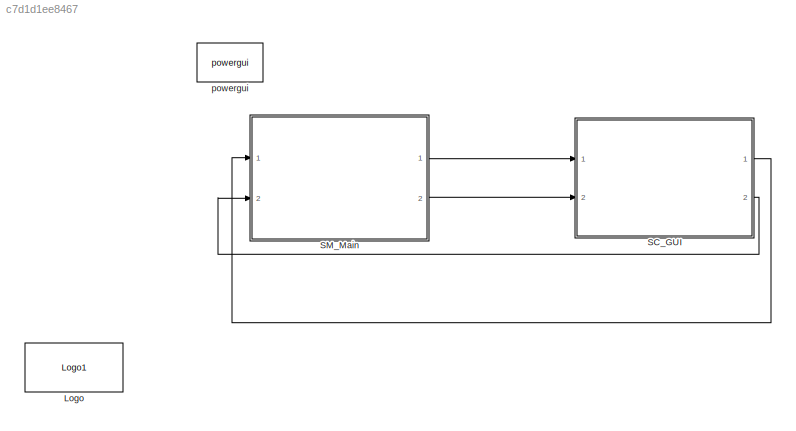
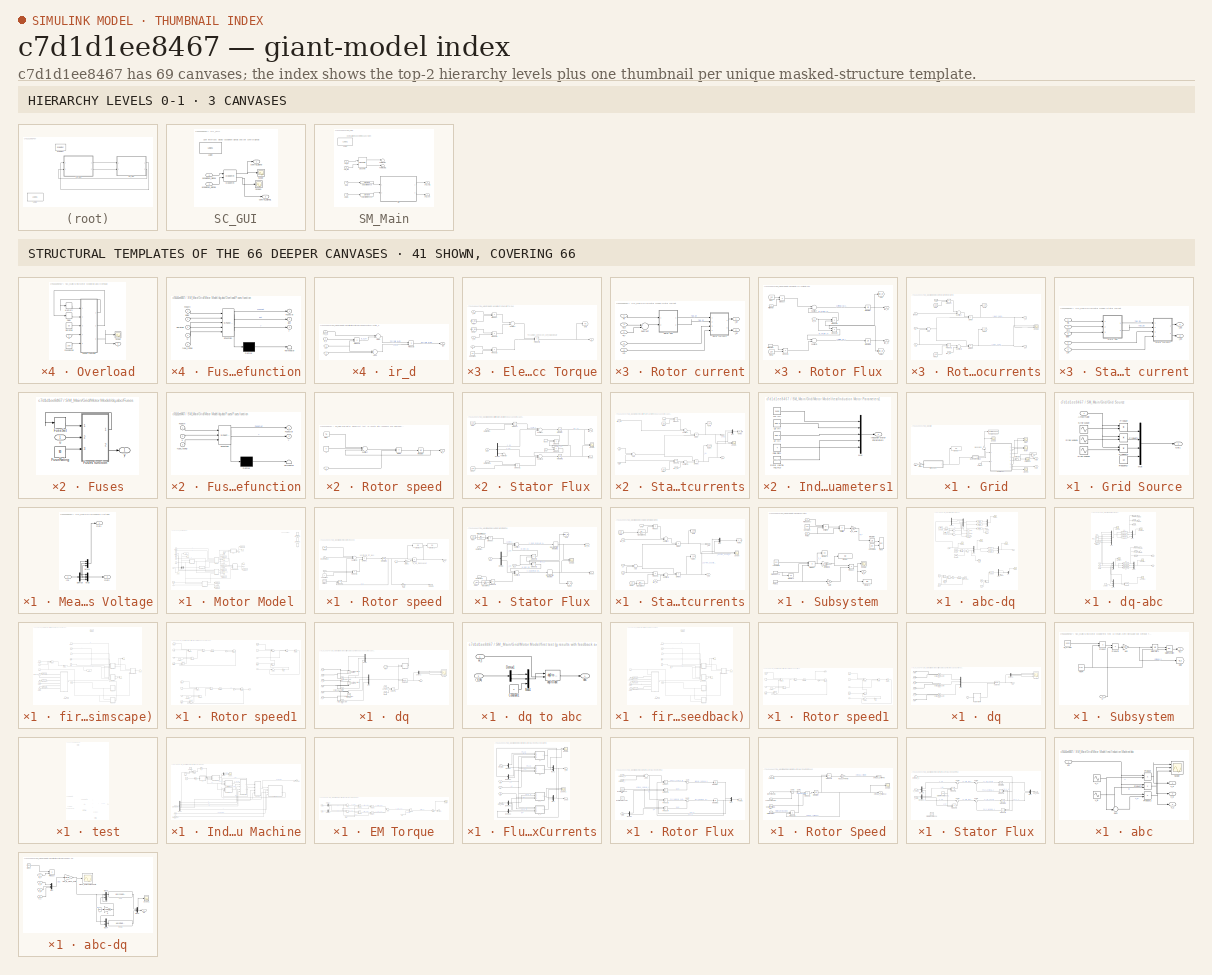
[diagram: thumbnail index - top-2 hierarchy levels (3 canvases) + 41 structural-template representatives of the remaining 66 canvases]
MODEL slx_c7d1d1ee8467
KIND model
CONFIG AbsTol = auto
CONFIG EnableMultiTasking = off
CONFIG FixedStep = 1e-5
CONFIG MaxStep = auto
CONFIG MinStep = auto
CONFIG RelTol = 1e-3
CONFIG SampleTimeConstraint = Unconstrained
CONFIG Solver = ode4
CONFIG SolverName = ode4
CONFIG StartTime = 0
CONFIG StopTime = 6
BLOCK [Reference] Logo  REF=opal_lib/Logo1
  Ports = []
  SourceBlock = opal_lib/Logo1
  SourceType = Opal-RT logo
BLOCK [SubSystem] SC_GUI
  Ports = [2, 2]
  RequestExecContextInheritance = off
  Variant = off
BLOCK [Reference] SC_GUI/Logo  REF=opal_lib/Logo1
  Ports = []
  SourceBlock = opal_lib/Logo1
  SourceType = Opal-RT logo
BLOCK [Reference] SC_GUI/OpComm  REF=rtlab/OpComm
  Ports = [2, 2]
  SourceBlock = rtlab/OpComm
  SourceProductName = RT-LAB
  SourceType = RT-LAB OpComm
BLOCK [Scope] SC_GUI/Scope
  NumInputPorts = 1
  Ports = [1]
  ScopeSpecificationString = Simulink.scopes.TimeScopeBlockCfg('CurrentConfiguration', extmgr.ConfigurationSet(extmgr.Configuration('Core','General UI',true,'FigureColor',[0.156862745098039 0.156862745098039 0.156862745098039]),extmgr.Configuration('Core','Source UI',true),extmgr.Configuration('Sources','WiredSimulink',true,'DataLoggingVariableName','referenceAndPlant','DataLoggingSaveFormat','StructureWithTime','DataLoggingL...<+2891ch>
  Tag = op_tm_save_it
BLOCK [Scope] SC_GUI/Scope1
  NumInputPorts = 1
  Ports = [1]
  ScopeSpecificationString = Simulink.scopes.TimeScopeBlockCfg('CurrentConfiguration', extmgr.ConfigurationSet(extmgr.Configuration('Core','General UI',true,'FigureColor',[0.156862745098039 0.156862745098039 0.156862745098039]),extmgr.Configuration('Core','Source UI',true),extmgr.Configuration('Sources','WiredSimulink',true,'DataLoggingVariableName','referenceAndPlant1','DataLoggingSaveFormat','StructureWithTime','DataLogging...<+2832ch>
  Tag = op_tm_save_it
BLOCK [Inport] SC_GUI/acquisition_signal
  IconDisplay = Port number
BLOCK [Inport] SC_GUI/acquisition_signal1
  IconDisplay = Port number
  Port = 2
BLOCK [Outport] SC_GUI/control_signal
  IconDisplay = Port number
BLOCK [Outport] SC_GUI/control_signal1
  IconDisplay = Port number
  Port = 2
BLOCK [SubSystem] SM_Main
  Ports = [2, 2]
  RequestExecContextInheritance = off
  Variant = off
BLOCK [SubSystem] SM_Main/Grid
  Ports = [2, 2]
  RequestExecContextInheritance = off
  Variant = off
BLOCK [Display] SM_Main/Grid/Display
  Decimation = 1
  Ports = [1]
BLOCK [Scope] SM_Main/Grid/EM torque
  NumInputPorts = 1
  Ports = [1]
  ScopeSpecificationString = Simulink.scopes.TimeScopeBlockCfg('CurrentConfiguration', extmgr.ConfigurationSet(extmgr.Configuration('Core','General UI',true,'FigureColor',[0.156862745098039 0.156862745098039 0.156862745098039]),extmgr.Configuration('Core','Source UI',true),extmgr.Configuration('Sources','WiredSimulink',true,'DataLoggingVariableName','ScopeData4','DataLoggingSaveFormat','StructureWithTime','DataLoggingDecimati...<+2806ch>
BLOCK [Gain] SM_Main/Grid/Gain1
  Gain = sqrt(2/3)
  OutDataTypeStr = Inherit: Inherit via internal rule
  ParamDataTypeStr = Inherit: Inherit via internal rule
  SaturateOnIntegerOverflow = off
BLOCK [SubSystem] SM_Main/Grid/Grid Source
  Ports = [1, 1]
  RequestExecContextInheritance = off
  Variant = off
BLOCK [Inport] SM_Main/Grid/Grid Source/Amplitude
  IconDisplay = Port number
BLOCK [Constant] SM_Main/Grid/Grid Source/Frequency
  Value = 60
BLOCK [Mux] SM_Main/Grid/Grid Source/Mux
  DisplayOption = bar
  Ports = [4, 1]
BLOCK [Outport] SM_Main/Grid/Grid Source/Out1
  IconDisplay = Port number
BLOCK [Product] SM_Main/Grid/Grid Source/Product
  InputSameDT = off
  OutDataTypeStr = Inherit: Inherit via internal rule
  Ports = [2, 1]
  RndMeth = Floor
  SaturateOnIntegerOverflow = off
BLOCK [Product] SM_Main/Grid/Grid Source/Product1
  InputSameDT = off
  OutDataTypeStr = Inherit: Inherit via internal rule
  Ports = [2, 1]
  RndMeth = Floor
  SaturateOnIntegerOverflow = off
BLOCK [Product] SM_Main/Grid/Grid Source/Product2
  InputSameDT = off
  OutDataTypeStr = Inherit: Inherit via internal rule
  Ports = [2, 1]
  RndMeth = Floor
  SaturateOnIntegerOverflow = off
BLOCK [Sin] SM_Main/Grid/Grid Source/Sine Wave
  Frequency = 2*pi*60
  Ports = [0, 1]
  SampleTime = 0
BLOCK [Sin] SM_Main/Grid/Grid Source/Sine Wave1
  Frequency = 2*pi*60
  Phase = -2*pi/3
  Ports = [0, 1]
  SampleTime = 0
BLOCK [Sin] SM_Main/Grid/Grid Source/Sine Wave2
  Frequency = 2*pi*60
  Phase = 2*pi/3
  Ports = [0, 1]
  SampleTime = 0
BLOCK [Inport] SM_Main/Grid/GridV
  IconDisplay = Port number
BLOCK [SubSystem] SM_Main/Grid/Measure Voltage
  Ports = [1, 2]
  RequestExecContextInheritance = off
  Variant = off
BLOCK [Demux] SM_Main/Grid/Measure Voltage/Demux
  DisplayOption = bar
  Ports = [1, 4]
BLOCK [Inport] SM_Main/Grid/Measure Voltage/In1
  IconDisplay = Port number
BLOCK [Mux] SM_Main/Grid/Measure Voltage/Mux
  DisplayOption = bar
  Ports = [4, 1]
BLOCK [Mux] SM_Main/Grid/Measure Voltage/Mux1
  DisplayOption = bar
  Inputs = 3
  Ports = [3, 1]
BLOCK [Outport] SM_Main/Grid/Measure Voltage/Out1
  IconDisplay = Port number
BLOCK [Outport] SM_Main/Grid/Measure Voltage/Out2
  IconDisplay = Port number
  Port = 2
BLOCK [Gain] SM_Main/Grid/MeasureV
  OutDataTypeStr = Inherit: Inherit via internal rule
  ParamDataTypeStr = Inherit: Inherit via internal rule
  SaturateOnIntegerOverflow = off
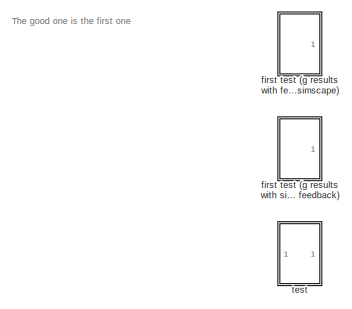
[diagram: SM_Main/Grid/Motor Model - part 1/2, top right region]
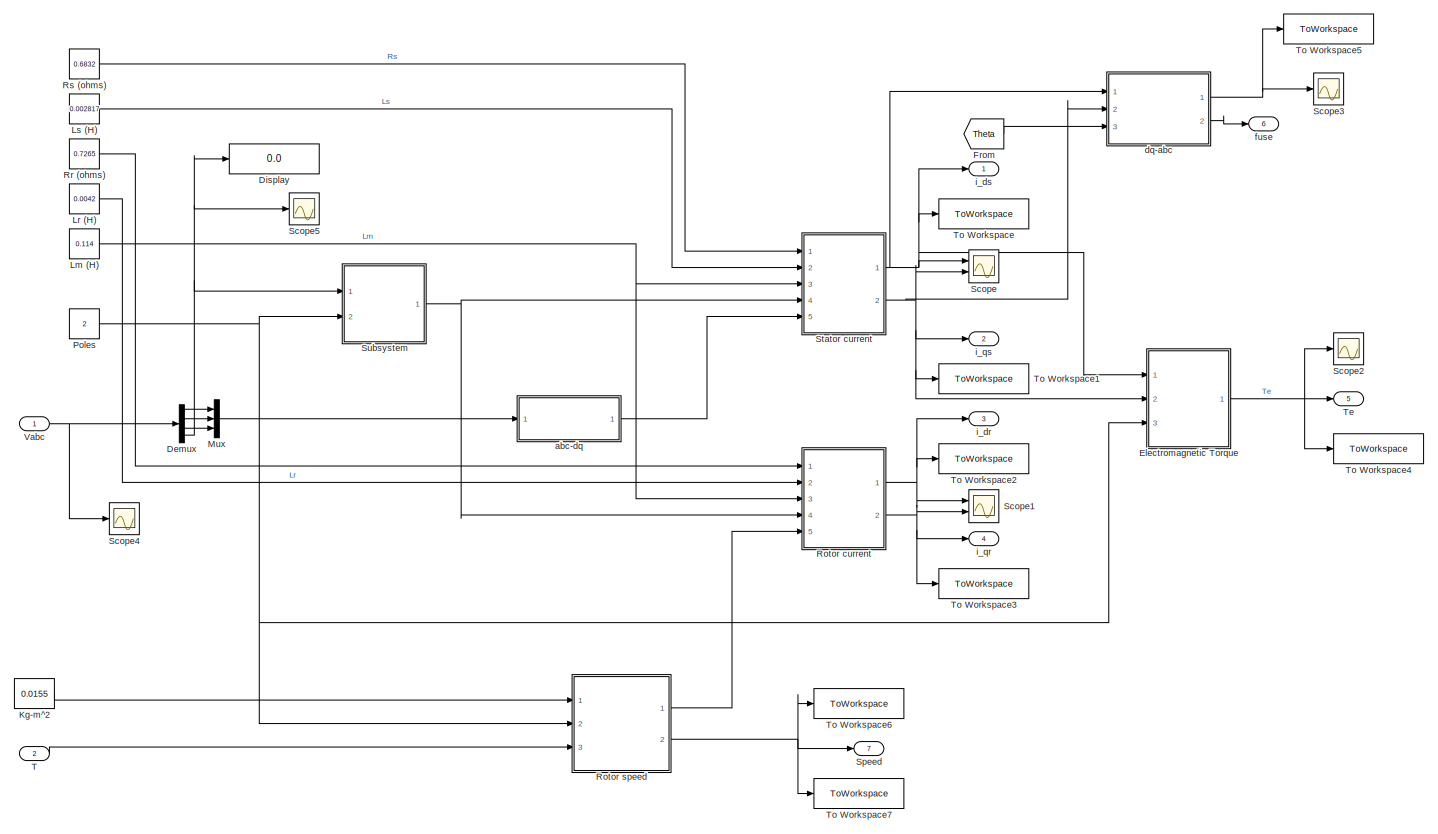
[diagram: SM_Main/Grid/Motor Model - part 2/2, left side, full height]
BLOCK [SubSystem] SM_Main/Grid/Motor Model
  Ports = [2, 7]
  RequestExecContextInheritance = off
  Variant = off
BLOCK [Demux] SM_Main/Grid/Motor Model/Demux
  DisplayOption = bar
  Ports = [1, 4]
BLOCK [Display] SM_Main/Grid/Motor Model/Display
  Decimation = 1
  Ports = [1]
BLOCK [SubSystem] SM_Main/Grid/Motor Model/Electromagnetic Torque
  Ports = [3, 1]
  RequestExecContextInheritance = off
  Variant = off
BLOCK [Constant] SM_Main/Grid/Motor Model/Electromagnetic Torque/Constant
  Value = 3/4
BLOCK [From] SM_Main/Grid/Motor Model/Electromagnetic Torque/From
  GotoTag = flux_ds
  TagVisibility = global
BLOCK [From] SM_Main/Grid/Motor Model/Electromagnetic Torque/From1
  GotoTag = flux_qs
  TagVisibility = global
BLOCK [Goto] SM_Main/Grid/Motor Model/Electromagnetic Torque/Goto
  GotoTag = Te
  TagVisibility = global
BLOCK [Inport] SM_Main/Grid/Motor Model/Electromagnetic Torque/P
  IconDisplay = Port number
  Port = 3
BLOCK [Product] SM_Main/Grid/Motor Model/Electromagnetic Torque/Product
  InputSameDT = off
  OutDataTypeStr = Inherit: Inherit via internal rule
  Ports = [2, 1]
  RndMeth = Floor
  SaturateOnIntegerOverflow = off
BLOCK [Product] SM_Main/Grid/Motor Model/Electromagnetic Torque/Product1
  InputSameDT = off
  OutDataTypeStr = Inherit: Inherit via internal rule
  Ports = [2, 1]
  RndMeth = Floor
  SaturateOnIntegerOverflow = off
BLOCK [Product] SM_Main/Grid/Motor Model/Electromagnetic Torque/Product2
  InputSameDT = off
  OutDataTypeStr = Inherit: Inherit via internal rule
  Ports = [2, 1]
  RndMeth = Floor
  SaturateOnIntegerOverflow = off
BLOCK [Product] SM_Main/Grid/Motor Model/Electromagnetic Torque/Product3
  InputSameDT = off
  OutDataTypeStr = Inherit: Inherit via internal rule
  Ports = [2, 1]
  RndMeth = Floor
  SaturateOnIntegerOverflow = off
BLOCK [Sum] SM_Main/Grid/Motor Model/Electromagnetic Torque/Subtract
  InputSameDT = off
  Inputs = +-
  OutDataTypeStr = Inherit: Inherit via internal rule
  Ports = [2, 1]
  SaturateOnIntegerOverflow = off
BLOCK [Outport] SM_Main/Grid/Motor Model/Electromagnetic Torque/Te
  IconDisplay = Port number
BLOCK [Inport] SM_Main/Grid/Motor Model/Electromagnetic Torque/i_ds
  IconDisplay = Port number
BLOCK [Inport] SM_Main/Grid/Motor Model/Electromagnetic Torque/i_qs
  IconDisplay = Port number
  Port = 2
BLOCK [From] SM_Main/Grid/Motor Model/From
  GotoTag = Theta
  TagVisibility = global
BLOCK [Constant] SM_Main/Grid/Motor Model/Kg-m^2
  Value = 0.0155
BLOCK [Constant] SM_Main/Grid/Motor Model/Lm (H)
  Value = 0.114
BLOCK [Constant] SM_Main/Grid/Motor Model/Lr (H)
  Value = 0.0042
BLOCK [Constant] SM_Main/Grid/Motor Model/Ls (H)
  Value = 0.002817
BLOCK [Mux] SM_Main/Grid/Motor Model/Mux
  DisplayOption = bar
  Inputs = 3
  Ports = [3, 1]
BLOCK [Constant] SM_Main/Grid/Motor Model/Poles
  Value = 2
BLOCK [SubSystem] SM_Main/Grid/Motor Model/Rotor current
  Ports = [5, 2]
  RequestExecContextInheritance = off
  Variant = off
BLOCK [Inport] SM_Main/Grid/Motor Model/Rotor current/Lm
  IconDisplay = Port number
  Port = 3
BLOCK [Inport] SM_Main/Grid/Motor Model/Rotor current/Lr
  IconDisplay = Port number
  Port = 2
BLOCK [SubSystem] SM_Main/Grid/Motor Model/Rotor current/Rotor Flux
  Ports = [2, 2]
  RequestExecContextInheritance = off
  Variant = off
BLOCK [From] SM_Main/Grid/Motor Model/Rotor current/Rotor Flux/From
  GotoTag = i_dr
  TagVisibility = global
BLOCK [From] SM_Main/Grid/Motor Model/Rotor current/Rotor Flux/From1
  GotoTag = i_qr
  TagVisibility = global
BLOCK [Goto] SM_Main/Grid/Motor Model/Rotor current/Rotor Flux/Goto
  GotoTag = flux_dr
  TagVisibility = global
BLOCK [Goto] SM_Main/Grid/Motor Model/Rotor current/Rotor Flux/Goto1
  GotoTag = flux_qr
  TagVisibility = global
BLOCK [Integrator] SM_Main/Grid/Motor Model/Rotor current/Rotor Flux/Integrator
  Ports = [1, 1]
BLOCK [Integrator] SM_Main/Grid/Motor Model/Rotor current/Rotor Flux/Integrator1
  Ports = [1, 1]
BLOCK [Inport] SM_Main/Grid/Motor Model/Rotor current/Rotor Flux/Rr (Ohms)
  IconDisplay = Port number
BLOCK [InportShadow] SM_Main/Grid/Motor Model/Rotor current/Rotor Flux/Rr (Ohms)1
  IconDisplay = Port number
BLOCK [Sum] SM_Main/Grid/Motor Model/Rotor current/Rotor Flux/Subtract
  InputSameDT = off
  Inputs = -+
  OutDataTypeStr = Inherit: Inherit via internal rule
  Ports = [2, 1]
  SaturateOnIntegerOverflow = off
BLOCK [Sum] SM_Main/Grid/Motor Model/Rotor current/Rotor Flux/Subtract1
  InputSameDT = off
  Inputs = --
  OutDataTypeStr = Inherit: Inherit via internal rule
  Ports = [2, 1]
  SaturateOnIntegerOverflow = off
BLOCK [Outport] SM_Main/Grid/Motor Model/Rotor current/Rotor Flux/flux_dr
  IconDisplay = Port number
BLOCK [Outport] SM_Main/Grid/Motor Model/Rotor current/Rotor Flux/flux_qr
  IconDisplay = Port number
  Port = 2
BLOCK [Product] SM_Main/Grid/Motor Model/Rotor current/Rotor Flux/product
  InputSameDT = off
  Inputs = **
  OutDataTypeStr = Inherit: Inherit via internal rule
  Ports = [2, 1]
  RndMeth = Floor
  SaturateOnIntegerOverflow = off
BLOCK [Product] SM_Main/Grid/Motor Model/Rotor current/Rotor Flux/product1
  InputSameDT = off
  Inputs = **
  OutDataTypeStr = Inherit: Inherit via internal rule
  Ports = [2, 1]
  RndMeth = Floor
  SaturateOnIntegerOverflow = off
BLOCK [Product] SM_Main/Grid/Motor Model/Rotor current/Rotor Flux/product2
  InputSameDT = off
  Inputs = **
  OutDataTypeStr = Inherit: Inherit via internal rule
  Ports = [2, 1]
  RndMeth = Floor
  SaturateOnIntegerOverflow = off
BLOCK [Product] SM_Main/Grid/Motor Model/Rotor current/Rotor Flux/product3
  InputSameDT = off
  Inputs = **
  OutDataTypeStr = Inherit: Inherit via internal rule
  Ports = [2, 1]
  RndMeth = Floor
  SaturateOnIntegerOverflow = off
BLOCK [Inport] SM_Main/Grid/Motor Model/Rotor current/Rotor Flux/w_s1
  IconDisplay = Port number
  Port = 2
BLOCK [SubSystem] SM_Main/Grid/Motor Model/Rotor current/Rotor currents
  Ports = [4, 2]
  RequestExecContextInheritance = off
  Variant = off
BLOCK [Sum] SM_Main/Grid/Motor Model/Rotor current/Rotor currents/Add
  InputSameDT = off
  OutDataTypeStr = Inherit: Inherit via internal rule
  Ports = [2, 1]
  SaturateOnIntegerOverflow = off
BLOCK [Product] SM_Main/Grid/Motor Model/Rotor current/Rotor currents/Divide
  InputSameDT = off
  Inputs = */
  OutDataTypeStr = Inherit: Inherit via internal rule
  Ports = [2, 1]
  RndMeth = Floor
  SaturateOnIntegerOverflow = off
BLOCK [Product] SM_Main/Grid/Motor Model/Rotor current/Rotor currents/Divide1
  InputSameDT = off
  Inputs = /*
  OutDataTypeStr = Inherit: Inherit via internal rule
  Ports = [2, 1]
  RndMeth = Floor
  SaturateOnIntegerOverflow = off
BLOCK [From] SM_Main/Grid/Motor Model/Rotor current/Rotor currents/From
  GotoTag = i_ds
  TagVisibility = global
BLOCK [From] SM_Main/Grid/Motor Model/Rotor current/Rotor currents/From1
  GotoTag = i_qs
  TagVisibility = global
BLOCK [Goto] SM_Main/Grid/Motor Model/Rotor current/Rotor currents/Goto
  GotoTag = i_dr
  TagVisibility = global
BLOCK [Goto] SM_Main/Grid/Motor Model/Rotor current/Rotor currents/Goto1
  GotoTag = i_qr
  TagVisibility = global
BLOCK [Inport] SM_Main/Grid/Motor Model/Rotor current/Rotor currents/Lm
  IconDisplay = Port number
  Port = 4
BLOCK [InportShadow] SM_Main/Grid/Motor Model/Rotor current/Rotor currents/Lm1
  IconDisplay = Port number
  Port = 4
BLOCK [Inport] SM_Main/Grid/Motor Model/Rotor current/Rotor currents/Lr
  IconDisplay = Port number
  Port = 3
BLOCK [Product] SM_Main/Grid/Motor Model/Rotor current/Rotor currents/Product
  InputSameDT = off
  OutDataTypeStr = Inherit: Inherit via internal rule
  Ports = [2, 1]
  RndMeth = Floor
  SaturateOnIntegerOverflow = off
BLOCK [Product] SM_Main/Grid/Motor Model/Rotor current/Rotor currents/Product1
  InputSameDT = off
  OutDataTypeStr = Inherit: Inherit via internal rule
  Ports = [2, 1]
  RndMeth = Floor
  SaturateOnIntegerOverflow = off
BLOCK [Scope] SM_Main/Grid/Motor Model/Rotor current/Rotor currents/Scope
  NumInputPorts = 2
  Ports = [2]
  ScopeSpecificationString = Simulink.scopes.TimeScopeBlockCfg('CurrentConfiguration', extmgr.ConfigurationSet(extmgr.Configuration('Core','General UI',true),extmgr.Configuration('Core','Source UI',true),extmgr.Configuration('Sources','WiredSimulink',true,'DataLoggingVariableName','ScopeData1'),extmgr.Configuration('Visuals','Time Domain',true,'SerializedDisplays',{struct('MinYLimReal','-42.24583','MaxYLimReal','20.29249','YL...<+1465ch>
BLOCK [Sum] SM_Main/Grid/Motor Model/Rotor current/Rotor currents/Subtract
  InputSameDT = off
  Inputs = -+
  OutDataTypeStr = Inherit: Inherit via internal rule
  Ports = [2, 1]
  SaturateOnIntegerOverflow = off
BLOCK [Sum] SM_Main/Grid/Motor Model/Rotor current/Rotor currents/Subtract1
  InputSameDT = off
  Inputs = -+
  OutDataTypeStr = Inherit: Inherit via internal rule
  Ports = [2, 1]
  SaturateOnIntegerOverflow = off
BLOCK [Inport] SM_Main/Grid/Motor Model/Rotor current/Rotor currents/flus_qr
  IconDisplay = Port number
  Port = 2
BLOCK [Inport] SM_Main/Grid/Motor Model/Rotor current/Rotor currents/flux_dr
  IconDisplay = Port number
BLOCK [Outport] SM_Main/Grid/Motor Model/Rotor current/Rotor currents/i_dr
  IconDisplay = Port number
BLOCK [Outport] SM_Main/Grid/Motor Model/Rotor current/Rotor currents/i_qr
  IconDisplay = Port number
  Port = 2
BLOCK [Inport] SM_Main/Grid/Motor Model/Rotor current/Rr
  IconDisplay = Port number
BLOCK [Sum] SM_Main/Grid/Motor Model/Rotor current/Subtract
  InputSameDT = off
  Inputs = +-
  OutDataTypeStr = Inherit: Inherit via internal rule
  Ports = [2, 1]
  SaturateOnIntegerOverflow = off
BLOCK [Outport] SM_Main/Grid/Motor Model/Rotor current/i_dr
  IconDisplay = Port number
BLOCK [Outport] SM_Main/Grid/Motor Model/Rotor current/i_qr
  IconDisplay = Port number
  Port = 2
BLOCK [Inport] SM_Main/Grid/Motor Model/Rotor current/w_r
  IconDisplay = Port number
  Port = 5
BLOCK [Inport] SM_Main/Grid/Motor Model/Rotor current/w_s
  IconDisplay = Port number
  Port = 4
BLOCK [SubSystem] SM_Main/Grid/Motor Model/Rotor speed
  Ports = [3, 2]
  RequestExecContextInheritance = off
  Variant = off
BLOCK [Display] SM_Main/Grid/Motor Model/Rotor speed/Display
  Decimation = 1
  Ports = [1]
BLOCK [Display] SM_Main/Grid/Motor Model/Rotor speed/Display1
  Decimation = 1
  Ports = [1]
BLOCK [Product] SM_Main/Grid/Motor Model/Rotor speed/Divide1
  InputSameDT = off
  Inputs = */
  OutDataTypeStr = Inherit: Inherit via internal rule
  Ports = [2, 1]
  RndMeth = Floor
  SaturateOnIntegerOverflow = off
BLOCK [Product] SM_Main/Grid/Motor Model/Rotor speed/Divide2
  InputSameDT = off
  Inputs = **
  OutDataTypeStr = Inherit: Inherit via internal rule
  Ports = [2, 1]
  RndMeth = Floor
  SaturateOnIntegerOverflow = off
BLOCK [Constant] SM_Main/Grid/Motor Model/Rotor speed/Friction1
  Value = 0.00281
BLOCK [From] SM_Main/Grid/Motor Model/Rotor speed/From1
  GotoTag = Te
  TagVisibility = global
BLOCK [Gain] SM_Main/Grid/Motor Model/Rotor speed/Gain
  Gain = 60/2/pi
  OutDataTypeStr = Inherit: Inherit via internal rule
  ParamDataTypeStr = Inherit: Inherit via internal rule
  SaturateOnIntegerOverflow = off
BLOCK [Gain] SM_Main/Grid/Motor Model/Rotor speed/Gain1
  Gain = 0.5
  OutDataTypeStr = Inherit: Inherit via internal rule
  ParamDataTypeStr = Inherit: Inherit via internal rule
  SaturateOnIntegerOverflow = off
BLOCK [Inport] SM_Main/Grid/Motor Model/Rotor speed/Input Torque
  IconDisplay = Port number
  Port = 3
BLOCK [Integrator] SM_Main/Grid/Motor Model/Rotor speed/Integrator1
  Ports = [1, 1]
BLOCK [Inport] SM_Main/Grid/Motor Model/Rotor speed/J
  IconDisplay = Port number
BLOCK [Inport] SM_Main/Grid/Motor Model/Rotor speed/P
  IconDisplay = Port number
  Port = 2
BLOCK [Product] SM_Main/Grid/Motor Model/Rotor speed/Product1
  InputSameDT = off
  OutDataTypeStr = Inherit: Inherit via internal rule
  Ports = [2, 1]
  RndMeth = Floor
  SaturateOnIntegerOverflow = off
BLOCK [Product] SM_Main/Grid/Motor Model/Rotor speed/Product3
  InputSameDT = off
  OutDataTypeStr = Inherit: Inherit via internal rule
  Ports = [2, 1]
  RndMeth = Floor
  SaturateOnIntegerOverflow = off
BLOCK [Outport] SM_Main/Grid/Motor Model/Rotor speed/Speed
  IconDisplay = Port number
  Port = 2
BLOCK [Sum] SM_Main/Grid/Motor Model/Rotor speed/Subtract2
  InputSameDT = off
  Inputs = +--
  OutDataTypeStr = Inherit: Inherit via internal rule
  Ports = [3, 1]
  SaturateOnIntegerOverflow = off
BLOCK [Constant] SM_Main/Grid/Motor Model/Rotor speed/constant
  Value = 2
BLOCK [Outport] SM_Main/Grid/Motor Model/Rotor speed/w_r
  IconDisplay = Port number
BLOCK [Constant] SM_Main/Grid/Motor Model/Rr (ohms)
  Value = 0.7265
BLOCK [Constant] SM_Main/Grid/Motor Model/Rs (ohms)
  Value = 0.6832
BLOCK [Scope] SM_Main/Grid/Motor Model/Scope
  NumInputPorts = 2
  Ports = [2]
  ScopeSpecificationString = Simulink.scopes.TimeScopeBlockCfg('CurrentConfiguration', extmgr.ConfigurationSet(extmgr.Configuration('Core','General UI',true),extmgr.Configuration('Core','Source UI',true),extmgr.Configuration('Sources','WiredSimulink',true,'DataLoggingVariableName','ScopeData1'),extmgr.Configuration('Visuals','Time Domain',true,'SerializedDisplays',{struct('MinYLimReal','-63.56121','MaxYLimReal','68.96291','YL...<+1502ch>
BLOCK [Scope] SM_Main/Grid/Motor Model/Scope1
  NumInputPorts = 2
  Ports = [2]
  ScopeSpecificationString = Simulink.scopes.TimeScopeBlockCfg('CurrentConfiguration', extmgr.ConfigurationSet(extmgr.Configuration('Core','General UI',true),extmgr.Configuration('Core','Source UI',true),extmgr.Configuration('Sources','WiredSimulink',true,'DataLoggingVariableName','ScopeData2'),extmgr.Configuration('Visuals','Time Domain',true,'SerializedDisplays',{struct('MinYLimReal','-56.82872','MaxYLimReal','25.94685','YL...<+1503ch>
BLOCK [Scope] SM_Main/Grid/Motor Model/Scope2
  NumInputPorts = 1
  Ports = [1]
  ScopeSpecificationString = Simulink.scopes.TimeScopeBlockCfg('CurrentConfiguration', extmgr.ConfigurationSet(extmgr.Configuration('Core','General UI',true),extmgr.Configuration('Core','Source UI',true),extmgr.Configuration('Sources','WiredSimulink',true,'DataLoggingVariableName','ScopeData3'),extmgr.Configuration('Visuals','Time Domain',true,'SerializedDisplays',{struct('MinYLimReal','-24.71754','MaxYLimReal','59.79012','YL...<+1436ch>
BLOCK [Scope] SM_Main/Grid/Motor Model/Scope3
  NumInputPorts = 1
  Ports = [1]
  ScopeSpecificationString = Simulink.scopes.TimeScopeBlockCfg('CurrentConfiguration', extmgr.ConfigurationSet(extmgr.Configuration('Core','General UI',true),extmgr.Configuration('Core','Source UI',true),extmgr.Configuration('Sources','WiredSimulink',true,'DataLoggingVariableName','ScopeData2'),extmgr.Configuration('Visuals','Time Domain',true,'SerializedDisplays',{struct('MinYLimReal','-47.39856','MaxYLimReal','44.03022','YL...<+1539ch>
BLOCK [Scope] SM_Main/Grid/Motor Model/Scope4
  NumInputPorts = 1
  Ports = [1]
  ScopeSpecificationString = Simulink.scopes.TimeScopeBlockCfg('CurrentConfiguration', extmgr.ConfigurationSet(extmgr.Configuration('Core','General UI',true),extmgr.Configuration('Core','Source UI',true),extmgr.Configuration('Sources','WiredSimulink',true,'DataLoggingVariableName','ScopeData1'),extmgr.Configuration('Visuals','Time Domain',true,'SerializedDisplays',{struct('MinYLimReal','-240.83342','MaxYLimReal','224.27829','...<+1452ch>
BLOCK [Scope] SM_Main/Grid/Motor Model/Scope5
  NumInputPorts = 1
  Ports = [1]
  ScopeSpecificationString = Simulink.scopes.TimeScopeBlockCfg('CurrentConfiguration', extmgr.ConfigurationSet(extmgr.Configuration('Core','General UI',true),extmgr.Configuration('Core','Source UI',true),extmgr.Configuration('Sources','WiredSimulink',true,'DataLoggingVariableName','ScopeData3'),extmgr.Configuration('Visuals','Time Domain',true,'SerializedDisplays',{struct('MinYLimReal','46.98083','MaxYLimReal','56.78765','YLa...<+1416ch>
BLOCK [Outport] SM_Main/Grid/Motor Model/Speed
  IconDisplay = Port number
  Port = 7
BLOCK [SubSystem] SM_Main/Grid/Motor Model/Stator current
  Ports = [5, 2]
  RequestExecContextInheritance = off
  Variant = off
BLOCK [Inport] SM_Main/Grid/Motor Model/Stator current/Lm
  IconDisplay = Port number
  Port = 3
BLOCK [Inport] SM_Main/Grid/Motor Model/Stator current/Ls
  IconDisplay = Port number
  Port = 2
BLOCK [Inport] SM_Main/Grid/Motor Model/Stator current/Rs
  IconDisplay = Port number
BLOCK [SubSystem] SM_Main/Grid/Motor Model/Stator current/Stator Flux
  Ports = [3, 2]
  RequestExecContextInheritance = off
  Variant = off
BLOCK [Demux] SM_Main/Grid/Motor Model/Stator current/Stator Flux/Demux
  DisplayOption = bar
  Outputs = 2
  Ports = [1, 2]
BLOCK [DiscreteIntegrator] SM_Main/Grid/Motor Model/Stator current/Stator Flux/Discrete-Time Integrator
  ICPrevOutput = DiscIntNeverNeededParam
  ICPrevScaledInput = DiscIntNeverNeededParam
  InitialConditionSetting = State (most efficient)
  Ports = [1, 1]
  SampleTime = -1
BLOCK [DiscreteIntegrator] SM_Main/Grid/Motor Model/Stator current/Stator Flux/Discrete-Time Integrator1
  ICPrevOutput = DiscIntNeverNeededParam
  ICPrevScaledInput = DiscIntNeverNeededParam
  InitialConditionSetting = State (most efficient)
  Ports = [1, 1]
  SampleTime = -1
BLOCK [From] SM_Main/Grid/Motor Model/Stator current/Stator Flux/From
  GotoTag = i_ds
  TagVisibility = global
BLOCK [From] SM_Main/Grid/Motor Model/Stator current/Stator Flux/From1
  GotoTag = i_qs
  TagVisibility = global
BLOCK [Goto] SM_Main/Grid/Motor Model/Stator current/Stator Flux/Goto
  GotoTag = flux_ds
  TagVisibility = global
BLOCK [Goto] SM_Main/Grid/Motor Model/Stator current/Stator Flux/Goto1
  GotoTag = flux_qs
  TagVisibility = global
BLOCK [Inport] SM_Main/Grid/Motor Model/Stator current/Stator Flux/Rs (Ohms)
  IconDisplay = Port number
BLOCK [InportShadow] SM_Main/Grid/Motor Model/Stator current/Stator Flux/Rs (Ohms)1
  IconDisplay = Port number
BLOCK [Scope] SM_Main/Grid/Motor Model/Stator current/Stator Flux/Scope
  NumInputPorts = 2
  Ports = [2]
  ScopeSpecificationString = Simulink.scopes.TimeScopeBlockCfg('CurrentConfiguration', extmgr.ConfigurationSet(extmgr.Configuration('Core','General UI',true),extmgr.Configuration('Core','Source UI',true),extmgr.Configuration('Sources','WiredSimulink',true,'DataLoggingVariableName','ScopeData2'),extmgr.Configuration('Visuals','Time Domain',true,'SerializedDisplays',{struct('MinYLimReal','-439.80147','MaxYLimReal','431.65029','...<+1459ch>  <repeated x3 — deduplicated; at blocks: Scope>
BLOCK [Sum] SM_Main/Grid/Motor Model/Stator current/Stator Flux/Subtract
  InputSameDT = off
  Inputs = -++
  OutDataTypeStr = Inherit: Inherit via internal rule
  Ports = [3, 1]
  SaturateOnIntegerOverflow = off
BLOCK [Sum] SM_Main/Grid/Motor Model/Stator current/Stator Flux/Subtract1
  InputSameDT = off
  Inputs = -+-
  OutDataTypeStr = Inherit: Inherit via internal rule
  Ports = [3, 1]
  SaturateOnIntegerOverflow = off
BLOCK [TransferFcn] SM_Main/Grid/Motor Model/Stator current/Stator Flux/Transfer Fcn
  Denominator = [1 1]
BLOCK [TransferFcn] SM_Main/Grid/Motor Model/Stator current/Stator Flux/Transfer Fcn1
  Denominator = [1 1]
BLOCK [Inport] SM_Main/Grid/Motor Model/Stator current/Stator Flux/dq0
  IconDisplay = Port number
  Port = 3
BLOCK [Outport] SM_Main/Grid/Motor Model/Stator current/Stator Flux/flux_ds
  IconDisplay = Port number
BLOCK [Outport] SM_Main/Grid/Motor Model/Stator current/Stator Flux/flux_qs
  IconDisplay = Port number
  Port = 2
BLOCK [Product] SM_Main/Grid/Motor Model/Stator current/Stator Flux/product
  InputSameDT = off
  Inputs = **
  OutDataTypeStr = Inherit: Inherit via internal rule
  Ports = [2, 1]
  RndMeth = Floor
  SaturateOnIntegerOverflow = off
BLOCK [Product] SM_Main/Grid/Motor Model/Stator current/Stator Flux/product1
  InputSameDT = off
  Inputs = **
  OutDataTypeStr = Inherit: Inherit via internal rule
  Ports = [2, 1]
  RndMeth = Floor
  SaturateOnIntegerOverflow = off
BLOCK [Product] SM_Main/Grid/Motor Model/Stator current/Stator Flux/product2
  InputSameDT = off
  Inputs = **
  OutDataTypeStr = Inherit: Inherit via internal rule
  Ports = [2, 1]
  RndMeth = Floor
  SaturateOnIntegerOverflow = off
BLOCK [Product] SM_Main/Grid/Motor Model/Stator current/Stator Flux/product3
  InputSameDT = off
  Inputs = **
  OutDataTypeStr = Inherit: Inherit via internal rule
  Ports = [2, 1]
  RndMeth = Floor
  SaturateOnIntegerOverflow = off
BLOCK [Inport] SM_Main/Grid/Motor Model/Stator current/Stator Flux/w_s
  IconDisplay = Port number
  Port = 2
BLOCK [SubSystem] SM_Main/Grid/Motor Model/Stator current/Stator currents
  Ports = [4, 2]
  RequestExecContextInheritance = off
  Variant = off
BLOCK [Sum] SM_Main/Grid/Motor Model/Stator current/Stator currents/Add
  InputSameDT = off
  OutDataTypeStr = Inherit: Inherit via internal rule
  Ports = [2, 1]
  SaturateOnIntegerOverflow = off
BLOCK [Product] SM_Main/Grid/Motor Model/Stator current/Stator currents/Divide
  InputSameDT = off
  Inputs = */
  OutDataTypeStr = Inherit: Inherit via internal rule
  Ports = [2, 1]
  RndMeth = Floor
  SaturateOnIntegerOverflow = off
BLOCK [Product] SM_Main/Grid/Motor Model/Stator current/Stator currents/Divide1
  InputSameDT = off
  Inputs = /*
  OutDataTypeStr = Inherit: Inherit via internal rule
  Ports = [2, 1]
  RndMeth = Floor
  SaturateOnIntegerOverflow = off
BLOCK [From] SM_Main/Grid/Motor Model/Stator current/Stator currents/From
  GotoTag = i_dr
  TagVisibility = global
BLOCK [From] SM_Main/Grid/Motor Model/Stator current/Stator currents/From1
  GotoTag = i_qr
  TagVisibility = global
BLOCK [Goto] SM_Main/Grid/Motor Model/Stator current/Stator currents/Goto
  GotoTag = i_ds
  TagVisibility = global
BLOCK [Goto] SM_Main/Grid/Motor Model/Stator current/Stator currents/Goto1
  GotoTag = i_qs
  TagVisibility = global
BLOCK [Goto] SM_Main/Grid/Motor Model/Stator current/Stator currents/Goto2
  GotoTag = i_s_dq
  TagVisibility = global
BLOCK [Inport] SM_Main/Grid/Motor Model/Stator current/Stator currents/Lm
  IconDisplay = Port number
  Port = 4
BLOCK [InportShadow] SM_Main/Grid/Motor Model/Stator current/Stator currents/Lm1
  IconDisplay = Port number
  Port = 4
BLOCK [Inport] SM_Main/Grid/Motor Model/Stator current/Stator currents/Ls
  IconDisplay = Port number
  Port = 3
BLOCK [Mux] SM_Main/Grid/Motor Model/Stator current/Stator currents/Mux
  DisplayOption = bar
  Inputs = 2
  Ports = [2, 1]
BLOCK [Product] SM_Main/Grid/Motor Model/Stator current/Stator currents/Product
  InputSameDT = off
  OutDataTypeStr = Inherit: Inherit via internal rule
  Ports = [2, 1]
  RndMeth = Floor
  SaturateOnIntegerOverflow = off
BLOCK [Product] SM_Main/Grid/Motor Model/Stator current/Stator currents/Product1
  InputSameDT = off
  OutDataTypeStr = Inherit: Inherit via internal rule
  Ports = [2, 1]
  RndMeth = Floor
  SaturateOnIntegerOverflow = off
BLOCK [Scope] SM_Main/Grid/Motor Model/Stator current/Stator currents/Scope
  NumInputPorts = 2
  Ports = [2]
  ScopeSpecificationString = Simulink.scopes.TimeScopeBlockCfg('CurrentConfiguration', extmgr.ConfigurationSet(extmgr.Configuration('Core','General UI',true),extmgr.Configuration('Core','Source UI',true),extmgr.Configuration('Sources','WiredSimulink',true,'DataLoggingVariableName','ScopeData1'),extmgr.Configuration('Visuals','Time Domain',true,'SerializedDisplays',{struct('MinYLimReal','-439.80147','MaxYLimReal','431.65029','...<+1428ch>  <repeated x3 — deduplicated; at blocks: Scope>
BLOCK [Sum] SM_Main/Grid/Motor Model/Stator current/Stator currents/Subtract
  InputSameDT = off
  Inputs = -+
  OutDataTypeStr = Inherit: Inherit via internal rule
  Ports = [2, 1]
  SaturateOnIntegerOverflow = off
BLOCK [Sum] SM_Main/Grid/Motor Model/Stator current/Stator currents/Subtract1
  InputSameDT = off
  Inputs = -+
  OutDataTypeStr = Inherit: Inherit via internal rule
  Ports = [2, 1]
  SaturateOnIntegerOverflow = off
BLOCK [TransferFcn] SM_Main/Grid/Motor Model/Stator current/Stator currents/Transfer Fcn
  Denominator = [1 1]
BLOCK [TransferFcn] SM_Main/Grid/Motor Model/Stator current/Stator currents/Transfer Fcn1
  Denominator = [1 1]
BLOCK [Inport] SM_Main/Grid/Motor Model/Stator current/Stator currents/flus_ds
  IconDisplay = Port number
BLOCK [Inport] SM_Main/Grid/Motor Model/Stator current/Stator currents/flus_qs
  IconDisplay = Port number
  Port = 2
BLOCK [Outport] SM_Main/Grid/Motor Model/Stator current/Stator currents/i_ds
  IconDisplay = Port number
BLOCK [Outport] SM_Main/Grid/Motor Model/Stator current/Stator currents/i_qs
  IconDisplay = Port number
  Port = 2
BLOCK [Inport] SM_Main/Grid/Motor Model/Stator current/dq0
  IconDisplay = Port number
  Port = 5
BLOCK [Outport] SM_Main/Grid/Motor Model/Stator current/i_ds
  IconDisplay = Port number
BLOCK [Outport] SM_Main/Grid/Motor Model/Stator current/i_qs
  IconDisplay = Port number
  Port = 2
BLOCK [Inport] SM_Main/Grid/Motor Model/Stator current/w_s
  IconDisplay = Port number
  Port = 4
BLOCK [SubSystem] SM_Main/Grid/Motor Model/Subsystem
  Ports = [2, 1]
  RequestExecContextInheritance = off
  Variant = off
BLOCK [Constant] SM_Main/Grid/Motor Model/Subsystem/Constant
  Commented = on
  Value = 120
BLOCK [Constant] SM_Main/Grid/Motor Model/Subsystem/Constant1
  Commented = on
  Value = 2*pi
BLOCK [Display] SM_Main/Grid/Motor Model/Subsystem/Display
  Decimation = 1
  Ports = [1]
BLOCK [Display] SM_Main/Grid/Motor Model/Subsystem/Display1
  Decimation = 1
  Ports = [1]
BLOCK [Display] SM_Main/Grid/Motor Model/Subsystem/Display2
  Decimation = 1
  Ports = [1]
BLOCK [Display] SM_Main/Grid/Motor Model/Subsystem/Display3
  Decimation = 1
  Ports = [1]
BLOCK [Product] SM_Main/Grid/Motor Model/Subsystem/Divide2
  InputSameDT = off
  Inputs = **/
  OutDataTypeStr = Inherit: Inherit via internal rule
  Ports = [3, 1]
  RndMeth = Floor
  SaturateOnIntegerOverflow = off
BLOCK [Inport] SM_Main/Grid/Motor Model/Subsystem/Frequency
  IconDisplay = Port number
BLOCK [InportShadow] SM_Main/Grid/Motor Model/Subsystem/Frequency1
  IconDisplay = Port number
BLOCK [Gain] SM_Main/Grid/Motor Model/Subsystem/Gain
  Gain = 0.5
  OutDataTypeStr = Inherit: Inherit via internal rule
  ParamDataTypeStr = Inherit: Inherit via internal rule
  SaturateOnIntegerOverflow = off
BLOCK [Integrator] SM_Main/Grid/Motor Model/Subsystem/Integrator
  Commented = on
  Ports = [1, 1]
BLOCK [Inport] SM_Main/Grid/Motor Model/Subsystem/Poles
  IconDisplay = Port number
  Port = 2
BLOCK [InportShadow] SM_Main/Grid/Motor Model/Subsystem/Poles1
  IconDisplay = Port number
  Port = 2
BLOCK [Product] SM_Main/Grid/Motor Model/Subsystem/Product
  InputSameDT = off
  OutDataTypeStr = Inherit: Inherit via internal rule
  Ports = [2, 1]
  RndMeth = Floor
  SaturateOnIntegerOverflow = off
BLOCK [Math] SM_Main/Grid/Motor Model/Subsystem/Rem
  Commented = on
  Operator = rem
  Ports = [2, 1]
BLOCK [Scope] SM_Main/Grid/Motor Model/Subsystem/Scope
  NumInputPorts = 1
  Ports = [1]
  ScopeSpecificationString = Simulink.scopes.TimeScopeBlockCfg('CurrentConfiguration', extmgr.ConfigurationSet(extmgr.Configuration('Core','General UI',true),extmgr.Configuration('Core','Source UI',true),extmgr.Configuration('Sources','WiredSimulink',true,'DataLoggingVariableName','ScopeData1'),extmgr.Configuration('Visuals','Time Domain',true,'SerializedDisplays',{struct('MinYLimReal','352.69908','MaxYLimReal','353.81402','Y...<+1463ch>
BLOCK [Constant] SM_Main/Grid/Motor Model/Subsystem/constant1
  Value = 120
BLOCK [Product] SM_Main/Grid/Motor Model/Subsystem/multipliy
  Commented = on
  InputSameDT = off
  Inputs = **
  OutDataTypeStr = Inherit: Inherit via internal rule
  Ports = [2, 1]
  RndMeth = Floor
  SaturateOnIntegerOverflow = off
BLOCK [Product] SM_Main/Grid/Motor Model/Subsystem/ns (rpm)
  Commented = on
  InputSameDT = off
  Inputs = **/
  OutDataTypeStr = Inherit: Inherit via internal rule
  Ports = [3, 1]
  RndMeth = Floor
  SaturateOnIntegerOverflow = off
BLOCK [Gain] SM_Main/Grid/Motor Model/Subsystem/rpm to rad//s
  Gain = 2*pi/60
  OutDataTypeStr = Inherit: Inherit via internal rule
  ParamDataTypeStr = Inherit: Inherit via internal rule
  SaturateOnIntegerOverflow = off
BLOCK [Outport] SM_Main/Grid/Motor Model/Subsystem/w_s
  IconDisplay = Port number
BLOCK [Gain] SM_Main/Grid/Motor Model/Subsystem/w_s_gain
  Commented = on
  Gain = 2*pi/60
  OutDataTypeStr = Inherit: Inherit via internal rule
  ParamDataTypeStr = Inherit: Inherit via internal rule
  SaturateOnIntegerOverflow = off
BLOCK [Inport] SM_Main/Grid/Motor Model/T
  IconDisplay = Port number
  Port = 2
BLOCK [Outport] SM_Main/Grid/Motor Model/Te
  IconDisplay = Port number
  Port = 5
BLOCK [ToWorkspace] SM_Main/Grid/Motor Model/To Workspace
  FixptAsFi = on
  MaxDataPoints = inf
  Ports = [1]
  SampleTime = -1
  Save2DSignal = 3-D array (concatenate along third dimension)
  SaveFormat = Timeseries
  VariableName = i_ds_output
BLOCK [ToWorkspace] SM_Main/Grid/Motor Model/To Workspace1
  FixptAsFi = on
  MaxDataPoints = inf
  Ports = [1]
  SampleTime = -1
  Save2DSignal = 3-D array (concatenate along third dimension)
  SaveFormat = Timeseries
  VariableName = i_qs_output
BLOCK [ToWorkspace] SM_Main/Grid/Motor Model/To Workspace2
  FixptAsFi = on
  MaxDataPoints = inf
  Ports = [1]
  SampleTime = -1
  Save2DSignal = 3-D array (concatenate along third dimension)
  SaveFormat = Timeseries
  VariableName = i_dr_output
BLOCK [ToWorkspace] SM_Main/Grid/Motor Model/To Workspace3
  FixptAsFi = on
  MaxDataPoints = inf
  Ports = [1]
  SampleTime = -1
  Save2DSignal = 3-D array (concatenate along third dimension)
  SaveFormat = Timeseries
  VariableName = i_qr_output
BLOCK [ToWorkspace] SM_Main/Grid/Motor Model/To Workspace4
  FixptAsFi = on
  MaxDataPoints = inf
  Ports = [1]
  SampleTime = -1
  Save2DSignal = 3-D array (concatenate along third dimension)
  SaveFormat = Timeseries
  VariableName = TorqueOutput
BLOCK [ToWorkspace] SM_Main/Grid/Motor Model/To Workspace5
  FixptAsFi = on
  MaxDataPoints = inf
  Ports = [1]
  SampleTime = -1
  Save2DSignal = 3-D array (concatenate along third dimension)
  SaveFormat = Timeseries
  VariableName = CurrentInput
BLOCK [ToWorkspace] SM_Main/Grid/Motor Model/To Workspace6
  FixptAsFi = on
  MaxDataPoints = inf
  Ports = [1]
  SampleTime = -1
  Save2DSignal = 3-D array (concatenate along third dimension)
  SaveFormat = Timeseries
  VariableName = SpeedOutput
BLOCK [ToWorkspace] SM_Main/Grid/Motor Model/To Workspace7
  FixptAsFi = on
  MaxDataPoints = inf
  Ports = [1]
  SampleTime = -1
  Save2DSignal = 3-D array (concatenate along third dimension)
  SaveFormat = Timeseries
  VariableName = SpeedValues
BLOCK [Inport] SM_Main/Grid/Motor Model/Vabc
  IconDisplay = Port number
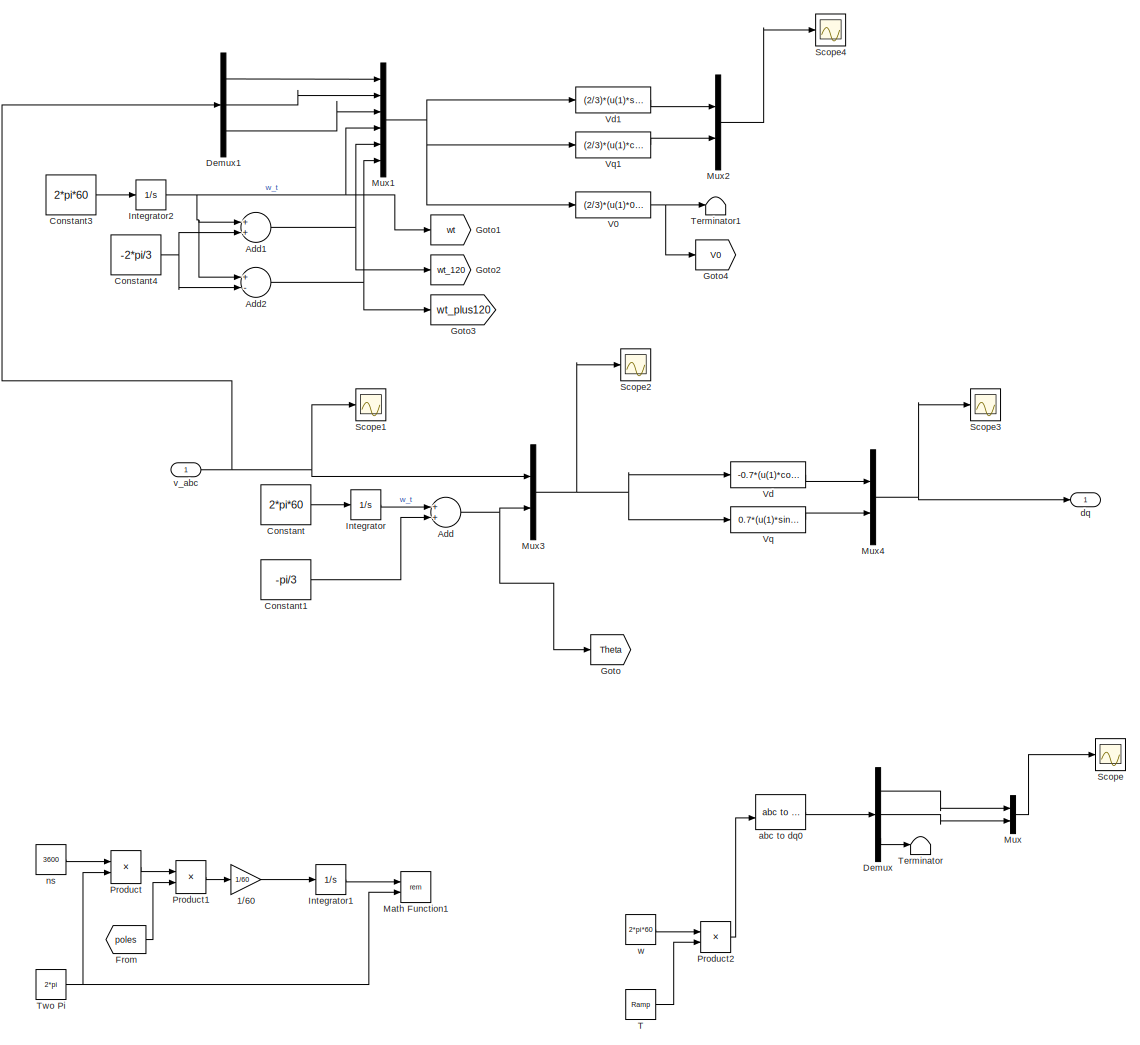
[diagram: SM_Main/Grid/Motor Model/abc-dq - part 1/1, most of the canvas]
BLOCK [SubSystem] SM_Main/Grid/Motor Model/abc-dq
  Ports = [1, 1]
  RequestExecContextInheritance = off
  Variant = off
BLOCK [Gain] SM_Main/Grid/Motor Model/abc-dq/1//60
  Commented = on
  Gain = 1/60
  OutDataTypeStr = Inherit: Inherit via internal rule
  ParamDataTypeStr = Inherit: Inherit via internal rule
  SaturateOnIntegerOverflow = off
BLOCK [Sum] SM_Main/Grid/Motor Model/abc-dq/Add
  InputSameDT = off
  OutDataTypeStr = Inherit: Inherit via internal rule
  Ports = [2, 1]
  SaturateOnIntegerOverflow = off
BLOCK [Sum] SM_Main/Grid/Motor Model/abc-dq/Add1
  Commented = on
  InputSameDT = off
  OutDataTypeStr = Inherit: Inherit via internal rule
  Ports = [2, 1]
  SaturateOnIntegerOverflow = off
BLOCK [Sum] SM_Main/Grid/Motor Model/abc-dq/Add2
  Commented = on
  InputSameDT = off
  Inputs = +-
  OutDataTypeStr = Inherit: Inherit via internal rule
  Ports = [2, 1]
  SaturateOnIntegerOverflow = off
BLOCK [Constant] SM_Main/Grid/Motor Model/abc-dq/Constant
  Value = 2*pi*60
BLOCK [Constant] SM_Main/Grid/Motor Model/abc-dq/Constant1
  Value = -pi/3
BLOCK [Constant] SM_Main/Grid/Motor Model/abc-dq/Constant3
  Commented = on
  Value = 2*pi*60
BLOCK [Constant] SM_Main/Grid/Motor Model/abc-dq/Constant4
  Commented = on
  Value = -2*pi/3
BLOCK [Demux] SM_Main/Grid/Motor Model/abc-dq/Demux
  DisplayOption = bar
  Outputs = 3
  Ports = [1, 3]
BLOCK [Demux] SM_Main/Grid/Motor Model/abc-dq/Demux1
  Commented = on
  DisplayOption = bar
  Outputs = 3
  Ports = [1, 3]
BLOCK [From] SM_Main/Grid/Motor Model/abc-dq/From
  Commented = on
  GotoTag = poles
  TagVisibility = global
BLOCK [Goto] SM_Main/Grid/Motor Model/abc-dq/Goto
  GotoTag = Theta
  TagVisibility = global
BLOCK [Goto] SM_Main/Grid/Motor Model/abc-dq/Goto1
  Commented = on
  GotoTag = wt
  TagVisibility = global
BLOCK [Goto] SM_Main/Grid/Motor Model/abc-dq/Goto2
  Commented = on
  GotoTag = wt_120
  TagVisibility = global
BLOCK [Goto] SM_Main/Grid/Motor Model/abc-dq/Goto3
  Commented = on
  GotoTag = wt_plus120
  TagVisibility = global
BLOCK [Goto] SM_Main/Grid/Motor Model/abc-dq/Goto4
  Commented = on
  GotoTag = V0
  TagVisibility = global
BLOCK [Integrator] SM_Main/Grid/Motor Model/abc-dq/Integrator
  Ports = [1, 1]
BLOCK [Integrator] SM_Main/Grid/Motor Model/abc-dq/Integrator1
  Commented = on
  Ports = [1, 1]
BLOCK [Integrator] SM_Main/Grid/Motor Model/abc-dq/Integrator2
  Commented = on
  Ports = [1, 1]
BLOCK [Math] SM_Main/Grid/Motor Model/abc-dq/Math Function1
  Commented = on
  Operator = rem
  Ports = [2, 1]
BLOCK [Mux] SM_Main/Grid/Motor Model/abc-dq/Mux
  Commented = on
  DisplayOption = bar
  Inputs = 2
  Ports = [2, 1]
BLOCK [Mux] SM_Main/Grid/Motor Model/abc-dq/Mux1
  Commented = on
  DisplayOption = bar
  Inputs = 6
  Ports = [6, 1]
BLOCK [Mux] SM_Main/Grid/Motor Model/abc-dq/Mux2
  Commented = on
  DisplayOption = bar
  Inputs = 2
  Ports = [2, 1]
BLOCK [Mux] SM_Main/Grid/Motor Model/abc-dq/Mux3
  DisplayOption = bar
  Inputs = 2
  Ports = [2, 1]
BLOCK [Mux] SM_Main/Grid/Motor Model/abc-dq/Mux4
  DisplayOption = bar
  Inputs = 2
  Ports = [2, 1]
BLOCK [Product] SM_Main/Grid/Motor Model/abc-dq/Product
  Commented = on
  InputSameDT = off
  OutDataTypeStr = Inherit: Inherit via internal rule
  Ports = [2, 1]
  RndMeth = Floor
  SaturateOnIntegerOverflow = off
BLOCK [Product] SM_Main/Grid/Motor Model/abc-dq/Product1
  Commented = on
  InputSameDT = off
  OutDataTypeStr = Inherit: Inherit via internal rule
  Ports = [2, 1]
  RndMeth = Floor
  SaturateOnIntegerOverflow = off
BLOCK [Product] SM_Main/Grid/Motor Model/abc-dq/Product2
  Commented = on
  InputSameDT = off
  OutDataTypeStr = Inherit: Inherit via internal rule
  Ports = [2, 1]
  RndMeth = Floor
  SaturateOnIntegerOverflow = off
BLOCK [Scope] SM_Main/Grid/Motor Model/abc-dq/Scope
  Commented = on
  NumInputPorts = 1
  Ports = [1]
  ScopeSpecificationString = Simulink.scopes.TimeScopeBlockCfg('CurrentConfiguration', extmgr.ConfigurationSet(extmgr.Configuration('Core','General UI',true),extmgr.Configuration('Core','Source UI',true),extmgr.Configuration('Sources','WiredSimulink',true,'DataLoggingVariableName','ScopeData1'),extmgr.Configuration('Visuals','Time Domain',true,'SerializedDisplays',{struct('MinYLimReal','-275.00000','MaxYLimReal','275.00000','...<+1496ch>
BLOCK [Scope] SM_Main/Grid/Motor Model/abc-dq/Scope1
  NumInputPorts = 1
  Ports = [1]
  ScopeSpecificationString = Simulink.scopes.TimeScopeBlockCfg('CurrentConfiguration', extmgr.ConfigurationSet(extmgr.Configuration('Core','General UI',true),extmgr.Configuration('Core','Source UI',true),extmgr.Configuration('Sources','WiredSimulink',true,'DataLoggingVariableName','ScopeData2'),extmgr.Configuration('Visuals','Time Domain',true,'SerializedDisplays',{struct('MinYLimReal','-275.00000','MaxYLimReal','275.00000','...<+1446ch>
BLOCK [Scope] SM_Main/Grid/Motor Model/abc-dq/Scope2
  NumInputPorts = 1
  Ports = [1]
  ScopeSpecificationString = Simulink.scopes.TimeScopeBlockCfg('CurrentConfiguration', extmgr.ConfigurationSet(extmgr.Configuration('Core','General UI',true),extmgr.Configuration('Core','Source UI',true),extmgr.Configuration('Sources','WiredSimulink',true,'DataLoggingVariableName','ScopeData1'),extmgr.Configuration('Visuals','Time Domain',true,'SerializedDisplays',{struct('MinYLimReal','-442.48871','MaxYLimReal','582.39841','...<+1451ch>
BLOCK [Scope] SM_Main/Grid/Motor Model/abc-dq/Scope3
  NumInputPorts = 1
  Ports = [1]
  ScopeSpecificationString = Simulink.scopes.TimeScopeBlockCfg('CurrentConfiguration', extmgr.ConfigurationSet(extmgr.Configuration('Core','General UI',true),extmgr.Configuration('Core','Source UI',true),extmgr.Configuration('Sources','WiredSimulink',true,'DataLoggingVariableName','ScopeData1'),extmgr.Configuration('Visuals','Time Domain',true,'SerializedDisplays',{struct('MinYLimReal','-28.875','MaxYLimReal','259.875','YLabe...<+1434ch>
BLOCK [Scope] SM_Main/Grid/Motor Model/abc-dq/Scope4
  Commented = on
  NumInputPorts = 1
  Ports = [1]
  ScopeSpecificationString = Simulink.scopes.TimeScopeBlockCfg('CurrentConfiguration', extmgr.ConfigurationSet(extmgr.Configuration('Core','General UI',true),extmgr.Configuration('Core','Source UI',true),extmgr.Configuration('Sources','WiredSimulink',true,'DataLoggingVariableName','ScopeData1'),extmgr.Configuration('Visuals','Time Domain',true,'SerializedDisplays',{struct('MinYLimReal','-27.5','MaxYLimReal','247.5','YLabelRea...<+1424ch>
BLOCK [Reference] SM_Main/Grid/Motor Model/abc-dq/T  REF=simulink/Sources/Ramp
  Commented = on
  Ports = [0, 1]
  SourceBlock = simulink/Sources/Ramp
  SourceProductBaseCode = SL
  SourceType = Ramp
BLOCK [Terminator] SM_Main/Grid/Motor Model/abc-dq/Terminator
  Commented = on
BLOCK [Terminator] SM_Main/Grid/Motor Model/abc-dq/Terminator1
  Commented = on
BLOCK [Constant] SM_Main/Grid/Motor Model/abc-dq/Two Pi
  Commented = on
  Value = 2*pi
BLOCK [Fcn] SM_Main/Grid/Motor Model/abc-dq/V0
  Commented = on
  Expr = (2/3)*(u(1)*0.5+u(2)*0.5+u(3)*0.5)
BLOCK [Fcn] SM_Main/Grid/Motor Model/abc-dq/Vd
  Expr = -0.7*(u(1)*cos(u(4))+u(2)*cos(u(4)-2*pi/3)+u(3)*cos(u(4)+2*pi/3))
BLOCK [Fcn] SM_Main/Grid/Motor Model/abc-dq/Vd1
  Commented = on
  Expr = (2/3)*(u(1)*sin(u(4))+u(2)*sin(u(5))+u(3)*sin(u(6)))
BLOCK [Fcn] SM_Main/Grid/Motor Model/abc-dq/Vq
  Expr = 0.7*(u(1)*sin(u(4))+u(2)*sin(u(4)-2*pi/3)+u(3)*sin(u(4)+2*pi/3))
BLOCK [Fcn] SM_Main/Grid/Motor Model/abc-dq/Vq1
  Commented = on
  Expr = (2/3)*(u(1)*cos(u(4))+u(2)*cos(u(5))+u(3)*cos(u(6)))
BLOCK [Reference] SM_Main/Grid/Motor Model/abc-dq/abc to dq0  REF=powerlib_meascontrol/Transformations/abc to dq0
  Commented = on
  Ports = [2, 1]
  SourceBlock = powerlib_meascontrol/Transformations/abc to dq0
  SourceProductBaseCode = PS
  SourceType = abc to dq0 Transformation
BLOCK [Outport] SM_Main/Grid/Motor Model/abc-dq/dq
  IconDisplay = Port number
BLOCK [Constant] SM_Main/Grid/Motor Model/abc-dq/ns
  Commented = on
  Value = 3600
BLOCK [Inport] SM_Main/Grid/Motor Model/abc-dq/v_abc
  IconDisplay = Port number
BLOCK [Constant] SM_Main/Grid/Motor Model/abc-dq/w
  Commented = on
  Value = 2*pi*60
BLOCK [SubSystem] SM_Main/Grid/Motor Model/dq-abc
  Ports = [3, 2]
  RequestExecContextInheritance = off
  Variant = off
BLOCK [Scope] SM_Main/Grid/Motor Model/dq-abc/ABC current
  NumInputPorts = 1
  Ports = [1]
  ScopeSpecificationString = Simulink.scopes.TimeScopeBlockCfg('CurrentConfiguration', extmgr.ConfigurationSet(extmgr.Configuration('Core','General UI',true),extmgr.Configuration('Core','Source UI',true),extmgr.Configuration('Sources','WiredSimulink',true,'DataLoggingVariableName','ScopeData1'),extmgr.Configuration('Visuals','Time Domain',true,'SerializedDisplays',{struct('MinYLimReal','-28.66895','MaxYLimReal','21.92153','YL...<+1447ch>
BLOCK [Scope] SM_Main/Grid/Motor Model/dq-abc/ABC current1
  Commented = on
  NumInputPorts = 1
  Ports = [1]
  ScopeSpecificationString = Simulink.scopes.TimeScopeBlockCfg('CurrentConfiguration', extmgr.ConfigurationSet(extmgr.Configuration('Core','General UI',true),extmgr.Configuration('Core','Source UI',true),extmgr.Configuration('Sources','WiredSimulink',true,'DataLoggingVariableName','ScopeData3'),extmgr.Configuration('Visuals','Time Domain',true,'SerializedDisplays',{struct('MinYLimReal','-20.28255','MaxYLimReal','21.20971','YL...<+1504ch>
BLOCK [Scope] SM_Main/Grid/Motor Model/dq-abc/ABC current2
  Commented = on
  NumInputPorts = 1
  Ports = [1]
  ScopeSpecificationString = Simulink.scopes.TimeScopeBlockCfg('CurrentConfiguration', extmgr.ConfigurationSet(extmgr.Configuration('Core','General UI',true),extmgr.Configuration('Core','Source UI',true),extmgr.Configuration('Sources','WiredSimulink',true,'DataLoggingVariableName','ScopeData1'),extmgr.Configuration('Visuals','Time Domain',true,'SerializedDisplays',{struct('MinYLimReal','-255.28548','MaxYLimReal','253.62354','...<+1482ch>
BLOCK [Constant] SM_Main/Grid/Motor Model/dq-abc/Constant
  Commented = on
  Value = 0
BLOCK [Scope] SM_Main/Grid/Motor Model/dq-abc/DQ Current
  NumInputPorts = 1
  Ports = [1]
  ScopeSpecificationString = Simulink.scopes.TimeScopeBlockCfg('CurrentConfiguration', extmgr.ConfigurationSet(extmgr.Configuration('Core','General UI',true),extmgr.Configuration('Core','Source UI',true),extmgr.Configuration('Sources','WiredSimulink',true,'DataLoggingVariableName','ScopeData1'),extmgr.Configuration('Visuals','Time Domain',true,'SerializedDisplays',{struct('MinYLimReal','-176.59225','MaxYLimReal','856.00641','...<+1464ch>
BLOCK [Scope] SM_Main/Grid/Motor Model/dq-abc/DQ Current1
  Commented = on
  NumInputPorts = 1
  Ports = [1]
  ScopeSpecificationString = Simulink.scopes.TimeScopeBlockCfg('CurrentConfiguration', extmgr.ConfigurationSet(extmgr.Configuration('Core','General UI',true),extmgr.Configuration('Core','Source UI',true),extmgr.Configuration('Sources','WiredSimulink',true,'DataLoggingVariableName','ScopeData2'),extmgr.Configuration('Visuals','Time Domain',true,'SerializedDisplays',{struct('MinYLimReal','-176.59225','MaxYLimReal','856.00641','...<+1464ch>
BLOCK [From] SM_Main/Grid/Motor Model/dq-abc/From
  Commented = on
  GotoTag = V0
  TagVisibility = global
BLOCK [From] SM_Main/Grid/Motor Model/dq-abc/From1
  Commented = on
  GotoTag = wt
  TagVisibility = global
BLOCK [From] SM_Main/Grid/Motor Model/dq-abc/From2
  Commented = on
  GotoTag = wt_120
  TagVisibility = global
BLOCK [From] SM_Main/Grid/Motor Model/dq-abc/From3
  Commented = on
  GotoTag = wt_plus120
  TagVisibility = global
BLOCK [SubSystem] SM_Main/Grid/Motor Model/dq-abc/Fuses
  Ports = [1, 1]
  RequestExecContextInheritance = off
  Variant = off
BLOCK [Constant] SM_Main/Grid/Motor Model/dq-abc/Fuses/FuseRating
  Value = 90
BLOCK [Memory] SM_Main/Grid/Motor Model/dq-abc/Fuses/FuseSet
  InitialCondition = 1
BLOCK [SubSystem] SM_Main/Grid/Motor Model/dq-abc/Fuses/Fuses function
  ErrorFcn = Stateflow.Translate.translate
  PermitHierarchicalResolution = ExplicitOnly
  Ports = [3, 2]
  RequestExecContextInheritance = off
  SFBlockType = MATLAB Function
  TreatAsAtomicUnit = on
  Variant = off
BLOCK [Demux] SM_Main/Grid/Motor Model/dq-abc/Fuses/Fuses function/ Demux 
  Outputs = 1
  Ports = [1, 1]
BLOCK [S-Function] SM_Main/Grid/Motor Model/dq-abc/Fuses/Fuses function/ SFunction 
  EnableBusSupport = on
  FunctionName = sf_sfun
  PortCounts = [3 3]
  Ports = [3, 3]
  SFcnIsStateOwnerBlock = off
  SFunctionDeploymentMode = off
  Tag = Stateflow S-Function model2017 2
BLOCK [Terminator] SM_Main/Grid/Motor Model/dq-abc/Fuses/Fuses function/ Terminator 
BLOCK [Inport] SM_Main/Grid/Motor Model/dq-abc/Fuses/Fuses function/FuseIn
  IconDisplay = Port number
BLOCK [Outport] SM_Main/Grid/Motor Model/dq-abc/Fuses/Fuses function/FuseOut
  IconDisplay = Port number
BLOCK [Inport] SM_Main/Grid/Motor Model/dq-abc/Fuses/Fuses function/fuse_rating
  IconDisplay = Port number
  Port = 3
BLOCK [Inport] SM_Main/Grid/Motor Model/dq-abc/Fuses/Fuses function/u
  IconDisplay = Port number
  Port = 2
BLOCK [Outport] SM_Main/Grid/Motor Model/dq-abc/Fuses/Fuses function/y
  IconDisplay = Port number
  Port = 2
BLOCK [Inport] SM_Main/Grid/Motor Model/dq-abc/Fuses/u
  IconDisplay = Port number
BLOCK [Outport] SM_Main/Grid/Motor Model/dq-abc/Fuses/y
  IconDisplay = Port number
BLOCK [SubSystem] SM_Main/Grid/Motor Model/dq-abc/Fuses1
  Commented = on
  Ports = [1, 1]
  RequestExecContextInheritance = off
  Variant = off
BLOCK [Constant] SM_Main/Grid/Motor Model/dq-abc/Fuses1/FuseRating
  Value = 1000
BLOCK [Memory] SM_Main/Grid/Motor Model/dq-abc/Fuses1/FuseSet
  InitialCondition = 1
BLOCK [SubSystem] SM_Main/Grid/Motor Model/dq-abc/Fuses1/Fuses function
  ErrorFcn = Stateflow.Translate.translate
  PermitHierarchicalResolution = ExplicitOnly
  Ports = [3, 2]
  RequestExecContextInheritance = off
  SFBlockType = MATLAB Function
  TreatAsAtomicUnit = on
  Variant = off
BLOCK [Demux] SM_Main/Grid/Motor Model/dq-abc/Fuses1/Fuses function/ Demux 
  Outputs = 1
  Ports = [1, 1]
BLOCK [S-Function] SM_Main/Grid/Motor Model/dq-abc/Fuses1/Fuses function/ SFunction 
  EnableBusSupport = on
  FunctionName = sf_sfun
  PortCounts = [3 3]
  Ports = [3, 3]
  SFcnIsStateOwnerBlock = off
  SFunctionDeploymentMode = off
  Tag = Stateflow S-Function model2017 4
BLOCK [Terminator] SM_Main/Grid/Motor Model/dq-abc/Fuses1/Fuses function/ Terminator 
BLOCK [Inport] SM_Main/Grid/Motor Model/dq-abc/Fuses1/Fuses function/FuseIn
  IconDisplay = Port number
BLOCK [Outport] SM_Main/Grid/Motor Model/dq-abc/Fuses1/Fuses function/FuseOut
  IconDisplay = Port number
BLOCK [Inport] SM_Main/Grid/Motor Model/dq-abc/Fuses1/Fuses function/fuse_rating
  IconDisplay = Port number
  Port = 3
BLOCK [Inport] SM_Main/Grid/Motor Model/dq-abc/Fuses1/Fuses function/u
  IconDisplay = Port number
  Port = 2
BLOCK [Outport] SM_Main/Grid/Motor Model/dq-abc/Fuses1/Fuses function/y
  IconDisplay = Port number
  Port = 2
BLOCK [Inport] SM_Main/Grid/Motor Model/dq-abc/Fuses1/u
  IconDisplay = Port number
BLOCK [Outport] SM_Main/Grid/Motor Model/dq-abc/Fuses1/y
  IconDisplay = Port number
BLOCK [Inport] SM_Main/Grid/Motor Model/dq-abc/I_d
  IconDisplay = Port number
BLOCK [Inport] SM_Main/Grid/Motor Model/dq-abc/I_q
  IconDisplay = Port number
  Port = 2
BLOCK [Mux] SM_Main/Grid/Motor Model/dq-abc/Mux
  DisplayOption = bar
  Inputs = 3
  Ports = [3, 1]
BLOCK [Mux] SM_Main/Grid/Motor Model/dq-abc/Mux1
  Commented = on
  DisplayOption = bar
  Inputs = 3
  Ports = [3, 1]
BLOCK [Mux] SM_Main/Grid/Motor Model/dq-abc/Mux2
  Commented = on
  DisplayOption = bar
  Inputs = 6
  Ports = [6, 1]
BLOCK [Mux] SM_Main/Grid/Motor Model/dq-abc/Mux3
  Commented = on
  DisplayOption = bar
  Inputs = 3
  Ports = [3, 1]
BLOCK [Mux] SM_Main/Grid/Motor Model/dq-abc/Mux4
  DisplayOption = bar
  Inputs = 3
  Ports = [3, 1]
BLOCK [SubSystem] SM_Main/Grid/Motor Model/dq-abc/Overload
  Ports = [1, 1]
  RequestExecContextInheritance = off
  Variant = off
BLOCK [Delay] SM_Main/Grid/Motor Model/dq-abc/Overload/Delay
  InputPortMap = u0
  Ports = [1, 1]
BLOCK [Constant] SM_Main/Grid/Motor Model/dq-abc/Overload/Derating
  Value = 30
BLOCK [Constant] SM_Main/Grid/Motor Model/dq-abc/Overload/FuseRating
  Value = 200
BLOCK [SubSystem] SM_Main/Grid/Motor Model/dq-abc/Overload/Fuses function
  ErrorFcn = Stateflow.Translate.translate
  PermitHierarchicalResolution = ExplicitOnly
  Ports = [5, 3]
  RequestExecContextInheritance = off
  SFBlockType = MATLAB Function
  TreatAsAtomicUnit = on
  Variant = off
BLOCK [Demux] SM_Main/Grid/Motor Model/dq-abc/Overload/Fuses function/ Demux 
  Outputs = 1
  Ports = [1, 1]
BLOCK [S-Function] SM_Main/Grid/Motor Model/dq-abc/Overload/Fuses function/ SFunction 
  EnableBusSupport = on
  FunctionName = sf_sfun
  PortCounts = [5 4]
  Ports = [5, 4]
  SFcnIsStateOwnerBlock = off
  SFunctionDeploymentMode = off
  Tag = Stateflow S-Function model2017 1
BLOCK [Terminator] SM_Main/Grid/Motor Model/dq-abc/Overload/Fuses function/ Terminator 
BLOCK [Inport] SM_Main/Grid/Motor Model/dq-abc/Overload/Fuses function/FuseIn
  IconDisplay = Port number
BLOCK [Outport] SM_Main/Grid/Motor Model/dq-abc/Overload/Fuses function/FuseOut
  IconDisplay = Port number
BLOCK [Inport] SM_Main/Grid/Motor Model/dq-abc/Overload/Fuses function/delay
  IconDisplay = Port number
  Port = 2
BLOCK [Inport] SM_Main/Grid/Motor Model/dq-abc/Overload/Fuses function/derating
  IconDisplay = Port number
  Port = 3
BLOCK [Inport] SM_Main/Grid/Motor Model/dq-abc/Overload/Fuses function/fuse_rating
  IconDisplay = Port number
  Port = 5
BLOCK [Outport] SM_Main/Grid/Motor Model/dq-abc/Overload/Fuses function/last
  IconDisplay = Port number
  Port = 2
BLOCK [Inport] SM_Main/Grid/Motor Model/dq-abc/Overload/Fuses function/u
  IconDisplay = Port number
  Port = 4
BLOCK [Outport] SM_Main/Grid/Motor Model/dq-abc/Overload/Fuses function/y
  IconDisplay = Port number
  Port = 3
BLOCK [Memory] SM_Main/Grid/Motor Model/dq-abc/Overload/Memory
  InitialCondition = 1
BLOCK [Scope] SM_Main/Grid/Motor Model/dq-abc/Overload/Scope
  NumInputPorts = 1
  Ports = [1]
  ScopeSpecificationString = Simulink.scopes.TimeScopeBlockCfg('CurrentConfiguration', extmgr.ConfigurationSet(extmgr.Configuration('Core','General UI',true),extmgr.Configuration('Core','Source UI',true),extmgr.Configuration('Sources','WiredSimulink',true,'DataLoggingVariableName','ScopeData2'),extmgr.Configuration('Visuals','Time Domain',true,'SerializedDisplays',{struct('MinYLimReal','0.9','MaxYLimReal','1.1','YLabelReal','...<+1341ch>
BLOCK [Inport] SM_Main/Grid/Motor Model/dq-abc/Overload/u
  IconDisplay = Port number
BLOCK [Outport] SM_Main/Grid/Motor Model/dq-abc/Overload/y
  IconDisplay = Port number
BLOCK [SubSystem] SM_Main/Grid/Motor Model/dq-abc/Overload1
  Ports = [1, 1]
  RequestExecContextInheritance = off
  Variant = off
BLOCK [Delay] SM_Main/Grid/Motor Model/dq-abc/Overload1/Delay
  InputPortMap = u0
  Ports = [1, 1]
BLOCK [Constant] SM_Main/Grid/Motor Model/dq-abc/Overload1/Derating
  Value = 50
BLOCK [Constant] SM_Main/Grid/Motor Model/dq-abc/Overload1/FuseRating
  Value = 1000000
BLOCK [SubSystem] SM_Main/Grid/Motor Model/dq-abc/Overload1/Fuses function
  ErrorFcn = Stateflow.Translate.translate
  PermitHierarchicalResolution = ExplicitOnly
  Ports = [5, 3]
  RequestExecContextInheritance = off
  SFBlockType = MATLAB Function
  TreatAsAtomicUnit = on
  Variant = off
BLOCK [Demux] SM_Main/Grid/Motor Model/dq-abc/Overload1/Fuses function/ Demux 
  Outputs = 1
  Ports = [1, 1]
BLOCK [S-Function] SM_Main/Grid/Motor Model/dq-abc/Overload1/Fuses function/ SFunction 
  EnableBusSupport = on
  FunctionName = sf_sfun
  PortCounts = [5 4]
  Ports = [5, 4]
  SFcnIsStateOwnerBlock = off
  SFunctionDeploymentMode = off
  Tag = Stateflow S-Function model2017 3
BLOCK [Terminator] SM_Main/Grid/Motor Model/dq-abc/Overload1/Fuses function/ Terminator 
BLOCK [Inport] SM_Main/Grid/Motor Model/dq-abc/Overload1/Fuses function/FuseIn
  IconDisplay = Port number
BLOCK [Outport] SM_Main/Grid/Motor Model/dq-abc/Overload1/Fuses function/FuseOut
  IconDisplay = Port number
BLOCK [Inport] SM_Main/Grid/Motor Model/dq-abc/Overload1/Fuses function/delay
  IconDisplay = Port number
  Port = 2
BLOCK [Inport] SM_Main/Grid/Motor Model/dq-abc/Overload1/Fuses function/derating
  IconDisplay = Port number
  Port = 3
BLOCK [Inport] SM_Main/Grid/Motor Model/dq-abc/Overload1/Fuses function/fuse_rating
  IconDisplay = Port number
  Port = 5
BLOCK [Outport] SM_Main/Grid/Motor Model/dq-abc/Overload1/Fuses function/last
  IconDisplay = Port number
  Port = 2
BLOCK [Inport] SM_Main/Grid/Motor Model/dq-abc/Overload1/Fuses function/u
  IconDisplay = Port number
  Port = 4
BLOCK [Outport] SM_Main/Grid/Motor Model/dq-abc/Overload1/Fuses function/y
  IconDisplay = Port number
  Port = 3
BLOCK [Memory] SM_Main/Grid/Motor Model/dq-abc/Overload1/Memory
  InitialCondition = 1
BLOCK [Scope] SM_Main/Grid/Motor Model/dq-abc/Overload1/Scope
  NumInputPorts = 1
  Ports = [1]
  ScopeSpecificationString = Simulink.scopes.TimeScopeBlockCfg('CurrentConfiguration', extmgr.ConfigurationSet(extmgr.Configuration('Core','General UI',true),extmgr.Configuration('Core','Source UI',true),extmgr.Configuration('Sources','WiredSimulink',true,'DataLoggingVariableName','ScopeData2'),extmgr.Configuration('Visuals','Time Domain',true,'SerializedDisplays',{struct('MinYLimReal','0.9','MaxYLimReal','1.1','YLabelReal','...<+1371ch>
BLOCK [Inport] SM_Main/Grid/Motor Model/dq-abc/Overload1/u
  IconDisplay = Port number
BLOCK [Outport] SM_Main/Grid/Motor Model/dq-abc/Overload1/y
  IconDisplay = Port number
BLOCK [SubSystem] SM_Main/Grid/Motor Model/dq-abc/Overload2
  Commented = on
  Ports = [1, 1]
  RequestExecContextInheritance = off
  Variant = off
BLOCK [Delay] SM_Main/Grid/Motor Model/dq-abc/Overload2/Delay
  InputPortMap = u0
  Ports = [1, 1]
BLOCK [Constant] SM_Main/Grid/Motor Model/dq-abc/Overload2/Derating
  Value = 30
BLOCK [Constant] SM_Main/Grid/Motor Model/dq-abc/Overload2/FuseRating
  Value = 200
BLOCK [SubSystem] SM_Main/Grid/Motor Model/dq-abc/Overload2/Fuses function
  ErrorFcn = Stateflow.Translate.translate
  PermitHierarchicalResolution = ExplicitOnly
  Ports = [5, 3]
  RequestExecContextInheritance = off
  SFBlockType = MATLAB Function
  TreatAsAtomicUnit = on
  Variant = off
BLOCK [Demux] SM_Main/Grid/Motor Model/dq-abc/Overload2/Fuses function/ Demux 
  Outputs = 1
  Ports = [1, 1]
BLOCK [S-Function] SM_Main/Grid/Motor Model/dq-abc/Overload2/Fuses function/ SFunction 
  EnableBusSupport = on
  FunctionName = sf_sfun
  PortCounts = [5 4]
  Ports = [5, 4]
  SFcnIsStateOwnerBlock = off
  SFunctionDeploymentMode = off
  Tag = Stateflow S-Function model2017 5
BLOCK [Terminator] SM_Main/Grid/Motor Model/dq-abc/Overload2/Fuses function/ Terminator 
BLOCK [Inport] SM_Main/Grid/Motor Model/dq-abc/Overload2/Fuses function/FuseIn
  IconDisplay = Port number
BLOCK [Outport] SM_Main/Grid/Motor Model/dq-abc/Overload2/Fuses function/FuseOut
  IconDisplay = Port number
BLOCK [Inport] SM_Main/Grid/Motor Model/dq-abc/Overload2/Fuses function/delay
  IconDisplay = Port number
  Port = 2
BLOCK [Inport] SM_Main/Grid/Motor Model/dq-abc/Overload2/Fuses function/derating
  IconDisplay = Port number
  Port = 3
BLOCK [Inport] SM_Main/Grid/Motor Model/dq-abc/Overload2/Fuses function/fuse_rating
  IconDisplay = Port number
  Port = 5
BLOCK [Outport] SM_Main/Grid/Motor Model/dq-abc/Overload2/Fuses function/last
  IconDisplay = Port number
  Port = 2
BLOCK [Inport] SM_Main/Grid/Motor Model/dq-abc/Overload2/Fuses function/u
  IconDisplay = Port number
  Port = 4
BLOCK [Outport] SM_Main/Grid/Motor Model/dq-abc/Overload2/Fuses function/y
  IconDisplay = Port number
  Port = 3
BLOCK [Memory] SM_Main/Grid/Motor Model/dq-abc/Overload2/Memory
  InitialCondition = 1
BLOCK [Scope] SM_Main/Grid/Motor Model/dq-abc/Overload2/Scope
  NumInputPorts = 1
  Ports = [1]
  ScopeSpecificationString = Simulink.scopes.TimeScopeBlockCfg('CurrentConfiguration', extmgr.ConfigurationSet(extmgr.Configuration('Core','General UI',true),extmgr.Configuration('Core','Source UI',true),extmgr.Configuration('Sources','WiredSimulink',true,'DataLoggingVariableName','ScopeData2'),extmgr.Configuration('Visuals','Time Domain',true,'SerializedDisplays',{struct('MinYLimReal','0.9','MaxYLimReal','1.1','YLabelReal','...<+1341ch>
BLOCK [Inport] SM_Main/Grid/Motor Model/dq-abc/Overload2/u
  IconDisplay = Port number
BLOCK [Outport] SM_Main/Grid/Motor Model/dq-abc/Overload2/y
  IconDisplay = Port number
BLOCK [SubSystem] SM_Main/Grid/Motor Model/dq-abc/Overload3
  Commented = on
  Ports = [1, 1]
  RequestExecContextInheritance = off
  Variant = off
BLOCK [Delay] SM_Main/Grid/Motor Model/dq-abc/Overload3/Delay
  InputPortMap = u0
  Ports = [1, 1]
BLOCK [Constant] SM_Main/Grid/Motor Model/dq-abc/Overload3/Derating
  Value = 50
BLOCK [Constant] SM_Main/Grid/Motor Model/dq-abc/Overload3/FuseRating
  Value = 1000000
BLOCK [SubSystem] SM_Main/Grid/Motor Model/dq-abc/Overload3/Fuses function
  ErrorFcn = Stateflow.Translate.translate
  PermitHierarchicalResolution = ExplicitOnly
  Ports = [5, 3]
  RequestExecContextInheritance = off
  SFBlockType = MATLAB Function
  TreatAsAtomicUnit = on
  Variant = off
BLOCK [Demux] SM_Main/Grid/Motor Model/dq-abc/Overload3/Fuses function/ Demux 
  Outputs = 1
  Ports = [1, 1]
BLOCK [S-Function] SM_Main/Grid/Motor Model/dq-abc/Overload3/Fuses function/ SFunction 
  EnableBusSupport = on
  FunctionName = sf_sfun
  PortCounts = [5 4]
  Ports = [5, 4]
  SFcnIsStateOwnerBlock = off
  SFunctionDeploymentMode = off
  Tag = Stateflow S-Function model2017 6
BLOCK [Terminator] SM_Main/Grid/Motor Model/dq-abc/Overload3/Fuses function/ Terminator 
BLOCK [Inport] SM_Main/Grid/Motor Model/dq-abc/Overload3/Fuses function/FuseIn
  IconDisplay = Port number
BLOCK [Outport] SM_Main/Grid/Motor Model/dq-abc/Overload3/Fuses function/FuseOut
  IconDisplay = Port number
BLOCK [Inport] SM_Main/Grid/Motor Model/dq-abc/Overload3/Fuses function/delay
  IconDisplay = Port number
  Port = 2
BLOCK [Inport] SM_Main/Grid/Motor Model/dq-abc/Overload3/Fuses function/derating
  IconDisplay = Port number
  Port = 3
BLOCK [Inport] SM_Main/Grid/Motor Model/dq-abc/Overload3/Fuses function/fuse_rating
  IconDisplay = Port number
  Port = 5
BLOCK [Outport] SM_Main/Grid/Motor Model/dq-abc/Overload3/Fuses function/last
  IconDisplay = Port number
  Port = 2
BLOCK [Inport] SM_Main/Grid/Motor Model/dq-abc/Overload3/Fuses function/u
  IconDisplay = Port number
  Port = 4
BLOCK [Outport] SM_Main/Grid/Motor Model/dq-abc/Overload3/Fuses function/y
  IconDisplay = Port number
  Port = 3
BLOCK [Memory] SM_Main/Grid/Motor Model/dq-abc/Overload3/Memory
  InitialCondition = 1
BLOCK [Scope] SM_Main/Grid/Motor Model/dq-abc/Overload3/Scope
  NumInputPorts = 1
  Ports = [1]
  ScopeSpecificationString = Simulink.scopes.TimeScopeBlockCfg('CurrentConfiguration', extmgr.ConfigurationSet(extmgr.Configuration('Core','General UI',true),extmgr.Configuration('Core','Source UI',true),extmgr.Configuration('Sources','WiredSimulink',true,'DataLoggingVariableName','ScopeData2'),extmgr.Configuration('Visuals','Time Domain',true,'SerializedDisplays',{struct('MinYLimReal','0.9','MaxYLimReal','1.1','YLabelReal','...<+1371ch>
BLOCK [Inport] SM_Main/Grid/Motor Model/dq-abc/Overload3/u
  IconDisplay = Port number
BLOCK [Outport] SM_Main/Grid/Motor Model/dq-abc/Overload3/y
  IconDisplay = Port number
BLOCK [Terminator] SM_Main/Grid/Motor Model/dq-abc/Terminator
BLOCK [Terminator] SM_Main/Grid/Motor Model/dq-abc/Terminator1
BLOCK [Terminator] SM_Main/Grid/Motor Model/dq-abc/Terminator2
  Commented = on
BLOCK [Terminator] SM_Main/Grid/Motor Model/dq-abc/Terminator3
  Commented = on
BLOCK [Inport] SM_Main/Grid/Motor Model/dq-abc/Theta
  IconDisplay = Port number
  Port = 3
BLOCK [Fcn] SM_Main/Grid/Motor Model/dq-abc/Va
  Expr = u(1)*cos(u(3))-u(2)*sin(u(3))
BLOCK [Fcn] SM_Main/Grid/Motor Model/dq-abc/Va1
  Commented = on
  Expr = u(1)*sin(u(4))+u(2)*cos(u(4))+u(3)
BLOCK [Fcn] SM_Main/Grid/Motor Model/dq-abc/Va2
  Commented = on
  Expr = u(1)*sin(u(5))+u(2)*cos(u(5))+u(3)
BLOCK [Fcn] SM_Main/Grid/Motor Model/dq-abc/Va3
  Commented = on
  Expr = u(1)*sin(u(6))+u(2)*cos(u(6))+u(3)
BLOCK [Fcn] SM_Main/Grid/Motor Model/dq-abc/Vb
  Expr = u(1)*cos(u(3)-2*pi/3)-u(2)*sin(u(3)-2*pi/3)
BLOCK [Fcn] SM_Main/Grid/Motor Model/dq-abc/Vc
  Expr = u(1)*cos(u(3)+2*pi/3)-u(2)*sin(u(3)+2*pi/3)
BLOCK [Outport] SM_Main/Grid/Motor Model/dq-abc/abc
  IconDisplay = Port number
BLOCK [Reference] SM_Main/Grid/Motor Model/dq-abc/dq0 to abc  REF=powerlib_meascontrol/Transformations/dq0 to abc
  Commented = on
  Ports = [2, 1]
  SourceBlock = powerlib_meascontrol/Transformations/dq0 to abc
  SourceProductBaseCode = PS
  SourceType = dq0 to abc Transformation
BLOCK [Outport] SM_Main/Grid/Motor Model/dq-abc/fuses
  IconDisplay = Port number
  Port = 2
BLOCK [SubSystem] SM_Main/Grid/Motor Model/first test (g results with feedback and simscape)
  Commented = on
  Ports = [0, 1]
  RequestExecContextInheritance = off
  Variant = off
BLOCK [Reference] SM_Main/Grid/Motor Model/first test (g results with feedback and simscape)/AC Voltage Source  REF=powerlib/Electrical
Sources/AC Voltage Source
  Ports = [0, 0, 0, 0, 0, 1, 1]
  SourceBlock = powerlib/Electrical\nSources/AC Voltage Source
  SourceProductBaseCode = PS
  SourceType = AC Voltage Source
BLOCK [Reference] SM_Main/Grid/Motor Model/first test (g results with feedback and simscape)/AC Voltage Source1  REF=powerlib/Electrical
Sources/AC Voltage Source
  Ports = [0, 0, 0, 0, 0, 1, 1]
  SourceBlock = powerlib/Electrical\nSources/AC Voltage Source
  SourceProductBaseCode = PS
  SourceType = AC Voltage Source
BLOCK [Reference] SM_Main/Grid/Motor Model/first test (g results with feedback and simscape)/AC Voltage Source2  REF=powerlib/Electrical
Sources/AC Voltage Source
  Ports = [0, 0, 0, 0, 0, 1, 1]
  SourceBlock = powerlib/Electrical\nSources/AC Voltage Source
  SourceProductBaseCode = PS
  SourceType = AC Voltage Source
BLOCK [Display] SM_Main/Grid/Motor Model/first test (g results with feedback and simscape)/Display2
  Decimation = 1
  Ports = [1]
BLOCK [Product] SM_Main/Grid/Motor Model/first test (g results with feedback and simscape)/Divide2
  InputSameDT = off
  Inputs = **/
  OutDataTypeStr = Inherit: Inherit via internal rule
  Ports = [3, 1]
  RndMeth = Floor
  SaturateOnIntegerOverflow = off
BLOCK [SubSystem] SM_Main/Grid/Motor Model/first test (g results with feedback and simscape)/Electromagnetic Torque
  Ports = [3, 1]
  RequestExecContextInheritance = off
  Variant = off
BLOCK [Constant] SM_Main/Grid/Motor Model/first test (g results with feedback and simscape)/Electromagnetic Torque/Constant
  Value = 3/4
BLOCK [From] SM_Main/Grid/Motor Model/first test (g results with feedback and simscape)/Electromagnetic Torque/From
  GotoTag = flux_dr
  TagVisibility = global
BLOCK [From] SM_Main/Grid/Motor Model/first test (g results with feedback and simscape)/Electromagnetic Torque/From1
  GotoTag = flux_qr
  TagVisibility = global
BLOCK [Goto] SM_Main/Grid/Motor Model/first test (g results with feedback and simscape)/Electromagnetic Torque/Goto
  GotoTag = Te
  TagVisibility = global
BLOCK [Inport] SM_Main/Grid/Motor Model/first test (g results with feedback and simscape)/Electromagnetic Torque/P
  IconDisplay = Port number
  Port = 3
BLOCK [Product] SM_Main/Grid/Motor Model/first test (g results with feedback and simscape)/Electromagnetic Torque/Product
  InputSameDT = off
  OutDataTypeStr = Inherit: Inherit via internal rule
  Ports = [2, 1]
  RndMeth = Floor
  SaturateOnIntegerOverflow = off
BLOCK [Product] SM_Main/Grid/Motor Model/first test (g results with feedback and simscape)/Electromagnetic Torque/Product1
  InputSameDT = off
  OutDataTypeStr = Inherit: Inherit via internal rule
  Ports = [2, 1]
  RndMeth = Floor
  SaturateOnIntegerOverflow = off
BLOCK [Product] SM_Main/Grid/Motor Model/first test (g results with feedback and simscape)/Electromagnetic Torque/Product2
  InputSameDT = off
  OutDataTypeStr = Inherit: Inherit via internal rule
  Ports = [2, 1]
  RndMeth = Floor
  SaturateOnIntegerOverflow = off
BLOCK [Product] SM_Main/Grid/Motor Model/first test (g results with feedback and simscape)/Electromagnetic Torque/Product3
  InputSameDT = off
  OutDataTypeStr = Inherit: Inherit via internal rule
  Ports = [2, 1]
  RndMeth = Floor
  SaturateOnIntegerOverflow = off
BLOCK [Sum] SM_Main/Grid/Motor Model/first test (g results with feedback and simscape)/Electromagnetic Torque/Subtract
  InputSameDT = off
  Inputs = +-
  OutDataTypeStr = Inherit: Inherit via internal rule
  Ports = [2, 1]
  SaturateOnIntegerOverflow = off
BLOCK [Outport] SM_Main/Grid/Motor Model/first test (g results with feedback and simscape)/Electromagnetic Torque/Te
  IconDisplay = Port number
BLOCK [Inport] SM_Main/Grid/Motor Model/first test (g results with feedback and simscape)/Electromagnetic Torque/i_ds
  IconDisplay = Port number
BLOCK [Inport] SM_Main/Grid/Motor Model/first test (g results with feedback and simscape)/Electromagnetic Torque/i_qs
  IconDisplay = Port number
  Port = 2
BLOCK [Constant] SM_Main/Grid/Motor Model/first test (g results with feedback and simscape)/J
  Value = 0.0155
BLOCK [Constant] SM_Main/Grid/Motor Model/first test (g results with feedback and simscape)/Llr (H)
  Value = 0.009061
BLOCK [Constant] SM_Main/Grid/Motor Model/first test (g results with feedback and simscape)/Lm (H)
  Value = 0.1485
BLOCK [Constant] SM_Main/Grid/Motor Model/first test (g results with feedback and simscape)/Ls (H)
  Value = 0.003883
BLOCK [Outport] SM_Main/Grid/Motor Model/first test (g results with feedback and simscape)/Out1
  IconDisplay = Port number
BLOCK [Constant] SM_Main/Grid/Motor Model/first test (g results with feedback and simscape)/Poles
  Value = 2
BLOCK [Constant] SM_Main/Grid/Motor Model/first test (g results with feedback and simscape)/Power (hp)
  Value = 5
BLOCK [SubSystem] SM_Main/Grid/Motor Model/first test (g results with feedback and simscape)/Rotor current
  Ports = [5, 2]
  RequestExecContextInheritance = off
  Variant = off
BLOCK [Inport] SM_Main/Grid/Motor Model/first test (g results with feedback and simscape)/Rotor current/Lm
  IconDisplay = Port number
  Port = 3
BLOCK [Inport] SM_Main/Grid/Motor Model/first test (g results with feedback and simscape)/Rotor current/Lr
  IconDisplay = Port number
  Port = 2
BLOCK [SubSystem] SM_Main/Grid/Motor Model/first test (g results with feedback and simscape)/Rotor current/Rotor Flux
  Ports = [2, 2]
  RequestExecContextInheritance = off
  Variant = off
BLOCK [From] SM_Main/Grid/Motor Model/first test (g results with feedback and simscape)/Rotor current/Rotor Flux/From
  GotoTag = i_dr
  TagVisibility = global
BLOCK [From] SM_Main/Grid/Motor Model/first test (g results with feedback and simscape)/Rotor current/Rotor Flux/From1
  GotoTag = i_qr
  TagVisibility = global
BLOCK [Goto] SM_Main/Grid/Motor Model/first test (g results with feedback and simscape)/Rotor current/Rotor Flux/Goto
  GotoTag = flux_dr
  TagVisibility = global
BLOCK [Goto] SM_Main/Grid/Motor Model/first test (g results with feedback and simscape)/Rotor current/Rotor Flux/Goto1
  GotoTag = flux_qr
  TagVisibility = global
BLOCK [Integrator] SM_Main/Grid/Motor Model/first test (g results with feedback and simscape)/Rotor current/Rotor Flux/Integrator
  Ports = [1, 1]
BLOCK [Integrator] SM_Main/Grid/Motor Model/first test (g results with feedback and simscape)/Rotor current/Rotor Flux/Integrator1
  Ports = [1, 1]
BLOCK [Inport] SM_Main/Grid/Motor Model/first test (g results with feedback and simscape)/Rotor current/Rotor Flux/Rr (Ohms)
  IconDisplay = Port number
BLOCK [InportShadow] SM_Main/Grid/Motor Model/first test (g results with feedback and simscape)/Rotor current/Rotor Flux/Rr (Ohms)1
  IconDisplay = Port number
BLOCK [Sum] SM_Main/Grid/Motor Model/first test (g results with feedback and simscape)/Rotor current/Rotor Flux/Subtract
  InputSameDT = off
  Inputs = -+
  OutDataTypeStr = Inherit: Inherit via internal rule
  Ports = [2, 1]
  SaturateOnIntegerOverflow = off
BLOCK [Sum] SM_Main/Grid/Motor Model/first test (g results with feedback and simscape)/Rotor current/Rotor Flux/Subtract1
  InputSameDT = off
  Inputs = --
  OutDataTypeStr = Inherit: Inherit via internal rule
  Ports = [2, 1]
  SaturateOnIntegerOverflow = off
BLOCK [Outport] SM_Main/Grid/Motor Model/first test (g results with feedback and simscape)/Rotor current/Rotor Flux/flux_dr
  IconDisplay = Port number
BLOCK [Outport] SM_Main/Grid/Motor Model/first test (g results with feedback and simscape)/Rotor current/Rotor Flux/flux_qr
  IconDisplay = Port number
  Port = 2
BLOCK [Product] SM_Main/Grid/Motor Model/first test (g results with feedback and simscape)/Rotor current/Rotor Flux/product
  InputSameDT = off
  Inputs = **
  OutDataTypeStr = Inherit: Inherit via internal rule
  Ports = [2, 1]
  RndMeth = Floor
  SaturateOnIntegerOverflow = off
BLOCK [Product] SM_Main/Grid/Motor Model/first test (g results with feedback and simscape)/Rotor current/Rotor Flux/product1
  InputSameDT = off
  Inputs = **
  OutDataTypeStr = Inherit: Inherit via internal rule
  Ports = [2, 1]
  RndMeth = Floor
  SaturateOnIntegerOverflow = off
BLOCK [Product] SM_Main/Grid/Motor Model/first test (g results with feedback and simscape)/Rotor current/Rotor Flux/product2
  InputSameDT = off
  Inputs = **
  OutDataTypeStr = Inherit: Inherit via internal rule
  Ports = [2, 1]
  RndMeth = Floor
  SaturateOnIntegerOverflow = off
BLOCK [Product] SM_Main/Grid/Motor Model/first test (g results with feedback and simscape)/Rotor current/Rotor Flux/product3
  InputSameDT = off
  Inputs = **
  OutDataTypeStr = Inherit: Inherit via internal rule
  Ports = [2, 1]
  RndMeth = Floor
  SaturateOnIntegerOverflow = off
BLOCK [Inport] SM_Main/Grid/Motor Model/first test (g results with feedback and simscape)/Rotor current/Rotor Flux/w_s1
  IconDisplay = Port number
  Port = 2
BLOCK [SubSystem] SM_Main/Grid/Motor Model/first test (g results with feedback and simscape)/Rotor current/Rotor currents
  Ports = [4, 2]
  RequestExecContextInheritance = off
  Variant = off
BLOCK [Sum] SM_Main/Grid/Motor Model/first test (g results with feedback and simscape)/Rotor current/Rotor currents/Add
  InputSameDT = off
  OutDataTypeStr = Inherit: Inherit via internal rule
  Ports = [2, 1]
  SaturateOnIntegerOverflow = off
BLOCK [Product] SM_Main/Grid/Motor Model/first test (g results with feedback and simscape)/Rotor current/Rotor currents/Divide
  InputSameDT = off
  Inputs = */
  OutDataTypeStr = Inherit: Inherit via internal rule
  Ports = [2, 1]
  RndMeth = Floor
  SaturateOnIntegerOverflow = off
BLOCK [Product] SM_Main/Grid/Motor Model/first test (g results with feedback and simscape)/Rotor current/Rotor currents/Divide1
  InputSameDT = off
  Inputs = /*
  OutDataTypeStr = Inherit: Inherit via internal rule
  Ports = [2, 1]
  RndMeth = Floor
  SaturateOnIntegerOverflow = off
BLOCK [From] SM_Main/Grid/Motor Model/first test (g results with feedback and simscape)/Rotor current/Rotor currents/From
  GotoTag = i_ds
  TagVisibility = global
BLOCK [From] SM_Main/Grid/Motor Model/first test (g results with feedback and simscape)/Rotor current/Rotor currents/From1
  GotoTag = i_qs
  TagVisibility = global
BLOCK [Goto] SM_Main/Grid/Motor Model/first test (g results with feedback and simscape)/Rotor current/Rotor currents/Goto
  GotoTag = i_dr
  TagVisibility = global
BLOCK [Goto] SM_Main/Grid/Motor Model/first test (g results with feedback and simscape)/Rotor current/Rotor currents/Goto1
  GotoTag = i_qr
  TagVisibility = global
BLOCK [Inport] SM_Main/Grid/Motor Model/first test (g results with feedback and simscape)/Rotor current/Rotor currents/Lm
  IconDisplay = Port number
  Port = 4
BLOCK [InportShadow] SM_Main/Grid/Motor Model/first test (g results with feedback and simscape)/Rotor current/Rotor currents/Lm1
  IconDisplay = Port number
  Port = 4
BLOCK [Inport] SM_Main/Grid/Motor Model/first test (g results with feedback and simscape)/Rotor current/Rotor currents/Lr
  IconDisplay = Port number
  Port = 3
BLOCK [Product] SM_Main/Grid/Motor Model/first test (g results with feedback and simscape)/Rotor current/Rotor currents/Product
  InputSameDT = off
  OutDataTypeStr = Inherit: Inherit via internal rule
  Ports = [2, 1]
  RndMeth = Floor
  SaturateOnIntegerOverflow = off
BLOCK [Product] SM_Main/Grid/Motor Model/first test (g results with feedback and simscape)/Rotor current/Rotor currents/Product1
  InputSameDT = off
  OutDataTypeStr = Inherit: Inherit via internal rule
  Ports = [2, 1]
  RndMeth = Floor
  SaturateOnIntegerOverflow = off
BLOCK [Scope] SM_Main/Grid/Motor Model/first test (g results with feedback and simscape)/Rotor current/Rotor currents/Scope
  NumInputPorts = 2
  Ports = [2]
  ScopeSpecificationString = Simulink.scopes.TimeScopeBlockCfg('CurrentConfiguration', extmgr.ConfigurationSet(extmgr.Configuration('Core','General UI',true),extmgr.Configuration('Core','Source UI',true),extmgr.Configuration('Sources','WiredSimulink',true,'DataLoggingVariableName','ScopeData1'),extmgr.Configuration('Visuals','Time Domain',true,'SerializedDisplays',{struct('MinYLimReal','-381.16693','MaxYLimReal','372.37731','...<+1415ch>
BLOCK [Sum] SM_Main/Grid/Motor Model/first test (g results with feedback and simscape)/Rotor current/Rotor currents/Subtract
  InputSameDT = off
  Inputs = -+
  OutDataTypeStr = Inherit: Inherit via internal rule
  Ports = [2, 1]
  SaturateOnIntegerOverflow = off
BLOCK [Sum] SM_Main/Grid/Motor Model/first test (g results with feedback and simscape)/Rotor current/Rotor currents/Subtract1
  InputSameDT = off
  Inputs = -+
  OutDataTypeStr = Inherit: Inherit via internal rule
  Ports = [2, 1]
  SaturateOnIntegerOverflow = off
BLOCK [Inport] SM_Main/Grid/Motor Model/first test (g results with feedback and simscape)/Rotor current/Rotor currents/flus_qr
  IconDisplay = Port number
  Port = 2
BLOCK [Inport] SM_Main/Grid/Motor Model/first test (g results with feedback and simscape)/Rotor current/Rotor currents/flux_dr
  IconDisplay = Port number
BLOCK [Outport] SM_Main/Grid/Motor Model/first test (g results with feedback and simscape)/Rotor current/Rotor currents/i_dr
  IconDisplay = Port number
BLOCK [Outport] SM_Main/Grid/Motor Model/first test (g results with feedback and simscape)/Rotor current/Rotor currents/i_qr
  IconDisplay = Port number
  Port = 2
BLOCK [Inport] SM_Main/Grid/Motor Model/first test (g results with feedback and simscape)/Rotor current/Rr
  IconDisplay = Port number
BLOCK [Sum] SM_Main/Grid/Motor Model/first test (g results with feedback and simscape)/Rotor current/Subtract
  InputSameDT = off
  Inputs = +-
  OutDataTypeStr = Inherit: Inherit via internal rule
  Ports = [2, 1]
  SaturateOnIntegerOverflow = off
BLOCK [Outport] SM_Main/Grid/Motor Model/first test (g results with feedback and simscape)/Rotor current/i_dr
  IconDisplay = Port number
BLOCK [Outport] SM_Main/Grid/Motor Model/first test (g results with feedback and simscape)/Rotor current/i_qr
  IconDisplay = Port number
  Port = 2
BLOCK [Inport] SM_Main/Grid/Motor Model/first test (g results with feedback and simscape)/Rotor current/w_r
  IconDisplay = Port number
  Port = 5
BLOCK [Inport] SM_Main/Grid/Motor Model/first test (g results with feedback and simscape)/Rotor current/w_s
  IconDisplay = Port number
  Port = 4
BLOCK [SubSystem] SM_Main/Grid/Motor Model/first test (g results with feedback and simscape)/Rotor speed
  Commented = on
  Ports = [1, 1]
  RequestExecContextInheritance = off
  Variant = off
BLOCK [Product] SM_Main/Grid/Motor Model/first test (g results with feedback and simscape)/Rotor speed/Divide
  InputSameDT = off
  Inputs = */
  OutDataTypeStr = Inherit: Inherit via internal rule
  Ports = [2, 1]
  RndMeth = Floor
  SaturateOnIntegerOverflow = off
BLOCK [From] SM_Main/Grid/Motor Model/first test (g results with feedback and simscape)/Rotor speed/From
  GotoTag = Te
  TagVisibility = global
BLOCK [Integrator] SM_Main/Grid/Motor Model/first test (g results with feedback and simscape)/Rotor speed/Integrator
  Ports = [1, 1]
BLOCK [Inport] SM_Main/Grid/Motor Model/first test (g results with feedback and simscape)/Rotor speed/J
  IconDisplay = Port number
BLOCK [Sum] SM_Main/Grid/Motor Model/first test (g results with feedback and simscape)/Rotor speed/Subtract
  InputSameDT = off
  Inputs = +--
  OutDataTypeStr = Inherit: Inherit via internal rule
  Ports = [3, 1]
  SaturateOnIntegerOverflow = off
BLOCK [Constant] SM_Main/Grid/Motor Model/first test (g results with feedback and simscape)/Rotor speed/TL
  Value = 0
BLOCK [Outport] SM_Main/Grid/Motor Model/first test (g results with feedback and simscape)/Rotor speed/w_r
  IconDisplay = Port number
BLOCK [SubSystem] SM_Main/Grid/Motor Model/first test (g results with feedback and simscape)/Rotor speed1
  Ports = [2, 1]
  RequestExecContextInheritance = off
  Variant = off
BLOCK [Product] SM_Main/Grid/Motor Model/first test (g results with feedback and simscape)/Rotor speed1/Divide
  Commented = on
  InputSameDT = off
  Inputs = */
  OutDataTypeStr = Inherit: Inherit via internal rule
  Ports = [2, 1]
  RndMeth = Floor
  SaturateOnIntegerOverflow = off
BLOCK [Product] SM_Main/Grid/Motor Model/first test (g results with feedback and simscape)/Rotor speed1/Divide1
  Commented = on
  InputSameDT = off
  Inputs = */
  OutDataTypeStr = Inherit: Inherit via internal rule
  Ports = [2, 1]
  RndMeth = Floor
  SaturateOnIntegerOverflow = off
BLOCK [Product] SM_Main/Grid/Motor Model/first test (g results with feedback and simscape)/Rotor speed1/Divide2
  Commented = on
  InputSameDT = off
  Inputs = */
  OutDataTypeStr = Inherit: Inherit via internal rule
  Ports = [2, 1]
  RndMeth = Floor
  SaturateOnIntegerOverflow = off
BLOCK [Product] SM_Main/Grid/Motor Model/first test (g results with feedback and simscape)/Rotor speed1/Divide3
  InputSameDT = off
  Inputs = */
  OutDataTypeStr = Inherit: Inherit via internal rule
  Ports = [2, 1]
  RndMeth = Floor
  SaturateOnIntegerOverflow = off
BLOCK [Product] SM_Main/Grid/Motor Model/first test (g results with feedback and simscape)/Rotor speed1/Divide4
  InputSameDT = off
  Inputs = **
  OutDataTypeStr = Inherit: Inherit via internal rule
  Ports = [2, 1]
  RndMeth = Floor
  SaturateOnIntegerOverflow = off
BLOCK [Constant] SM_Main/Grid/Motor Model/first test (g results with feedback and simscape)/Rotor speed1/Friction
  Commented = on
  Value = 0.0027
BLOCK [Constant] SM_Main/Grid/Motor Model/first test (g results with feedback and simscape)/Rotor speed1/Friction1
  Commented = on
  Value = 0.00281
BLOCK [Constant] SM_Main/Grid/Motor Model/first test (g results with feedback and simscape)/Rotor speed1/Friction2
  Value = 0.00281
BLOCK [From] SM_Main/Grid/Motor Model/first test (g results with feedback and simscape)/Rotor speed1/From
  Commented = on
  GotoTag = Te
  TagVisibility = global
BLOCK [From] SM_Main/Grid/Motor Model/first test (g results with feedback and simscape)/Rotor speed1/From1
  Commented = on
  GotoTag = Te
  TagVisibility = global
BLOCK [From] SM_Main/Grid/Motor Model/first test (g results with feedback and simscape)/Rotor speed1/From2
  GotoTag = Te
  TagVisibility = global
BLOCK [Gain] SM_Main/Grid/Motor Model/first test (g results with feedback and simscape)/Rotor speed1/Gain
  Commented = on
  Gain = 60/(2*pi)
  OutDataTypeStr = Inherit: Inherit via internal rule
  ParamDataTypeStr = Inherit: Inherit via internal rule
  SaturateOnIntegerOverflow = off
BLOCK [Integrator] SM_Main/Grid/Motor Model/first test (g results with feedback and simscape)/Rotor speed1/Integrator
  Commented = on
  Ports = [1, 1]
BLOCK [Integrator] SM_Main/Grid/Motor Model/first test (g results with feedback and simscape)/Rotor speed1/Integrator1
  Commented = on
  Ports = [1, 1]
BLOCK [Integrator] SM_Main/Grid/Motor Model/first test (g results with feedback and simscape)/Rotor speed1/Integrator2
  Ports = [1, 1]
BLOCK [Inport] SM_Main/Grid/Motor Model/first test (g results with feedback and simscape)/Rotor speed1/J
  IconDisplay = Port number
BLOCK [InportShadow] SM_Main/Grid/Motor Model/first test (g results with feedback and simscape)/Rotor speed1/J1
  IconDisplay = Port number
BLOCK [InportShadow] SM_Main/Grid/Motor Model/first test (g results with feedback and simscape)/Rotor speed1/J2
  IconDisplay = Port number
BLOCK [Inport] SM_Main/Grid/Motor Model/first test (g results with feedback and simscape)/Rotor speed1/P
  IconDisplay = Port number
  Port = 2
BLOCK [InportShadow] SM_Main/Grid/Motor Model/first test (g results with feedback and simscape)/Rotor speed1/P1
  IconDisplay = Port number
  Port = 2
BLOCK [InportShadow] SM_Main/Grid/Motor Model/first test (g results with feedback and simscape)/Rotor speed1/P2
  IconDisplay = Port number
  Port = 2
BLOCK [Product] SM_Main/Grid/Motor Model/first test (g results with feedback and simscape)/Rotor speed1/Product
  Commented = on
  InputSameDT = off
  OutDataTypeStr = Inherit: Inherit via internal rule
  Ports = [2, 1]
  RndMeth = Floor
  SaturateOnIntegerOverflow = off
BLOCK [Product] SM_Main/Grid/Motor Model/first test (g results with feedback and simscape)/Rotor speed1/Product1
  Commented = on
  InputSameDT = off
  OutDataTypeStr = Inherit: Inherit via internal rule
  Ports = [2, 1]
  RndMeth = Floor
  SaturateOnIntegerOverflow = off
BLOCK [Product] SM_Main/Grid/Motor Model/first test (g results with feedback and simscape)/Rotor speed1/Product2
  InputSameDT = off
  OutDataTypeStr = Inherit: Inherit via internal rule
  Ports = [2, 1]
  RndMeth = Floor
  SaturateOnIntegerOverflow = off
BLOCK [Product] SM_Main/Grid/Motor Model/first test (g results with feedback and simscape)/Rotor speed1/Product3
  Commented = on
  InputSameDT = off
  OutDataTypeStr = Inherit: Inherit via internal rule
  Ports = [2, 1]
  RndMeth = Floor
  SaturateOnIntegerOverflow = off
BLOCK [Product] SM_Main/Grid/Motor Model/first test (g results with feedback and simscape)/Rotor speed1/Product4
  InputSameDT = off
  OutDataTypeStr = Inherit: Inherit via internal rule
  Ports = [2, 1]
  RndMeth = Floor
  SaturateOnIntegerOverflow = off
BLOCK [Sum] SM_Main/Grid/Motor Model/first test (g results with feedback and simscape)/Rotor speed1/Subtract
  Commented = on
  InputSameDT = off
  Inputs = +--
  OutDataTypeStr = Inherit: Inherit via internal rule
  Ports = [3, 1]
  SaturateOnIntegerOverflow = off
BLOCK [Sum] SM_Main/Grid/Motor Model/first test (g results with feedback and simscape)/Rotor speed1/Subtract1
  Commented = on
  InputSameDT = off
  Inputs = +-
  OutDataTypeStr = Inherit: Inherit via internal rule
  Ports = [2, 1]
  SaturateOnIntegerOverflow = off
BLOCK [Sum] SM_Main/Grid/Motor Model/first test (g results with feedback and simscape)/Rotor speed1/Subtract2
  Commented = on
  InputSameDT = off
  Inputs = +--
  OutDataTypeStr = Inherit: Inherit via internal rule
  Ports = [3, 1]
  SaturateOnIntegerOverflow = off
BLOCK [Sum] SM_Main/Grid/Motor Model/first test (g results with feedback and simscape)/Rotor speed1/Subtract3
  InputSameDT = off
  Inputs = +--
  OutDataTypeStr = Inherit: Inherit via internal rule
  Ports = [3, 1]
  SaturateOnIntegerOverflow = off
BLOCK [Constant] SM_Main/Grid/Motor Model/first test (g results with feedback and simscape)/Rotor speed1/TL
  Commented = on
  Value = 0
BLOCK [Constant] SM_Main/Grid/Motor Model/first test (g results with feedback and simscape)/Rotor speed1/TL1
  Commented = on
  Value = 0
BLOCK [Constant] SM_Main/Grid/Motor Model/first test (g results with feedback and simscape)/Rotor speed1/TL2
  Value = 0
BLOCK [Constant] SM_Main/Grid/Motor Model/first test (g results with feedback and simscape)/Rotor speed1/constant
  Commented = on
  Value = 2
BLOCK [Constant] SM_Main/Grid/Motor Model/first test (g results with feedback and simscape)/Rotor speed1/constant1
  Value = 2
BLOCK [Outport] SM_Main/Grid/Motor Model/first test (g results with feedback and simscape)/Rotor speed1/w_r_e
  IconDisplay = Port number
BLOCK [Constant] SM_Main/Grid/Motor Model/first test (g results with feedback and simscape)/Rr 
  Value = 1.06
BLOCK [Constant] SM_Main/Grid/Motor Model/first test (g results with feedback and simscape)/Rs (Ohms)
BLOCK [Scope] SM_Main/Grid/Motor Model/first test (g results with feedback and simscape)/Scope
  NumInputPorts = 2
  Ports = [2]
  ScopeSpecificationString = Simulink.scopes.TimeScopeBlockCfg('CurrentConfiguration', extmgr.ConfigurationSet(extmgr.Configuration('Core','General UI',true),extmgr.Configuration('Core','Source UI',true),extmgr.Configuration('Sources','WiredSimulink',true,'DataLoggingVariableName','ScopeData1'),extmgr.Configuration('Visuals','Time Domain',true,'SerializedDisplays',{struct('MinYLimReal','-29.89786','MaxYLimReal','13.59111','YL...<+1475ch>
BLOCK [Scope] SM_Main/Grid/Motor Model/first test (g results with feedback and simscape)/Scope1
  NumInputPorts = 2
  Ports = [2]
  ScopeSpecificationString = Simulink.scopes.TimeScopeBlockCfg('CurrentConfiguration', extmgr.ConfigurationSet(extmgr.Configuration('Core','General UI',true),extmgr.Configuration('Core','Source UI',true),extmgr.Configuration('Sources','WiredSimulink',true,'DataLoggingVariableName','ScopeData2'),extmgr.Configuration('Visuals','Time Domain',true,'SerializedDisplays',{struct('MinYLimReal','-29.87383','MaxYLimReal','14.48571','YL...<+1473ch>
BLOCK [Scope] SM_Main/Grid/Motor Model/first test (g results with feedback and simscape)/Scope2
  NumInputPorts = 1
  Ports = [1]
  ScopeSpecificationString = Simulink.scopes.TimeScopeBlockCfg('CurrentConfiguration', extmgr.ConfigurationSet(extmgr.Configuration('Core','General UI',true),extmgr.Configuration('Core','Source UI',true),extmgr.Configuration('Sources','WiredSimulink',true,'DataLoggingVariableName','ScopeData3'),extmgr.Configuration('Visuals','Time Domain',true,'SerializedDisplays',{struct('MinYLimReal','-31.23412','MaxYLimReal','67.00401','YL...<+1458ch>
BLOCK [Reference] SM_Main/Grid/Motor Model/first test (g results with feedback and simscape)/Series RLC Branch  REF=powerlib/Elements/Series RLC Branch
  Ports = [0, 0, 0, 0, 0, 1, 1]
  SourceBlock = powerlib/Elements/Series RLC Branch
  SourceProductBaseCode = PS
  SourceType = Series RLC Branch
BLOCK [Reference] SM_Main/Grid/Motor Model/first test (g results with feedback and simscape)/Series RLC Branch1  REF=powerlib/Elements/Series RLC Branch
  Ports = [0, 0, 0, 0, 0, 1, 1]
  SourceBlock = powerlib/Elements/Series RLC Branch
  SourceProductBaseCode = PS
  SourceType = Series RLC Branch
BLOCK [Reference] SM_Main/Grid/Motor Model/first test (g results with feedback and simscape)/Series RLC Branch2  REF=powerlib/Elements/Series RLC Branch
  Ports = [0, 0, 0, 0, 0, 1, 1]
  SourceBlock = powerlib/Elements/Series RLC Branch
  SourceProductBaseCode = PS
  SourceType = Series RLC Branch
BLOCK [SubSystem] SM_Main/Grid/Motor Model/first test (g results with feedback and simscape)/Stator current
  Ports = [5, 2]
  RequestExecContextInheritance = off
  Variant = off
BLOCK [Inport] SM_Main/Grid/Motor Model/first test (g results with feedback and simscape)/Stator current/Lm
  IconDisplay = Port number
  Port = 3
BLOCK [Inport] SM_Main/Grid/Motor Model/first test (g results with feedback and simscape)/Stator current/Ls
  IconDisplay = Port number
  Port = 2
BLOCK [Inport] SM_Main/Grid/Motor Model/first test (g results with feedback and simscape)/Stator current/Rs
  IconDisplay = Port number
BLOCK [SubSystem] SM_Main/Grid/Motor Model/first test (g results with feedback and simscape)/Stator current/Stator Flux
  Ports = [3, 2]
  RequestExecContextInheritance = off
  Variant = off
BLOCK [Demux] SM_Main/Grid/Motor Model/first test (g results with feedback and simscape)/Stator current/Stator Flux/Demux
  DisplayOption = bar
  Outputs = 3
  Ports = [1, 3]
BLOCK [From] SM_Main/Grid/Motor Model/first test (g results with feedback and simscape)/Stator current/Stator Flux/From
  GotoTag = i_ds
  TagVisibility = global
BLOCK [From] SM_Main/Grid/Motor Model/first test (g results with feedback and simscape)/Stator current/Stator Flux/From1
  GotoTag = i_qs
  TagVisibility = global
BLOCK [Integrator] SM_Main/Grid/Motor Model/first test (g results with feedback and simscape)/Stator current/Stator Flux/Integrator
  Ports = [1, 1]
BLOCK [Integrator] SM_Main/Grid/Motor Model/first test (g results with feedback and simscape)/Stator current/Stator Flux/Integrator1
  Ports = [1, 1]
BLOCK [Inport] SM_Main/Grid/Motor Model/first test (g results with feedback and simscape)/Stator current/Stator Flux/Rs (Ohms)
  IconDisplay = Port number
BLOCK [InportShadow] SM_Main/Grid/Motor Model/first test (g results with feedback and simscape)/Stator current/Stator Flux/Rs (Ohms)1
  IconDisplay = Port number
BLOCK [Scope] SM_Main/Grid/Motor Model/first test (g results with feedback and simscape)/Stator current/Stator Flux/Scope
  NumInputPorts = 2
  Ports = [2]
BLOCK [Sum] SM_Main/Grid/Motor Model/first test (g results with feedback and simscape)/Stator current/Stator Flux/Subtract
  InputSameDT = off
  Inputs = -++
  OutDataTypeStr = Inherit: Inherit via internal rule
  Ports = [3, 1]
  SaturateOnIntegerOverflow = off
BLOCK [Sum] SM_Main/Grid/Motor Model/first test (g results with feedback and simscape)/Stator current/Stator Flux/Subtract1
  InputSameDT = off
  Inputs = -+-
  OutDataTypeStr = Inherit: Inherit via internal rule
  Ports = [3, 1]
  SaturateOnIntegerOverflow = off
BLOCK [Terminator] SM_Main/Grid/Motor Model/first test (g results with feedback and simscape)/Stator current/Stator Flux/Terminator
BLOCK [Inport] SM_Main/Grid/Motor Model/first test (g results with feedback and simscape)/Stator current/Stator Flux/dq0
  IconDisplay = Port number
  Port = 3
BLOCK [Outport] SM_Main/Grid/Motor Model/first test (g results with feedback and simscape)/Stator current/Stator Flux/flux_ds
  IconDisplay = Port number
BLOCK [Outport] SM_Main/Grid/Motor Model/first test (g results with feedback and simscape)/Stator current/Stator Flux/flux_qs
  IconDisplay = Port number
  Port = 2
BLOCK [Product] SM_Main/Grid/Motor Model/first test (g results with feedback and simscape)/Stator current/Stator Flux/product
  InputSameDT = off
  Inputs = **
  OutDataTypeStr = Inherit: Inherit via internal rule
  Ports = [2, 1]
  RndMeth = Floor
  SaturateOnIntegerOverflow = off
BLOCK [Product] SM_Main/Grid/Motor Model/first test (g results with feedback and simscape)/Stator current/Stator Flux/product1
  InputSameDT = off
  Inputs = **
  OutDataTypeStr = Inherit: Inherit via internal rule
  Ports = [2, 1]
  RndMeth = Floor
  SaturateOnIntegerOverflow = off
BLOCK [Product] SM_Main/Grid/Motor Model/first test (g results with feedback and simscape)/Stator current/Stator Flux/product2
  InputSameDT = off
  Inputs = **
  OutDataTypeStr = Inherit: Inherit via internal rule
  Ports = [2, 1]
  RndMeth = Floor
  SaturateOnIntegerOverflow = off
BLOCK [Product] SM_Main/Grid/Motor Model/first test (g results with feedback and simscape)/Stator current/Stator Flux/product3
  InputSameDT = off
  Inputs = **
  OutDataTypeStr = Inherit: Inherit via internal rule
  Ports = [2, 1]
  RndMeth = Floor
  SaturateOnIntegerOverflow = off
BLOCK [Inport] SM_Main/Grid/Motor Model/first test (g results with feedback and simscape)/Stator current/Stator Flux/w_s
  IconDisplay = Port number
  Port = 2
BLOCK [InportShadow] SM_Main/Grid/Motor Model/first test (g results with feedback and simscape)/Stator current/Stator Flux/w_s1
  IconDisplay = Port number
  Port = 2
BLOCK [SubSystem] SM_Main/Grid/Motor Model/first test (g results with feedback and simscape)/Stator current/Stator currents
  Ports = [4, 2]
  RequestExecContextInheritance = off
  Variant = off
BLOCK [Sum] SM_Main/Grid/Motor Model/first test (g results with feedback and simscape)/Stator current/Stator currents/Add
  InputSameDT = off
  OutDataTypeStr = Inherit: Inherit via internal rule
  Ports = [2, 1]
  SaturateOnIntegerOverflow = off
BLOCK [Product] SM_Main/Grid/Motor Model/first test (g results with feedback and simscape)/Stator current/Stator currents/Divide
  InputSameDT = off
  Inputs = */
  OutDataTypeStr = Inherit: Inherit via internal rule
  Ports = [2, 1]
  RndMeth = Floor
  SaturateOnIntegerOverflow = off
BLOCK [Product] SM_Main/Grid/Motor Model/first test (g results with feedback and simscape)/Stator current/Stator currents/Divide1
  InputSameDT = off
  Inputs = /*
  OutDataTypeStr = Inherit: Inherit via internal rule
  Ports = [2, 1]
  RndMeth = Floor
  SaturateOnIntegerOverflow = off
BLOCK [From] SM_Main/Grid/Motor Model/first test (g results with feedback and simscape)/Stator current/Stator currents/From
  GotoTag = i_dr
  TagVisibility = global
BLOCK [From] SM_Main/Grid/Motor Model/first test (g results with feedback and simscape)/Stator current/Stator currents/From1
  GotoTag = i_qr
  TagVisibility = global
BLOCK [Goto] SM_Main/Grid/Motor Model/first test (g results with feedback and simscape)/Stator current/Stator currents/Goto
  GotoTag = i_ds
  TagVisibility = global
BLOCK [Goto] SM_Main/Grid/Motor Model/first test (g results with feedback and simscape)/Stator current/Stator currents/Goto1
  GotoTag = i_qs
  TagVisibility = global
BLOCK [Goto] SM_Main/Grid/Motor Model/first test (g results with feedback and simscape)/Stator current/Stator currents/Goto2
  GotoTag = i_s_dq
  TagVisibility = global
BLOCK [Inport] SM_Main/Grid/Motor Model/first test (g results with feedback and simscape)/Stator current/Stator currents/Lm
  IconDisplay = Port number
  Port = 4
BLOCK [InportShadow] SM_Main/Grid/Motor Model/first test (g results with feedback and simscape)/Stator current/Stator currents/Lm1
  IconDisplay = Port number
  Port = 4
BLOCK [Inport] SM_Main/Grid/Motor Model/first test (g results with feedback and simscape)/Stator current/Stator currents/Ls
  IconDisplay = Port number
  Port = 3
BLOCK [Mux] SM_Main/Grid/Motor Model/first test (g results with feedback and simscape)/Stator current/Stator currents/Mux
  DisplayOption = bar
  Inputs = 2
  Ports = [2, 1]
BLOCK [Product] SM_Main/Grid/Motor Model/first test (g results with feedback and simscape)/Stator current/Stator currents/Product
  InputSameDT = off
  OutDataTypeStr = Inherit: Inherit via internal rule
  Ports = [2, 1]
  RndMeth = Floor
  SaturateOnIntegerOverflow = off
BLOCK [Product] SM_Main/Grid/Motor Model/first test (g results with feedback and simscape)/Stator current/Stator currents/Product1
  InputSameDT = off
  OutDataTypeStr = Inherit: Inherit via internal rule
  Ports = [2, 1]
  RndMeth = Floor
  SaturateOnIntegerOverflow = off
BLOCK [Scope] SM_Main/Grid/Motor Model/first test (g results with feedback and simscape)/Stator current/Stator currents/Scope
  NumInputPorts = 2
  Ports = [2]
BLOCK [Sum] SM_Main/Grid/Motor Model/first test (g results with feedback and simscape)/Stator current/Stator currents/Subtract
  InputSameDT = off
  Inputs = -+
  OutDataTypeStr = Inherit: Inherit via internal rule
  Ports = [2, 1]
  SaturateOnIntegerOverflow = off
BLOCK [Sum] SM_Main/Grid/Motor Model/first test (g results with feedback and simscape)/Stator current/Stator currents/Subtract1
  InputSameDT = off
  Inputs = -+
  OutDataTypeStr = Inherit: Inherit via internal rule
  Ports = [2, 1]
  SaturateOnIntegerOverflow = off
BLOCK [Inport] SM_Main/Grid/Motor Model/first test (g results with feedback and simscape)/Stator current/Stator currents/flus_ds
  IconDisplay = Port number
BLOCK [Inport] SM_Main/Grid/Motor Model/first test (g results with feedback and simscape)/Stator current/Stator currents/flus_qs
  IconDisplay = Port number
  Port = 2
BLOCK [Outport] SM_Main/Grid/Motor Model/first test (g results with feedback and simscape)/Stator current/Stator currents/i_ds
  IconDisplay = Port number
BLOCK [Outport] SM_Main/Grid/Motor Model/first test (g results with feedback and simscape)/Stator current/Stator currents/i_qs
  IconDisplay = Port number
  Port = 2
BLOCK [Inport] SM_Main/Grid/Motor Model/first test (g results with feedback and simscape)/Stator current/dq0
  IconDisplay = Port number
  Port = 5
BLOCK [Outport] SM_Main/Grid/Motor Model/first test (g results with feedback and simscape)/Stator current/i_ds
  IconDisplay = Port number
BLOCK [Outport] SM_Main/Grid/Motor Model/first test (g results with feedback and simscape)/Stator current/i_qs
  IconDisplay = Port number
  Port = 2
BLOCK [Inport] SM_Main/Grid/Motor Model/first test (g results with feedback and simscape)/Stator current/w_s
  IconDisplay = Port number
  Port = 4
BLOCK [Constant] SM_Main/Grid/Motor Model/first test (g results with feedback and simscape)/constant1
  Value = 120
BLOCK [SubSystem] SM_Main/Grid/Motor Model/first test (g results with feedback and simscape)/dq
  Ports = [0, 1, 0, 0, 0, 6]
  RequestExecContextInheritance = off
  Variant = off
BLOCK [Constant] SM_Main/Grid/Motor Model/first test (g results with feedback and simscape)/dq/Constant
  Value = 2*pi*50
BLOCK [Reference] SM_Main/Grid/Motor Model/first test (g results with feedback and simscape)/dq/Controlled Current Source  REF=powerlib/Electrical
Sources/Controlled Current Source
  Ports = [1, 0, 0, 0, 0, 1, 1]
  SourceBlock = powerlib/Electrical\nSources/Controlled Current Source
  SourceProductBaseCode = PS
  SourceType = Controlled Current Source
BLOCK [Reference] SM_Main/Grid/Motor Model/first test (g results with feedback and simscape)/dq/Controlled Current Source1  REF=powerlib/Electrical
Sources/Controlled Current Source
  Ports = [1, 0, 0, 0, 0, 1, 1]
  SourceBlock = powerlib/Electrical\nSources/Controlled Current Source
  SourceProductBaseCode = PS
  SourceType = Controlled Current Source
BLOCK [Reference] SM_Main/Grid/Motor Model/first test (g results with feedback and simscape)/dq/Controlled Current Source2  REF=powerlib/Electrical
Sources/Controlled Current Source
  Ports = [1, 0, 0, 0, 0, 1, 1]
  SourceBlock = powerlib/Electrical\nSources/Controlled Current Source
  SourceProductBaseCode = PS
  SourceType = Controlled Current Source
BLOCK [Demux] SM_Main/Grid/Motor Model/first test (g results with feedback and simscape)/dq/Demux
  DisplayOption = bar
  Outputs = 3
  Ports = [1, 3]
BLOCK [Demux] SM_Main/Grid/Motor Model/first test (g results with feedback and simscape)/dq/Demux1
  DisplayOption = bar
  Outputs = 3
  Ports = [1, 3]
BLOCK [From] SM_Main/Grid/Motor Model/first test (g results with feedback and simscape)/dq/From
  GotoTag = i_s_dq
  TagVisibility = global
BLOCK [Mux] SM_Main/Grid/Motor Model/first test (g results with feedback and simscape)/dq/Mux
  DisplayOption = bar
  Inputs = 3
  Ports = [3, 1]
BLOCK [Reference] SM_Main/Grid/Motor Model/first test (g results with feedback and simscape)/dq/Ramp  REF=simulink/Sources/Ramp
  Ports = [0, 1]
  SourceBlock = simulink/Sources/Ramp
  SourceProductBaseCode = SL
  SourceType = Ramp
BLOCK [Scope] SM_Main/Grid/Motor Model/first test (g results with feedback and simscape)/dq/Scope
  NumInputPorts = 3
  Ports = [3]
  ScopeSpecificationString = Simulink.scopes.TimeScopeBlockCfg('CurrentConfiguration', extmgr.ConfigurationSet(extmgr.Configuration('Core','General UI',true),extmgr.Configuration('Core','Source UI',true),extmgr.Configuration('Sources','WiredSimulink',true,'DataLoggingVariableName','ScopeData1'),extmgr.Configuration('Visuals','Time Domain',true,'SerializedDisplays',{struct('MinYLimReal','332.54828','MaxYLimReal','341.14293','Y...<+2763ch>
BLOCK [Reference] SM_Main/Grid/Motor Model/first test (g results with feedback and simscape)/dq/Voltage Measurement  REF=powerlib/Measurements/Voltage Measurement
  Ports = [0, 1, 0, 0, 0, 2]
  SourceBlock = powerlib/Measurements/Voltage Measurement
  SourceProductBaseCode = PS
  SourceType = Voltage Measurement
  UserDataPersistent = on
BLOCK [Reference] SM_Main/Grid/Motor Model/first test (g results with feedback and simscape)/dq/Voltage Measurement1  REF=powerlib/Measurements/Voltage Measurement
  Ports = [0, 1, 0, 0, 0, 2]
  SourceBlock = powerlib/Measurements/Voltage Measurement
  SourceProductBaseCode = PS
  SourceType = Voltage Measurement
  UserDataPersistent = on
BLOCK [Reference] SM_Main/Grid/Motor Model/first test (g results with feedback and simscape)/dq/Voltage Measurement2  REF=powerlib/Measurements/Voltage Measurement
  Ports = [0, 1, 0, 0, 0, 2]
  SourceBlock = powerlib/Measurements/Voltage Measurement
  SourceProductBaseCode = PS
  SourceType = Voltage Measurement
  UserDataPersistent = on
BLOCK [Reference] SM_Main/Grid/Motor Model/first test (g results with feedback and simscape)/dq/abc to dq0  REF=powerlib_meascontrol/Transformations/abc to dq0
  Ports = [2, 1]
  SourceBlock = powerlib_meascontrol/Transformations/abc to dq0
  SourceProductBaseCode = PS
  SourceType = abc to dq0 Transformation
BLOCK [SubSystem] SM_Main/Grid/Motor Model/first test (g results with feedback and simscape)/dq/dq to abc
  Ports = [2, 1]
  RequestExecContextInheritance = off
  Variant = off
BLOCK [Constant] SM_Main/Grid/Motor Model/first test (g results with feedback and simscape)/dq/dq to abc/Constant1
  Value = 0
BLOCK [Demux] SM_Main/Grid/Motor Model/first test (g results with feedback and simscape)/dq/dq to abc/Demux1
  DisplayOption = bar
  Outputs = 2
  Ports = [1, 2]
BLOCK [Mux] SM_Main/Grid/Motor Model/first test (g results with feedback and simscape)/dq/dq to abc/Mux1
  DisplayOption = bar
  Inputs = 3
  Ports = [3, 1]
BLOCK [Outport] SM_Main/Grid/Motor Model/first test (g results with feedback and simscape)/dq/dq to abc/abc
  IconDisplay = Port number
BLOCK [Reference] SM_Main/Grid/Motor Model/first test (g results with feedback and simscape)/dq/dq to abc/dq0 to abc  REF=powerlib_meascontrol/Transformations/dq0 to abc
  Ports = [2, 1]
  SourceBlock = powerlib_meascontrol/Transformations/dq0 to abc
  SourceProductBaseCode = PS
  SourceType = dq0 to abc Transformation
BLOCK [Inport] SM_Main/Grid/Motor Model/first test (g results with feedback and simscape)/dq/dq to abc/i_s_dq
  IconDisplay = Port number
  Port = 2
BLOCK [Inport] SM_Main/Grid/Motor Model/first test (g results with feedback and simscape)/dq/dq to abc/w_t
  IconDisplay = Port number
BLOCK [Outport] SM_Main/Grid/Motor Model/first test (g results with feedback and simscape)/dq/dq0
  IconDisplay = Port number
BLOCK [Product] SM_Main/Grid/Motor Model/first test (g results with feedback and simscape)/dq/product3
  InputSameDT = off
  Inputs = **
  OutDataTypeStr = Inherit: Inherit via internal rule
  Ports = [2, 1]
  RndMeth = Floor
  SaturateOnIntegerOverflow = off
BLOCK [PMIOPort] SM_Main/Grid/Motor Model/first test (g results with feedback and simscape)/dq/v_a+
  Port = 1
  Side = Left
BLOCK [PMIOPort] SM_Main/Grid/Motor Model/first test (g results with feedback and simscape)/dq/v_a-
  Port = 2
  Side = Left
BLOCK [PMIOPort] SM_Main/Grid/Motor Model/first test (g results with feedback and simscape)/dq/v_b+
  Port = 3
  Side = Left
BLOCK [PMIOPort] SM_Main/Grid/Motor Model/first test (g results with feedback and simscape)/dq/v_b-
  Port = 4
  Side = Left
BLOCK [PMIOPort] SM_Main/Grid/Motor Model/first test (g results with feedback and simscape)/dq/v_c+
  Port = 5
  Side = Left
BLOCK [PMIOPort] SM_Main/Grid/Motor Model/first test (g results with feedback and simscape)/dq/v_c-
  Port = 6
  Side = Left
BLOCK [Constant] SM_Main/Grid/Motor Model/first test (g results with feedback and simscape)/f1
  Value = 60
BLOCK [Reference] SM_Main/Grid/Motor Model/first test (g results with feedback and simscape)/powergui  REF=powerlib/powergui
  Ports = []
  Priority = 1
  SourceBlock = powerlib/powergui
  SourceProductBaseCode = PS
  SourceType = PSB option menu block
BLOCK [Gain] SM_Main/Grid/Motor Model/first test (g results with feedback and simscape)/rpm to rad//s
  Gain = 2*pi/60
  OutDataTypeStr = Inherit: Inherit via internal rule
  ParamDataTypeStr = Inherit: Inherit via internal rule
  SaturateOnIntegerOverflow = off
BLOCK [SubSystem] SM_Main/Grid/Motor Model/first test (g results with simscape but without feedback)
  Commented = on
  Ports = [0, 1]
  RequestExecContextInheritance = off
  Variant = off
BLOCK [Reference] SM_Main/Grid/Motor Model/first test (g results with simscape but without feedback)/AC Voltage Source  REF=powerlib/Electrical
Sources/AC Voltage Source
  Ports = [0, 0, 0, 0, 0, 1, 1]
  SourceBlock = powerlib/Electrical\nSources/AC Voltage Source
  SourceProductBaseCode = PS
  SourceType = AC Voltage Source
BLOCK [Reference] SM_Main/Grid/Motor Model/first test (g results with simscape but without feedback)/AC Voltage Source1  REF=powerlib/Electrical
Sources/AC Voltage Source
  Ports = [0, 0, 0, 0, 0, 1, 1]
  SourceBlock = powerlib/Electrical\nSources/AC Voltage Source
  SourceProductBaseCode = PS
  SourceType = AC Voltage Source
BLOCK [Reference] SM_Main/Grid/Motor Model/first test (g results with simscape but without feedback)/AC Voltage Source2  REF=powerlib/Electrical
Sources/AC Voltage Source
  Ports = [0, 0, 0, 0, 0, 1, 1]
  SourceBlock = powerlib/Electrical\nSources/AC Voltage Source
  SourceProductBaseCode = PS
  SourceType = AC Voltage Source
BLOCK [SubSystem] SM_Main/Grid/Motor Model/first test (g results with simscape but without feedback)/Electromagnetic Torque
  Ports = [3, 1]
  RequestExecContextInheritance = off
  Variant = off
BLOCK [Constant] SM_Main/Grid/Motor Model/first test (g results with simscape but without feedback)/Electromagnetic Torque/Constant
  Value = 3/4
BLOCK [From] SM_Main/Grid/Motor Model/first test (g results with simscape but without feedback)/Electromagnetic Torque/From
  GotoTag = flux_dr
  TagVisibility = global
BLOCK [From] SM_Main/Grid/Motor Model/first test (g results with simscape but without feedback)/Electromagnetic Torque/From1
  GotoTag = flux_qr
  TagVisibility = global
BLOCK [Goto] SM_Main/Grid/Motor Model/first test (g results with simscape but without feedback)/Electromagnetic Torque/Goto
  GotoTag = Te
  TagVisibility = global
BLOCK [Inport] SM_Main/Grid/Motor Model/first test (g results with simscape but without feedback)/Electromagnetic Torque/P
  IconDisplay = Port number
  Port = 3
BLOCK [Product] SM_Main/Grid/Motor Model/first test (g results with simscape but without feedback)/Electromagnetic Torque/Product
  InputSameDT = off
  OutDataTypeStr = Inherit: Inherit via internal rule
  Ports = [2, 1]
  RndMeth = Floor
  SaturateOnIntegerOverflow = off
BLOCK [Product] SM_Main/Grid/Motor Model/first test (g results with simscape but without feedback)/Electromagnetic Torque/Product1
  InputSameDT = off
  OutDataTypeStr = Inherit: Inherit via internal rule
  Ports = [2, 1]
  RndMeth = Floor
  SaturateOnIntegerOverflow = off
BLOCK [Product] SM_Main/Grid/Motor Model/first test (g results with simscape but without feedback)/Electromagnetic Torque/Product2
  InputSameDT = off
  OutDataTypeStr = Inherit: Inherit via internal rule
  Ports = [2, 1]
  RndMeth = Floor
  SaturateOnIntegerOverflow = off
BLOCK [Product] SM_Main/Grid/Motor Model/first test (g results with simscape but without feedback)/Electromagnetic Torque/Product3
  InputSameDT = off
  OutDataTypeStr = Inherit: Inherit via internal rule
  Ports = [2, 1]
  RndMeth = Floor
  SaturateOnIntegerOverflow = off
BLOCK [Sum] SM_Main/Grid/Motor Model/first test (g results with simscape but without feedback)/Electromagnetic Torque/Subtract
  InputSameDT = off
  Inputs = +-
  OutDataTypeStr = Inherit: Inherit via internal rule
  Ports = [2, 1]
  SaturateOnIntegerOverflow = off
BLOCK [Outport] SM_Main/Grid/Motor Model/first test (g results with simscape but without feedback)/Electromagnetic Torque/Te
  IconDisplay = Port number
BLOCK [Inport] SM_Main/Grid/Motor Model/first test (g results with simscape but without feedback)/Electromagnetic Torque/i_ds
  IconDisplay = Port number
BLOCK [Inport] SM_Main/Grid/Motor Model/first test (g results with simscape but without feedback)/Electromagnetic Torque/i_qs
  IconDisplay = Port number
  Port = 2
BLOCK [From] SM_Main/Grid/Motor Model/first test (g results with simscape but without feedback)/From
  GotoTag = w_s
  TagVisibility = global
BLOCK [Constant] SM_Main/Grid/Motor Model/first test (g results with simscape but without feedback)/J
  Value = 0.0155
BLOCK [Constant] SM_Main/Grid/Motor Model/first test (g results with simscape but without feedback)/Llr (H)
  Value = 0.009061
BLOCK [Constant] SM_Main/Grid/Motor Model/first test (g results with simscape but without feedback)/Lm (H)
  Value = 0.1485
BLOCK [Constant] SM_Main/Grid/Motor Model/first test (g results with simscape but without feedback)/Ls (H)
  Value = 0.003883
BLOCK [Outport] SM_Main/Grid/Motor Model/first test (g results with simscape but without feedback)/Out1
  IconDisplay = Port number
BLOCK [Constant] SM_Main/Grid/Motor Model/first test (g results with simscape but without feedback)/Poles
  Value = 2
BLOCK [Constant] SM_Main/Grid/Motor Model/first test (g results with simscape but without feedback)/Power (hp)
  Value = 5
BLOCK [SubSystem] SM_Main/Grid/Motor Model/first test (g results with simscape but without feedback)/Rotor current
  Ports = [5, 2]
  RequestExecContextInheritance = off
  Variant = off
BLOCK [Inport] SM_Main/Grid/Motor Model/first test (g results with simscape but without feedback)/Rotor current/Lm
  IconDisplay = Port number
  Port = 3
BLOCK [Inport] SM_Main/Grid/Motor Model/first test (g results with simscape but without feedback)/Rotor current/Lr
  IconDisplay = Port number
  Port = 2
BLOCK [SubSystem] SM_Main/Grid/Motor Model/first test (g results with simscape but without feedback)/Rotor current/Rotor Flux
  Ports = [2, 2]
  RequestExecContextInheritance = off
  Variant = off
BLOCK [From] SM_Main/Grid/Motor Model/first test (g results with simscape but without feedback)/Rotor current/Rotor Flux/From
  GotoTag = i_dr
  TagVisibility = global
BLOCK [From] SM_Main/Grid/Motor Model/first test (g results with simscape but without feedback)/Rotor current/Rotor Flux/From1
  GotoTag = i_qr
  TagVisibility = global
BLOCK [Goto] SM_Main/Grid/Motor Model/first test (g results with simscape but without feedback)/Rotor current/Rotor Flux/Goto
  GotoTag = flux_dr
  TagVisibility = global
BLOCK [Goto] SM_Main/Grid/Motor Model/first test (g results with simscape but without feedback)/Rotor current/Rotor Flux/Goto1
  GotoTag = flux_qr
  TagVisibility = global
BLOCK [Integrator] SM_Main/Grid/Motor Model/first test (g results with simscape but without feedback)/Rotor current/Rotor Flux/Integrator
  Ports = [1, 1]
BLOCK [Integrator] SM_Main/Grid/Motor Model/first test (g results with simscape but without feedback)/Rotor current/Rotor Flux/Integrator1
  Ports = [1, 1]
BLOCK [Inport] SM_Main/Grid/Motor Model/first test (g results with simscape but without feedback)/Rotor current/Rotor Flux/Rr (Ohms)
  IconDisplay = Port number
BLOCK [InportShadow] SM_Main/Grid/Motor Model/first test (g results with simscape but without feedback)/Rotor current/Rotor Flux/Rr (Ohms)1
  IconDisplay = Port number
BLOCK [Sum] SM_Main/Grid/Motor Model/first test (g results with simscape but without feedback)/Rotor current/Rotor Flux/Subtract
  InputSameDT = off
  Inputs = -+
  OutDataTypeStr = Inherit: Inherit via internal rule
  Ports = [2, 1]
  SaturateOnIntegerOverflow = off
BLOCK [Sum] SM_Main/Grid/Motor Model/first test (g results with simscape but without feedback)/Rotor current/Rotor Flux/Subtract1
  InputSameDT = off
  Inputs = --
  OutDataTypeStr = Inherit: Inherit via internal rule
  Ports = [2, 1]
  SaturateOnIntegerOverflow = off
BLOCK [Outport] SM_Main/Grid/Motor Model/first test (g results with simscape but without feedback)/Rotor current/Rotor Flux/flux_dr
  IconDisplay = Port number
BLOCK [Outport] SM_Main/Grid/Motor Model/first test (g results with simscape but without feedback)/Rotor current/Rotor Flux/flux_qr
  IconDisplay = Port number
  Port = 2
BLOCK [Product] SM_Main/Grid/Motor Model/first test (g results with simscape but without feedback)/Rotor current/Rotor Flux/product
  InputSameDT = off
  Inputs = **
  OutDataTypeStr = Inherit: Inherit via internal rule
  Ports = [2, 1]
  RndMeth = Floor
  SaturateOnIntegerOverflow = off
BLOCK [Product] SM_Main/Grid/Motor Model/first test (g results with simscape but without feedback)/Rotor current/Rotor Flux/product1
  InputSameDT = off
  Inputs = **
  OutDataTypeStr = Inherit: Inherit via internal rule
  Ports = [2, 1]
  RndMeth = Floor
  SaturateOnIntegerOverflow = off
BLOCK [Product] SM_Main/Grid/Motor Model/first test (g results with simscape but without feedback)/Rotor current/Rotor Flux/product2
  InputSameDT = off
  Inputs = **
  OutDataTypeStr = Inherit: Inherit via internal rule
  Ports = [2, 1]
  RndMeth = Floor
  SaturateOnIntegerOverflow = off
BLOCK [Product] SM_Main/Grid/Motor Model/first test (g results with simscape but without feedback)/Rotor current/Rotor Flux/product3
  InputSameDT = off
  Inputs = **
  OutDataTypeStr = Inherit: Inherit via internal rule
  Ports = [2, 1]
  RndMeth = Floor
  SaturateOnIntegerOverflow = off
BLOCK [Inport] SM_Main/Grid/Motor Model/first test (g results with simscape but without feedback)/Rotor current/Rotor Flux/w_s1
  IconDisplay = Port number
  Port = 2
BLOCK [SubSystem] SM_Main/Grid/Motor Model/first test (g results with simscape but without feedback)/Rotor current/Rotor currents
  Ports = [4, 2]
  RequestExecContextInheritance = off
  Variant = off
BLOCK [Sum] SM_Main/Grid/Motor Model/first test (g results with simscape but without feedback)/Rotor current/Rotor currents/Add
  InputSameDT = off
  OutDataTypeStr = Inherit: Inherit via internal rule
  Ports = [2, 1]
  SaturateOnIntegerOverflow = off
BLOCK [Product] SM_Main/Grid/Motor Model/first test (g results with simscape but without feedback)/Rotor current/Rotor currents/Divide
  InputSameDT = off
  Inputs = */
  OutDataTypeStr = Inherit: Inherit via internal rule
  Ports = [2, 1]
  RndMeth = Floor
  SaturateOnIntegerOverflow = off
BLOCK [Product] SM_Main/Grid/Motor Model/first test (g results with simscape but without feedback)/Rotor current/Rotor currents/Divide1
  InputSameDT = off
  Inputs = /*
  OutDataTypeStr = Inherit: Inherit via internal rule
  Ports = [2, 1]
  RndMeth = Floor
  SaturateOnIntegerOverflow = off
BLOCK [From] SM_Main/Grid/Motor Model/first test (g results with simscape but without feedback)/Rotor current/Rotor currents/From
  GotoTag = i_ds
  TagVisibility = global
BLOCK [From] SM_Main/Grid/Motor Model/first test (g results with simscape but without feedback)/Rotor current/Rotor currents/From1
  GotoTag = i_qs
  TagVisibility = global
BLOCK [Goto] SM_Main/Grid/Motor Model/first test (g results with simscape but without feedback)/Rotor current/Rotor currents/Goto
  GotoTag = i_dr
  TagVisibility = global
BLOCK [Goto] SM_Main/Grid/Motor Model/first test (g results with simscape but without feedback)/Rotor current/Rotor currents/Goto1
  GotoTag = i_qr
  TagVisibility = global
BLOCK [Inport] SM_Main/Grid/Motor Model/first test (g results with simscape but without feedback)/Rotor current/Rotor currents/Lm
  IconDisplay = Port number
  Port = 4
BLOCK [InportShadow] SM_Main/Grid/Motor Model/first test (g results with simscape but without feedback)/Rotor current/Rotor currents/Lm1
  IconDisplay = Port number
  Port = 4
BLOCK [Inport] SM_Main/Grid/Motor Model/first test (g results with simscape but without feedback)/Rotor current/Rotor currents/Lr
  IconDisplay = Port number
  Port = 3
BLOCK [Product] SM_Main/Grid/Motor Model/first test (g results with simscape but without feedback)/Rotor current/Rotor currents/Product
  InputSameDT = off
  OutDataTypeStr = Inherit: Inherit via internal rule
  Ports = [2, 1]
  RndMeth = Floor
  SaturateOnIntegerOverflow = off
BLOCK [Product] SM_Main/Grid/Motor Model/first test (g results with simscape but without feedback)/Rotor current/Rotor currents/Product1
  InputSameDT = off
  OutDataTypeStr = Inherit: Inherit via internal rule
  Ports = [2, 1]
  RndMeth = Floor
  SaturateOnIntegerOverflow = off
BLOCK [Scope] SM_Main/Grid/Motor Model/first test (g results with simscape but without feedback)/Rotor current/Rotor currents/Scope
  NumInputPorts = 2
  Ports = [2]
  ScopeSpecificationString = Simulink.scopes.TimeScopeBlockCfg('CurrentConfiguration', extmgr.ConfigurationSet(extmgr.Configuration('Core','General UI',true),extmgr.Configuration('Core','Source UI',true),extmgr.Configuration('Sources','WiredSimulink',true,'DataLoggingVariableName','ScopeData1'),extmgr.Configuration('Visuals','Time Domain',true,'SerializedDisplays',{struct('MinYLimReal','-381.16693','MaxYLimReal','372.37731','...<+1415ch>
BLOCK [Sum] SM_Main/Grid/Motor Model/first test (g results with simscape but without feedback)/Rotor current/Rotor currents/Subtract
  InputSameDT = off
  Inputs = -+
  OutDataTypeStr = Inherit: Inherit via internal rule
  Ports = [2, 1]
  SaturateOnIntegerOverflow = off
BLOCK [Sum] SM_Main/Grid/Motor Model/first test (g results with simscape but without feedback)/Rotor current/Rotor currents/Subtract1
  InputSameDT = off
  Inputs = -+
  OutDataTypeStr = Inherit: Inherit via internal rule
  Ports = [2, 1]
  SaturateOnIntegerOverflow = off
BLOCK [Inport] SM_Main/Grid/Motor Model/first test (g results with simscape but without feedback)/Rotor current/Rotor currents/flus_qr
  IconDisplay = Port number
  Port = 2
BLOCK [Inport] SM_Main/Grid/Motor Model/first test (g results with simscape but without feedback)/Rotor current/Rotor currents/flux_dr
  IconDisplay = Port number
BLOCK [Outport] SM_Main/Grid/Motor Model/first test (g results with simscape but without feedback)/Rotor current/Rotor currents/i_dr
  IconDisplay = Port number
BLOCK [Outport] SM_Main/Grid/Motor Model/first test (g results with simscape but without feedback)/Rotor current/Rotor currents/i_qr
  IconDisplay = Port number
  Port = 2
BLOCK [Inport] SM_Main/Grid/Motor Model/first test (g results with simscape but without feedback)/Rotor current/Rr
  IconDisplay = Port number
BLOCK [Sum] SM_Main/Grid/Motor Model/first test (g results with simscape but without feedback)/Rotor current/Subtract
  InputSameDT = off
  Inputs = +-
  OutDataTypeStr = Inherit: Inherit via internal rule
  Ports = [2, 1]
  SaturateOnIntegerOverflow = off
BLOCK [Outport] SM_Main/Grid/Motor Model/first test (g results with simscape but without feedback)/Rotor current/i_dr
  IconDisplay = Port number
BLOCK [Outport] SM_Main/Grid/Motor Model/first test (g results with simscape but without feedback)/Rotor current/i_qr
  IconDisplay = Port number
  Port = 2
BLOCK [Inport] SM_Main/Grid/Motor Model/first test (g results with simscape but without feedback)/Rotor current/w_r
  IconDisplay = Port number
  Port = 5
BLOCK [Inport] SM_Main/Grid/Motor Model/first test (g results with simscape but without feedback)/Rotor current/w_s
  IconDisplay = Port number
  Port = 4
BLOCK [SubSystem] SM_Main/Grid/Motor Model/first test (g results with simscape but without feedback)/Rotor speed
  Commented = on
  Ports = [1, 1]
  RequestExecContextInheritance = off
  Variant = off
BLOCK [Product] SM_Main/Grid/Motor Model/first test (g results with simscape but without feedback)/Rotor speed/Divide
  InputSameDT = off
  Inputs = */
  OutDataTypeStr = Inherit: Inherit via internal rule
  Ports = [2, 1]
  RndMeth = Floor
  SaturateOnIntegerOverflow = off
BLOCK [From] SM_Main/Grid/Motor Model/first test (g results with simscape but without feedback)/Rotor speed/From
  GotoTag = Te
  TagVisibility = global
BLOCK [Integrator] SM_Main/Grid/Motor Model/first test (g results with simscape but without feedback)/Rotor speed/Integrator
  Ports = [1, 1]
BLOCK [Inport] SM_Main/Grid/Motor Model/first test (g results with simscape but without feedback)/Rotor speed/J
  IconDisplay = Port number
BLOCK [Sum] SM_Main/Grid/Motor Model/first test (g results with simscape but without feedback)/Rotor speed/Subtract
  InputSameDT = off
  Inputs = +--
  OutDataTypeStr = Inherit: Inherit via internal rule
  Ports = [3, 1]
  SaturateOnIntegerOverflow = off
BLOCK [Constant] SM_Main/Grid/Motor Model/first test (g results with simscape but without feedback)/Rotor speed/TL
  Value = 0
BLOCK [Outport] SM_Main/Grid/Motor Model/first test (g results with simscape but without feedback)/Rotor speed/w_r
  IconDisplay = Port number
BLOCK [SubSystem] SM_Main/Grid/Motor Model/first test (g results with simscape but without feedback)/Rotor speed1
  Ports = [2, 1]
  RequestExecContextInheritance = off
  Variant = off
BLOCK [Product] SM_Main/Grid/Motor Model/first test (g results with simscape but without feedback)/Rotor speed1/Divide
  Commented = on
  InputSameDT = off
  Inputs = */
  OutDataTypeStr = Inherit: Inherit via internal rule
  Ports = [2, 1]
  RndMeth = Floor
  SaturateOnIntegerOverflow = off
BLOCK [Product] SM_Main/Grid/Motor Model/first test (g results with simscape but without feedback)/Rotor speed1/Divide1
  InputSameDT = off
  Inputs = */
  OutDataTypeStr = Inherit: Inherit via internal rule
  Ports = [2, 1]
  RndMeth = Floor
  SaturateOnIntegerOverflow = off
BLOCK [Product] SM_Main/Grid/Motor Model/first test (g results with simscape but without feedback)/Rotor speed1/Divide2
  InputSameDT = off
  Inputs = */
  OutDataTypeStr = Inherit: Inherit via internal rule
  Ports = [2, 1]
  RndMeth = Floor
  SaturateOnIntegerOverflow = off
BLOCK [Constant] SM_Main/Grid/Motor Model/first test (g results with simscape but without feedback)/Rotor speed1/Friction
  Commented = on
  Value = 0.0027
BLOCK [Constant] SM_Main/Grid/Motor Model/first test (g results with simscape but without feedback)/Rotor speed1/Friction1
  Value = 0.00281
BLOCK [From] SM_Main/Grid/Motor Model/first test (g results with simscape but without feedback)/Rotor speed1/From
  Commented = on
  GotoTag = Te
  TagVisibility = global
BLOCK [From] SM_Main/Grid/Motor Model/first test (g results with simscape but without feedback)/Rotor speed1/From1
  GotoTag = Te
  TagVisibility = global
BLOCK [Gain] SM_Main/Grid/Motor Model/first test (g results with simscape but without feedback)/Rotor speed1/Gain
  Commented = on
  Gain = 60/(2*pi)
  OutDataTypeStr = Inherit: Inherit via internal rule
  ParamDataTypeStr = Inherit: Inherit via internal rule
  SaturateOnIntegerOverflow = off
BLOCK [Integrator] SM_Main/Grid/Motor Model/first test (g results with simscape but without feedback)/Rotor speed1/Integrator
  Commented = on
  Ports = [1, 1]
BLOCK [Integrator] SM_Main/Grid/Motor Model/first test (g results with simscape but without feedback)/Rotor speed1/Integrator1
  Ports = [1, 1]
BLOCK [Inport] SM_Main/Grid/Motor Model/first test (g results with simscape but without feedback)/Rotor speed1/J
  IconDisplay = Port number
BLOCK [InportShadow] SM_Main/Grid/Motor Model/first test (g results with simscape but without feedback)/Rotor speed1/J1
  IconDisplay = Port number
BLOCK [Inport] SM_Main/Grid/Motor Model/first test (g results with simscape but without feedback)/Rotor speed1/P
  IconDisplay = Port number
  Port = 2
BLOCK [InportShadow] SM_Main/Grid/Motor Model/first test (g results with simscape but without feedback)/Rotor speed1/P1
  IconDisplay = Port number
  Port = 2
BLOCK [Product] SM_Main/Grid/Motor Model/first test (g results with simscape but without feedback)/Rotor speed1/Product
  Commented = on
  InputSameDT = off
  OutDataTypeStr = Inherit: Inherit via internal rule
  Ports = [2, 1]
  RndMeth = Floor
  SaturateOnIntegerOverflow = off
BLOCK [Product] SM_Main/Grid/Motor Model/first test (g results with simscape but without feedback)/Rotor speed1/Product1
  InputSameDT = off
  OutDataTypeStr = Inherit: Inherit via internal rule
  Ports = [2, 1]
  RndMeth = Floor
  SaturateOnIntegerOverflow = off
BLOCK [Product] SM_Main/Grid/Motor Model/first test (g results with simscape but without feedback)/Rotor speed1/Product3
  InputSameDT = off
  OutDataTypeStr = Inherit: Inherit via internal rule
  Ports = [2, 1]
  RndMeth = Floor
  SaturateOnIntegerOverflow = off
BLOCK [Sum] SM_Main/Grid/Motor Model/first test (g results with simscape but without feedback)/Rotor speed1/Subtract
  Commented = on
  InputSameDT = off
  Inputs = +--
  OutDataTypeStr = Inherit: Inherit via internal rule
  Ports = [3, 1]
  SaturateOnIntegerOverflow = off
BLOCK [Sum] SM_Main/Grid/Motor Model/first test (g results with simscape but without feedback)/Rotor speed1/Subtract1
  Commented = on
  InputSameDT = off
  Inputs = +-
  OutDataTypeStr = Inherit: Inherit via internal rule
  Ports = [2, 1]
  SaturateOnIntegerOverflow = off
BLOCK [Sum] SM_Main/Grid/Motor Model/first test (g results with simscape but without feedback)/Rotor speed1/Subtract2
  InputSameDT = off
  Inputs = +--
  OutDataTypeStr = Inherit: Inherit via internal rule
  Ports = [3, 1]
  SaturateOnIntegerOverflow = off
BLOCK [Constant] SM_Main/Grid/Motor Model/first test (g results with simscape but without feedback)/Rotor speed1/TL
  Commented = on
  Value = 0
BLOCK [Constant] SM_Main/Grid/Motor Model/first test (g results with simscape but without feedback)/Rotor speed1/TL1
  Value = 0
BLOCK [Constant] SM_Main/Grid/Motor Model/first test (g results with simscape but without feedback)/Rotor speed1/constant
  Value = 2
BLOCK [Outport] SM_Main/Grid/Motor Model/first test (g results with simscape but without feedback)/Rotor speed1/w_r_e
  IconDisplay = Port number
BLOCK [Constant] SM_Main/Grid/Motor Model/first test (g results with simscape but without feedback)/Rr 
  Value = 1.06
BLOCK [Constant] SM_Main/Grid/Motor Model/first test (g results with simscape but without feedback)/Rs (Ohms)
BLOCK [Scope] SM_Main/Grid/Motor Model/first test (g results with simscape but without feedback)/Scope
  NumInputPorts = 2
  Ports = [2]
  ScopeSpecificationString = Simulink.scopes.TimeScopeBlockCfg('CurrentConfiguration', extmgr.ConfigurationSet(extmgr.Configuration('Core','General UI',true),extmgr.Configuration('Core','Source UI',true),extmgr.Configuration('Sources','WiredSimulink',true,'DataLoggingVariableName','ScopeData1'),extmgr.Configuration('Visuals','Time Domain',true,'SerializedDisplays',{struct('MinYLimReal','-100.5967','MaxYLimReal','84.42843','YL...<+1477ch>
BLOCK [Scope] SM_Main/Grid/Motor Model/first test (g results with simscape but without feedback)/Scope1
  NumInputPorts = 2
  Ports = [2]
  ScopeSpecificationString = Simulink.scopes.TimeScopeBlockCfg('CurrentConfiguration', extmgr.ConfigurationSet(extmgr.Configuration('Core','General UI',true),extmgr.Configuration('Core','Source UI',true),extmgr.Configuration('Sources','WiredSimulink',true,'DataLoggingVariableName','ScopeData2'),extmgr.Configuration('Visuals','Time Domain',true,'SerializedDisplays',{struct('MinYLimReal','-78.21771','MaxYLimReal','90.74948','YL...<+1473ch>
BLOCK [Scope] SM_Main/Grid/Motor Model/first test (g results with simscape but without feedback)/Scope2
  NumInputPorts = 1
  Ports = [1]
  ScopeSpecificationString = Simulink.scopes.TimeScopeBlockCfg('CurrentConfiguration', extmgr.ConfigurationSet(extmgr.Configuration('Core','General UI',true),extmgr.Configuration('Core','Source UI',true),extmgr.Configuration('Sources','WiredSimulink',true,'DataLoggingVariableName','ScopeData3'),extmgr.Configuration('Visuals','Time Domain',true,'SerializedDisplays',{struct('MinYLimReal','-42.64333','MaxYLimReal','102.62596','Y...<+1440ch>
BLOCK [Reference] SM_Main/Grid/Motor Model/first test (g results with simscape but without feedback)/Series RLC Branch  REF=powerlib/Elements/Series RLC Branch
  Ports = [0, 0, 0, 0, 0, 1, 1]
  SourceBlock = powerlib/Elements/Series RLC Branch
  SourceProductBaseCode = PS
  SourceType = Series RLC Branch
BLOCK [Reference] SM_Main/Grid/Motor Model/first test (g results with simscape but without feedback)/Series RLC Branch1  REF=powerlib/Elements/Series RLC Branch
  Ports = [0, 0, 0, 0, 0, 1, 1]
  SourceBlock = powerlib/Elements/Series RLC Branch
  SourceProductBaseCode = PS
  SourceType = Series RLC Branch
BLOCK [Reference] SM_Main/Grid/Motor Model/first test (g results with simscape but without feedback)/Series RLC Branch2  REF=powerlib/Elements/Series RLC Branch
  Ports = [0, 0, 0, 0, 0, 1, 1]
  SourceBlock = powerlib/Elements/Series RLC Branch
  SourceProductBaseCode = PS
  SourceType = Series RLC Branch
BLOCK [SubSystem] SM_Main/Grid/Motor Model/first test (g results with simscape but without feedback)/Stator current
  Ports = [5, 2]
  RequestExecContextInheritance = off
  Variant = off
BLOCK [Inport] SM_Main/Grid/Motor Model/first test (g results with simscape but without feedback)/Stator current/Lm
  IconDisplay = Port number
  Port = 3
BLOCK [Inport] SM_Main/Grid/Motor Model/first test (g results with simscape but without feedback)/Stator current/Ls
  IconDisplay = Port number
  Port = 2
BLOCK [Inport] SM_Main/Grid/Motor Model/first test (g results with simscape but without feedback)/Stator current/Rs
  IconDisplay = Port number
BLOCK [SubSystem] SM_Main/Grid/Motor Model/first test (g results with simscape but without feedback)/Stator current/Stator Flux
  Ports = [3, 2]
  RequestExecContextInheritance = off
  Variant = off
BLOCK [Demux] SM_Main/Grid/Motor Model/first test (g results with simscape but without feedback)/Stator current/Stator Flux/Demux
  DisplayOption = bar
  Outputs = 3
  Ports = [1, 3]
BLOCK [From] SM_Main/Grid/Motor Model/first test (g results with simscape but without feedback)/Stator current/Stator Flux/From
  GotoTag = i_ds
  TagVisibility = global
BLOCK [From] SM_Main/Grid/Motor Model/first test (g results with simscape but without feedback)/Stator current/Stator Flux/From1
  GotoTag = i_qs
  TagVisibility = global
BLOCK [Integrator] SM_Main/Grid/Motor Model/first test (g results with simscape but without feedback)/Stator current/Stator Flux/Integrator
  Ports = [1, 1]
BLOCK [Integrator] SM_Main/Grid/Motor Model/first test (g results with simscape but without feedback)/Stator current/Stator Flux/Integrator1
  Ports = [1, 1]
BLOCK [Inport] SM_Main/Grid/Motor Model/first test (g results with simscape but without feedback)/Stator current/Stator Flux/Rs (Ohms)
  IconDisplay = Port number
BLOCK [InportShadow] SM_Main/Grid/Motor Model/first test (g results with simscape but without feedback)/Stator current/Stator Flux/Rs (Ohms)1
  IconDisplay = Port number
BLOCK [Scope] SM_Main/Grid/Motor Model/first test (g results with simscape but without feedback)/Stator current/Stator Flux/Scope
  NumInputPorts = 2
  Ports = [2]
BLOCK [Sum] SM_Main/Grid/Motor Model/first test (g results with simscape but without feedback)/Stator current/Stator Flux/Subtract
  InputSameDT = off
  Inputs = -++
  OutDataTypeStr = Inherit: Inherit via internal rule
  Ports = [3, 1]
  SaturateOnIntegerOverflow = off
BLOCK [Sum] SM_Main/Grid/Motor Model/first test (g results with simscape but without feedback)/Stator current/Stator Flux/Subtract1
  InputSameDT = off
  Inputs = -+-
  OutDataTypeStr = Inherit: Inherit via internal rule
  Ports = [3, 1]
  SaturateOnIntegerOverflow = off
BLOCK [Terminator] SM_Main/Grid/Motor Model/first test (g results with simscape but without feedback)/Stator current/Stator Flux/Terminator
BLOCK [Inport] SM_Main/Grid/Motor Model/first test (g results with simscape but without feedback)/Stator current/Stator Flux/dq0
  IconDisplay = Port number
  Port = 3
BLOCK [Outport] SM_Main/Grid/Motor Model/first test (g results with simscape but without feedback)/Stator current/Stator Flux/flux_ds
  IconDisplay = Port number
BLOCK [Outport] SM_Main/Grid/Motor Model/first test (g results with simscape but without feedback)/Stator current/Stator Flux/flux_qs
  IconDisplay = Port number
  Port = 2
BLOCK [Product] SM_Main/Grid/Motor Model/first test (g results with simscape but without feedback)/Stator current/Stator Flux/product
  InputSameDT = off
  Inputs = **
  OutDataTypeStr = Inherit: Inherit via internal rule
  Ports = [2, 1]
  RndMeth = Floor
  SaturateOnIntegerOverflow = off
BLOCK [Product] SM_Main/Grid/Motor Model/first test (g results with simscape but without feedback)/Stator current/Stator Flux/product1
  InputSameDT = off
  Inputs = **
  OutDataTypeStr = Inherit: Inherit via internal rule
  Ports = [2, 1]
  RndMeth = Floor
  SaturateOnIntegerOverflow = off
BLOCK [Product] SM_Main/Grid/Motor Model/first test (g results with simscape but without feedback)/Stator current/Stator Flux/product2
  InputSameDT = off
  Inputs = **
  OutDataTypeStr = Inherit: Inherit via internal rule
  Ports = [2, 1]
  RndMeth = Floor
  SaturateOnIntegerOverflow = off
BLOCK [Product] SM_Main/Grid/Motor Model/first test (g results with simscape but without feedback)/Stator current/Stator Flux/product3
  InputSameDT = off
  Inputs = **
  OutDataTypeStr = Inherit: Inherit via internal rule
  Ports = [2, 1]
  RndMeth = Floor
  SaturateOnIntegerOverflow = off
BLOCK [Inport] SM_Main/Grid/Motor Model/first test (g results with simscape but without feedback)/Stator current/Stator Flux/w_s
  IconDisplay = Port number
  Port = 2
BLOCK [InportShadow] SM_Main/Grid/Motor Model/first test (g results with simscape but without feedback)/Stator current/Stator Flux/w_s1
  IconDisplay = Port number
  Port = 2
BLOCK [SubSystem] SM_Main/Grid/Motor Model/first test (g results with simscape but without feedback)/Stator current/Stator currents
  Ports = [4, 2]
  RequestExecContextInheritance = off
  Variant = off
BLOCK [Sum] SM_Main/Grid/Motor Model/first test (g results with simscape but without feedback)/Stator current/Stator currents/Add
  InputSameDT = off
  OutDataTypeStr = Inherit: Inherit via internal rule
  Ports = [2, 1]
  SaturateOnIntegerOverflow = off
BLOCK [Product] SM_Main/Grid/Motor Model/first test (g results with simscape but without feedback)/Stator current/Stator currents/Divide
  InputSameDT = off
  Inputs = */
  OutDataTypeStr = Inherit: Inherit via internal rule
  Ports = [2, 1]
  RndMeth = Floor
  SaturateOnIntegerOverflow = off
BLOCK [Product] SM_Main/Grid/Motor Model/first test (g results with simscape but without feedback)/Stator current/Stator currents/Divide1
  InputSameDT = off
  Inputs = /*
  OutDataTypeStr = Inherit: Inherit via internal rule
  Ports = [2, 1]
  RndMeth = Floor
  SaturateOnIntegerOverflow = off
BLOCK [From] SM_Main/Grid/Motor Model/first test (g results with simscape but without feedback)/Stator current/Stator currents/From
  GotoTag = i_dr
  TagVisibility = global
BLOCK [From] SM_Main/Grid/Motor Model/first test (g results with simscape but without feedback)/Stator current/Stator currents/From1
  GotoTag = i_qr
  TagVisibility = global
BLOCK [Goto] SM_Main/Grid/Motor Model/first test (g results with simscape but without feedback)/Stator current/Stator currents/Goto
  GotoTag = i_ds
  TagVisibility = global
BLOCK [Goto] SM_Main/Grid/Motor Model/first test (g results with simscape but without feedback)/Stator current/Stator currents/Goto1
  GotoTag = i_qs
  TagVisibility = global
BLOCK [Goto] SM_Main/Grid/Motor Model/first test (g results with simscape but without feedback)/Stator current/Stator currents/Goto2
  GotoTag = i_s_dq
  TagVisibility = global
BLOCK [Inport] SM_Main/Grid/Motor Model/first test (g results with simscape but without feedback)/Stator current/Stator currents/Lm
  IconDisplay = Port number
  Port = 4
BLOCK [InportShadow] SM_Main/Grid/Motor Model/first test (g results with simscape but without feedback)/Stator current/Stator currents/Lm1
  IconDisplay = Port number
  Port = 4
BLOCK [Inport] SM_Main/Grid/Motor Model/first test (g results with simscape but without feedback)/Stator current/Stator currents/Ls
  IconDisplay = Port number
  Port = 3
BLOCK [Mux] SM_Main/Grid/Motor Model/first test (g results with simscape but without feedback)/Stator current/Stator currents/Mux
  DisplayOption = bar
  Inputs = 2
  Ports = [2, 1]
BLOCK [Product] SM_Main/Grid/Motor Model/first test (g results with simscape but without feedback)/Stator current/Stator currents/Product
  InputSameDT = off
  OutDataTypeStr = Inherit: Inherit via internal rule
  Ports = [2, 1]
  RndMeth = Floor
  SaturateOnIntegerOverflow = off
BLOCK [Product] SM_Main/Grid/Motor Model/first test (g results with simscape but without feedback)/Stator current/Stator currents/Product1
  InputSameDT = off
  OutDataTypeStr = Inherit: Inherit via internal rule
  Ports = [2, 1]
  RndMeth = Floor
  SaturateOnIntegerOverflow = off
BLOCK [Scope] SM_Main/Grid/Motor Model/first test (g results with simscape but without feedback)/Stator current/Stator currents/Scope
  NumInputPorts = 2
  Ports = [2]
BLOCK [Sum] SM_Main/Grid/Motor Model/first test (g results with simscape but without feedback)/Stator current/Stator currents/Subtract
  InputSameDT = off
  Inputs = -+
  OutDataTypeStr = Inherit: Inherit via internal rule
  Ports = [2, 1]
  SaturateOnIntegerOverflow = off
BLOCK [Sum] SM_Main/Grid/Motor Model/first test (g results with simscape but without feedback)/Stator current/Stator currents/Subtract1
  InputSameDT = off
  Inputs = -+
  OutDataTypeStr = Inherit: Inherit via internal rule
  Ports = [2, 1]
  SaturateOnIntegerOverflow = off
BLOCK [Inport] SM_Main/Grid/Motor Model/first test (g results with simscape but without feedback)/Stator current/Stator currents/flus_ds
  IconDisplay = Port number
BLOCK [Inport] SM_Main/Grid/Motor Model/first test (g results with simscape but without feedback)/Stator current/Stator currents/flus_qs
  IconDisplay = Port number
  Port = 2
BLOCK [Outport] SM_Main/Grid/Motor Model/first test (g results with simscape but without feedback)/Stator current/Stator currents/i_ds
  IconDisplay = Port number
BLOCK [Outport] SM_Main/Grid/Motor Model/first test (g results with simscape but without feedback)/Stator current/Stator currents/i_qs
  IconDisplay = Port number
  Port = 2
BLOCK [Inport] SM_Main/Grid/Motor Model/first test (g results with simscape but without feedback)/Stator current/dq0
  IconDisplay = Port number
  Port = 5
BLOCK [Outport] SM_Main/Grid/Motor Model/first test (g results with simscape but without feedback)/Stator current/i_ds
  IconDisplay = Port number
BLOCK [Outport] SM_Main/Grid/Motor Model/first test (g results with simscape but without feedback)/Stator current/i_qs
  IconDisplay = Port number
  Port = 2
BLOCK [Inport] SM_Main/Grid/Motor Model/first test (g results with simscape but without feedback)/Stator current/w_s
  IconDisplay = Port number
  Port = 4
BLOCK [SubSystem] SM_Main/Grid/Motor Model/first test (g results with simscape but without feedback)/dq
  Ports = [1, 1, 0, 0, 0, 6]
  RequestExecContextInheritance = off
  Variant = off
BLOCK [Demux] SM_Main/Grid/Motor Model/first test (g results with simscape but without feedback)/dq/Demux1
  DisplayOption = bar
  Outputs = 3
  Ports = [1, 3]
BLOCK [Mux] SM_Main/Grid/Motor Model/first test (g results with simscape but without feedback)/dq/Mux
  DisplayOption = bar
  Inputs = 3
  Ports = [3, 1]
BLOCK [Inport] SM_Main/Grid/Motor Model/first test (g results with simscape but without feedback)/dq/P
  IconDisplay = Port number
BLOCK [Scope] SM_Main/Grid/Motor Model/first test (g results with simscape but without feedback)/dq/Scope
  NumInputPorts = 3
  Ports = [3]
  ScopeSpecificationString = Simulink.scopes.TimeScopeBlockCfg('CurrentConfiguration', extmgr.ConfigurationSet(extmgr.Configuration('Core','General UI',true),extmgr.Configuration('Core','Source UI',true),extmgr.Configuration('Sources','WiredSimulink',true,'DataLoggingVariableName','ScopeData1'),extmgr.Configuration('Visuals','Time Domain',true,'SerializedDisplays',{struct('MinYLimReal','337.74946','MaxYLimReal','341.98965','Y...<+2765ch>
BLOCK [SubSystem] SM_Main/Grid/Motor Model/first test (g results with simscape but without feedback)/dq/Subsystem
  Ports = [1, 1]
  RequestExecContextInheritance = off
  Variant = off
BLOCK [Gain] SM_Main/Grid/Motor Model/first test (g results with simscape but without feedback)/dq/Subsystem/1//60
  Gain = 1/60
  OutDataTypeStr = Inherit: Inherit via internal rule
  ParamDataTypeStr = Inherit: Inherit via internal rule
  SaturateOnIntegerOverflow = off
BLOCK [Goto] SM_Main/Grid/Motor Model/first test (g results with simscape but without feedback)/dq/Subsystem/Goto
  GotoTag = w_s
  TagVisibility = global
BLOCK [Integrator] SM_Main/Grid/Motor Model/first test (g results with simscape but without feedback)/dq/Subsystem/Integrator1
  Ports = [1, 1]
BLOCK [Math] SM_Main/Grid/Motor Model/first test (g results with simscape but without feedback)/dq/Subsystem/Math Function
  Operator = rem
  Ports = [2, 1]
BLOCK [Inport] SM_Main/Grid/Motor Model/first test (g results with simscape but without feedback)/dq/Subsystem/P
  IconDisplay = Port number
BLOCK [Product] SM_Main/Grid/Motor Model/first test (g results with simscape but without feedback)/dq/Subsystem/Product
  InputSameDT = off
  OutDataTypeStr = Inherit: Inherit via internal rule
  Ports = [2, 1]
  RndMeth = Floor
  SaturateOnIntegerOverflow = off
BLOCK [Product] SM_Main/Grid/Motor Model/first test (g results with simscape but without feedback)/dq/Subsystem/Product1
  InputSameDT = off
  OutDataTypeStr = Inherit: Inherit via internal rule
  Ports = [2, 1]
  RndMeth = Floor
  SaturateOnIntegerOverflow = off
BLOCK [Constant] SM_Main/Grid/Motor Model/first test (g results with simscape but without feedback)/dq/Subsystem/Two Pi
  Value = 2*pi
BLOCK [Constant] SM_Main/Grid/Motor Model/first test (g results with simscape but without feedback)/dq/Subsystem/w_s (rpm)
  Value = 1500
BLOCK [Outport] SM_Main/Grid/Motor Model/first test (g results with simscape but without feedback)/dq/Subsystem/w_t
  IconDisplay = Port number
BLOCK [Reference] SM_Main/Grid/Motor Model/first test (g results with simscape but without feedback)/dq/Voltage Measurement  REF=powerlib/Measurements/Voltage Measurement
  Ports = [0, 1, 0, 0, 0, 2]
  SourceBlock = powerlib/Measurements/Voltage Measurement
  SourceProductBaseCode = PS
  SourceType = Voltage Measurement
  UserDataPersistent = on
BLOCK [Reference] SM_Main/Grid/Motor Model/first test (g results with simscape but without feedback)/dq/Voltage Measurement1  REF=powerlib/Measurements/Voltage Measurement
  Ports = [0, 1, 0, 0, 0, 2]
  SourceBlock = powerlib/Measurements/Voltage Measurement
  SourceProductBaseCode = PS
  SourceType = Voltage Measurement
  UserDataPersistent = on
BLOCK [Reference] SM_Main/Grid/Motor Model/first test (g results with simscape but without feedback)/dq/Voltage Measurement2  REF=powerlib/Measurements/Voltage Measurement
  Ports = [0, 1, 0, 0, 0, 2]
  SourceBlock = powerlib/Measurements/Voltage Measurement
  SourceProductBaseCode = PS
  SourceType = Voltage Measurement
  UserDataPersistent = on
BLOCK [Reference] SM_Main/Grid/Motor Model/first test (g results with simscape but without feedback)/dq/abc to dq0  REF=powerlib_meascontrol/Transformations/abc to dq0
  Ports = [2, 1]
  SourceBlock = powerlib_meascontrol/Transformations/abc to dq0
  SourceProductBaseCode = PS
  SourceType = abc to dq0 Transformation
BLOCK [Outport] SM_Main/Grid/Motor Model/first test (g results with simscape but without feedback)/dq/dq0
  IconDisplay = Port number
BLOCK [PMIOPort] SM_Main/Grid/Motor Model/first test (g results with simscape but without feedback)/dq/v_a+
  Port = 1
  Side = Left
BLOCK [PMIOPort] SM_Main/Grid/Motor Model/first test (g results with simscape but without feedback)/dq/v_a-
  Port = 2
  Side = Left
BLOCK [PMIOPort] SM_Main/Grid/Motor Model/first test (g results with simscape but without feedback)/dq/v_b+
  Port = 3
  Side = Left
BLOCK [PMIOPort] SM_Main/Grid/Motor Model/first test (g results with simscape but without feedback)/dq/v_b-
  Port = 4
  Side = Left
BLOCK [PMIOPort] SM_Main/Grid/Motor Model/first test (g results with simscape but without feedback)/dq/v_c+
  Port = 5
  Side = Left
BLOCK [PMIOPort] SM_Main/Grid/Motor Model/first test (g results with simscape but without feedback)/dq/v_c-
  Port = 6
  Side = Left
BLOCK [Reference] SM_Main/Grid/Motor Model/first test (g results with simscape but without feedback)/powergui  REF=powerlib/powergui
  Ports = []
  Priority = 1
  SourceBlock = powerlib/powergui
  SourceProductBaseCode = PS
  SourceType = PSB option menu block
BLOCK [Outport] SM_Main/Grid/Motor Model/fuse
  IconDisplay = Port number
  Port = 6
BLOCK [Outport] SM_Main/Grid/Motor Model/i_dr
  IconDisplay = Port number
  Port = 3
BLOCK [Outport] SM_Main/Grid/Motor Model/i_ds
  IconDisplay = Port number
BLOCK [Outport] SM_Main/Grid/Motor Model/i_qr
  IconDisplay = Port number
  Port = 4
BLOCK [Outport] SM_Main/Grid/Motor Model/i_qs
  IconDisplay = Port number
  Port = 2
BLOCK [SubSystem] SM_Main/Grid/Motor Model/test
  Commented = on
  Ports = []
  RequestExecContextInheritance = off
  Variant = off
BLOCK [Reference] SM_Main/Grid/Motor Model/test/Asynchronous Machine pu Units  REF=powerlib/Machines/Asynchronous Machine
pu Units
  Commented = on
  Ports = [1, 1, 0, 0, 0, 3]
  SourceBlock = powerlib/Machines/Asynchronous Machine\npu Units
  SourceProductBaseCode = PS
  SourceType = Asynchronous Machine
BLOCK [Constant] SM_Main/Grid/Motor Model/test/Frictional Torque Constant (Nms)
  Value = 0.0027
BLOCK [SubSystem] SM_Main/Grid/Motor Model/test/Induction Machine
  Ports = [3, 1]
  RequestExecContextInheritance = off
  Variant = off
BLOCK [Constant] SM_Main/Grid/Motor Model/test/Induction Machine/Constant
  Value = 120
BLOCK [Demux] SM_Main/Grid/Motor Model/test/Induction Machine/Demux
  DisplayOption = bar
  Outputs = 2
  Ports = [1, 2]
BLOCK [Demux] SM_Main/Grid/Motor Model/test/Induction Machine/Demux2
  DisplayOption = bar
  Outputs = 5
  Ports = [1, 5]
BLOCK [SubSystem] SM_Main/Grid/Motor Model/test/Induction Machine/EM Torque
  Ports = [4, 1]
  RequestExecContextInheritance = off
  Variant = off
BLOCK [Outport] SM_Main/Grid/Motor Model/test/Induction Machine/EM Torque (Nm)
  IconDisplay = Port number
BLOCK [Sum] SM_Main/Grid/Motor Model/test/Induction Machine/EM Torque/Add2
  InputSameDT = off
  OutDataTypeStr = Inherit: Inherit via internal rule
  Ports = [2, 1]
  SaturateOnIntegerOverflow = off
BLOCK [Sum] SM_Main/Grid/Motor Model/test/Induction Machine/EM Torque/Add3
  InputSameDT = off
  OutDataTypeStr = Inherit: Inherit via internal rule
  Ports = [2, 1]
  SaturateOnIntegerOverflow = off
BLOCK [Sum] SM_Main/Grid/Motor Model/test/Induction Machine/EM Torque/Add4
  InputSameDT = off
  OutDataTypeStr = Inherit: Inherit via internal rule
  Ports = [2, 1]
  SaturateOnIntegerOverflow = off
BLOCK [Demux] SM_Main/Grid/Motor Model/test/Induction Machine/EM Torque/Demux2
  DisplayOption = bar
  Outputs = 2
  Ports = [1, 2]
BLOCK [Demux] SM_Main/Grid/Motor Model/test/Induction Machine/EM Torque/Demux3
  DisplayOption = bar
  Outputs = 2
  Ports = [1, 2]
BLOCK [Outport] SM_Main/Grid/Motor Model/test/Induction Machine/EM Torque/EM Torque
  IconDisplay = Port number
BLOCK [Gain] SM_Main/Grid/Motor Model/test/Induction Machine/EM Torque/Gain1
  Gain = 3/2
  OutDataTypeStr = Inherit: Inherit via internal rule
  ParamDataTypeStr = Inherit: Inherit via internal rule
  SaturateOnIntegerOverflow = off
BLOCK [Inport] SM_Main/Grid/Motor Model/test/Induction Machine/EM Torque/I_r dq
  IconDisplay = Port number
  Port = 2
BLOCK [Inport] SM_Main/Grid/Motor Model/test/Induction Machine/EM Torque/I_s dq
  IconDisplay = Port number
BLOCK [Inport] SM_Main/Grid/Motor Model/test/Induction Machine/EM Torque/Lm
  IconDisplay = Port number
  Port = 3
BLOCK [Inport] SM_Main/Grid/Motor Model/test/Induction Machine/EM Torque/P
  IconDisplay = Port number
  Port = 4
BLOCK [Product] SM_Main/Grid/Motor Model/test/Induction Machine/EM Torque/Product1
  InputSameDT = off
  OutDataTypeStr = Inherit: Inherit via internal rule
  Ports = [2, 1]
  RndMeth = Floor
  SaturateOnIntegerOverflow = off
BLOCK [Product] SM_Main/Grid/Motor Model/test/Induction Machine/EM Torque/Product2
  InputSameDT = off
  OutDataTypeStr = Inherit: Inherit via internal rule
  Ports = [2, 1]
  RndMeth = Floor
  SaturateOnIntegerOverflow = off
BLOCK [Product] SM_Main/Grid/Motor Model/test/Induction Machine/EM Torque/Product3
  InputSameDT = off
  OutDataTypeStr = Inherit: Inherit via internal rule
  Ports = [2, 1]
  RndMeth = Floor
  SaturateOnIntegerOverflow = off
BLOCK [Product] SM_Main/Grid/Motor Model/test/Induction Machine/EM Torque/Product7
  InputSameDT = off
  OutDataTypeStr = Inherit: Inherit via internal rule
  Ports = [2, 1]
  RndMeth = Floor
  SaturateOnIntegerOverflow = off
BLOCK [Product] SM_Main/Grid/Motor Model/test/Induction Machine/EM Torque/Product8
  InputSameDT = off
  OutDataTypeStr = Inherit: Inherit via internal rule
  Ports = [2, 1]
  RndMeth = Floor
  SaturateOnIntegerOverflow = off
BLOCK [Scope] SM_Main/Grid/Motor Model/test/Induction Machine/EM Torque/Scope
  NumInputPorts = 1
  Ports = [1]
  ScopeSpecificationString = Simulink.scopes.TimeScopeBlockCfg('CurrentConfiguration', extmgr.ConfigurationSet(extmgr.Configuration('Core','General UI',true),extmgr.Configuration('Core','Source UI',true),extmgr.Configuration('Sources','WiredSimulink',true,'DataLoggingVariableName','ScopeData3'),extmgr.Configuration('Visuals','Time Domain',true,'SerializedDisplays',{struct('MinYLimReal','0.13251','MaxYLimReal','1.02289','YLabe...<+1433ch>
BLOCK [SubSystem] SM_Main/Grid/Motor Model/test/Induction Machine/Fluxes to Currents
  Ports = [5, 2]
  RequestExecContextInheritance = off
  Variant = off
BLOCK [Demux] SM_Main/Grid/Motor Model/test/Induction Machine/Fluxes to Currents/Demux
  DisplayOption = bar
  Outputs = 2
  Ports = [1, 2]
BLOCK [Demux] SM_Main/Grid/Motor Model/test/Induction Machine/Fluxes to Currents/Demux1
  DisplayOption = bar
  Outputs = 2
  Ports = [1, 2]
BLOCK [Demux] SM_Main/Grid/Motor Model/test/Induction Machine/Fluxes to Currents/Demux2
  DisplayOption = bar
  Outputs = 2
  Ports = [1, 2]
BLOCK [Demux] SM_Main/Grid/Motor Model/test/Induction Machine/Fluxes to Currents/Demux3
  DisplayOption = bar
  Outputs = 2
  Ports = [1, 2]
BLOCK [Inport] SM_Main/Grid/Motor Model/test/Induction Machine/Fluxes to Currents/Llr
  IconDisplay = Port number
  Port = 4
BLOCK [Inport] SM_Main/Grid/Motor Model/test/Induction Machine/Fluxes to Currents/Lls
  IconDisplay = Port number
  Port = 5
BLOCK [Inport] SM_Main/Grid/Motor Model/test/Induction Machine/Fluxes to Currents/Lm
  IconDisplay = Port number
  Port = 3
BLOCK [Mux] SM_Main/Grid/Motor Model/test/Induction Machine/Fluxes to Currents/Mux
  DisplayOption = bar
  Inputs = 2
  Ports = [2, 1]
BLOCK [Mux] SM_Main/Grid/Motor Model/test/Induction Machine/Fluxes to Currents/Mux1
  DisplayOption = bar
  Inputs = 2
  Ports = [2, 1]
BLOCK [Inport] SM_Main/Grid/Motor Model/test/Induction Machine/Fluxes to Currents/Phi_r dq
  IconDisplay = Port number
  Port = 2
BLOCK [Inport] SM_Main/Grid/Motor Model/test/Induction Machine/Fluxes to Currents/Phi_s dq
  IconDisplay = Port number
BLOCK [Scope] SM_Main/Grid/Motor Model/test/Induction Machine/Fluxes to Currents/Scope
  NumInputPorts = 2
  Ports = [2]
  ScopeSpecificationString = Simulink.scopes.TimeScopeBlockCfg('CurrentConfiguration', extmgr.ConfigurationSet(extmgr.Configuration('Core','General UI',true),extmgr.Configuration('Core','Source UI',true),extmgr.Configuration('Sources','WiredSimulink',true,'DataLoggingVariableName','ScopeData1'),extmgr.Configuration('Visuals','Time Domain',true,'SerializedDisplays',{struct('MinYLimReal','-0.125','MaxYLimReal','0.16068','YLabel...<+1435ch>
BLOCK [Scope] SM_Main/Grid/Motor Model/test/Induction Machine/Fluxes to Currents/Scope1
  NumInputPorts = 2
  Ports = [2]
  ScopeSpecificationString = Simulink.scopes.TimeScopeBlockCfg('CurrentConfiguration', extmgr.ConfigurationSet(extmgr.Configuration('Core','General UI',true),extmgr.Configuration('Core','Source UI',true),extmgr.Configuration('Sources','WiredSimulink',true,'DataLoggingVariableName','ScopeData2'),extmgr.Configuration('Visuals','Time Domain',true,'SerializedDisplays',{struct('MinYLimReal','-14.62605','MaxYLimReal','10.40599','YL...<+1420ch>
BLOCK [Outport] SM_Main/Grid/Motor Model/test/Induction Machine/Fluxes to Currents/i_r dq
  IconDisplay = Port number
  Port = 2
BLOCK [Outport] SM_Main/Grid/Motor Model/test/Induction Machine/Fluxes to Currents/i_s dq
  IconDisplay = Port number
BLOCK [SubSystem] SM_Main/Grid/Motor Model/test/Induction Machine/Fluxes to Currents/ir_d
  Ports = [4, 1]
  RequestExecContextInheritance = off
  Variant = off
BLOCK [Sum] SM_Main/Grid/Motor Model/test/Induction Machine/Fluxes to Currents/ir_d/Add1
  InputSameDT = off
  Inputs = +-
  OutDataTypeStr = Inherit: Inherit via internal rule
  Ports = [2, 1]
  SaturateOnIntegerOverflow = off
BLOCK [Sum] SM_Main/Grid/Motor Model/test/Induction Machine/Fluxes to Currents/ir_d/Add3
  InputSameDT = off
  OutDataTypeStr = Inherit: Inherit via internal rule
  Ports = [2, 1]
  SaturateOnIntegerOverflow = off
BLOCK [Inport] SM_Main/Grid/Motor Model/test/Induction Machine/Fluxes to Currents/ir_d/Llr
  IconDisplay = Port number
  Port = 4
BLOCK [Inport] SM_Main/Grid/Motor Model/test/Induction Machine/Fluxes to Currents/ir_d/Lm
  IconDisplay = Port number
  Port = 3
BLOCK [Inport] SM_Main/Grid/Motor Model/test/Induction Machine/Fluxes to Currents/ir_d/Phi_r_d
  IconDisplay = Port number
BLOCK [Product] SM_Main/Grid/Motor Model/test/Induction Machine/Fluxes to Currents/ir_d/Product1
  InputSameDT = off
  OutDataTypeStr = Inherit: Inherit via internal rule
  Ports = [2, 1]
  RndMeth = Floor
  SaturateOnIntegerOverflow = off
BLOCK [Product] SM_Main/Grid/Motor Model/test/Induction Machine/Fluxes to Currents/ir_d/Product3
  InputSameDT = off
  Inputs = */
  OutDataTypeStr = Inherit: Inherit via internal rule
  Ports = [2, 1]
  RndMeth = Floor
  SaturateOnIntegerOverflow = off
BLOCK [Outport] SM_Main/Grid/Motor Model/test/Induction Machine/Fluxes to Currents/ir_d/ir_d
  IconDisplay = Port number
BLOCK [Inport] SM_Main/Grid/Motor Model/test/Induction Machine/Fluxes to Currents/ir_d/is_d
  IconDisplay = Port number
  Port = 2
BLOCK [SubSystem] SM_Main/Grid/Motor Model/test/Induction Machine/Fluxes to Currents/ir_q
  Ports = [4, 1]
  RequestExecContextInheritance = off
  Variant = off
BLOCK [Sum] SM_Main/Grid/Motor Model/test/Induction Machine/Fluxes to Currents/ir_q/Add7
  InputSameDT = off
  Inputs = +-
  OutDataTypeStr = Inherit: Inherit via internal rule
  Ports = [2, 1]
  SaturateOnIntegerOverflow = off
BLOCK [Sum] SM_Main/Grid/Motor Model/test/Induction Machine/Fluxes to Currents/ir_q/Add8
  InputSameDT = off
  OutDataTypeStr = Inherit: Inherit via internal rule
  Ports = [2, 1]
  SaturateOnIntegerOverflow = off
BLOCK [Inport] SM_Main/Grid/Motor Model/test/Induction Machine/Fluxes to Currents/ir_q/Is_q
  IconDisplay = Port number
  Port = 3
BLOCK [Inport] SM_Main/Grid/Motor Model/test/Induction Machine/Fluxes to Currents/ir_q/Llr
  IconDisplay = Port number
  Port = 4
BLOCK [Inport] SM_Main/Grid/Motor Model/test/Induction Machine/Fluxes to Currents/ir_q/Lm
  IconDisplay = Port number
  Port = 2
BLOCK [Inport] SM_Main/Grid/Motor Model/test/Induction Machine/Fluxes to Currents/ir_q/Phi_r_q
  IconDisplay = Port number
BLOCK [Product] SM_Main/Grid/Motor Model/test/Induction Machine/Fluxes to Currents/ir_q/Product7
  InputSameDT = off
  OutDataTypeStr = Inherit: Inherit via internal rule
  Ports = [2, 1]
  RndMeth = Floor
  SaturateOnIntegerOverflow = off
BLOCK [Product] SM_Main/Grid/Motor Model/test/Induction Machine/Fluxes to Currents/ir_q/Product8
  InputSameDT = off
  Inputs = */
  OutDataTypeStr = Inherit: Inherit via internal rule
  Ports = [2, 1]
  RndMeth = Floor
  SaturateOnIntegerOverflow = off
BLOCK [Outport] SM_Main/Grid/Motor Model/test/Induction Machine/Fluxes to Currents/ir_q/ir_q
  IconDisplay = Port number
BLOCK [SubSystem] SM_Main/Grid/Motor Model/test/Induction Machine/Fluxes to Currents/is_d
  Ports = [4, 1]
  RequestExecContextInheritance = off
  Variant = off
BLOCK [Sum] SM_Main/Grid/Motor Model/test/Induction Machine/Fluxes to Currents/is_d/Add2
  InputSameDT = off
  Inputs = +-
  OutDataTypeStr = Inherit: Inherit via internal rule
  Ports = [2, 1]
  SaturateOnIntegerOverflow = off
BLOCK [Sum] SM_Main/Grid/Motor Model/test/Induction Machine/Fluxes to Currents/is_d/Add4
  InputSameDT = off
  OutDataTypeStr = Inherit: Inherit via internal rule
  Ports = [2, 1]
  SaturateOnIntegerOverflow = off
BLOCK [Inport] SM_Main/Grid/Motor Model/test/Induction Machine/Fluxes to Currents/is_d/Lls
  IconDisplay = Port number
  Port = 3
BLOCK [Inport] SM_Main/Grid/Motor Model/test/Induction Machine/Fluxes to Currents/is_d/Lm
  IconDisplay = Port number
BLOCK [Inport] SM_Main/Grid/Motor Model/test/Induction Machine/Fluxes to Currents/is_d/Phi_s_d
  IconDisplay = Port number
  Port = 2
BLOCK [Product] SM_Main/Grid/Motor Model/test/Induction Machine/Fluxes to Currents/is_d/Product2
  InputSameDT = off
  OutDataTypeStr = Inherit: Inherit via internal rule
  Ports = [2, 1]
  RndMeth = Floor
  SaturateOnIntegerOverflow = off
BLOCK [Product] SM_Main/Grid/Motor Model/test/Induction Machine/Fluxes to Currents/is_d/Product4
  InputSameDT = off
  Inputs = */
  OutDataTypeStr = Inherit: Inherit via internal rule
  Ports = [2, 1]
  RndMeth = Floor
  SaturateOnIntegerOverflow = off
BLOCK [Inport] SM_Main/Grid/Motor Model/test/Induction Machine/Fluxes to Currents/is_d/ir_d
  IconDisplay = Port number
  Port = 4
BLOCK [Outport] SM_Main/Grid/Motor Model/test/Induction Machine/Fluxes to Currents/is_d/is_d
  IconDisplay = Port number
BLOCK [SubSystem] SM_Main/Grid/Motor Model/test/Induction Machine/Fluxes to Currents/is_q
  Ports = [4, 1]
  RequestExecContextInheritance = off
  Variant = off
BLOCK [Sum] SM_Main/Grid/Motor Model/test/Induction Machine/Fluxes to Currents/is_q/Add5
  InputSameDT = off
  Inputs = +-
  OutDataTypeStr = Inherit: Inherit via internal rule
  Ports = [2, 1]
  SaturateOnIntegerOverflow = off
BLOCK [Sum] SM_Main/Grid/Motor Model/test/Induction Machine/Fluxes to Currents/is_q/Add6
  InputSameDT = off
  OutDataTypeStr = Inherit: Inherit via internal rule
  Ports = [2, 1]
  SaturateOnIntegerOverflow = off
BLOCK [Inport] SM_Main/Grid/Motor Model/test/Induction Machine/Fluxes to Currents/is_q/Lls
  IconDisplay = Port number
  Port = 2
BLOCK [Inport] SM_Main/Grid/Motor Model/test/Induction Machine/Fluxes to Currents/is_q/Lm
  IconDisplay = Port number
BLOCK [Inport] SM_Main/Grid/Motor Model/test/Induction Machine/Fluxes to Currents/is_q/Phi_s_q
  IconDisplay = Port number
  Port = 3
BLOCK [Product] SM_Main/Grid/Motor Model/test/Induction Machine/Fluxes to Currents/is_q/Product5
  InputSameDT = off
  OutDataTypeStr = Inherit: Inherit via internal rule
  Ports = [2, 1]
  RndMeth = Floor
  SaturateOnIntegerOverflow = off
BLOCK [Product] SM_Main/Grid/Motor Model/test/Induction Machine/Fluxes to Currents/is_q/Product6
  InputSameDT = off
  Inputs = */
  OutDataTypeStr = Inherit: Inherit via internal rule
  Ports = [2, 1]
  RndMeth = Floor
  SaturateOnIntegerOverflow = off
BLOCK [Inport] SM_Main/Grid/Motor Model/test/Induction Machine/Fluxes to Currents/is_q/ir_q
  IconDisplay = Port number
  Port = 4
BLOCK [Outport] SM_Main/Grid/Motor Model/test/Induction Machine/Fluxes to Currents/is_q/is_q
  IconDisplay = Port number
BLOCK [Constant] SM_Main/Grid/Motor Model/test/Induction Machine/Freq
  Value = 60
BLOCK [Inport] SM_Main/Grid/Motor Model/test/Induction Machine/Frictional Torque (N.m.s)
  IconDisplay = Port number
  Port = 3
BLOCK [Inport] SM_Main/Grid/Motor Model/test/Induction Machine/Motor Parameters
  IconDisplay = Port number
BLOCK [SubSystem] SM_Main/Grid/Motor Model/test/Induction Machine/Rotor Flux
  Ports = [3, 1]
  RequestExecContextInheritance = off
  Variant = off
BLOCK [Sum] SM_Main/Grid/Motor Model/test/Induction Machine/Rotor Flux/Add1
  InputSameDT = off
  Inputs = +-
  OutDataTypeStr = Inherit: Inherit via internal rule
  Ports = [2, 1]
  SaturateOnIntegerOverflow = off
BLOCK [Demux] SM_Main/Grid/Motor Model/test/Induction Machine/Rotor Flux/Demux
  DisplayOption = bar
  Outputs = 2
  Ports = [1, 2]
BLOCK [Inport] SM_Main/Grid/Motor Model/test/Induction Machine/Rotor Flux/I_r dq
  IconDisplay = Port number
  Port = 3
BLOCK [Integrator] SM_Main/Grid/Motor Model/test/Induction Machine/Rotor Flux/Integrator
  Ports = [1, 1]
BLOCK [Integrator] SM_Main/Grid/Motor Model/test/Induction Machine/Rotor Flux/Integrator1
  Ports = [1, 1]
BLOCK [Mux] SM_Main/Grid/Motor Model/test/Induction Machine/Rotor Flux/Mux
  DisplayOption = bar
  Inputs = 2
  Ports = [2, 1]
BLOCK [Outport] SM_Main/Grid/Motor Model/test/Induction Machine/Rotor Flux/Phi_r dq
  IconDisplay = Port number
BLOCK [Product] SM_Main/Grid/Motor Model/test/Induction Machine/Rotor Flux/Product
  InputSameDT = off
  OutDataTypeStr = Inherit: Inherit via internal rule
  Ports = [2, 1]
  RndMeth = Floor
  SaturateOnIntegerOverflow = off
BLOCK [Product] SM_Main/Grid/Motor Model/test/Induction Machine/Rotor Flux/Product1
  InputSameDT = off
  OutDataTypeStr = Inherit: Inherit via internal rule
  Ports = [2, 1]
  RndMeth = Floor
  SaturateOnIntegerOverflow = off
BLOCK [Product] SM_Main/Grid/Motor Model/test/Induction Machine/Rotor Flux/Product3
  InputSameDT = off
  OutDataTypeStr = Inherit: Inherit via internal rule
  Ports = [2, 1]
  RndMeth = Floor
  SaturateOnIntegerOverflow = off
BLOCK [Product] SM_Main/Grid/Motor Model/test/Induction Machine/Rotor Flux/Product4
  InputSameDT = off
  OutDataTypeStr = Inherit: Inherit via internal rule
  Ports = [2, 1]
  RndMeth = Floor
  SaturateOnIntegerOverflow = off
BLOCK [Constant] SM_Main/Grid/Motor Model/test/Induction Machine/Rotor Flux/Rotor resistance Rr
  Commented = on
  Value = 0.277
BLOCK [Constant] SM_Main/Grid/Motor Model/test/Induction Machine/Rotor Flux/Rotor resistance Rr1
  Value = 6.085
BLOCK [Sum] SM_Main/Grid/Motor Model/test/Induction Machine/Rotor Flux/Sum
  IconShape = round
  InputSameDT = off
  Inputs = |--
  OutDataTypeStr = Inherit: Inherit via internal rule
  Ports = [2, 1]
  SaturateOnIntegerOverflow = off
BLOCK [Sum] SM_Main/Grid/Motor Model/test/Induction Machine/Rotor Flux/Sum2
  IconShape = round
  InputSameDT = off
  Inputs = |+-
  OutDataTypeStr = Inherit: Inherit via internal rule
  Ports = [2, 1]
  SaturateOnIntegerOverflow = off
BLOCK [Inport] SM_Main/Grid/Motor Model/test/Induction Machine/Rotor Flux/omega_r
  IconDisplay = Port number
BLOCK [Inport] SM_Main/Grid/Motor Model/test/Induction Machine/Rotor Flux/omega_s
  IconDisplay = Port number
  Port = 2
BLOCK [SubSystem] SM_Main/Grid/Motor Model/test/Induction Machine/Rotor Speed
  Ports = [5, 2]
  RequestExecContextInheritance = off
  Variant = off
BLOCK [Inport] SM_Main/Grid/Motor Model/test/Induction Machine/Rotor Speed/EM Torque (N)
  IconDisplay = Port number
BLOCK [Inport] SM_Main/Grid/Motor Model/test/Induction Machine/Rotor Speed/Friction (N.m.s)
  IconDisplay = Port number
  Port = 2
BLOCK [Integrator] SM_Main/Grid/Motor Model/test/Induction Machine/Rotor Speed/Integrator
  Ports = [1, 1]
BLOCK [Inport] SM_Main/Grid/Motor Model/test/Induction Machine/Rotor Speed/Load Torque (N)
  IconDisplay = Port number
  Port = 3
BLOCK [Inport] SM_Main/Grid/Motor Model/test/Induction Machine/Rotor Speed/Pole Pairs
  IconDisplay = Port number
  Port = 4
BLOCK [Product] SM_Main/Grid/Motor Model/test/Induction Machine/Rotor Speed/Product1
  InputSameDT = off
  Inputs = */
  OutDataTypeStr = Inherit: Inherit via internal rule
  Ports = [2, 1]
  RndMeth = Floor
  SaturateOnIntegerOverflow = off
BLOCK [Product] SM_Main/Grid/Motor Model/test/Induction Machine/Rotor Speed/Product2
  Commented = on
  InputSameDT = off
  Inputs = */
  OutDataTypeStr = Inherit: Inherit via internal rule
  Ports = [2, 1]
  RndMeth = Floor
  SaturateOnIntegerOverflow = off
BLOCK [Product] SM_Main/Grid/Motor Model/test/Induction Machine/Rotor Speed/Product3
  InputSameDT = off
  OutDataTypeStr = Inherit: Inherit via internal rule
  Ports = [2, 1]
  RndMeth = Floor
  SaturateOnIntegerOverflow = off
BLOCK [Gain] SM_Main/Grid/Motor Model/test/Induction Machine/Rotor Speed/Rads-1 --> RPMn
  Commented = on
  Gain = 60/(2*pi)
  OutDataTypeStr = Inherit: Inherit via internal rule
  ParamDataTypeStr = Inherit: Inherit via internal rule
  SaturateOnIntegerOverflow = off
BLOCK [Scope] SM_Main/Grid/Motor Model/test/Induction Machine/Rotor Speed/Scope
  NumInputPorts = 1
  Ports = [1]
  ScopeSpecificationString = Simulink.scopes.TimeScopeBlockCfg('CurrentConfiguration', extmgr.ConfigurationSet(extmgr.Configuration('Core','General UI',true),extmgr.Configuration('Core','Source UI',true),extmgr.Configuration('Sources','WiredSimulink',true,'DataLoggingVariableName','ScopeData2'),extmgr.Configuration('Visuals','Time Domain',true,'SerializedDisplays',{struct('MinYLimReal','-23.79976','MaxYLimReal','214.19786','Y...<+1414ch>
BLOCK [Inport] SM_Main/Grid/Motor Model/test/Induction Machine/Rotor Speed/Shaft Innertia (kg . m2)
  IconDisplay = Port number
  Port = 5
BLOCK [Sum] SM_Main/Grid/Motor Model/test/Induction Machine/Rotor Speed/Sum1
  IconShape = round
  InputSameDT = off
  Inputs = |+-
  OutDataTypeStr = Inherit: Inherit via internal rule
  Ports = [2, 1]
  SaturateOnIntegerOverflow = off
BLOCK [Sum] SM_Main/Grid/Motor Model/test/Induction Machine/Rotor Speed/Sum2
  IconShape = round
  InputSameDT = off
  Inputs = |+-
  OutDataTypeStr = Inherit: Inherit via internal rule
  Ports = [2, 1]
  SaturateOnIntegerOverflow = off
BLOCK [Outport] SM_Main/Grid/Motor Model/test/Induction Machine/Rotor Speed/omega_r_e (rads-1)
  IconDisplay = Port number
  Port = 2
BLOCK [Outport] SM_Main/Grid/Motor Model/test/Induction Machine/Rotor Speed/omega_r_m (RPM)
  IconDisplay = Port number
BLOCK [Scope] SM_Main/Grid/Motor Model/test/Induction Machine/Scope1
  NumInputPorts = 2
  Ports = [2]
  ScopeSpecificationString = Simulink.scopes.TimeScopeBlockCfg('CurrentConfiguration', extmgr.ConfigurationSet(extmgr.Configuration('Core','General UI',true),extmgr.Configuration('Core','Source UI',true),extmgr.Configuration('Sources','WiredSimulink',true,'DataLoggingVariableName','ScopeData5'),extmgr.Configuration('Visuals','Time Domain',true,'SerializedDisplays',{struct('MinYLimReal','163.28412','MaxYLimReal','163.43605','Y...<+2131ch>
BLOCK [SubSystem] SM_Main/Grid/Motor Model/test/Induction Machine/Stator Flux
  Ports = [3, 1]
  RequestExecContextInheritance = off
  Variant = off
BLOCK [Demux] SM_Main/Grid/Motor Model/test/Induction Machine/Stator Flux/Demux
  DisplayOption = bar
  Outputs = 2
  Ports = [1, 2]
BLOCK [Demux] SM_Main/Grid/Motor Model/test/Induction Machine/Stator Flux/Demux1
  DisplayOption = bar
  Outputs = 2
  Ports = [1, 2]
BLOCK [Inport] SM_Main/Grid/Motor Model/test/Induction Machine/Stator Flux/I_s dq
  IconDisplay = Port number
BLOCK [Integrator] SM_Main/Grid/Motor Model/test/Induction Machine/Stator Flux/Integrator1
  Ports = [1, 1]
BLOCK [Integrator] SM_Main/Grid/Motor Model/test/Induction Machine/Stator Flux/Integrator2
  Ports = [1, 1]
BLOCK [Mux] SM_Main/Grid/Motor Model/test/Induction Machine/Stator Flux/Mux
  DisplayOption = bar
  Inputs = 2
  Ports = [2, 1]
BLOCK [Outport] SM_Main/Grid/Motor Model/test/Induction Machine/Stator Flux/Phi_s dq
  IconDisplay = Port number
BLOCK [Product] SM_Main/Grid/Motor Model/test/Induction Machine/Stator Flux/Product1
  InputSameDT = off
  OutDataTypeStr = Inherit: Inherit via internal rule
  Ports = [2, 1]
  RndMeth = Floor
  SaturateOnIntegerOverflow = off
BLOCK [Product] SM_Main/Grid/Motor Model/test/Induction Machine/Stator Flux/Product3
  InputSameDT = off
  OutDataTypeStr = Inherit: Inherit via internal rule
  Ports = [2, 1]
  RndMeth = Floor
  SaturateOnIntegerOverflow = off
BLOCK [Product] SM_Main/Grid/Motor Model/test/Induction Machine/Stator Flux/Product4
  InputSameDT = off
  OutDataTypeStr = Inherit: Inherit via internal rule
  Ports = [2, 1]
  RndMeth = Floor
  SaturateOnIntegerOverflow = off
BLOCK [Product] SM_Main/Grid/Motor Model/test/Induction Machine/Stator Flux/Product5
  InputSameDT = off
  OutDataTypeStr = Inherit: Inherit via internal rule
  Ports = [2, 1]
  RndMeth = Floor
  SaturateOnIntegerOverflow = off
BLOCK [Constant] SM_Main/Grid/Motor Model/test/Induction Machine/Stator Flux/Stator Resistance
  Value = 0.183
BLOCK [Constant] SM_Main/Grid/Motor Model/test/Induction Machine/Stator Flux/Stator Resistance1
  Value = 6.03
BLOCK [Sum] SM_Main/Grid/Motor Model/test/Induction Machine/Stator Flux/Sum2
  IconShape = round
  InputSameDT = off
  Inputs = |+-
  OutDataTypeStr = Inherit: Inherit via internal rule
  Ports = [2, 1]
  SaturateOnIntegerOverflow = off
BLOCK [Sum] SM_Main/Grid/Motor Model/test/Induction Machine/Stator Flux/Sum3
  IconShape = round
  InputSameDT = off
  Inputs = |+-
  OutDataTypeStr = Inherit: Inherit via internal rule
  Ports = [2, 1]
  SaturateOnIntegerOverflow = off
BLOCK [Sum] SM_Main/Grid/Motor Model/test/Induction Machine/Stator Flux/Sum4
  IconShape = round
  InputSameDT = off
  Inputs = |+-
  OutDataTypeStr = Inherit: Inherit via internal rule
  Ports = [2, 1]
  SaturateOnIntegerOverflow = off
BLOCK [Sum] SM_Main/Grid/Motor Model/test/Induction Machine/Stator Flux/Sum5
  IconShape = round
  InputSameDT = off
  Inputs = |++
  OutDataTypeStr = Inherit: Inherit via internal rule
  Ports = [2, 1]
  SaturateOnIntegerOverflow = off
BLOCK [Inport] SM_Main/Grid/Motor Model/test/Induction Machine/Stator Flux/V_s dq0
  IconDisplay = Port number
  Port = 3
BLOCK [Inport] SM_Main/Grid/Motor Model/test/Induction Machine/Stator Flux/omega_s
  IconDisplay = Port number
  Port = 2
BLOCK [Inport] SM_Main/Grid/Motor Model/test/Induction Machine/TL (Nm)
  IconDisplay = Port number
  Port = 2
BLOCK [Constant] SM_Main/Grid/Motor Model/test/Induction Machine/V_ll
  Value = 200
BLOCK [SubSystem] SM_Main/Grid/Motor Model/test/Induction Machine/abc
  Ports = [1, 3]
  RequestExecContextInheritance = off
  Variant = off
BLOCK [SubSystem] SM_Main/Grid/Motor Model/test/Induction Machine/abc-dq
  Ports = [4, 1]
  RequestExecContextInheritance = off
  Variant = off
BLOCK [Gain] SM_Main/Grid/Motor Model/test/Induction Machine/abc-dq/ABC_to_alpha_beta
  Gain = 2/3*[1 -0.5 -0.5;0 0.86667 -0.86667]
  Multiplication = Matrix(K*u)
BLOCK [Clock] SM_Main/Grid/Motor Model/test/Induction Machine/abc-dq/Clock
  Commented = on
BLOCK [Fcn] SM_Main/Grid/Motor Model/test/Induction Machine/abc-dq/Fcn
  Expr = u(1)*cos(u(3))+u(2)*sin(u(3))
BLOCK [Fcn] SM_Main/Grid/Motor Model/test/Induction Machine/abc-dq/Fcn1
  Expr = -u(1)*sin(u(3))+u(2)*cos(u(3))
BLOCK [Mux] SM_Main/Grid/Motor Model/test/Induction Machine/abc-dq/Mux
  DisplayOption = bar
  Inputs = 3
  Ports = [3, 1]
BLOCK [Mux] SM_Main/Grid/Motor Model/test/Induction Machine/abc-dq/Mux3
  DisplayOption = bar
  Inputs = 2
  Ports = [2, 1]
BLOCK [Mux] SM_Main/Grid/Motor Model/test/Induction Machine/abc-dq/Mux4
  DisplayOption = bar
  Inputs = 2
  Ports = [2, 1]
BLOCK [Mux] SM_Main/Grid/Motor Model/test/Induction Machine/abc-dq/Mux5
  DisplayOption = bar
  Inputs = 2
  Ports = [2, 1]
BLOCK [Product] SM_Main/Grid/Motor Model/test/Induction Machine/abc-dq/Product
  Commented = on
  InputSameDT = off
  OutDataTypeStr = Inherit: Inherit via internal rule
  Ports = [2, 1]
  RndMeth = Floor
  SaturateOnIntegerOverflow = off
BLOCK [Scope] SM_Main/Grid/Motor Model/test/Induction Machine/abc-dq/Scope1
  NumInputPorts = 1
  Ports = [1]
  ScopeSpecificationString = Simulink.scopes.TimeScopeBlockCfg('CurrentConfiguration', extmgr.ConfigurationSet(extmgr.Configuration('Core','General UI',true),extmgr.Configuration('Core','Source UI',true),extmgr.Configuration('Sources','WiredSimulink',true,'DataLoggingVariableName','ScopeData2'),extmgr.Configuration('Visuals','Time Domain',true,'SerializedDisplays',{struct('MinYLimReal','-20.42006','MaxYLimReal','183.84722','Y...<+1473ch>
BLOCK [Scope] SM_Main/Grid/Motor Model/test/Induction Machine/abc-dq/alpha_beta components
  NumInputPorts = 1
  Ports = [1]
  ScopeSpecificationString = Simulink.scopes.TimeScopeBlockCfg('CurrentConfiguration', extmgr.ConfigurationSet(extmgr.Configuration('Core','General UI',true),extmgr.Configuration('Core','Source UI',true),extmgr.Configuration('Sources','WiredSimulink',true,'DataLoggingVariableName','ScopeData4','DataLoggingSaveFormat','StructureWithTime','DataLoggingLimitDataPoints',true,'DataLoggingDecimation','1','DataLoggingDecimateData',tr...<+2312ch>
BLOCK [Outport] SM_Main/Grid/Motor Model/test/Induction Machine/abc-dq/dq
  IconDisplay = Port number
BLOCK [Clock] SM_Main/Grid/Motor Model/test/Induction Machine/abc-dq/t
BLOCK [Inport] SM_Main/Grid/Motor Model/test/Induction Machine/abc-dq/v_a
  IconDisplay = Port number
  Port = 4
BLOCK [Inport] SM_Main/Grid/Motor Model/test/Induction Machine/abc-dq/v_b
  IconDisplay = Port number
BLOCK [Inport] SM_Main/Grid/Motor Model/test/Induction Machine/abc-dq/v_c
  IconDisplay = Port number
  Port = 2
BLOCK [Gain] SM_Main/Grid/Motor Model/test/Induction Machine/abc-dq/w
  Gain = 2*pi*60
BLOCK [Inport] SM_Main/Grid/Motor Model/test/Induction Machine/abc-dq/w_s
  IconDisplay = Port number
  Port = 3
BLOCK [Product] SM_Main/Grid/Motor Model/test/Induction Machine/abc/Product
  InputSameDT = off
  OutDataTypeStr = Inherit: Inherit via internal rule
  Ports = [2, 1]
  RndMeth = Floor
  SaturateOnIntegerOverflow = off
BLOCK [Product] SM_Main/Grid/Motor Model/test/Induction Machine/abc/Product1
  InputSameDT = off
  OutDataTypeStr = Inherit: Inherit via internal rule
  Ports = [2, 1]
  RndMeth = Floor
  SaturateOnIntegerOverflow = off
BLOCK [Product] SM_Main/Grid/Motor Model/test/Induction Machine/abc/Product2
  InputSameDT = off
  OutDataTypeStr = Inherit: Inherit via internal rule
  Ports = [2, 1]
  RndMeth = Floor
  SaturateOnIntegerOverflow = off
BLOCK [Scope] SM_Main/Grid/Motor Model/test/Induction Machine/abc/Scope
  NumInputPorts = 3
  Ports = [3]
  ScopeSpecificationString = Simulink.scopes.TimeScopeBlockCfg('CurrentConfiguration', extmgr.ConfigurationSet(extmgr.Configuration('Core','General UI',true),extmgr.Configuration('Core','Source UI',true),extmgr.Configuration('Sources','WiredSimulink',true),extmgr.Configuration('Visuals','Time Domain',true,'SerializedDisplays',{struct('MinYLimReal','-88.31634','MaxYLimReal','183.84919','YLabelReal','','MinYLimMag','0.00000','M...<+1405ch>
BLOCK [Sum] SM_Main/Grid/Motor Model/test/Induction Machine/abc/Sum
  IconShape = round
  Inputs = --|
  Ports = [2, 1]
BLOCK [Sin] SM_Main/Grid/Motor Model/test/Induction Machine/abc/V_A
  Frequency = 2*pi*60
  Phase = pi/2
  Ports = [0, 1]
  SampleTime = 0
BLOCK [Sin] SM_Main/Grid/Motor Model/test/Induction Machine/abc/V_B
  Frequency = 2*pi*60
  Phase = -pi/6
  Ports = [0, 1]
  SampleTime = 0
BLOCK [Inport] SM_Main/Grid/Motor Model/test/Induction Machine/abc/Vm
  IconDisplay = Port number
BLOCK [Outport] SM_Main/Grid/Motor Model/test/Induction Machine/abc/v_a
  IconDisplay = Port number
BLOCK [Outport] SM_Main/Grid/Motor Model/test/Induction Machine/abc/v_b
  IconDisplay = Port number
  Port = 3
BLOCK [Outport] SM_Main/Grid/Motor Model/test/Induction Machine/abc/v_c
  IconDisplay = Port number
  Port = 2
BLOCK [Product] SM_Main/Grid/Motor Model/test/Induction Machine/ns (rpm)
  InputSameDT = off
  Inputs = **/
  OutDataTypeStr = Inherit: Inherit via internal rule
  Ports = [3, 1]
  RndMeth = Floor
  SaturateOnIntegerOverflow = off
BLOCK [Gain] SM_Main/Grid/Motor Model/test/Induction Machine/v_m
  Gain = sqrt(2)/sqrt(3)
  OutDataTypeStr = Inherit: Inherit via internal rule
  ParamDataTypeStr = Inherit: Inherit via internal rule
  SaturateOnIntegerOverflow = off
BLOCK [Gain] SM_Main/Grid/Motor Model/test/Induction Machine/w_s
  Gain = 2*pi/60
  OutDataTypeStr = Inherit: Inherit via internal rule
  ParamDataTypeStr = Inherit: Inherit via internal rule
  SaturateOnIntegerOverflow = off
BLOCK [SubSystem] SM_Main/Grid/Motor Model/test/Induction Motor Parameters1
  Ports = [0, 1]
  RequestExecContextInheritance = off
  Variant = off
BLOCK [Outport] SM_Main/Grid/Motor Model/test/Induction Motor Parameters1/Induction Motor Paramaters
  IconDisplay = Port number
BLOCK [Constant] SM_Main/Grid/Motor Model/test/Induction Motor Parameters1/Llr (H)
  Value = 30e-3
BLOCK [Constant] SM_Main/Grid/Motor Model/test/Induction Motor Parameters1/Lls (H)
  Value = 30e-3
BLOCK [Constant] SM_Main/Grid/Motor Model/test/Induction Motor Parameters1/Lm (H)
  Value = 0.495
BLOCK [Mux] SM_Main/Grid/Motor Model/test/Induction Motor Parameters1/Mux
  DisplayOption = bar
  Inputs = 5
  Ports = [5, 1]
BLOCK [Constant] SM_Main/Grid/Motor Model/test/Induction Motor Parameters1/Pole Pairs
  Value = 4
BLOCK [Constant] SM_Main/Grid/Motor Model/test/Induction Motor Parameters1/Rotor Inertia (kg.m2)
  Value = 0.011787
BLOCK [SubSystem] SM_Main/Grid/Motor Model/test/Induction Motor Parameters2
  Commented = on
  Ports = [0, 1]
  RequestExecContextInheritance = off
  Variant = off
BLOCK [Outport] SM_Main/Grid/Motor Model/test/Induction Motor Parameters2/Induction Motor Paramaters
  IconDisplay = Port number
BLOCK [Constant] SM_Main/Grid/Motor Model/test/Induction Motor Parameters2/Lm (H)
  Value = 0.0538
BLOCK [Constant] SM_Main/Grid/Motor Model/test/Induction Motor Parameters2/Lr (H)
  Value = 0.056
BLOCK [Constant] SM_Main/Grid/Motor Model/test/Induction Motor Parameters2/Ls (H)
  Value = 0.0553
BLOCK [Mux] SM_Main/Grid/Motor Model/test/Induction Motor Parameters2/Mux
  DisplayOption = bar
  Inputs = 5
  Ports = [5, 1]
BLOCK [Constant] SM_Main/Grid/Motor Model/test/Induction Motor Parameters2/Pole Pairs
  Value = 4
BLOCK [Constant] SM_Main/Grid/Motor Model/test/Induction Motor Parameters2/Rotor Inertia (kg.m2)
  Value = 0.0165
BLOCK [Scope] SM_Main/Grid/Motor Model/test/Scope
  NumInputPorts = 1
  Ports = [1]
  ScopeSpecificationString = Simulink.scopes.TimeScopeBlockCfg('CurrentConfiguration', extmgr.ConfigurationSet(extmgr.Configuration('Core','General UI',true),extmgr.Configuration('Core','Source UI',true),extmgr.Configuration('Sources','WiredSimulink',true,'DataLoggingVariableName','ScopeData1'),extmgr.Configuration('Visuals','Time Domain',true,'SerializedDisplays',{struct('MinYLimReal','-5.98998','MaxYLimReal','52.73119','YLa...<+1404ch>
BLOCK [Constant] SM_Main/Grid/Motor Model/test/TL (Nm)
  Value = 0
BLOCK [Reference] SM_Main/Grid/Motor Model/test/powergui  REF=powerlib/powergui
  Ports = []
  Priority = 1
  SourceBlock = powerlib/powergui
  SourceProductBaseCode = PS
  SourceType = PSB option menu block
BLOCK [Reference] SM_Main/Grid/Motor Model/test/powergui1  REF=powerlib/powergui
  Commented = on
  Ports = []
  Priority = 1
  SourceBlock = powerlib/powergui
  SourceProductBaseCode = PS
  SourceType = PSB option menu block
BLOCK [Scope] SM_Main/Grid/Rotor
  NumInputPorts = 2
  Ports = [2]
  ScopeSpecificationString = Simulink.scopes.TimeScopeBlockCfg('CurrentConfiguration', extmgr.ConfigurationSet(extmgr.Configuration('Core','General UI',true),extmgr.Configuration('Core','Source UI',true),extmgr.Configuration('Sources','WiredSimulink',true,'DataLoggingLimitDataPoints',true,'DataLoggingSaveFormat','Array','DataLoggingDecimation','1','DataLoggingDecimateData',true),extmgr.Configuration('Visuals','Time Domain',tr...<+2273ch>
BLOCK [Scope] SM_Main/Grid/Scope
  NumInputPorts = 1
  Ports = [1]
  ScopeSpecificationString = Simulink.scopes.TimeScopeBlockCfg('CurrentConfiguration', extmgr.ConfigurationSet(extmgr.Configuration('Core','General UI',true),extmgr.Configuration('Core','Source UI',true),extmgr.Configuration('Sources','WiredSimulink',true,'DataLoggingLimitDataPoints',true,'DataLoggingSaveFormat','Array','DataLoggingDecimation','1','DataLoggingDecimateData',true),extmgr.Configuration('Visuals','Time Domain',tr...<+1744ch>
BLOCK [Scope] SM_Main/Grid/Speed
  NumInputPorts = 1
  Ports = [1]
  ScopeSpecificationString = Simulink.scopes.TimeScopeBlockCfg('CurrentConfiguration', extmgr.ConfigurationSet(extmgr.Configuration('Core','General UI',true),extmgr.Configuration('Core','Source UI',true),extmgr.Configuration('Sources','WiredSimulink',true,'DataLoggingLimitDataPoints',true,'DataLoggingSaveFormat','Array','DataLoggingDecimation','1','DataLoggingDecimateData',true),extmgr.Configuration('Visuals','Time Domain',tr...<+1658ch>
BLOCK [Scope] SM_Main/Grid/Stator
  NumInputPorts = 2
  Ports = [2]
  ScopeSpecificationString = C++SS(StrPVP('Location','[188, 365, 512, 604]'),StrPVP('Open','off'),MxPVP('AxesTitles',53,'struct(''axes1'',''%<SignalLabel>'',''axes2'',''%<SignalLabel>'')'),StrPVP('ShowLegends','off'),StrPVP('LimitDataPoints','on'),StrPVP('DataFormat','Array'),StrPVP('Decimation','1'),StrPVP('BlockParamSampleInput','off'))
BLOCK [Gain] SM_Main/Grid/Te
  OutDataTypeStr = Inherit: Inherit via internal rule
  ParamDataTypeStr = Inherit: Inherit via internal rule
  SaturateOnIntegerOverflow = off
BLOCK [Terminator] SM_Main/Grid/Terminator
BLOCK [ToWorkspace] SM_Main/Grid/To Workspace
  FixptAsFi = on
  MaxDataPoints = inf
  Ports = [1]
  SampleTime = -1
  SaveFormat = Timeseries
  VariableName = VoltageInput
BLOCK [Inport] SM_Main/Grid/Torque
  IconDisplay = Port number
  Port = 2
BLOCK [Outport] SM_Main/Grid/out1
  IconDisplay = Port number
  Port = 2
BLOCK [Outport] SM_Main/Grid/out2
  IconDisplay = Port number
BLOCK [Reference] SM_Main/Logo  REF=opal_lib/Logo1
  Ports = []
  SourceBlock = opal_lib/Logo1
  SourceType = Opal-RT logo
BLOCK [Reference] SM_Main/OpComm  REF=rtlab/OpComm
  Ports = [2, 2]
  SourceBlock = rtlab/OpComm
  SourceProductName = RT-LAB
  SourceType = RT-LAB OpComm
BLOCK [Terminator] SM_Main/Terminator
BLOCK [Terminator] SM_Main/Terminator1
BLOCK [Reference] SM_Main/adjust reference  REF=simulink/Math
Operations/Slider
Gain
  Ports = [1, 1]
  SourceBlock = simulink/Math\nOperations/Slider\nGain
  SourceProductBaseCode = SL
  SourceProductName = Simulink
  SourceType = Slider Gain
BLOCK [Reference] SM_Main/adjust reference1  REF=simulink/Math
Operations/Slider
Gain
  Ports = [1, 1]
  SourceBlock = simulink/Math\nOperations/Slider\nGain
  SourceProductBaseCode = SL
  SourceProductName = Simulink
  SourceType = Slider Gain
BLOCK [Constant] SM_Main/one
BLOCK [Constant] SM_Main/one1
BLOCK [Inport] SM_Main/sm_in
  IconDisplay = Port number
BLOCK [Inport] SM_Main/sm_in2
  IconDisplay = Port number
  Port = 2
BLOCK [Outport] SM_Main/sm_out
  IconDisplay = Port number
BLOCK [Outport] SM_Main/sm_out1
  IconDisplay = Port number
  Port = 2
BLOCK [Reference] powergui  REF=powerlib/powergui
  Ports = []
  Priority = 1
  SourceBlock = powerlib/powergui
  SourceProductBaseCode = PS
  SourceProductName = Simscape Power Systems
  SourceType = PSB option menu block
ANNOTATION SC_GUI: User interface: display acquisition signals and set control signals
ANNOTATION SM_Main: Computation is done in this subsystem
ANNOTATION SM_Main/Grid/Motor Model: The good one is the first one
ANNOTATION SM_Main/Grid/Motor Model/Electromagnetic Torque: Te = 1.5 * p (ph_ds * i_qs + ph_qs * i_ds) ; p: pole pair
ANNOTATION SM_Main/Grid/Motor Model/Rotor speed: (1/2J)*(Te - F*w_m -T_load)
ANNOTATION SM_Main/Grid/Motor Model/Rotor speed: w_r = w_m * p ; p : pole pair
NET SC_GUI/OpComm:1 -> SC_GUI/Scope:1, SC_GUI/control_signal:1
NET SC_GUI/OpComm:2 -> SC_GUI/Scope1:1, SC_GUI/control_signal1:1
LINE SC_GUI/acquisition_signal1:1 -> SC_GUI/OpComm:2
LINE SC_GUI/acquisition_signal:1 -> SC_GUI/OpComm:1
LINE SC_GUI:1 -> SM_Main:1
LINE SC_GUI:2 -> SM_Main:2
NET SM_Main/Grid/Grid Source/Amplitude:1 -> SM_Main/Grid/Grid Source/Product1:1, SM_Main/Grid/Grid Source/Product2:1, SM_Main/Grid/Grid Source/Product:1
LINE SM_Main/Grid/Grid Source/Frequency:1 -> SM_Main/Grid/Grid Source/Mux:4
LINE SM_Main/Grid/Grid Source/Mux:1 -> SM_Main/Grid/Grid Source/Out1:1
LINE SM_Main/Grid/Grid Source/Product1:1 -> SM_Main/Grid/Grid Source/Mux:2
LINE SM_Main/Grid/Grid Source/Product2:1 -> SM_Main/Grid/Grid Source/Mux:3
LINE SM_Main/Grid/Grid Source/Product:1 -> SM_Main/Grid/Grid Source/Mux:1
LINE SM_Main/Grid/Grid Source/Sine Wave1:1 -> SM_Main/Grid/Grid Source/Product1:2
LINE SM_Main/Grid/Grid Source/Sine Wave2:1 -> SM_Main/Grid/Grid Source/Product2:2
LINE SM_Main/Grid/Grid Source/Sine Wave:1 -> SM_Main/Grid/Grid Source/Product:2
NET SM_Main/Grid/Grid Source:1 -> SM_Main/Grid/Display:1, SM_Main/Grid/Measure Voltage:1
LINE SM_Main/Grid/GridV:1 -> SM_Main/Grid/Grid Source:1
NET SM_Main/Grid/Measure Voltage/Demux:1 -> SM_Main/Grid/Measure Voltage/Mux1:1, SM_Main/Grid/Measure Voltage/Mux:1
NET SM_Main/Grid/Measure Voltage/Demux:2 -> SM_Main/Grid/Measure Voltage/Mux1:2, SM_Main/Grid/Measure Voltage/Mux:2
NET SM_Main/Grid/Measure Voltage/Demux:3 -> SM_Main/Grid/Measure Voltage/Mux1:3, SM_Main/Grid/Measure Voltage/Mux:3
LINE SM_Main/Grid/Measure Voltage/Demux:4 -> SM_Main/Grid/Measure Voltage/Mux:4
LINE SM_Main/Grid/Measure Voltage/In1:1 -> SM_Main/Grid/Measure Voltage/Demux:1
LINE SM_Main/Grid/Measure Voltage/Mux1:1 -> SM_Main/Grid/Measure Voltage/Out1:1
LINE SM_Main/Grid/Measure Voltage/Mux:1 -> SM_Main/Grid/Measure Voltage/Out2:1
LINE SM_Main/Grid/Measure Voltage:1 -> SM_Main/Grid/MeasureV:1
LINE SM_Main/Grid/Measure Voltage:2 -> SM_Main/Grid/Motor Model:1
NET SM_Main/Grid/MeasureV:1 -> SM_Main/Grid/Scope:1, SM_Main/Grid/To Workspace:1
LINE SM_Main/Grid/Motor Model/Demux:1 -> SM_Main/Grid/Motor Model/Mux:1
LINE SM_Main/Grid/Motor Model/Demux:2 -> SM_Main/Grid/Motor Model/Mux:2
LINE SM_Main/Grid/Motor Model/Demux:3 -> SM_Main/Grid/Motor Model/Mux:3
NET SM_Main/Grid/Motor Model/Demux:4 -> SM_Main/Grid/Motor Model/Display:1, SM_Main/Grid/Motor Model/Scope5:1, SM_Main/Grid/Motor Model/Subsystem:1
LINE SM_Main/Grid/Motor Model/Electromagnetic Torque/Constant:1 -> SM_Main/Grid/Motor Model/Electromagnetic Torque/Product2:2
LINE SM_Main/Grid/Motor Model/Electromagnetic Torque/From1:1 -> SM_Main/Grid/Motor Model/Electromagnetic Torque/Product1:1
LINE SM_Main/Grid/Motor Model/Electromagnetic Torque/From:1 -> SM_Main/Grid/Motor Model/Electromagnetic Torque/Product:2
LINE SM_Main/Grid/Motor Model/Electromagnetic Torque/P:1 -> SM_Main/Grid/Motor Model/Electromagnetic Torque/Product2:1
LINE SM_Main/Grid/Motor Model/Electromagnetic Torque/Product1:1 -> SM_Main/Grid/Motor Model/Electromagnetic Torque/Subtract:2
LINE SM_Main/Grid/Motor Model/Electromagnetic Torque/Product2:1 -> SM_Main/Grid/Motor Model/Electromagnetic Torque/Product3:2
NET SM_Main/Grid/Motor Model/Electromagnetic Torque/Product3:1 -> SM_Main/Grid/Motor Model/Electromagnetic Torque/Goto:1, SM_Main/Grid/Motor Model/Electromagnetic Torque/Te:1
LINE SM_Main/Grid/Motor Model/Electromagnetic Torque/Product:1 -> SM_Main/Grid/Motor Model/Electromagnetic Torque/Subtract:1
LINE SM_Main/Grid/Motor Model/Electromagnetic Torque/Subtract:1 -> SM_Main/Grid/Motor Model/Electromagnetic Torque/Product3:1
LINE SM_Main/Grid/Motor Model/Electromagnetic Torque/i_ds:1 -> SM_Main/Grid/Motor Model/Electromagnetic Torque/Product1:2
LINE SM_Main/Grid/Motor Model/Electromagnetic Torque/i_qs:1 -> SM_Main/Grid/Motor Model/Electromagnetic Torque/Product:1
NET SM_Main/Grid/Motor Model/Electromagnetic Torque:1 -> SM_Main/Grid/Motor Model/Scope2:1, SM_Main/Grid/Motor Model/Te:1, SM_Main/Grid/Motor Model/To Workspace4:1
LINE SM_Main/Grid/Motor Model/From:1 -> SM_Main/Grid/Motor Model/dq-abc:3
LINE SM_Main/Grid/Motor Model/Kg-m^2:1 -> SM_Main/Grid/Motor Model/Rotor speed:1
NET SM_Main/Grid/Motor Model/Lm (H):1 -> SM_Main/Grid/Motor Model/Rotor current:3, SM_Main/Grid/Motor Model/Stator current:3
LINE SM_Main/Grid/Motor Model/Lr (H):1 -> SM_Main/Grid/Motor Model/Rotor current:2
LINE SM_Main/Grid/Motor Model/Ls (H):1 -> SM_Main/Grid/Motor Model/Stator current:2
LINE SM_Main/Grid/Motor Model/Mux:1 -> SM_Main/Grid/Motor Model/abc-dq:1
NET SM_Main/Grid/Motor Model/Poles:1 -> SM_Main/Grid/Motor Model/Electromagnetic Torque:3, SM_Main/Grid/Motor Model/Rotor speed:2, SM_Main/Grid/Motor Model/Subsystem:2
LINE SM_Main/Grid/Motor Model/Rotor current/Lm:1 -> SM_Main/Grid/Motor Model/Rotor current/Rotor currents:4
LINE SM_Main/Grid/Motor Model/Rotor current/Lr:1 -> SM_Main/Grid/Motor Model/Rotor current/Rotor currents:3
LINE SM_Main/Grid/Motor Model/Rotor current/Rotor Flux/From1:1 -> SM_Main/Grid/Motor Model/Rotor current/Rotor Flux/product1:2
LINE SM_Main/Grid/Motor Model/Rotor current/Rotor Flux/From:1 -> SM_Main/Grid/Motor Model/Rotor current/Rotor Flux/product:1
NET SM_Main/Grid/Motor Model/Rotor current/Rotor Flux/Integrator1:1 -> SM_Main/Grid/Motor Model/Rotor current/Rotor Flux/Goto1:1, SM_Main/Grid/Motor Model/Rotor current/Rotor Flux/flux_qr:1, SM_Main/Grid/Motor Model/Rotor current/Rotor Flux/product3:2
NET SM_Main/Grid/Motor Model/Rotor current/Rotor Flux/Integrator:1 -> SM_Main/Grid/Motor Model/Rotor current/Rotor Flux/Goto:1, SM_Main/Grid/Motor Model/Rotor current/Rotor Flux/flux_dr:1, SM_Main/Grid/Motor Model/Rotor current/Rotor Flux/product2:1
LINE SM_Main/Grid/Motor Model/Rotor current/Rotor Flux/Rr (Ohms)1:1 -> SM_Main/Grid/Motor Model/Rotor current/Rotor Flux/product1:1
LINE SM_Main/Grid/Motor Model/Rotor current/Rotor Flux/Rr (Ohms):1 -> SM_Main/Grid/Motor Model/Rotor current/Rotor Flux/product:2
LINE SM_Main/Grid/Motor Model/Rotor current/Rotor Flux/Subtract1:1 -> SM_Main/Grid/Motor Model/Rotor current/Rotor Flux/Integrator1:1
LINE SM_Main/Grid/Motor Model/Rotor current/Rotor Flux/Subtract:1 -> SM_Main/Grid/Motor Model/Rotor current/Rotor Flux/Integrator:1
LINE SM_Main/Grid/Motor Model/Rotor current/Rotor Flux/product1:1 -> SM_Main/Grid/Motor Model/Rotor current/Rotor Flux/Subtract1:2
LINE SM_Main/Grid/Motor Model/Rotor current/Rotor Flux/product2:1 -> SM_Main/Grid/Motor Model/Rotor current/Rotor Flux/Subtract1:1
LINE SM_Main/Grid/Motor Model/Rotor current/Rotor Flux/product3:1 -> SM_Main/Grid/Motor Model/Rotor current/Rotor Flux/Subtract:2
LINE SM_Main/Grid/Motor Model/Rotor current/Rotor Flux/product:1 -> SM_Main/Grid/Motor Model/Rotor current/Rotor Flux/Subtract:1
NET SM_Main/Grid/Motor Model/Rotor current/Rotor Flux/w_s1:1 -> SM_Main/Grid/Motor Model/Rotor current/Rotor Flux/product2:2, SM_Main/Grid/Motor Model/Rotor current/Rotor Flux/product3:1
LINE SM_Main/Grid/Motor Model/Rotor current/Rotor Flux:1 -> SM_Main/Grid/Motor Model/Rotor current/Rotor currents:1
LINE SM_Main/Grid/Motor Model/Rotor current/Rotor Flux:2 -> SM_Main/Grid/Motor Model/Rotor current/Rotor currents:2
NET SM_Main/Grid/Motor Model/Rotor current/Rotor currents/Add:1 -> SM_Main/Grid/Motor Model/Rotor current/Rotor currents/Divide1:1, SM_Main/Grid/Motor Model/Rotor current/Rotor currents/Divide:2
NET SM_Main/Grid/Motor Model/Rotor current/Rotor currents/Divide1:1 -> SM_Main/Grid/Motor Model/Rotor current/Rotor currents/Goto1:1, SM_Main/Grid/Motor Model/Rotor current/Rotor currents/Scope:1, SM_Main/Grid/Motor Model/Rotor current/Rotor currents/i_qr:1
NET SM_Main/Grid/Motor Model/Rotor current/Rotor currents/Divide:1 -> SM_Main/Grid/Motor Model/Rotor current/Rotor currents/Goto:1, SM_Main/Grid/Motor Model/Rotor current/Rotor currents/Scope:2, SM_Main/Grid/Motor Model/Rotor current/Rotor currents/i_dr:1
LINE SM_Main/Grid/Motor Model/Rotor current/Rotor currents/From1:1 -> SM_Main/Grid/Motor Model/Rotor current/Rotor currents/Product1:2
LINE SM_Main/Grid/Motor Model/Rotor current/Rotor currents/From:1 -> SM_Main/Grid/Motor Model/Rotor current/Rotor currents/Product:2
LINE SM_Main/Grid/Motor Model/Rotor current/Rotor currents/Lm1:1 -> SM_Main/Grid/Motor Model/Rotor current/Rotor currents/Product:1
NET SM_Main/Grid/Motor Model/Rotor current/Rotor currents/Lm:1 -> SM_Main/Grid/Motor Model/Rotor current/Rotor currents/Add:2, SM_Main/Grid/Motor Model/Rotor current/Rotor currents/Product1:1
LINE SM_Main/Grid/Motor Model/Rotor current/Rotor currents/Lr:1 -> SM_Main/Grid/Motor Model/Rotor current/Rotor currents/Add:1
LINE SM_Main/Grid/Motor Model/Rotor current/Rotor currents/Product1:1 -> SM_Main/Grid/Motor Model/Rotor current/Rotor currents/Subtract1:1
LINE SM_Main/Grid/Motor Model/Rotor current/Rotor currents/Product:1 -> SM_Main/Grid/Motor Model/Rotor current/Rotor currents/Subtract:1
LINE SM_Main/Grid/Motor Model/Rotor current/Rotor currents/Subtract1:1 -> SM_Main/Grid/Motor Model/Rotor current/Rotor currents/Divide1:2
LINE SM_Main/Grid/Motor Model/Rotor current/Rotor currents/Subtract:1 -> SM_Main/Grid/Motor Model/Rotor current/Rotor currents/Divide:1
LINE SM_Main/Grid/Motor Model/Rotor current/Rotor currents/flus_qr:1 -> SM_Main/Grid/Motor Model/Rotor current/Rotor currents/Subtract1:2
LINE SM_Main/Grid/Motor Model/Rotor current/Rotor currents/flux_dr:1 -> SM_Main/Grid/Motor Model/Rotor current/Rotor currents/Subtract:2
LINE SM_Main/Grid/Motor Model/Rotor current/Rotor currents:1 -> SM_Main/Grid/Motor Model/Rotor current/i_dr:1
LINE SM_Main/Grid/Motor Model/Rotor current/Rotor currents:2 -> SM_Main/Grid/Motor Model/Rotor current/i_qr:1
LINE SM_Main/Grid/Motor Model/Rotor current/Rr:1 -> SM_Main/Grid/Motor Model/Rotor current/Rotor Flux:1
LINE SM_Main/Grid/Motor Model/Rotor current/Subtract:1 -> SM_Main/Grid/Motor Model/Rotor current/Rotor Flux:2
LINE SM_Main/Grid/Motor Model/Rotor current/w_r:1 -> SM_Main/Grid/Motor Model/Rotor current/Subtract:2
LINE SM_Main/Grid/Motor Model/Rotor current/w_s:1 -> SM_Main/Grid/Motor Model/Rotor current/Subtract:1
NET SM_Main/Grid/Motor Model/Rotor current:1 -> SM_Main/Grid/Motor Model/Scope1:1, SM_Main/Grid/Motor Model/To Workspace2:1, SM_Main/Grid/Motor Model/i_dr:1
NET SM_Main/Grid/Motor Model/Rotor current:2 -> SM_Main/Grid/Motor Model/Scope1:2, SM_Main/Grid/Motor Model/To Workspace3:1, SM_Main/Grid/Motor Model/i_qr:1
LINE SM_Main/Grid/Motor Model/Rotor speed/Divide1:1 -> SM_Main/Grid/Motor Model/Rotor speed/Integrator1:1
NET SM_Main/Grid/Motor Model/Rotor speed/Divide2:1 -> SM_Main/Grid/Motor Model/Rotor speed/Display1:1, SM_Main/Grid/Motor Model/Rotor speed/w_r:1
LINE SM_Main/Grid/Motor Model/Rotor speed/Friction1:1 -> SM_Main/Grid/Motor Model/Rotor speed/Product1:1
LINE SM_Main/Grid/Motor Model/Rotor speed/From1:1 -> SM_Main/Grid/Motor Model/Rotor speed/Subtract2:1
LINE SM_Main/Grid/Motor Model/Rotor speed/Gain1:1 -> SM_Main/Grid/Motor Model/Rotor speed/Divide2:2
LINE SM_Main/Grid/Motor Model/Rotor speed/Gain:1 -> SM_Main/Grid/Motor Model/Rotor speed/Speed:1
LINE SM_Main/Grid/Motor Model/Rotor speed/Input Torque:1 -> SM_Main/Grid/Motor Model/Rotor speed/Subtract2:2
NET SM_Main/Grid/Motor Model/Rotor speed/Integrator1:1 -> SM_Main/Grid/Motor Model/Rotor speed/Display:1, SM_Main/Grid/Motor Model/Rotor speed/Divide2:1, SM_Main/Grid/Motor Model/Rotor speed/Gain:1, SM_Main/Grid/Motor Model/Rotor speed/Product1:2
LINE SM_Main/Grid/Motor Model/Rotor speed/J:1 -> SM_Main/Grid/Motor Model/Rotor speed/Product3:1
LINE SM_Main/Grid/Motor Model/Rotor speed/P:1 -> SM_Main/Grid/Motor Model/Rotor speed/Gain1:1
LINE SM_Main/Grid/Motor Model/Rotor speed/Product1:1 -> SM_Main/Grid/Motor Model/Rotor speed/Subtract2:3
LINE SM_Main/Grid/Motor Model/Rotor speed/Product3:1 -> SM_Main/Grid/Motor Model/Rotor speed/Divide1:2
LINE SM_Main/Grid/Motor Model/Rotor speed/Subtract2:1 -> SM_Main/Grid/Motor Model/Rotor speed/Divide1:1
LINE SM_Main/Grid/Motor Model/Rotor speed/constant:1 -> SM_Main/Grid/Motor Model/Rotor speed/Product3:2
LINE SM_Main/Grid/Motor Model/Rotor speed:1 -> SM_Main/Grid/Motor Model/Rotor current:5
NET SM_Main/Grid/Motor Model/Rotor speed:2 -> SM_Main/Grid/Motor Model/Speed:1, SM_Main/Grid/Motor Model/To Workspace6:1, SM_Main/Grid/Motor Model/To Workspace7:1
LINE SM_Main/Grid/Motor Model/Rr (ohms):1 -> SM_Main/Grid/Motor Model/Rotor current:1
LINE SM_Main/Grid/Motor Model/Rs (ohms):1 -> SM_Main/Grid/Motor Model/Stator current:1
LINE SM_Main/Grid/Motor Model/Stator current/Lm:1 -> SM_Main/Grid/Motor Model/Stator current/Stator currents:4
LINE SM_Main/Grid/Motor Model/Stator current/Ls:1 -> SM_Main/Grid/Motor Model/Stator current/Stator currents:3
LINE SM_Main/Grid/Motor Model/Stator current/Rs:1 -> SM_Main/Grid/Motor Model/Stator current/Stator Flux:1
LINE SM_Main/Grid/Motor Model/Stator current/Stator Flux/Demux:1 -> SM_Main/Grid/Motor Model/Stator current/Stator Flux/Subtract:2
LINE SM_Main/Grid/Motor Model/Stator current/Stator Flux/Demux:2 -> SM_Main/Grid/Motor Model/Stator current/Stator Flux/Subtract1:2
NET SM_Main/Grid/Motor Model/Stator current/Stator Flux/Discrete-Time Integrator1:1 -> SM_Main/Grid/Motor Model/Stator current/Stator Flux/Goto:1, SM_Main/Grid/Motor Model/Stator current/Stator Flux/Scope:1, SM_Main/Grid/Motor Model/Stator current/Stator Flux/flux_ds:1, SM_Main/Grid/Motor Model/Stator current/Stator Flux/product2:1
NET SM_Main/Grid/Motor Model/Stator current/Stator Flux/Discrete-Time Integrator:1 -> SM_Main/Grid/Motor Model/Stator current/Stator Flux/Goto1:1, SM_Main/Grid/Motor Model/Stator current/Stator Flux/Scope:2, SM_Main/Grid/Motor Model/Stator current/Stator Flux/flux_qs:1, SM_Main/Grid/Motor Model/Stator current/Stator Flux/product3:2
LINE SM_Main/Grid/Motor Model/Stator current/Stator Flux/From1:1 -> SM_Main/Grid/Motor Model/Stator current/Stator Flux/product1:2
LINE SM_Main/Grid/Motor Model/Stator current/Stator Flux/From:1 -> SM_Main/Grid/Motor Model/Stator current/Stator Flux/product:1
LINE SM_Main/Grid/Motor Model/Stator current/Stator Flux/Rs (Ohms)1:1 -> SM_Main/Grid/Motor Model/Stator current/Stator Flux/product1:1
LINE SM_Main/Grid/Motor Model/Stator current/Stator Flux/Rs (Ohms):1 -> SM_Main/Grid/Motor Model/Stator current/Stator Flux/product:2
LINE SM_Main/Grid/Motor Model/Stator current/Stator Flux/Subtract1:1 -> SM_Main/Grid/Motor Model/Stator current/Stator Flux/Discrete-Time Integrator:1
LINE SM_Main/Grid/Motor Model/Stator current/Stator Flux/Subtract:1 -> SM_Main/Grid/Motor Model/Stator current/Stator Flux/Discrete-Time Integrator1:1
LINE SM_Main/Grid/Motor Model/Stator current/Stator Flux/dq0:1 -> SM_Main/Grid/Motor Model/Stator current/Stator Flux/Demux:1
LINE SM_Main/Grid/Motor Model/Stator current/Stator Flux/product1:1 -> SM_Main/Grid/Motor Model/Stator current/Stator Flux/Subtract1:3
LINE SM_Main/Grid/Motor Model/Stator current/Stator Flux/product2:1 -> SM_Main/Grid/Motor Model/Stator current/Stator Flux/Subtract1:1
LINE SM_Main/Grid/Motor Model/Stator current/Stator Flux/product3:1 -> SM_Main/Grid/Motor Model/Stator current/Stator Flux/Subtract:3
LINE SM_Main/Grid/Motor Model/Stator current/Stator Flux/product:1 -> SM_Main/Grid/Motor Model/Stator current/Stator Flux/Subtract:1
NET SM_Main/Grid/Motor Model/Stator current/Stator Flux/w_s:1 -> SM_Main/Grid/Motor Model/Stator current/Stator Flux/product2:2, SM_Main/Grid/Motor Model/Stator current/Stator Flux/product3:1
LINE SM_Main/Grid/Motor Model/Stator current/Stator Flux:1 -> SM_Main/Grid/Motor Model/Stator current/Stator currents:1
LINE SM_Main/Grid/Motor Model/Stator current/Stator Flux:2 -> SM_Main/Grid/Motor Model/Stator current/Stator currents:2
NET SM_Main/Grid/Motor Model/Stator current/Stator currents/Add:1 -> SM_Main/Grid/Motor Model/Stator current/Stator currents/Divide1:1, SM_Main/Grid/Motor Model/Stator current/Stator currents/Divide:2
NET SM_Main/Grid/Motor Model/Stator current/Stator currents/Divide1:1 -> SM_Main/Grid/Motor Model/Stator current/Stator currents/Goto1:1, SM_Main/Grid/Motor Model/Stator current/Stator currents/Mux:2, SM_Main/Grid/Motor Model/Stator current/Stator currents/Scope:1, SM_Main/Grid/Motor Model/Stator current/Stator currents/i_qs:1
NET SM_Main/Grid/Motor Model/Stator current/Stator currents/Divide:1 -> SM_Main/Grid/Motor Model/Stator current/Stator currents/Goto:1, SM_Main/Grid/Motor Model/Stator current/Stator currents/Mux:1, SM_Main/Grid/Motor Model/Stator current/Stator currents/Scope:2, SM_Main/Grid/Motor Model/Stator current/Stator currents/i_ds:1
LINE SM_Main/Grid/Motor Model/Stator current/Stator currents/From1:1 -> SM_Main/Grid/Motor Model/Stator current/Stator currents/Transfer Fcn:1
LINE SM_Main/Grid/Motor Model/Stator current/Stator currents/From:1 -> SM_Main/Grid/Motor Model/Stator current/Stator currents/Transfer Fcn1:1
LINE SM_Main/Grid/Motor Model/Stator current/Stator currents/Lm1:1 -> SM_Main/Grid/Motor Model/Stator current/Stator currents/Product:1
NET SM_Main/Grid/Motor Model/Stator current/Stator currents/Lm:1 -> SM_Main/Grid/Motor Model/Stator current/Stator currents/Add:2, SM_Main/Grid/Motor Model/Stator current/Stator currents/Product1:1
LINE SM_Main/Grid/Motor Model/Stator current/Stator currents/Ls:1 -> SM_Main/Grid/Motor Model/Stator current/Stator currents/Add:1
LINE SM_Main/Grid/Motor Model/Stator current/Stator currents/Mux:1 -> SM_Main/Grid/Motor Model/Stator current/Stator currents/Goto2:1
LINE SM_Main/Grid/Motor Model/Stator current/Stator currents/Product1:1 -> SM_Main/Grid/Motor Model/Stator current/Stator currents/Subtract1:1
LINE SM_Main/Grid/Motor Model/Stator current/Stator currents/Product:1 -> SM_Main/Grid/Motor Model/Stator current/Stator currents/Subtract:1
LINE SM_Main/Grid/Motor Model/Stator current/Stator currents/Subtract1:1 -> SM_Main/Grid/Motor Model/Stator current/Stator currents/Divide1:2
LINE SM_Main/Grid/Motor Model/Stator current/Stator currents/Subtract:1 -> SM_Main/Grid/Motor Model/Stator current/Stator currents/Divide:1
LINE SM_Main/Grid/Motor Model/Stator current/Stator currents/Transfer Fcn1:1 -> SM_Main/Grid/Motor Model/Stator current/Stator currents/Product:2
LINE SM_Main/Grid/Motor Model/Stator current/Stator currents/Transfer Fcn:1 -> SM_Main/Grid/Motor Model/Stator current/Stator currents/Product1:2
LINE SM_Main/Grid/Motor Model/Stator current/Stator currents/flus_ds:1 -> SM_Main/Grid/Motor Model/Stator current/Stator currents/Subtract:2
LINE SM_Main/Grid/Motor Model/Stator current/Stator currents/flus_qs:1 -> SM_Main/Grid/Motor Model/Stator current/Stator currents/Subtract1:2
LINE SM_Main/Grid/Motor Model/Stator current/Stator currents:1 -> SM_Main/Grid/Motor Model/Stator current/i_ds:1
LINE SM_Main/Grid/Motor Model/Stator current/Stator currents:2 -> SM_Main/Grid/Motor Model/Stator current/i_qs:1
LINE SM_Main/Grid/Motor Model/Stator current/dq0:1 -> SM_Main/Grid/Motor Model/Stator current/Stator Flux:3
LINE SM_Main/Grid/Motor Model/Stator current/w_s:1 -> SM_Main/Grid/Motor Model/Stator current/Stator Flux:2
NET SM_Main/Grid/Motor Model/Stator current:1 -> SM_Main/Grid/Motor Model/Electromagnetic Torque:1, SM_Main/Grid/Motor Model/Scope:1, SM_Main/Grid/Motor Model/To Workspace:1, SM_Main/Grid/Motor Model/dq-abc:1, SM_Main/Grid/Motor Model/i_ds:1
NET SM_Main/Grid/Motor Model/Stator current:2 -> SM_Main/Grid/Motor Model/Electromagnetic Torque:2, SM_Main/Grid/Motor Model/Scope:2, SM_Main/Grid/Motor Model/To Workspace1:1, SM_Main/Grid/Motor Model/dq-abc:2, SM_Main/Grid/Motor Model/i_qs:1
LINE SM_Main/Grid/Motor Model/Subsystem/Constant1:1 -> SM_Main/Grid/Motor Model/Subsystem/Rem:2
LINE SM_Main/Grid/Motor Model/Subsystem/Constant:1 -> SM_Main/Grid/Motor Model/Subsystem/ns (rpm):2
NET SM_Main/Grid/Motor Model/Subsystem/Divide2:1 -> SM_Main/Grid/Motor Model/Subsystem/Display3:1, SM_Main/Grid/Motor Model/Subsystem/rpm to rad//s:1
NET SM_Main/Grid/Motor Model/Subsystem/Frequency1:1 -> SM_Main/Grid/Motor Model/Subsystem/Display1:1, SM_Main/Grid/Motor Model/Subsystem/Divide2:2
LINE SM_Main/Grid/Motor Model/Subsystem/Frequency:1 -> SM_Main/Grid/Motor Model/Subsystem/ns (rpm):1
LINE SM_Main/Grid/Motor Model/Subsystem/Gain:1 -> SM_Main/Grid/Motor Model/Subsystem/Product:2
LINE SM_Main/Grid/Motor Model/Subsystem/Integrator:1 -> SM_Main/Grid/Motor Model/Subsystem/Rem:1
NET SM_Main/Grid/Motor Model/Subsystem/Poles1:1 -> SM_Main/Grid/Motor Model/Subsystem/Divide2:3, SM_Main/Grid/Motor Model/Subsystem/Gain:1
NET SM_Main/Grid/Motor Model/Subsystem/Poles:1 -> SM_Main/Grid/Motor Model/Subsystem/multipliy:2, SM_Main/Grid/Motor Model/Subsystem/ns (rpm):3
NET SM_Main/Grid/Motor Model/Subsystem/Product:1 -> SM_Main/Grid/Motor Model/Subsystem/Display2:1, SM_Main/Grid/Motor Model/Subsystem/Scope:1, SM_Main/Grid/Motor Model/Subsystem/w_s:1
LINE SM_Main/Grid/Motor Model/Subsystem/constant1:1 -> SM_Main/Grid/Motor Model/Subsystem/Divide2:1
LINE SM_Main/Grid/Motor Model/Subsystem/multipliy:1 -> SM_Main/Grid/Motor Model/Subsystem/w_s_gain:1
LINE SM_Main/Grid/Motor Model/Subsystem/ns (rpm):1 -> SM_Main/Grid/Motor Model/Subsystem/multipliy:1
NET SM_Main/Grid/Motor Model/Subsystem/rpm to rad//s:1 -> SM_Main/Grid/Motor Model/Subsystem/Display:1, SM_Main/Grid/Motor Model/Subsystem/Product:1
LINE SM_Main/Grid/Motor Model/Subsystem/w_s_gain:1 -> SM_Main/Grid/Motor Model/Subsystem/Integrator:1
NET SM_Main/Grid/Motor Model/Subsystem:1 -> SM_Main/Grid/Motor Model/Rotor current:4, SM_Main/Grid/Motor Model/Stator current:4
LINE SM_Main/Grid/Motor Model/T:1 -> SM_Main/Grid/Motor Model/Rotor speed:3
NET SM_Main/Grid/Motor Model/Vabc:1 -> SM_Main/Grid/Motor Model/Demux:1, SM_Main/Grid/Motor Model/Scope4:1
LINE SM_Main/Grid/Motor Model/abc-dq/1//60:1 -> SM_Main/Grid/Motor Model/abc-dq/Integrator1:1
NET SM_Main/Grid/Motor Model/abc-dq/Add1:1 -> SM_Main/Grid/Motor Model/abc-dq/Goto2:1, SM_Main/Grid/Motor Model/abc-dq/Mux1:5
NET SM_Main/Grid/Motor Model/abc-dq/Add2:1 -> SM_Main/Grid/Motor Model/abc-dq/Goto3:1, SM_Main/Grid/Motor Model/abc-dq/Mux1:6
NET SM_Main/Grid/Motor Model/abc-dq/Add:1 -> SM_Main/Grid/Motor Model/abc-dq/Goto:1, SM_Main/Grid/Motor Model/abc-dq/Mux3:2
LINE SM_Main/Grid/Motor Model/abc-dq/Constant1:1 -> SM_Main/Grid/Motor Model/abc-dq/Add:2
LINE SM_Main/Grid/Motor Model/abc-dq/Constant3:1 -> SM_Main/Grid/Motor Model/abc-dq/Integrator2:1
NET SM_Main/Grid/Motor Model/abc-dq/Constant4:1 -> SM_Main/Grid/Motor Model/abc-dq/Add1:2, SM_Main/Grid/Motor Model/abc-dq/Add2:2
LINE SM_Main/Grid/Motor Model/abc-dq/Constant:1 -> SM_Main/Grid/Motor Model/abc-dq/Integrator:1
LINE SM_Main/Grid/Motor Model/abc-dq/Demux1:1 -> SM_Main/Grid/Motor Model/abc-dq/Mux1:1
LINE SM_Main/Grid/Motor Model/abc-dq/Demux1:2 -> SM_Main/Grid/Motor Model/abc-dq/Mux1:2
LINE SM_Main/Grid/Motor Model/abc-dq/Demux1:3 -> SM_Main/Grid/Motor Model/abc-dq/Mux1:3
LINE SM_Main/Grid/Motor Model/abc-dq/Demux:1 -> SM_Main/Grid/Motor Model/abc-dq/Mux:1
LINE SM_Main/Grid/Motor Model/abc-dq/Demux:2 -> SM_Main/Grid/Motor Model/abc-dq/Mux:2
LINE SM_Main/Grid/Motor Model/abc-dq/Demux:3 -> SM_Main/Grid/Motor Model/abc-dq/Terminator:1
LINE SM_Main/Grid/Motor Model/abc-dq/From:1 -> SM_Main/Grid/Motor Model/abc-dq/Product1:2
LINE SM_Main/Grid/Motor Model/abc-dq/Integrator1:1 -> SM_Main/Grid/Motor Model/abc-dq/Math Function1:1
NET SM_Main/Grid/Motor Model/abc-dq/Integrator2:1 -> SM_Main/Grid/Motor Model/abc-dq/Add1:1, SM_Main/Grid/Motor Model/abc-dq/Add2:1, SM_Main/Grid/Motor Model/abc-dq/Goto1:1, SM_Main/Grid/Motor Model/abc-dq/Mux1:4
LINE SM_Main/Grid/Motor Model/abc-dq/Integrator:1 -> SM_Main/Grid/Motor Model/abc-dq/Add:1
NET SM_Main/Grid/Motor Model/abc-dq/Mux1:1 -> SM_Main/Grid/Motor Model/abc-dq/V0:1, SM_Main/Grid/Motor Model/abc-dq/Vd1:1, SM_Main/Grid/Motor Model/abc-dq/Vq1:1
LINE SM_Main/Grid/Motor Model/abc-dq/Mux2:1 -> SM_Main/Grid/Motor Model/abc-dq/Scope4:1
NET SM_Main/Grid/Motor Model/abc-dq/Mux3:1 -> SM_Main/Grid/Motor Model/abc-dq/Scope2:1, SM_Main/Grid/Motor Model/abc-dq/Vd:1, SM_Main/Grid/Motor Model/abc-dq/Vq:1
NET SM_Main/Grid/Motor Model/abc-dq/Mux4:1 -> SM_Main/Grid/Motor Model/abc-dq/Scope3:1, SM_Main/Grid/Motor Model/abc-dq/dq:1
LINE SM_Main/Grid/Motor Model/abc-dq/Mux:1 -> SM_Main/Grid/Motor Model/abc-dq/Scope:1
LINE SM_Main/Grid/Motor Model/abc-dq/Product1:1 -> SM_Main/Grid/Motor Model/abc-dq/1//60:1
LINE SM_Main/Grid/Motor Model/abc-dq/Product2:1 -> SM_Main/Grid/Motor Model/abc-dq/abc to dq0:2
LINE SM_Main/Grid/Motor Model/abc-dq/Product:1 -> SM_Main/Grid/Motor Model/abc-dq/Product1:1
LINE SM_Main/Grid/Motor Model/abc-dq/T:1 -> SM_Main/Grid/Motor Model/abc-dq/Product2:2
NET SM_Main/Grid/Motor Model/abc-dq/Two Pi:1 -> SM_Main/Grid/Motor Model/abc-dq/Math Function1:2, SM_Main/Grid/Motor Model/abc-dq/Product:2
NET SM_Main/Grid/Motor Model/abc-dq/V0:1 -> SM_Main/Grid/Motor Model/abc-dq/Goto4:1, SM_Main/Grid/Motor Model/abc-dq/Terminator1:1
LINE SM_Main/Grid/Motor Model/abc-dq/Vd1:1 -> SM_Main/Grid/Motor Model/abc-dq/Mux2:1
LINE SM_Main/Grid/Motor Model/abc-dq/Vd:1 -> SM_Main/Grid/Motor Model/abc-dq/Mux4:1
LINE SM_Main/Grid/Motor Model/abc-dq/Vq1:1 -> SM_Main/Grid/Motor Model/abc-dq/Mux2:2
LINE SM_Main/Grid/Motor Model/abc-dq/Vq:1 -> SM_Main/Grid/Motor Model/abc-dq/Mux4:2
LINE SM_Main/Grid/Motor Model/abc-dq/abc to dq0:1 -> SM_Main/Grid/Motor Model/abc-dq/Demux:1
LINE SM_Main/Grid/Motor Model/abc-dq/ns:1 -> SM_Main/Grid/Motor Model/abc-dq/Product:1
NET SM_Main/Grid/Motor Model/abc-dq/v_abc:1 -> SM_Main/Grid/Motor Model/abc-dq/Demux1:1, SM_Main/Grid/Motor Model/abc-dq/Mux3:1, SM_Main/Grid/Motor Model/abc-dq/Scope1:1
LINE SM_Main/Grid/Motor Model/abc-dq/w:1 -> SM_Main/Grid/Motor Model/abc-dq/Product2:1
LINE SM_Main/Grid/Motor Model/abc-dq:1 -> SM_Main/Grid/Motor Model/Stator current:5
LINE SM_Main/Grid/Motor Model/dq-abc/Constant:1 -> SM_Main/Grid/Motor Model/dq-abc/Mux1:3
LINE SM_Main/Grid/Motor Model/dq-abc/From1:1 -> SM_Main/Grid/Motor Model/dq-abc/Mux2:4
LINE SM_Main/Grid/Motor Model/dq-abc/From2:1 -> SM_Main/Grid/Motor Model/dq-abc/Mux2:5
LINE SM_Main/Grid/Motor Model/dq-abc/From3:1 -> SM_Main/Grid/Motor Model/dq-abc/Mux2:6
LINE SM_Main/Grid/Motor Model/dq-abc/From:1 -> SM_Main/Grid/Motor Model/dq-abc/Mux2:3
LINE SM_Main/Grid/Motor Model/dq-abc/Fuses/FuseRating:1 -> SM_Main/Grid/Motor Model/dq-abc/Fuses/Fuses function:3
LINE SM_Main/Grid/Motor Model/dq-abc/Fuses/FuseSet:1 -> SM_Main/Grid/Motor Model/dq-abc/Fuses/Fuses function:1
LINE SM_Main/Grid/Motor Model/dq-abc/Fuses/Fuses function:1 -> SM_Main/Grid/Motor Model/dq-abc/Fuses/FuseSet:1
LINE SM_Main/Grid/Motor Model/dq-abc/Fuses/Fuses function:2 -> SM_Main/Grid/Motor Model/dq-abc/Fuses/y:1
LINE SM_Main/Grid/Motor Model/dq-abc/Fuses/u:1 -> SM_Main/Grid/Motor Model/dq-abc/Fuses/Fuses function:2
LINE SM_Main/Grid/Motor Model/dq-abc/Fuses1/FuseRating:1 -> SM_Main/Grid/Motor Model/dq-abc/Fuses1/Fuses function:3
LINE SM_Main/Grid/Motor Model/dq-abc/Fuses1/FuseSet:1 -> SM_Main/Grid/Motor Model/dq-abc/Fuses1/Fuses function:1
LINE SM_Main/Grid/Motor Model/dq-abc/Fuses1/Fuses function:1 -> SM_Main/Grid/Motor Model/dq-abc/Fuses1/FuseSet:1
LINE SM_Main/Grid/Motor Model/dq-abc/Fuses1/Fuses function:2 -> SM_Main/Grid/Motor Model/dq-abc/Fuses1/y:1
LINE SM_Main/Grid/Motor Model/dq-abc/Fuses1/u:1 -> SM_Main/Grid/Motor Model/dq-abc/Fuses1/Fuses function:2
LINE SM_Main/Grid/Motor Model/dq-abc/Fuses:1 -> SM_Main/Grid/Motor Model/dq-abc/fuses:1
NET SM_Main/Grid/Motor Model/dq-abc/I_d:1 -> SM_Main/Grid/Motor Model/dq-abc/Mux1:1, SM_Main/Grid/Motor Model/dq-abc/Mux2:1, SM_Main/Grid/Motor Model/dq-abc/Mux:1
NET SM_Main/Grid/Motor Model/dq-abc/I_q:1 -> SM_Main/Grid/Motor Model/dq-abc/Mux1:2, SM_Main/Grid/Motor Model/dq-abc/Mux2:2, SM_Main/Grid/Motor Model/dq-abc/Mux:2
LINE SM_Main/Grid/Motor Model/dq-abc/Mux1:1 -> SM_Main/Grid/Motor Model/dq-abc/dq0 to abc:1
NET SM_Main/Grid/Motor Model/dq-abc/Mux2:1 -> SM_Main/Grid/Motor Model/dq-abc/DQ Current1:1, SM_Main/Grid/Motor Model/dq-abc/Va1:1, SM_Main/Grid/Motor Model/dq-abc/Va2:1, SM_Main/Grid/Motor Model/dq-abc/Va3:1
LINE SM_Main/Grid/Motor Model/dq-abc/Mux3:1 -> SM_Main/Grid/Motor Model/dq-abc/ABC current2:1
NET SM_Main/Grid/Motor Model/dq-abc/Mux4:1 -> SM_Main/Grid/Motor Model/dq-abc/ABC current:1, SM_Main/Grid/Motor Model/dq-abc/abc:1
NET SM_Main/Grid/Motor Model/dq-abc/Mux:1 -> SM_Main/Grid/Motor Model/dq-abc/DQ Current:1, SM_Main/Grid/Motor Model/dq-abc/Va:1, SM_Main/Grid/Motor Model/dq-abc/Vb:1, SM_Main/Grid/Motor Model/dq-abc/Vc:1
LINE SM_Main/Grid/Motor Model/dq-abc/Overload/Delay:1 -> SM_Main/Grid/Motor Model/dq-abc/Overload/Fuses function:2
LINE SM_Main/Grid/Motor Model/dq-abc/Overload/Derating:1 -> SM_Main/Grid/Motor Model/dq-abc/Overload/Fuses function:3
LINE SM_Main/Grid/Motor Model/dq-abc/Overload/FuseRating:1 -> SM_Main/Grid/Motor Model/dq-abc/Overload/Fuses function:5
LINE SM_Main/Grid/Motor Model/dq-abc/Overload/Fuses function:1 -> SM_Main/Grid/Motor Model/dq-abc/Overload/Memory:1
LINE SM_Main/Grid/Motor Model/dq-abc/Overload/Fuses function:2 -> SM_Main/Grid/Motor Model/dq-abc/Overload/Delay:1
NET SM_Main/Grid/Motor Model/dq-abc/Overload/Fuses function:3 -> SM_Main/Grid/Motor Model/dq-abc/Overload/Scope:1, SM_Main/Grid/Motor Model/dq-abc/Overload/y:1
LINE SM_Main/Grid/Motor Model/dq-abc/Overload/Memory:1 -> SM_Main/Grid/Motor Model/dq-abc/Overload/Fuses function:1
LINE SM_Main/Grid/Motor Model/dq-abc/Overload/u:1 -> SM_Main/Grid/Motor Model/dq-abc/Overload/Fuses function:4
LINE SM_Main/Grid/Motor Model/dq-abc/Overload1/Delay:1 -> SM_Main/Grid/Motor Model/dq-abc/Overload1/Fuses function:2
LINE SM_Main/Grid/Motor Model/dq-abc/Overload1/Derating:1 -> SM_Main/Grid/Motor Model/dq-abc/Overload1/Fuses function:3
LINE SM_Main/Grid/Motor Model/dq-abc/Overload1/FuseRating:1 -> SM_Main/Grid/Motor Model/dq-abc/Overload1/Fuses function:5
LINE SM_Main/Grid/Motor Model/dq-abc/Overload1/Fuses function:1 -> SM_Main/Grid/Motor Model/dq-abc/Overload1/Memory:1
LINE SM_Main/Grid/Motor Model/dq-abc/Overload1/Fuses function:2 -> SM_Main/Grid/Motor Model/dq-abc/Overload1/Delay:1
NET SM_Main/Grid/Motor Model/dq-abc/Overload1/Fuses function:3 -> SM_Main/Grid/Motor Model/dq-abc/Overload1/Scope:1, SM_Main/Grid/Motor Model/dq-abc/Overload1/y:1
LINE SM_Main/Grid/Motor Model/dq-abc/Overload1/Memory:1 -> SM_Main/Grid/Motor Model/dq-abc/Overload1/Fuses function:1
LINE SM_Main/Grid/Motor Model/dq-abc/Overload1/u:1 -> SM_Main/Grid/Motor Model/dq-abc/Overload1/Fuses function:4
LINE SM_Main/Grid/Motor Model/dq-abc/Overload1:1 -> SM_Main/Grid/Motor Model/dq-abc/Terminator1:1
LINE SM_Main/Grid/Motor Model/dq-abc/Overload2/Delay:1 -> SM_Main/Grid/Motor Model/dq-abc/Overload2/Fuses function:2
LINE SM_Main/Grid/Motor Model/dq-abc/Overload2/Derating:1 -> SM_Main/Grid/Motor Model/dq-abc/Overload2/Fuses function:3
LINE SM_Main/Grid/Motor Model/dq-abc/Overload2/FuseRating:1 -> SM_Main/Grid/Motor Model/dq-abc/Overload2/Fuses function:5
LINE SM_Main/Grid/Motor Model/dq-abc/Overload2/Fuses function:1 -> SM_Main/Grid/Motor Model/dq-abc/Overload2/Memory:1
LINE SM_Main/Grid/Motor Model/dq-abc/Overload2/Fuses function:2 -> SM_Main/Grid/Motor Model/dq-abc/Overload2/Delay:1
NET SM_Main/Grid/Motor Model/dq-abc/Overload2/Fuses function:3 -> SM_Main/Grid/Motor Model/dq-abc/Overload2/Scope:1, SM_Main/Grid/Motor Model/dq-abc/Overload2/y:1
LINE SM_Main/Grid/Motor Model/dq-abc/Overload2/Memory:1 -> SM_Main/Grid/Motor Model/dq-abc/Overload2/Fuses function:1
LINE SM_Main/Grid/Motor Model/dq-abc/Overload2/u:1 -> SM_Main/Grid/Motor Model/dq-abc/Overload2/Fuses function:4
LINE SM_Main/Grid/Motor Model/dq-abc/Overload2:1 -> SM_Main/Grid/Motor Model/dq-abc/Terminator2:1
LINE SM_Main/Grid/Motor Model/dq-abc/Overload3/Delay:1 -> SM_Main/Grid/Motor Model/dq-abc/Overload3/Fuses function:2
LINE SM_Main/Grid/Motor Model/dq-abc/Overload3/Derating:1 -> SM_Main/Grid/Motor Model/dq-abc/Overload3/Fuses function:3
LINE SM_Main/Grid/Motor Model/dq-abc/Overload3/FuseRating:1 -> SM_Main/Grid/Motor Model/dq-abc/Overload3/Fuses function:5
LINE SM_Main/Grid/Motor Model/dq-abc/Overload3/Fuses function:1 -> SM_Main/Grid/Motor Model/dq-abc/Overload3/Memory:1
LINE SM_Main/Grid/Motor Model/dq-abc/Overload3/Fuses function:2 -> SM_Main/Grid/Motor Model/dq-abc/Overload3/Delay:1
NET SM_Main/Grid/Motor Model/dq-abc/Overload3/Fuses function:3 -> SM_Main/Grid/Motor Model/dq-abc/Overload3/Scope:1, SM_Main/Grid/Motor Model/dq-abc/Overload3/y:1
LINE SM_Main/Grid/Motor Model/dq-abc/Overload3/Memory:1 -> SM_Main/Grid/Motor Model/dq-abc/Overload3/Fuses function:1
LINE SM_Main/Grid/Motor Model/dq-abc/Overload3/u:1 -> SM_Main/Grid/Motor Model/dq-abc/Overload3/Fuses function:4
LINE SM_Main/Grid/Motor Model/dq-abc/Overload3:1 -> SM_Main/Grid/Motor Model/dq-abc/Terminator3:1
LINE SM_Main/Grid/Motor Model/dq-abc/Overload:1 -> SM_Main/Grid/Motor Model/dq-abc/Terminator:1
NET SM_Main/Grid/Motor Model/dq-abc/Theta:1 -> SM_Main/Grid/Motor Model/dq-abc/Mux:3, SM_Main/Grid/Motor Model/dq-abc/dq0 to abc:2
NET SM_Main/Grid/Motor Model/dq-abc/Va1:1 -> SM_Main/Grid/Motor Model/dq-abc/Fuses1:1, SM_Main/Grid/Motor Model/dq-abc/Mux3:1, SM_Main/Grid/Motor Model/dq-abc/Overload2:1, SM_Main/Grid/Motor Model/dq-abc/Overload3:1
LINE SM_Main/Grid/Motor Model/dq-abc/Va2:1 -> SM_Main/Grid/Motor Model/dq-abc/Mux3:2
LINE SM_Main/Grid/Motor Model/dq-abc/Va3:1 -> SM_Main/Grid/Motor Model/dq-abc/Mux3:3
NET SM_Main/Grid/Motor Model/dq-abc/Va:1 -> SM_Main/Grid/Motor Model/dq-abc/Fuses:1, SM_Main/Grid/Motor Model/dq-abc/Mux4:1, SM_Main/Grid/Motor Model/dq-abc/Overload1:1, SM_Main/Grid/Motor Model/dq-abc/Overload:1
LINE SM_Main/Grid/Motor Model/dq-abc/Vb:1 -> SM_Main/Grid/Motor Model/dq-abc/Mux4:2
LINE SM_Main/Grid/Motor Model/dq-abc/Vc:1 -> SM_Main/Grid/Motor Model/dq-abc/Mux4:3
LINE SM_Main/Grid/Motor Model/dq-abc/dq0 to abc:1 -> SM_Main/Grid/Motor Model/dq-abc/ABC current1:1
NET SM_Main/Grid/Motor Model/dq-abc:1 -> SM_Main/Grid/Motor Model/Scope3:1, SM_Main/Grid/Motor Model/To Workspace5:1
LINE SM_Main/Grid/Motor Model/dq-abc:2 -> SM_Main/Grid/Motor Model/fuse:1
LINE SM_Main/Grid/Motor Model/first test (g results with feedback and simscape)/Divide2:1 -> SM_Main/Grid/Motor Model/first test (g results with feedback and simscape)/rpm to rad//s:1
LINE SM_Main/Grid/Motor Model/first test (g results with feedback and simscape)/Electromagnetic Torque/Constant:1 -> SM_Main/Grid/Motor Model/first test (g results with feedback and simscape)/Electromagnetic Torque/Product2:2
LINE SM_Main/Grid/Motor Model/first test (g results with feedback and simscape)/Electromagnetic Torque/From1:1 -> SM_Main/Grid/Motor Model/first test (g results with feedback and simscape)/Electromagnetic Torque/Product1:1
LINE SM_Main/Grid/Motor Model/first test (g results with feedback and simscape)/Electromagnetic Torque/From:1 -> SM_Main/Grid/Motor Model/first test (g results with feedback and simscape)/Electromagnetic Torque/Product:2
LINE SM_Main/Grid/Motor Model/first test (g results with feedback and simscape)/Electromagnetic Torque/P:1 -> SM_Main/Grid/Motor Model/first test (g results with feedback and simscape)/Electromagnetic Torque/Product2:1
LINE SM_Main/Grid/Motor Model/first test (g results with feedback and simscape)/Electromagnetic Torque/Product1:1 -> SM_Main/Grid/Motor Model/first test (g results with feedback and simscape)/Electromagnetic Torque/Subtract:2
LINE SM_Main/Grid/Motor Model/first test (g results with feedback and simscape)/Electromagnetic Torque/Product2:1 -> SM_Main/Grid/Motor Model/first test (g results with feedback and simscape)/Electromagnetic Torque/Product3:2
NET SM_Main/Grid/Motor Model/first test (g results with feedback and simscape)/Electromagnetic Torque/Product3:1 -> SM_Main/Grid/Motor Model/first test (g results with feedback and simscape)/Electromagnetic Torque/Goto:1, SM_Main/Grid/Motor Model/first test (g results with feedback and simscape)/Electromagnetic Torque/Te:1
LINE SM_Main/Grid/Motor Model/first test (g results with feedback and simscape)/Electromagnetic Torque/Product:1 -> SM_Main/Grid/Motor Model/first test (g results with feedback and simscape)/Electromagnetic Torque/Subtract:1
LINE SM_Main/Grid/Motor Model/first test (g results with feedback and simscape)/Electromagnetic Torque/Subtract:1 -> SM_Main/Grid/Motor Model/first test (g results with feedback and simscape)/Electromagnetic Torque/Product3:1
LINE SM_Main/Grid/Motor Model/first test (g results with feedback and simscape)/Electromagnetic Torque/i_ds:1 -> SM_Main/Grid/Motor Model/first test (g results with feedback and simscape)/Electromagnetic Torque/Product1:2
LINE SM_Main/Grid/Motor Model/first test (g results with feedback and simscape)/Electromagnetic Torque/i_qs:1 -> SM_Main/Grid/Motor Model/first test (g results with feedback and simscape)/Electromagnetic Torque/Product:1
LINE SM_Main/Grid/Motor Model/first test (g results with feedback and simscape)/Electromagnetic Torque:1 -> SM_Main/Grid/Motor Model/first test (g results with feedback and simscape)/Scope2:1
NET SM_Main/Grid/Motor Model/first test (g results with feedback and simscape)/J:1 -> SM_Main/Grid/Motor Model/first test (g results with feedback and simscape)/Rotor speed1:1, SM_Main/Grid/Motor Model/first test (g results with feedback and simscape)/Rotor speed:1
LINE SM_Main/Grid/Motor Model/first test (g results with feedback and simscape)/Llr (H):1 -> SM_Main/Grid/Motor Model/first test (g results with feedback and simscape)/Rotor current:2
NET SM_Main/Grid/Motor Model/first test (g results with feedback and simscape)/Lm (H):1 -> SM_Main/Grid/Motor Model/first test (g results with feedback and simscape)/Rotor current:3, SM_Main/Grid/Motor Model/first test (g results with feedback and simscape)/Stator current:3
LINE SM_Main/Grid/Motor Model/first test (g results with feedback and simscape)/Ls (H):1 -> SM_Main/Grid/Motor Model/first test (g results with feedback and simscape)/Stator current:2
NET SM_Main/Grid/Motor Model/first test (g results with feedback and simscape)/Poles:1 -> SM_Main/Grid/Motor Model/first test (g results with feedback and simscape)/Divide2:3, SM_Main/Grid/Motor Model/first test (g results with feedback and simscape)/Electromagnetic Torque:3, SM_Main/Grid/Motor Model/first test (g results with feedback and simscape)/Rotor speed1:2
LINE SM_Main/Grid/Motor Model/first test (g results with feedback and simscape)/Power (hp):1 -> SM_Main/Grid/Motor Model/first test (g results with feedback and simscape)/Out1:1
LINE SM_Main/Grid/Motor Model/first test (g results with feedback and simscape)/Rotor current/Lm:1 -> SM_Main/Grid/Motor Model/first test (g results with feedback and simscape)/Rotor current/Rotor currents:4
LINE SM_Main/Grid/Motor Model/first test (g results with feedback and simscape)/Rotor current/Lr:1 -> SM_Main/Grid/Motor Model/first test (g results with feedback and simscape)/Rotor current/Rotor currents:3
LINE SM_Main/Grid/Motor Model/first test (g results with feedback and simscape)/Rotor current/Rotor Flux/From1:1 -> SM_Main/Grid/Motor Model/first test (g results with feedback and simscape)/Rotor current/Rotor Flux/product1:2
LINE SM_Main/Grid/Motor Model/first test (g results with feedback and simscape)/Rotor current/Rotor Flux/From:1 -> SM_Main/Grid/Motor Model/first test (g results with feedback and simscape)/Rotor current/Rotor Flux/product:1
NET SM_Main/Grid/Motor Model/first test (g results with feedback and simscape)/Rotor current/Rotor Flux/Integrator1:1 -> SM_Main/Grid/Motor Model/first test (g results with feedback and simscape)/Rotor current/Rotor Flux/Goto1:1, SM_Main/Grid/Motor Model/first test (g results with feedback and simscape)/Rotor current/Rotor Flux/flux_qr:1, SM_Main/Grid/Motor Model/first test (g results with feedback and simscape)/Rotor current/Rotor Flux/product3:2
NET SM_Main/Grid/Motor Model/first test (g results with feedback and simscape)/Rotor current/Rotor Flux/Integrator:1 -> SM_Main/Grid/Motor Model/first test (g results with feedback and simscape)/Rotor current/Rotor Flux/Goto:1, SM_Main/Grid/Motor Model/first test (g results with feedback and simscape)/Rotor current/Rotor Flux/flux_dr:1, SM_Main/Grid/Motor Model/first test (g results with feedback and simscape)/Rotor current/Rotor Flux/product2:1
LINE SM_Main/Grid/Motor Model/first test (g results with feedback and simscape)/Rotor current/Rotor Flux/Rr (Ohms)1:1 -> SM_Main/Grid/Motor Model/first test (g results with feedback and simscape)/Rotor current/Rotor Flux/product1:1
LINE SM_Main/Grid/Motor Model/first test (g results with feedback and simscape)/Rotor current/Rotor Flux/Rr (Ohms):1 -> SM_Main/Grid/Motor Model/first test (g results with feedback and simscape)/Rotor current/Rotor Flux/product:2
LINE SM_Main/Grid/Motor Model/first test (g results with feedback and simscape)/Rotor current/Rotor Flux/Subtract1:1 -> SM_Main/Grid/Motor Model/first test (g results with feedback and simscape)/Rotor current/Rotor Flux/Integrator1:1
LINE SM_Main/Grid/Motor Model/first test (g results with feedback and simscape)/Rotor current/Rotor Flux/Subtract:1 -> SM_Main/Grid/Motor Model/first test (g results with feedback and simscape)/Rotor current/Rotor Flux/Integrator:1
LINE SM_Main/Grid/Motor Model/first test (g results with feedback and simscape)/Rotor current/Rotor Flux/product1:1 -> SM_Main/Grid/Motor Model/first test (g results with feedback and simscape)/Rotor current/Rotor Flux/Subtract1:2
LINE SM_Main/Grid/Motor Model/first test (g results with feedback and simscape)/Rotor current/Rotor Flux/product2:1 -> SM_Main/Grid/Motor Model/first test (g results with feedback and simscape)/Rotor current/Rotor Flux/Subtract1:1
LINE SM_Main/Grid/Motor Model/first test (g results with feedback and simscape)/Rotor current/Rotor Flux/product3:1 -> SM_Main/Grid/Motor Model/first test (g results with feedback and simscape)/Rotor current/Rotor Flux/Subtract:2
LINE SM_Main/Grid/Motor Model/first test (g results with feedback and simscape)/Rotor current/Rotor Flux/product:1 -> SM_Main/Grid/Motor Model/first test (g results with feedback and simscape)/Rotor current/Rotor Flux/Subtract:1
NET SM_Main/Grid/Motor Model/first test (g results with feedback and simscape)/Rotor current/Rotor Flux/w_s1:1 -> SM_Main/Grid/Motor Model/first test (g results with feedback and simscape)/Rotor current/Rotor Flux/product2:2, SM_Main/Grid/Motor Model/first test (g results with feedback and simscape)/Rotor current/Rotor Flux/product3:1
LINE SM_Main/Grid/Motor Model/first test (g results with feedback and simscape)/Rotor current/Rotor Flux:1 -> SM_Main/Grid/Motor Model/first test (g results with feedback and simscape)/Rotor current/Rotor currents:1
LINE SM_Main/Grid/Motor Model/first test (g results with feedback and simscape)/Rotor current/Rotor Flux:2 -> SM_Main/Grid/Motor Model/first test (g results with feedback and simscape)/Rotor current/Rotor currents:2
NET SM_Main/Grid/Motor Model/first test (g results with feedback and simscape)/Rotor current/Rotor currents/Add:1 -> SM_Main/Grid/Motor Model/first test (g results with feedback and simscape)/Rotor current/Rotor currents/Divide1:1, SM_Main/Grid/Motor Model/first test (g results with feedback and simscape)/Rotor current/Rotor currents/Divide:2
NET SM_Main/Grid/Motor Model/first test (g results with feedback and simscape)/Rotor current/Rotor currents/Divide1:1 -> SM_Main/Grid/Motor Model/first test (g results with feedback and simscape)/Rotor current/Rotor currents/Goto1:1, SM_Main/Grid/Motor Model/first test (g results with feedback and simscape)/Rotor current/Rotor currents/Scope:1, SM_Main/Grid/Motor Model/first test (g results with feedback and simscape)/Rotor current/Rotor currents/i_qr:1
NET SM_Main/Grid/Motor Model/first test (g results with feedback and simscape)/Rotor current/Rotor currents/Divide:1 -> SM_Main/Grid/Motor Model/first test (g results with feedback and simscape)/Rotor current/Rotor currents/Goto:1, SM_Main/Grid/Motor Model/first test (g results with feedback and simscape)/Rotor current/Rotor currents/Scope:2, SM_Main/Grid/Motor Model/first test (g results with feedback and simscape)/Rotor current/Rotor currents/i_dr:1
LINE SM_Main/Grid/Motor Model/first test (g results with feedback and simscape)/Rotor current/Rotor currents/From1:1 -> SM_Main/Grid/Motor Model/first test (g results with feedback and simscape)/Rotor current/Rotor currents/Product1:2
LINE SM_Main/Grid/Motor Model/first test (g results with feedback and simscape)/Rotor current/Rotor currents/From:1 -> SM_Main/Grid/Motor Model/first test (g results with feedback and simscape)/Rotor current/Rotor currents/Product:2
LINE SM_Main/Grid/Motor Model/first test (g results with feedback and simscape)/Rotor current/Rotor currents/Lm1:1 -> SM_Main/Grid/Motor Model/first test (g results with feedback and simscape)/Rotor current/Rotor currents/Product:1
NET SM_Main/Grid/Motor Model/first test (g results with feedback and simscape)/Rotor current/Rotor currents/Lm:1 -> SM_Main/Grid/Motor Model/first test (g results with feedback and simscape)/Rotor current/Rotor currents/Add:2, SM_Main/Grid/Motor Model/first test (g results with feedback and simscape)/Rotor current/Rotor currents/Product1:1
LINE SM_Main/Grid/Motor Model/first test (g results with feedback and simscape)/Rotor current/Rotor currents/Lr:1 -> SM_Main/Grid/Motor Model/first test (g results with feedback and simscape)/Rotor current/Rotor currents/Add:1
LINE SM_Main/Grid/Motor Model/first test (g results with feedback and simscape)/Rotor current/Rotor currents/Product1:1 -> SM_Main/Grid/Motor Model/first test (g results with feedback and simscape)/Rotor current/Rotor currents/Subtract1:1
LINE SM_Main/Grid/Motor Model/first test (g results with feedback and simscape)/Rotor current/Rotor currents/Product:1 -> SM_Main/Grid/Motor Model/first test (g results with feedback and simscape)/Rotor current/Rotor currents/Subtract:1
LINE SM_Main/Grid/Motor Model/first test (g results with feedback and simscape)/Rotor current/Rotor currents/Subtract1:1 -> SM_Main/Grid/Motor Model/first test (g results with feedback and simscape)/Rotor current/Rotor currents/Divide1:2
LINE SM_Main/Grid/Motor Model/first test (g results with feedback and simscape)/Rotor current/Rotor currents/Subtract:1 -> SM_Main/Grid/Motor Model/first test (g results with feedback and simscape)/Rotor current/Rotor currents/Divide:1
LINE SM_Main/Grid/Motor Model/first test (g results with feedback and simscape)/Rotor current/Rotor currents/flus_qr:1 -> SM_Main/Grid/Motor Model/first test (g results with feedback and simscape)/Rotor current/Rotor currents/Subtract1:2
LINE SM_Main/Grid/Motor Model/first test (g results with feedback and simscape)/Rotor current/Rotor currents/flux_dr:1 -> SM_Main/Grid/Motor Model/first test (g results with feedback and simscape)/Rotor current/Rotor currents/Subtract:2
LINE SM_Main/Grid/Motor Model/first test (g results with feedback and simscape)/Rotor current/Rotor currents:1 -> SM_Main/Grid/Motor Model/first test (g results with feedback and simscape)/Rotor current/i_dr:1
LINE SM_Main/Grid/Motor Model/first test (g results with feedback and simscape)/Rotor current/Rotor currents:2 -> SM_Main/Grid/Motor Model/first test (g results with feedback and simscape)/Rotor current/i_qr:1
LINE SM_Main/Grid/Motor Model/first test (g results with feedback and simscape)/Rotor current/Rr:1 -> SM_Main/Grid/Motor Model/first test (g results with feedback and simscape)/Rotor current/Rotor Flux:1
LINE SM_Main/Grid/Motor Model/first test (g results with feedback and simscape)/Rotor current/Subtract:1 -> SM_Main/Grid/Motor Model/first test (g results with feedback and simscape)/Rotor current/Rotor Flux:2
LINE SM_Main/Grid/Motor Model/first test (g results with feedback and simscape)/Rotor current/w_r:1 -> SM_Main/Grid/Motor Model/first test (g results with feedback and simscape)/Rotor current/Subtract:2
LINE SM_Main/Grid/Motor Model/first test (g results with feedback and simscape)/Rotor current/w_s:1 -> SM_Main/Grid/Motor Model/first test (g results with feedback and simscape)/Rotor current/Subtract:1
LINE SM_Main/Grid/Motor Model/first test (g results with feedback and simscape)/Rotor current:1 -> SM_Main/Grid/Motor Model/first test (g results with feedback and simscape)/Scope1:1
LINE SM_Main/Grid/Motor Model/first test (g results with feedback and simscape)/Rotor current:2 -> SM_Main/Grid/Motor Model/first test (g results with feedback and simscape)/Scope1:2
LINE SM_Main/Grid/Motor Model/first test (g results with feedback and simscape)/Rotor speed/Divide:1 -> SM_Main/Grid/Motor Model/first test (g results with feedback and simscape)/Rotor speed/Integrator:1
LINE SM_Main/Grid/Motor Model/first test (g results with feedback and simscape)/Rotor speed/From:1 -> SM_Main/Grid/Motor Model/first test (g results with feedback and simscape)/Rotor speed/Subtract:1
NET SM_Main/Grid/Motor Model/first test (g results with feedback and simscape)/Rotor speed/Integrator:1 -> SM_Main/Grid/Motor Model/first test (g results with feedback and simscape)/Rotor speed/Subtract:3, SM_Main/Grid/Motor Model/first test (g results with feedback and simscape)/Rotor speed/w_r:1
LINE SM_Main/Grid/Motor Model/first test (g results with feedback and simscape)/Rotor speed/J:1 -> SM_Main/Grid/Motor Model/first test (g results with feedback and simscape)/Rotor speed/Divide:2
LINE SM_Main/Grid/Motor Model/first test (g results with feedback and simscape)/Rotor speed/Subtract:1 -> SM_Main/Grid/Motor Model/first test (g results with feedback and simscape)/Rotor speed/Divide:1
LINE SM_Main/Grid/Motor Model/first test (g results with feedback and simscape)/Rotor speed/TL:1 -> SM_Main/Grid/Motor Model/first test (g results with feedback and simscape)/Rotor speed/Subtract:2
LINE SM_Main/Grid/Motor Model/first test (g results with feedback and simscape)/Rotor speed1/Divide1:1 -> SM_Main/Grid/Motor Model/first test (g results with feedback and simscape)/Rotor speed1/Integrator1:1
LINE SM_Main/Grid/Motor Model/first test (g results with feedback and simscape)/Rotor speed1/Divide2:1 -> SM_Main/Grid/Motor Model/first test (g results with feedback and simscape)/Rotor speed1/Product1:2
LINE SM_Main/Grid/Motor Model/first test (g results with feedback and simscape)/Rotor speed1/Divide3:1 -> SM_Main/Grid/Motor Model/first test (g results with feedback and simscape)/Rotor speed1/Integrator2:1
NET SM_Main/Grid/Motor Model/first test (g results with feedback and simscape)/Rotor speed1/Divide4:1 -> SM_Main/Grid/Motor Model/first test (g results with feedback and simscape)/Rotor speed1/Product2:2, SM_Main/Grid/Motor Model/first test (g results with feedback and simscape)/Rotor speed1/w_r_e:1
LINE SM_Main/Grid/Motor Model/first test (g results with feedback and simscape)/Rotor speed1/Divide:1 -> SM_Main/Grid/Motor Model/first test (g results with feedback and simscape)/Rotor speed1/Integrator:1
LINE SM_Main/Grid/Motor Model/first test (g results with feedback and simscape)/Rotor speed1/Friction1:1 -> SM_Main/Grid/Motor Model/first test (g results with feedback and simscape)/Rotor speed1/Product1:1
LINE SM_Main/Grid/Motor Model/first test (g results with feedback and simscape)/Rotor speed1/Friction2:1 -> SM_Main/Grid/Motor Model/first test (g results with feedback and simscape)/Rotor speed1/Product2:1
LINE SM_Main/Grid/Motor Model/first test (g results with feedback and simscape)/Rotor speed1/Friction:1 -> SM_Main/Grid/Motor Model/first test (g results with feedback and simscape)/Rotor speed1/Product:1
LINE SM_Main/Grid/Motor Model/first test (g results with feedback and simscape)/Rotor speed1/From1:1 -> SM_Main/Grid/Motor Model/first test (g results with feedback and simscape)/Rotor speed1/Subtract2:1
LINE SM_Main/Grid/Motor Model/first test (g results with feedback and simscape)/Rotor speed1/From2:1 -> SM_Main/Grid/Motor Model/first test (g results with feedback and simscape)/Rotor speed1/Subtract3:1
LINE SM_Main/Grid/Motor Model/first test (g results with feedback and simscape)/Rotor speed1/From:1 -> SM_Main/Grid/Motor Model/first test (g results with feedback and simscape)/Rotor speed1/Subtract:1
LINE SM_Main/Grid/Motor Model/first test (g results with feedback and simscape)/Rotor speed1/Gain:1 -> SM_Main/Grid/Motor Model/first test (g results with feedback and simscape)/Rotor speed1/Product:2
LINE SM_Main/Grid/Motor Model/first test (g results with feedback and simscape)/Rotor speed1/Integrator1:1 -> SM_Main/Grid/Motor Model/first test (g results with feedback and simscape)/Rotor speed1/Divide2:1
LINE SM_Main/Grid/Motor Model/first test (g results with feedback and simscape)/Rotor speed1/Integrator2:1 -> SM_Main/Grid/Motor Model/first test (g results with feedback and simscape)/Rotor speed1/Divide4:1
LINE SM_Main/Grid/Motor Model/first test (g results with feedback and simscape)/Rotor speed1/Integrator:1 -> SM_Main/Grid/Motor Model/first test (g results with feedback and simscape)/Rotor speed1/Subtract1:2
LINE SM_Main/Grid/Motor Model/first test (g results with feedback and simscape)/Rotor speed1/J1:1 -> SM_Main/Grid/Motor Model/first test (g results with feedback and simscape)/Rotor speed1/Product3:1
LINE SM_Main/Grid/Motor Model/first test (g results with feedback and simscape)/Rotor speed1/J2:1 -> SM_Main/Grid/Motor Model/first test (g results with feedback and simscape)/Rotor speed1/Product4:1
LINE SM_Main/Grid/Motor Model/first test (g results with feedback and simscape)/Rotor speed1/J:1 -> SM_Main/Grid/Motor Model/first test (g results with feedback and simscape)/Rotor speed1/Divide:2
LINE SM_Main/Grid/Motor Model/first test (g results with feedback and simscape)/Rotor speed1/P1:1 -> SM_Main/Grid/Motor Model/first test (g results with feedback and simscape)/Rotor speed1/Divide2:2
LINE SM_Main/Grid/Motor Model/first test (g results with feedback and simscape)/Rotor speed1/P2:1 -> SM_Main/Grid/Motor Model/first test (g results with feedback and simscape)/Rotor speed1/Divide4:2
LINE SM_Main/Grid/Motor Model/first test (g results with feedback and simscape)/Rotor speed1/P:1 -> SM_Main/Grid/Motor Model/first test (g results with feedback and simscape)/Rotor speed1/Subtract1:1
LINE SM_Main/Grid/Motor Model/first test (g results with feedback and simscape)/Rotor speed1/Product1:1 -> SM_Main/Grid/Motor Model/first test (g results with feedback and simscape)/Rotor speed1/Subtract2:3
LINE SM_Main/Grid/Motor Model/first test (g results with feedback and simscape)/Rotor speed1/Product2:1 -> SM_Main/Grid/Motor Model/first test (g results with feedback and simscape)/Rotor speed1/Subtract3:3
LINE SM_Main/Grid/Motor Model/first test (g results with feedback and simscape)/Rotor speed1/Product3:1 -> SM_Main/Grid/Motor Model/first test (g results with feedback and simscape)/Rotor speed1/Divide1:2
LINE SM_Main/Grid/Motor Model/first test (g results with feedback and simscape)/Rotor speed1/Product4:1 -> SM_Main/Grid/Motor Model/first test (g results with feedback and simscape)/Rotor speed1/Divide3:2
LINE SM_Main/Grid/Motor Model/first test (g results with feedback and simscape)/Rotor speed1/Product:1 -> SM_Main/Grid/Motor Model/first test (g results with feedback and simscape)/Rotor speed1/Subtract:3
LINE SM_Main/Grid/Motor Model/first test (g results with feedback and simscape)/Rotor speed1/Subtract1:1 -> SM_Main/Grid/Motor Model/first test (g results with feedback and simscape)/Rotor speed1/Gain:1
LINE SM_Main/Grid/Motor Model/first test (g results with feedback and simscape)/Rotor speed1/Subtract2:1 -> SM_Main/Grid/Motor Model/first test (g results with feedback and simscape)/Rotor speed1/Divide1:1
LINE SM_Main/Grid/Motor Model/first test (g results with feedback and simscape)/Rotor speed1/Subtract3:1 -> SM_Main/Grid/Motor Model/first test (g results with feedback and simscape)/Rotor speed1/Divide3:1
LINE SM_Main/Grid/Motor Model/first test (g results with feedback and simscape)/Rotor speed1/Subtract:1 -> SM_Main/Grid/Motor Model/first test (g results with feedback and simscape)/Rotor speed1/Divide:1
LINE SM_Main/Grid/Motor Model/first test (g results with feedback and simscape)/Rotor speed1/TL1:1 -> SM_Main/Grid/Motor Model/first test (g results with feedback and simscape)/Rotor speed1/Subtract2:2
LINE SM_Main/Grid/Motor Model/first test (g results with feedback and simscape)/Rotor speed1/TL2:1 -> SM_Main/Grid/Motor Model/first test (g results with feedback and simscape)/Rotor speed1/Subtract3:2
LINE SM_Main/Grid/Motor Model/first test (g results with feedback and simscape)/Rotor speed1/TL:1 -> SM_Main/Grid/Motor Model/first test (g results with feedback and simscape)/Rotor speed1/Subtract:2
LINE SM_Main/Grid/Motor Model/first test (g results with feedback and simscape)/Rotor speed1/constant1:1 -> SM_Main/Grid/Motor Model/first test (g results with feedback and simscape)/Rotor speed1/Product4:2
LINE SM_Main/Grid/Motor Model/first test (g results with feedback and simscape)/Rotor speed1/constant:1 -> SM_Main/Grid/Motor Model/first test (g results with feedback and simscape)/Rotor speed1/Product3:2
LINE SM_Main/Grid/Motor Model/first test (g results with feedback and simscape)/Rotor speed1:1 -> SM_Main/Grid/Motor Model/first test (g results with feedback and simscape)/Rotor current:5
LINE SM_Main/Grid/Motor Model/first test (g results with feedback and simscape)/Rr :1 -> SM_Main/Grid/Motor Model/first test (g results with feedback and simscape)/Rotor current:1
LINE SM_Main/Grid/Motor Model/first test (g results with feedback and simscape)/Rs (Ohms):1 -> SM_Main/Grid/Motor Model/first test (g results with feedback and simscape)/Stator current:1
LINE SM_Main/Grid/Motor Model/first test (g results with feedback and simscape)/Stator current/Lm:1 -> SM_Main/Grid/Motor Model/first test (g results with feedback and simscape)/Stator current/Stator currents:4
LINE SM_Main/Grid/Motor Model/first test (g results with feedback and simscape)/Stator current/Ls:1 -> SM_Main/Grid/Motor Model/first test (g results with feedback and simscape)/Stator current/Stator currents:3
LINE SM_Main/Grid/Motor Model/first test (g results with feedback and simscape)/Stator current/Rs:1 -> SM_Main/Grid/Motor Model/first test (g results with feedback and simscape)/Stator current/Stator Flux:1
LINE SM_Main/Grid/Motor Model/first test (g results with feedback and simscape)/Stator current/Stator Flux/Demux:1 -> SM_Main/Grid/Motor Model/first test (g results with feedback and simscape)/Stator current/Stator Flux/Subtract:2
LINE SM_Main/Grid/Motor Model/first test (g results with feedback and simscape)/Stator current/Stator Flux/Demux:2 -> SM_Main/Grid/Motor Model/first test (g results with feedback and simscape)/Stator current/Stator Flux/Subtract1:2
LINE SM_Main/Grid/Motor Model/first test (g results with feedback and simscape)/Stator current/Stator Flux/Demux:3 -> SM_Main/Grid/Motor Model/first test (g results with feedback and simscape)/Stator current/Stator Flux/Terminator:1
LINE SM_Main/Grid/Motor Model/first test (g results with feedback and simscape)/Stator current/Stator Flux/From1:1 -> SM_Main/Grid/Motor Model/first test (g results with feedback and simscape)/Stator current/Stator Flux/product1:2
LINE SM_Main/Grid/Motor Model/first test (g results with feedback and simscape)/Stator current/Stator Flux/From:1 -> SM_Main/Grid/Motor Model/first test (g results with feedback and simscape)/Stator current/Stator Flux/product:1
NET SM_Main/Grid/Motor Model/first test (g results with feedback and simscape)/Stator current/Stator Flux/Integrator1:1 -> SM_Main/Grid/Motor Model/first test (g results with feedback and simscape)/Stator current/Stator Flux/Scope:2, SM_Main/Grid/Motor Model/first test (g results with feedback and simscape)/Stator current/Stator Flux/flux_qs:1, SM_Main/Grid/Motor Model/first test (g results with feedback and simscape)/Stator current/Stator Flux/product3:2
NET SM_Main/Grid/Motor Model/first test (g results with feedback and simscape)/Stator current/Stator Flux/Integrator:1 -> SM_Main/Grid/Motor Model/first test (g results with feedback and simscape)/Stator current/Stator Flux/Scope:1, SM_Main/Grid/Motor Model/first test (g results with feedback and simscape)/Stator current/Stator Flux/flux_ds:1, SM_Main/Grid/Motor Model/first test (g results with feedback and simscape)/Stator current/Stator Flux/product2:1
LINE SM_Main/Grid/Motor Model/first test (g results with feedback and simscape)/Stator current/Stator Flux/Rs (Ohms)1:1 -> SM_Main/Grid/Motor Model/first test (g results with feedback and simscape)/Stator current/Stator Flux/product1:1
LINE SM_Main/Grid/Motor Model/first test (g results with feedback and simscape)/Stator current/Stator Flux/Rs (Ohms):1 -> SM_Main/Grid/Motor Model/first test (g results with feedback and simscape)/Stator current/Stator Flux/product:2
LINE SM_Main/Grid/Motor Model/first test (g results with feedback and simscape)/Stator current/Stator Flux/Subtract1:1 -> SM_Main/Grid/Motor Model/first test (g results with feedback and simscape)/Stator current/Stator Flux/Integrator1:1
LINE SM_Main/Grid/Motor Model/first test (g results with feedback and simscape)/Stator current/Stator Flux/Subtract:1 -> SM_Main/Grid/Motor Model/first test (g results with feedback and simscape)/Stator current/Stator Flux/Integrator:1
LINE SM_Main/Grid/Motor Model/first test (g results with feedback and simscape)/Stator current/Stator Flux/dq0:1 -> SM_Main/Grid/Motor Model/first test (g results with feedback and simscape)/Stator current/Stator Flux/Demux:1
LINE SM_Main/Grid/Motor Model/first test (g results with feedback and simscape)/Stator current/Stator Flux/product1:1 -> SM_Main/Grid/Motor Model/first test (g results with feedback and simscape)/Stator current/Stator Flux/Subtract1:3
LINE SM_Main/Grid/Motor Model/first test (g results with feedback and simscape)/Stator current/Stator Flux/product2:1 -> SM_Main/Grid/Motor Model/first test (g results with feedback and simscape)/Stator current/Stator Flux/Subtract1:1
LINE SM_Main/Grid/Motor Model/first test (g results with feedback and simscape)/Stator current/Stator Flux/product3:1 -> SM_Main/Grid/Motor Model/first test (g results with feedback and simscape)/Stator current/Stator Flux/Subtract:3
LINE SM_Main/Grid/Motor Model/first test (g results with feedback and simscape)/Stator current/Stator Flux/product:1 -> SM_Main/Grid/Motor Model/first test (g results with feedback and simscape)/Stator current/Stator Flux/Subtract:1
LINE SM_Main/Grid/Motor Model/first test (g results with feedback and simscape)/Stator current/Stator Flux/w_s1:1 -> SM_Main/Grid/Motor Model/first test (g results with feedback and simscape)/Stator current/Stator Flux/product3:1
LINE SM_Main/Grid/Motor Model/first test (g results with feedback and simscape)/Stator current/Stator Flux/w_s:1 -> SM_Main/Grid/Motor Model/first test (g results with feedback and simscape)/Stator current/Stator Flux/product2:2
LINE SM_Main/Grid/Motor Model/first test (g results with feedback and simscape)/Stator current/Stator Flux:1 -> SM_Main/Grid/Motor Model/first test (g results with feedback and simscape)/Stator current/Stator currents:1
LINE SM_Main/Grid/Motor Model/first test (g results with feedback and simscape)/Stator current/Stator Flux:2 -> SM_Main/Grid/Motor Model/first test (g results with feedback and simscape)/Stator current/Stator currents:2
NET SM_Main/Grid/Motor Model/first test (g results with feedback and simscape)/Stator current/Stator currents/Add:1 -> SM_Main/Grid/Motor Model/first test (g results with feedback and simscape)/Stator current/Stator currents/Divide1:1, SM_Main/Grid/Motor Model/first test (g results with feedback and simscape)/Stator current/Stator currents/Divide:2
NET SM_Main/Grid/Motor Model/first test (g results with feedback and simscape)/Stator current/Stator currents/Divide1:1 -> SM_Main/Grid/Motor Model/first test (g results with feedback and simscape)/Stator current/Stator currents/Goto1:1, SM_Main/Grid/Motor Model/first test (g results with feedback and simscape)/Stator current/Stator currents/Mux:2, SM_Main/Grid/Motor Model/first test (g results with feedback and simscape)/Stator current/Stator currents/Scope:1, SM_Main/Grid/Motor Model/first test (g results with feedback and simscape)/Stator current/Stator currents/i_qs:1
NET SM_Main/Grid/Motor Model/first test (g results with feedback and simscape)/Stator current/Stator currents/Divide:1 -> SM_Main/Grid/Motor Model/first test (g results with feedback and simscape)/Stator current/Stator currents/Goto:1, SM_Main/Grid/Motor Model/first test (g results with feedback and simscape)/Stator current/Stator currents/Mux:1, SM_Main/Grid/Motor Model/first test (g results with feedback and simscape)/Stator current/Stator currents/Scope:2, SM_Main/Grid/Motor Model/first test (g results with feedback and simscape)/Stator current/Stator currents/i_ds:1
LINE SM_Main/Grid/Motor Model/first test (g results with feedback and simscape)/Stator current/Stator currents/From1:1 -> SM_Main/Grid/Motor Model/first test (g results with feedback and simscape)/Stator current/Stator currents/Product1:2
LINE SM_Main/Grid/Motor Model/first test (g results with feedback and simscape)/Stator current/Stator currents/From:1 -> SM_Main/Grid/Motor Model/first test (g results with feedback and simscape)/Stator current/Stator currents/Product:2
LINE SM_Main/Grid/Motor Model/first test (g results with feedback and simscape)/Stator current/Stator currents/Lm1:1 -> SM_Main/Grid/Motor Model/first test (g results with feedback and simscape)/Stator current/Stator currents/Product:1
NET SM_Main/Grid/Motor Model/first test (g results with feedback and simscape)/Stator current/Stator currents/Lm:1 -> SM_Main/Grid/Motor Model/first test (g results with feedback and simscape)/Stator current/Stator currents/Add:2, SM_Main/Grid/Motor Model/first test (g results with feedback and simscape)/Stator current/Stator currents/Product1:1
LINE SM_Main/Grid/Motor Model/first test (g results with feedback and simscape)/Stator current/Stator currents/Ls:1 -> SM_Main/Grid/Motor Model/first test (g results with feedback and simscape)/Stator current/Stator currents/Add:1
LINE SM_Main/Grid/Motor Model/first test (g results with feedback and simscape)/Stator current/Stator currents/Mux:1 -> SM_Main/Grid/Motor Model/first test (g results with feedback and simscape)/Stator current/Stator currents/Goto2:1
LINE SM_Main/Grid/Motor Model/first test (g results with feedback and simscape)/Stator current/Stator currents/Product1:1 -> SM_Main/Grid/Motor Model/first test (g results with feedback and simscape)/Stator current/Stator currents/Subtract1:1
LINE SM_Main/Grid/Motor Model/first test (g results with feedback and simscape)/Stator current/Stator currents/Product:1 -> SM_Main/Grid/Motor Model/first test (g results with feedback and simscape)/Stator current/Stator currents/Subtract:1
LINE SM_Main/Grid/Motor Model/first test (g results with feedback and simscape)/Stator current/Stator currents/Subtract1:1 -> SM_Main/Grid/Motor Model/first test (g results with feedback and simscape)/Stator current/Stator currents/Divide1:2
LINE SM_Main/Grid/Motor Model/first test (g results with feedback and simscape)/Stator current/Stator currents/Subtract:1 -> SM_Main/Grid/Motor Model/first test (g results with feedback and simscape)/Stator current/Stator currents/Divide:1
LINE SM_Main/Grid/Motor Model/first test (g results with feedback and simscape)/Stator current/Stator currents/flus_ds:1 -> SM_Main/Grid/Motor Model/first test (g results with feedback and simscape)/Stator current/Stator currents/Subtract:2
LINE SM_Main/Grid/Motor Model/first test (g results with feedback and simscape)/Stator current/Stator currents/flus_qs:1 -> SM_Main/Grid/Motor Model/first test (g results with feedback and simscape)/Stator current/Stator currents/Subtract1:2
LINE SM_Main/Grid/Motor Model/first test (g results with feedback and simscape)/Stator current/Stator currents:1 -> SM_Main/Grid/Motor Model/first test (g results with feedback and simscape)/Stator current/i_ds:1
LINE SM_Main/Grid/Motor Model/first test (g results with feedback and simscape)/Stator current/Stator currents:2 -> SM_Main/Grid/Motor Model/first test (g results with feedback and simscape)/Stator current/i_qs:1
LINE SM_Main/Grid/Motor Model/first test (g results with feedback and simscape)/Stator current/dq0:1 -> SM_Main/Grid/Motor Model/first test (g results with feedback and simscape)/Stator current/Stator Flux:3
LINE SM_Main/Grid/Motor Model/first test (g results with feedback and simscape)/Stator current/w_s:1 -> SM_Main/Grid/Motor Model/first test (g results with feedback and simscape)/Stator current/Stator Flux:2
NET SM_Main/Grid/Motor Model/first test (g results with feedback and simscape)/Stator current:1 -> SM_Main/Grid/Motor Model/first test (g results with feedback and simscape)/Electromagnetic Torque:1, SM_Main/Grid/Motor Model/first test (g results with feedback and simscape)/Scope:1
NET SM_Main/Grid/Motor Model/first test (g results with feedback and simscape)/Stator current:2 -> SM_Main/Grid/Motor Model/first test (g results with feedback and simscape)/Electromagnetic Torque:2, SM_Main/Grid/Motor Model/first test (g results with feedback and simscape)/Scope:2
LINE SM_Main/Grid/Motor Model/first test (g results with feedback and simscape)/constant1:1 -> SM_Main/Grid/Motor Model/first test (g results with feedback and simscape)/Divide2:1
LINE SM_Main/Grid/Motor Model/first test (g results with feedback and simscape)/dq/Constant:1 -> SM_Main/Grid/Motor Model/first test (g results with feedback and simscape)/dq/product3:1
LINE SM_Main/Grid/Motor Model/first test (g results with feedback and simscape)/dq/Demux1:1 -> SM_Main/Grid/Motor Model/first test (g results with feedback and simscape)/dq/Scope:1
LINE SM_Main/Grid/Motor Model/first test (g results with feedback and simscape)/dq/Demux1:2 -> SM_Main/Grid/Motor Model/first test (g results with feedback and simscape)/dq/Scope:2
LINE SM_Main/Grid/Motor Model/first test (g results with feedback and simscape)/dq/Demux1:3 -> SM_Main/Grid/Motor Model/first test (g results with feedback and simscape)/dq/Scope:3
LINE SM_Main/Grid/Motor Model/first test (g results with feedback and simscape)/dq/Demux:1 -> SM_Main/Grid/Motor Model/first test (g results with feedback and simscape)/dq/Controlled Current Source:1
LINE SM_Main/Grid/Motor Model/first test (g results with feedback and simscape)/dq/Demux:2 -> SM_Main/Grid/Motor Model/first test (g results with feedback and simscape)/dq/Controlled Current Source1:1
LINE SM_Main/Grid/Motor Model/first test (g results with feedback and simscape)/dq/Demux:3 -> SM_Main/Grid/Motor Model/first test (g results with feedback and simscape)/dq/Controlled Current Source2:1
LINE SM_Main/Grid/Motor Model/first test (g results with feedback and simscape)/dq/From:1 -> SM_Main/Grid/Motor Model/first test (g results with feedback and simscape)/dq/dq to abc:2
LINE SM_Main/Grid/Motor Model/first test (g results with feedback and simscape)/dq/Mux:1 -> SM_Main/Grid/Motor Model/first test (g results with feedback and simscape)/dq/abc to dq0:1
LINE SM_Main/Grid/Motor Model/first test (g results with feedback and simscape)/dq/Ramp:1 -> SM_Main/Grid/Motor Model/first test (g results with feedback and simscape)/dq/product3:2
LINE SM_Main/Grid/Motor Model/first test (g results with feedback and simscape)/dq/Voltage Measurement1:1 -> SM_Main/Grid/Motor Model/first test (g results with feedback and simscape)/dq/Mux:2
LINE SM_Main/Grid/Motor Model/first test (g results with feedback and simscape)/dq/Voltage Measurement2:1 -> SM_Main/Grid/Motor Model/first test (g results with feedback and simscape)/dq/Mux:3
LINE SM_Main/Grid/Motor Model/first test (g results with feedback and simscape)/dq/Voltage Measurement:1 -> SM_Main/Grid/Motor Model/first test (g results with feedback and simscape)/dq/Mux:1
NET SM_Main/Grid/Motor Model/first test (g results with feedback and simscape)/dq/abc to dq0:1 -> SM_Main/Grid/Motor Model/first test (g results with feedback and simscape)/dq/Demux1:1, SM_Main/Grid/Motor Model/first test (g results with feedback and simscape)/dq/dq0:1
LINE SM_Main/Grid/Motor Model/first test (g results with feedback and simscape)/dq/dq to abc/Constant1:1 -> SM_Main/Grid/Motor Model/first test (g results with feedback and simscape)/dq/dq to abc/Mux1:3
LINE SM_Main/Grid/Motor Model/first test (g results with feedback and simscape)/dq/dq to abc/Demux1:1 -> SM_Main/Grid/Motor Model/first test (g results with feedback and simscape)/dq/dq to abc/Mux1:1
LINE SM_Main/Grid/Motor Model/first test (g results with feedback and simscape)/dq/dq to abc/Demux1:2 -> SM_Main/Grid/Motor Model/first test (g results with feedback and simscape)/dq/dq to abc/Mux1:2
LINE SM_Main/Grid/Motor Model/first test (g results with feedback and simscape)/dq/dq to abc/Mux1:1 -> SM_Main/Grid/Motor Model/first test (g results with feedback and simscape)/dq/dq to abc/dq0 to abc:1
LINE SM_Main/Grid/Motor Model/first test (g results with feedback and simscape)/dq/dq to abc/dq0 to abc:1 -> SM_Main/Grid/Motor Model/first test (g results with feedback and simscape)/dq/dq to abc/abc:1
LINE SM_Main/Grid/Motor Model/first test (g results with feedback and simscape)/dq/dq to abc/i_s_dq:1 -> SM_Main/Grid/Motor Model/first test (g results with feedback and simscape)/dq/dq to abc/Demux1:1
LINE SM_Main/Grid/Motor Model/first test (g results with feedback and simscape)/dq/dq to abc/w_t:1 -> SM_Main/Grid/Motor Model/first test (g results with feedback and simscape)/dq/dq to abc/dq0 to abc:2
LINE SM_Main/Grid/Motor Model/first test (g results with feedback and simscape)/dq/dq to abc:1 -> SM_Main/Grid/Motor Model/first test (g results with feedback and simscape)/dq/Demux:1
NET SM_Main/Grid/Motor Model/first test (g results with feedback and simscape)/dq/product3:1 -> SM_Main/Grid/Motor Model/first test (g results with feedback and simscape)/dq/abc to dq0:2, SM_Main/Grid/Motor Model/first test (g results with feedback and simscape)/dq/dq to abc:1
LINE SM_Main/Grid/Motor Model/first test (g results with feedback and simscape)/dq:1 -> SM_Main/Grid/Motor Model/first test (g results with feedback and simscape)/Stator current:5
LINE SM_Main/Grid/Motor Model/first test (g results with feedback and simscape)/f1:1 -> SM_Main/Grid/Motor Model/first test (g results with feedback and simscape)/Divide2:2
NET SM_Main/Grid/Motor Model/first test (g results with feedback and simscape)/rpm to rad//s:1 -> SM_Main/Grid/Motor Model/first test (g results with feedback and simscape)/Display2:1, SM_Main/Grid/Motor Model/first test (g results with feedback and simscape)/Rotor current:4, SM_Main/Grid/Motor Model/first test (g results with feedback and simscape)/Stator current:4
LINE SM_Main/Grid/Motor Model/first test (g results with simscape but without feedback)/Electromagnetic Torque/Constant:1 -> SM_Main/Grid/Motor Model/first test (g results with simscape but without feedback)/Electromagnetic Torque/Product2:2
LINE SM_Main/Grid/Motor Model/first test (g results with simscape but without feedback)/Electromagnetic Torque/From1:1 -> SM_Main/Grid/Motor Model/first test (g results with simscape but without feedback)/Electromagnetic Torque/Product1:1
LINE SM_Main/Grid/Motor Model/first test (g results with simscape but without feedback)/Electromagnetic Torque/From:1 -> SM_Main/Grid/Motor Model/first test (g results with simscape but without feedback)/Electromagnetic Torque/Product:2
LINE SM_Main/Grid/Motor Model/first test (g results with simscape but without feedback)/Electromagnetic Torque/P:1 -> SM_Main/Grid/Motor Model/first test (g results with simscape but without feedback)/Electromagnetic Torque/Product2:1
LINE SM_Main/Grid/Motor Model/first test (g results with simscape but without feedback)/Electromagnetic Torque/Product1:1 -> SM_Main/Grid/Motor Model/first test (g results with simscape but without feedback)/Electromagnetic Torque/Subtract:2
LINE SM_Main/Grid/Motor Model/first test (g results with simscape but without feedback)/Electromagnetic Torque/Product2:1 -> SM_Main/Grid/Motor Model/first test (g results with simscape but without feedback)/Electromagnetic Torque/Product3:2
NET SM_Main/Grid/Motor Model/first test (g results with simscape but without feedback)/Electromagnetic Torque/Product3:1 -> SM_Main/Grid/Motor Model/first test (g results with simscape but without feedback)/Electromagnetic Torque/Goto:1, SM_Main/Grid/Motor Model/first test (g results with simscape but without feedback)/Electromagnetic Torque/Te:1
LINE SM_Main/Grid/Motor Model/first test (g results with simscape but without feedback)/Electromagnetic Torque/Product:1 -> SM_Main/Grid/Motor Model/first test (g results with simscape but without feedback)/Electromagnetic Torque/Subtract:1
LINE SM_Main/Grid/Motor Model/first test (g results with simscape but without feedback)/Electromagnetic Torque/Subtract:1 -> SM_Main/Grid/Motor Model/first test (g results with simscape but without feedback)/Electromagnetic Torque/Product3:1
LINE SM_Main/Grid/Motor Model/first test (g results with simscape but without feedback)/Electromagnetic Torque/i_ds:1 -> SM_Main/Grid/Motor Model/first test (g results with simscape but without feedback)/Electromagnetic Torque/Product1:2
LINE SM_Main/Grid/Motor Model/first test (g results with simscape but without feedback)/Electromagnetic Torque/i_qs:1 -> SM_Main/Grid/Motor Model/first test (g results with simscape but without feedback)/Electromagnetic Torque/Product:1
LINE SM_Main/Grid/Motor Model/first test (g results with simscape but without feedback)/Electromagnetic Torque:1 -> SM_Main/Grid/Motor Model/first test (g results with simscape but without feedback)/Scope2:1
NET SM_Main/Grid/Motor Model/first test (g results with simscape but without feedback)/From:1 -> SM_Main/Grid/Motor Model/first test (g results with simscape but without feedback)/Rotor current:4, SM_Main/Grid/Motor Model/first test (g results with simscape but without feedback)/Stator current:4
NET SM_Main/Grid/Motor Model/first test (g results with simscape but without feedback)/J:1 -> SM_Main/Grid/Motor Model/first test (g results with simscape but without feedback)/Rotor speed1:1, SM_Main/Grid/Motor Model/first test (g results with simscape but without feedback)/Rotor speed:1
LINE SM_Main/Grid/Motor Model/first test (g results with simscape but without feedback)/Llr (H):1 -> SM_Main/Grid/Motor Model/first test (g results with simscape but without feedback)/Rotor current:2
NET SM_Main/Grid/Motor Model/first test (g results with simscape but without feedback)/Lm (H):1 -> SM_Main/Grid/Motor Model/first test (g results with simscape but without feedback)/Rotor current:3, SM_Main/Grid/Motor Model/first test (g results with simscape but without feedback)/Stator current:3
LINE SM_Main/Grid/Motor Model/first test (g results with simscape but without feedback)/Ls (H):1 -> SM_Main/Grid/Motor Model/first test (g results with simscape but without feedback)/Stator current:2
NET SM_Main/Grid/Motor Model/first test (g results with simscape but without feedback)/Poles:1 -> SM_Main/Grid/Motor Model/first test (g results with simscape but without feedback)/Electromagnetic Torque:3, SM_Main/Grid/Motor Model/first test (g results with simscape but without feedback)/Rotor speed1:2, SM_Main/Grid/Motor Model/first test (g results with simscape but without feedback)/dq:1
LINE SM_Main/Grid/Motor Model/first test (g results with simscape but without feedback)/Power (hp):1 -> SM_Main/Grid/Motor Model/first test (g results with simscape but without feedback)/Out1:1
LINE SM_Main/Grid/Motor Model/first test (g results with simscape but without feedback)/Rotor current/Lm:1 -> SM_Main/Grid/Motor Model/first test (g results with simscape but without feedback)/Rotor current/Rotor currents:4
LINE SM_Main/Grid/Motor Model/first test (g results with simscape but without feedback)/Rotor current/Lr:1 -> SM_Main/Grid/Motor Model/first test (g results with simscape but without feedback)/Rotor current/Rotor currents:3
LINE SM_Main/Grid/Motor Model/first test (g results with simscape but without feedback)/Rotor current/Rotor Flux/From1:1 -> SM_Main/Grid/Motor Model/first test (g results with simscape but without feedback)/Rotor current/Rotor Flux/product1:2
LINE SM_Main/Grid/Motor Model/first test (g results with simscape but without feedback)/Rotor current/Rotor Flux/From:1 -> SM_Main/Grid/Motor Model/first test (g results with simscape but without feedback)/Rotor current/Rotor Flux/product:1
NET SM_Main/Grid/Motor Model/first test (g results with simscape but without feedback)/Rotor current/Rotor Flux/Integrator1:1 -> SM_Main/Grid/Motor Model/first test (g results with simscape but without feedback)/Rotor current/Rotor Flux/Goto1:1, SM_Main/Grid/Motor Model/first test (g results with simscape but without feedback)/Rotor current/Rotor Flux/flux_qr:1, SM_Main/Grid/Motor Model/first test (g results with simscape but without feedback)/Rotor current/Rotor Flux/product3:2
NET SM_Main/Grid/Motor Model/first test (g results with simscape but without feedback)/Rotor current/Rotor Flux/Integrator:1 -> SM_Main/Grid/Motor Model/first test (g results with simscape but without feedback)/Rotor current/Rotor Flux/Goto:1, SM_Main/Grid/Motor Model/first test (g results with simscape but without feedback)/Rotor current/Rotor Flux/flux_dr:1, SM_Main/Grid/Motor Model/first test (g results with simscape but without feedback)/Rotor current/Rotor Flux/product2:1
LINE SM_Main/Grid/Motor Model/first test (g results with simscape but without feedback)/Rotor current/Rotor Flux/Rr (Ohms)1:1 -> SM_Main/Grid/Motor Model/first test (g results with simscape but without feedback)/Rotor current/Rotor Flux/product1:1
LINE SM_Main/Grid/Motor Model/first test (g results with simscape but without feedback)/Rotor current/Rotor Flux/Rr (Ohms):1 -> SM_Main/Grid/Motor Model/first test (g results with simscape but without feedback)/Rotor current/Rotor Flux/product:2
LINE SM_Main/Grid/Motor Model/first test (g results with simscape but without feedback)/Rotor current/Rotor Flux/Subtract1:1 -> SM_Main/Grid/Motor Model/first test (g results with simscape but without feedback)/Rotor current/Rotor Flux/Integrator1:1
LINE SM_Main/Grid/Motor Model/first test (g results with simscape but without feedback)/Rotor current/Rotor Flux/Subtract:1 -> SM_Main/Grid/Motor Model/first test (g results with simscape but without feedback)/Rotor current/Rotor Flux/Integrator:1
LINE SM_Main/Grid/Motor Model/first test (g results with simscape but without feedback)/Rotor current/Rotor Flux/product1:1 -> SM_Main/Grid/Motor Model/first test (g results with simscape but without feedback)/Rotor current/Rotor Flux/Subtract1:2
LINE SM_Main/Grid/Motor Model/first test (g results with simscape but without feedback)/Rotor current/Rotor Flux/product2:1 -> SM_Main/Grid/Motor Model/first test (g results with simscape but without feedback)/Rotor current/Rotor Flux/Subtract1:1
LINE SM_Main/Grid/Motor Model/first test (g results with simscape but without feedback)/Rotor current/Rotor Flux/product3:1 -> SM_Main/Grid/Motor Model/first test (g results with simscape but without feedback)/Rotor current/Rotor Flux/Subtract:2
LINE SM_Main/Grid/Motor Model/first test (g results with simscape but without feedback)/Rotor current/Rotor Flux/product:1 -> SM_Main/Grid/Motor Model/first test (g results with simscape but without feedback)/Rotor current/Rotor Flux/Subtract:1
NET SM_Main/Grid/Motor Model/first test (g results with simscape but without feedback)/Rotor current/Rotor Flux/w_s1:1 -> SM_Main/Grid/Motor Model/first test (g results with simscape but without feedback)/Rotor current/Rotor Flux/product2:2, SM_Main/Grid/Motor Model/first test (g results with simscape but without feedback)/Rotor current/Rotor Flux/product3:1
LINE SM_Main/Grid/Motor Model/first test (g results with simscape but without feedback)/Rotor current/Rotor Flux:1 -> SM_Main/Grid/Motor Model/first test (g results with simscape but without feedback)/Rotor current/Rotor currents:1
LINE SM_Main/Grid/Motor Model/first test (g results with simscape but without feedback)/Rotor current/Rotor Flux:2 -> SM_Main/Grid/Motor Model/first test (g results with simscape but without feedback)/Rotor current/Rotor currents:2
NET SM_Main/Grid/Motor Model/first test (g results with simscape but without feedback)/Rotor current/Rotor currents/Add:1 -> SM_Main/Grid/Motor Model/first test (g results with simscape but without feedback)/Rotor current/Rotor currents/Divide1:1, SM_Main/Grid/Motor Model/first test (g results with simscape but without feedback)/Rotor current/Rotor currents/Divide:2
NET SM_Main/Grid/Motor Model/first test (g results with simscape but without feedback)/Rotor current/Rotor currents/Divide1:1 -> SM_Main/Grid/Motor Model/first test (g results with simscape but without feedback)/Rotor current/Rotor currents/Goto1:1, SM_Main/Grid/Motor Model/first test (g results with simscape but without feedback)/Rotor current/Rotor currents/Scope:1, SM_Main/Grid/Motor Model/first test (g results with simscape but without feedback)/Rotor current/Rotor currents/i_qr:1
NET SM_Main/Grid/Motor Model/first test (g results with simscape but without feedback)/Rotor current/Rotor currents/Divide:1 -> SM_Main/Grid/Motor Model/first test (g results with simscape but without feedback)/Rotor current/Rotor currents/Goto:1, SM_Main/Grid/Motor Model/first test (g results with simscape but without feedback)/Rotor current/Rotor currents/Scope:2, SM_Main/Grid/Motor Model/first test (g results with simscape but without feedback)/Rotor current/Rotor currents/i_dr:1
LINE SM_Main/Grid/Motor Model/first test (g results with simscape but without feedback)/Rotor current/Rotor currents/From1:1 -> SM_Main/Grid/Motor Model/first test (g results with simscape but without feedback)/Rotor current/Rotor currents/Product1:2
LINE SM_Main/Grid/Motor Model/first test (g results with simscape but without feedback)/Rotor current/Rotor currents/From:1 -> SM_Main/Grid/Motor Model/first test (g results with simscape but without feedback)/Rotor current/Rotor currents/Product:2
LINE SM_Main/Grid/Motor Model/first test (g results with simscape but without feedback)/Rotor current/Rotor currents/Lm1:1 -> SM_Main/Grid/Motor Model/first test (g results with simscape but without feedback)/Rotor current/Rotor currents/Product:1
NET SM_Main/Grid/Motor Model/first test (g results with simscape but without feedback)/Rotor current/Rotor currents/Lm:1 -> SM_Main/Grid/Motor Model/first test (g results with simscape but without feedback)/Rotor current/Rotor currents/Add:2, SM_Main/Grid/Motor Model/first test (g results with simscape but without feedback)/Rotor current/Rotor currents/Product1:1
LINE SM_Main/Grid/Motor Model/first test (g results with simscape but without feedback)/Rotor current/Rotor currents/Lr:1 -> SM_Main/Grid/Motor Model/first test (g results with simscape but without feedback)/Rotor current/Rotor currents/Add:1
LINE SM_Main/Grid/Motor Model/first test (g results with simscape but without feedback)/Rotor current/Rotor currents/Product1:1 -> SM_Main/Grid/Motor Model/first test (g results with simscape but without feedback)/Rotor current/Rotor currents/Subtract1:1
LINE SM_Main/Grid/Motor Model/first test (g results with simscape but without feedback)/Rotor current/Rotor currents/Product:1 -> SM_Main/Grid/Motor Model/first test (g results with simscape but without feedback)/Rotor current/Rotor currents/Subtract:1
LINE SM_Main/Grid/Motor Model/first test (g results with simscape but without feedback)/Rotor current/Rotor currents/Subtract1:1 -> SM_Main/Grid/Motor Model/first test (g results with simscape but without feedback)/Rotor current/Rotor currents/Divide1:2
LINE SM_Main/Grid/Motor Model/first test (g results with simscape but without feedback)/Rotor current/Rotor currents/Subtract:1 -> SM_Main/Grid/Motor Model/first test (g results with simscape but without feedback)/Rotor current/Rotor currents/Divide:1
LINE SM_Main/Grid/Motor Model/first test (g results with simscape but without feedback)/Rotor current/Rotor currents/flus_qr:1 -> SM_Main/Grid/Motor Model/first test (g results with simscape but without feedback)/Rotor current/Rotor currents/Subtract1:2
LINE SM_Main/Grid/Motor Model/first test (g results with simscape but without feedback)/Rotor current/Rotor currents/flux_dr:1 -> SM_Main/Grid/Motor Model/first test (g results with simscape but without feedback)/Rotor current/Rotor currents/Subtract:2
LINE SM_Main/Grid/Motor Model/first test (g results with simscape but without feedback)/Rotor current/Rotor currents:1 -> SM_Main/Grid/Motor Model/first test (g results with simscape but without feedback)/Rotor current/i_dr:1
LINE SM_Main/Grid/Motor Model/first test (g results with simscape but without feedback)/Rotor current/Rotor currents:2 -> SM_Main/Grid/Motor Model/first test (g results with simscape but without feedback)/Rotor current/i_qr:1
LINE SM_Main/Grid/Motor Model/first test (g results with simscape but without feedback)/Rotor current/Rr:1 -> SM_Main/Grid/Motor Model/first test (g results with simscape but without feedback)/Rotor current/Rotor Flux:1
LINE SM_Main/Grid/Motor Model/first test (g results with simscape but without feedback)/Rotor current/Subtract:1 -> SM_Main/Grid/Motor Model/first test (g results with simscape but without feedback)/Rotor current/Rotor Flux:2
LINE SM_Main/Grid/Motor Model/first test (g results with simscape but without feedback)/Rotor current/w_r:1 -> SM_Main/Grid/Motor Model/first test (g results with simscape but without feedback)/Rotor current/Subtract:2
LINE SM_Main/Grid/Motor Model/first test (g results with simscape but without feedback)/Rotor current/w_s:1 -> SM_Main/Grid/Motor Model/first test (g results with simscape but without feedback)/Rotor current/Subtract:1
LINE SM_Main/Grid/Motor Model/first test (g results with simscape but without feedback)/Rotor current:1 -> SM_Main/Grid/Motor Model/first test (g results with simscape but without feedback)/Scope1:1
LINE SM_Main/Grid/Motor Model/first test (g results with simscape but without feedback)/Rotor current:2 -> SM_Main/Grid/Motor Model/first test (g results with simscape but without feedback)/Scope1:2
LINE SM_Main/Grid/Motor Model/first test (g results with simscape but without feedback)/Rotor speed/Divide:1 -> SM_Main/Grid/Motor Model/first test (g results with simscape but without feedback)/Rotor speed/Integrator:1
LINE SM_Main/Grid/Motor Model/first test (g results with simscape but without feedback)/Rotor speed/From:1 -> SM_Main/Grid/Motor Model/first test (g results with simscape but without feedback)/Rotor speed/Subtract:1
NET SM_Main/Grid/Motor Model/first test (g results with simscape but without feedback)/Rotor speed/Integrator:1 -> SM_Main/Grid/Motor Model/first test (g results with simscape but without feedback)/Rotor speed/Subtract:3, SM_Main/Grid/Motor Model/first test (g results with simscape but without feedback)/Rotor speed/w_r:1
LINE SM_Main/Grid/Motor Model/first test (g results with simscape but without feedback)/Rotor speed/J:1 -> SM_Main/Grid/Motor Model/first test (g results with simscape but without feedback)/Rotor speed/Divide:2
LINE SM_Main/Grid/Motor Model/first test (g results with simscape but without feedback)/Rotor speed/Subtract:1 -> SM_Main/Grid/Motor Model/first test (g results with simscape but without feedback)/Rotor speed/Divide:1
LINE SM_Main/Grid/Motor Model/first test (g results with simscape but without feedback)/Rotor speed/TL:1 -> SM_Main/Grid/Motor Model/first test (g results with simscape but without feedback)/Rotor speed/Subtract:2
LINE SM_Main/Grid/Motor Model/first test (g results with simscape but without feedback)/Rotor speed1/Divide1:1 -> SM_Main/Grid/Motor Model/first test (g results with simscape but without feedback)/Rotor speed1/Integrator1:1
LINE SM_Main/Grid/Motor Model/first test (g results with simscape but without feedback)/Rotor speed1/Divide2:1 -> SM_Main/Grid/Motor Model/first test (g results with simscape but without feedback)/Rotor speed1/Product1:2
LINE SM_Main/Grid/Motor Model/first test (g results with simscape but without feedback)/Rotor speed1/Divide:1 -> SM_Main/Grid/Motor Model/first test (g results with simscape but without feedback)/Rotor speed1/Integrator:1
LINE SM_Main/Grid/Motor Model/first test (g results with simscape but without feedback)/Rotor speed1/Friction1:1 -> SM_Main/Grid/Motor Model/first test (g results with simscape but without feedback)/Rotor speed1/Product1:1
LINE SM_Main/Grid/Motor Model/first test (g results with simscape but without feedback)/Rotor speed1/Friction:1 -> SM_Main/Grid/Motor Model/first test (g results with simscape but without feedback)/Rotor speed1/Product:1
LINE SM_Main/Grid/Motor Model/first test (g results with simscape but without feedback)/Rotor speed1/From1:1 -> SM_Main/Grid/Motor Model/first test (g results with simscape but without feedback)/Rotor speed1/Subtract2:1
LINE SM_Main/Grid/Motor Model/first test (g results with simscape but without feedback)/Rotor speed1/From:1 -> SM_Main/Grid/Motor Model/first test (g results with simscape but without feedback)/Rotor speed1/Subtract:1
LINE SM_Main/Grid/Motor Model/first test (g results with simscape but without feedback)/Rotor speed1/Gain:1 -> SM_Main/Grid/Motor Model/first test (g results with simscape but without feedback)/Rotor speed1/Product:2
NET SM_Main/Grid/Motor Model/first test (g results with simscape but without feedback)/Rotor speed1/Integrator1:1 -> SM_Main/Grid/Motor Model/first test (g results with simscape but without feedback)/Rotor speed1/Divide2:1, SM_Main/Grid/Motor Model/first test (g results with simscape but without feedback)/Rotor speed1/w_r_e:1
LINE SM_Main/Grid/Motor Model/first test (g results with simscape but without feedback)/Rotor speed1/Integrator:1 -> SM_Main/Grid/Motor Model/first test (g results with simscape but without feedback)/Rotor speed1/Subtract1:2
LINE SM_Main/Grid/Motor Model/first test (g results with simscape but without feedback)/Rotor speed1/J1:1 -> SM_Main/Grid/Motor Model/first test (g results with simscape but without feedback)/Rotor speed1/Product3:1
LINE SM_Main/Grid/Motor Model/first test (g results with simscape but without feedback)/Rotor speed1/J:1 -> SM_Main/Grid/Motor Model/first test (g results with simscape but without feedback)/Rotor speed1/Divide:2
LINE SM_Main/Grid/Motor Model/first test (g results with simscape but without feedback)/Rotor speed1/P1:1 -> SM_Main/Grid/Motor Model/first test (g results with simscape but without feedback)/Rotor speed1/Divide2:2
LINE SM_Main/Grid/Motor Model/first test (g results with simscape but without feedback)/Rotor speed1/P:1 -> SM_Main/Grid/Motor Model/first test (g results with simscape but without feedback)/Rotor speed1/Subtract1:1
LINE SM_Main/Grid/Motor Model/first test (g results with simscape but without feedback)/Rotor speed1/Product1:1 -> SM_Main/Grid/Motor Model/first test (g results with simscape but without feedback)/Rotor speed1/Subtract2:3
LINE SM_Main/Grid/Motor Model/first test (g results with simscape but without feedback)/Rotor speed1/Product3:1 -> SM_Main/Grid/Motor Model/first test (g results with simscape but without feedback)/Rotor speed1/Divide1:2
LINE SM_Main/Grid/Motor Model/first test (g results with simscape but without feedback)/Rotor speed1/Product:1 -> SM_Main/Grid/Motor Model/first test (g results with simscape but without feedback)/Rotor speed1/Subtract:3
LINE SM_Main/Grid/Motor Model/first test (g results with simscape but without feedback)/Rotor speed1/Subtract1:1 -> SM_Main/Grid/Motor Model/first test (g results with simscape but without feedback)/Rotor speed1/Gain:1
LINE SM_Main/Grid/Motor Model/first test (g results with simscape but without feedback)/Rotor speed1/Subtract2:1 -> SM_Main/Grid/Motor Model/first test (g results with simscape but without feedback)/Rotor speed1/Divide1:1
LINE SM_Main/Grid/Motor Model/first test (g results with simscape but without feedback)/Rotor speed1/Subtract:1 -> SM_Main/Grid/Motor Model/first test (g results with simscape but without feedback)/Rotor speed1/Divide:1
LINE SM_Main/Grid/Motor Model/first test (g results with simscape but without feedback)/Rotor speed1/TL1:1 -> SM_Main/Grid/Motor Model/first test (g results with simscape but without feedback)/Rotor speed1/Subtract2:2
LINE SM_Main/Grid/Motor Model/first test (g results with simscape but without feedback)/Rotor speed1/TL:1 -> SM_Main/Grid/Motor Model/first test (g results with simscape but without feedback)/Rotor speed1/Subtract:2
LINE SM_Main/Grid/Motor Model/first test (g results with simscape but without feedback)/Rotor speed1/constant:1 -> SM_Main/Grid/Motor Model/first test (g results with simscape but without feedback)/Rotor speed1/Product3:2
LINE SM_Main/Grid/Motor Model/first test (g results with simscape but without feedback)/Rotor speed1:1 -> SM_Main/Grid/Motor Model/first test (g results with simscape but without feedback)/Rotor current:5
LINE SM_Main/Grid/Motor Model/first test (g results with simscape but without feedback)/Rr :1 -> SM_Main/Grid/Motor Model/first test (g results with simscape but without feedback)/Rotor current:1
LINE SM_Main/Grid/Motor Model/first test (g results with simscape but without feedback)/Rs (Ohms):1 -> SM_Main/Grid/Motor Model/first test (g results with simscape but without feedback)/Stator current:1
LINE SM_Main/Grid/Motor Model/first test (g results with simscape but without feedback)/Stator current/Lm:1 -> SM_Main/Grid/Motor Model/first test (g results with simscape but without feedback)/Stator current/Stator currents:4
LINE SM_Main/Grid/Motor Model/first test (g results with simscape but without feedback)/Stator current/Ls:1 -> SM_Main/Grid/Motor Model/first test (g results with simscape but without feedback)/Stator current/Stator currents:3
LINE SM_Main/Grid/Motor Model/first test (g results with simscape but without feedback)/Stator current/Rs:1 -> SM_Main/Grid/Motor Model/first test (g results with simscape but without feedback)/Stator current/Stator Flux:1
LINE SM_Main/Grid/Motor Model/first test (g results with simscape but without feedback)/Stator current/Stator Flux/Demux:1 -> SM_Main/Grid/Motor Model/first test (g results with simscape but without feedback)/Stator current/Stator Flux/Subtract:2
LINE SM_Main/Grid/Motor Model/first test (g results with simscape but without feedback)/Stator current/Stator Flux/Demux:2 -> SM_Main/Grid/Motor Model/first test (g results with simscape but without feedback)/Stator current/Stator Flux/Subtract1:2
LINE SM_Main/Grid/Motor Model/first test (g results with simscape but without feedback)/Stator current/Stator Flux/Demux:3 -> SM_Main/Grid/Motor Model/first test (g results with simscape but without feedback)/Stator current/Stator Flux/Terminator:1
LINE SM_Main/Grid/Motor Model/first test (g results with simscape but without feedback)/Stator current/Stator Flux/From1:1 -> SM_Main/Grid/Motor Model/first test (g results with simscape but without feedback)/Stator current/Stator Flux/product1:2
LINE SM_Main/Grid/Motor Model/first test (g results with simscape but without feedback)/Stator current/Stator Flux/From:1 -> SM_Main/Grid/Motor Model/first test (g results with simscape but without feedback)/Stator current/Stator Flux/product:1
NET SM_Main/Grid/Motor Model/first test (g results with simscape but without feedback)/Stator current/Stator Flux/Integrator1:1 -> SM_Main/Grid/Motor Model/first test (g results with simscape but without feedback)/Stator current/Stator Flux/Scope:2, SM_Main/Grid/Motor Model/first test (g results with simscape but without feedback)/Stator current/Stator Flux/flux_qs:1, SM_Main/Grid/Motor Model/first test (g results with simscape but without feedback)/Stator current/Stator Flux/product3:2
NET SM_Main/Grid/Motor Model/first test (g results with simscape but without feedback)/Stator current/Stator Flux/Integrator:1 -> SM_Main/Grid/Motor Model/first test (g results with simscape but without feedback)/Stator current/Stator Flux/Scope:1, SM_Main/Grid/Motor Model/first test (g results with simscape but without feedback)/Stator current/Stator Flux/flux_ds:1, SM_Main/Grid/Motor Model/first test (g results with simscape but without feedback)/Stator current/Stator Flux/product2:1
LINE SM_Main/Grid/Motor Model/first test (g results with simscape but without feedback)/Stator current/Stator Flux/Rs (Ohms)1:1 -> SM_Main/Grid/Motor Model/first test (g results with simscape but without feedback)/Stator current/Stator Flux/product1:1
LINE SM_Main/Grid/Motor Model/first test (g results with simscape but without feedback)/Stator current/Stator Flux/Rs (Ohms):1 -> SM_Main/Grid/Motor Model/first test (g results with simscape but without feedback)/Stator current/Stator Flux/product:2
LINE SM_Main/Grid/Motor Model/first test (g results with simscape but without feedback)/Stator current/Stator Flux/Subtract1:1 -> SM_Main/Grid/Motor Model/first test (g results with simscape but without feedback)/Stator current/Stator Flux/Integrator1:1
LINE SM_Main/Grid/Motor Model/first test (g results with simscape but without feedback)/Stator current/Stator Flux/Subtract:1 -> SM_Main/Grid/Motor Model/first test (g results with simscape but without feedback)/Stator current/Stator Flux/Integrator:1
LINE SM_Main/Grid/Motor Model/first test (g results with simscape but without feedback)/Stator current/Stator Flux/dq0:1 -> SM_Main/Grid/Motor Model/first test (g results with simscape but without feedback)/Stator current/Stator Flux/Demux:1
LINE SM_Main/Grid/Motor Model/first test (g results with simscape but without feedback)/Stator current/Stator Flux/product1:1 -> SM_Main/Grid/Motor Model/first test (g results with simscape but without feedback)/Stator current/Stator Flux/Subtract1:3
LINE SM_Main/Grid/Motor Model/first test (g results with simscape but without feedback)/Stator current/Stator Flux/product2:1 -> SM_Main/Grid/Motor Model/first test (g results with simscape but without feedback)/Stator current/Stator Flux/Subtract1:1
LINE SM_Main/Grid/Motor Model/first test (g results with simscape but without feedback)/Stator current/Stator Flux/product3:1 -> SM_Main/Grid/Motor Model/first test (g results with simscape but without feedback)/Stator current/Stator Flux/Subtract:3
LINE SM_Main/Grid/Motor Model/first test (g results with simscape but without feedback)/Stator current/Stator Flux/product:1 -> SM_Main/Grid/Motor Model/first test (g results with simscape but without feedback)/Stator current/Stator Flux/Subtract:1
LINE SM_Main/Grid/Motor Model/first test (g results with simscape but without feedback)/Stator current/Stator Flux/w_s1:1 -> SM_Main/Grid/Motor Model/first test (g results with simscape but without feedback)/Stator current/Stator Flux/product3:1
LINE SM_Main/Grid/Motor Model/first test (g results with simscape but without feedback)/Stator current/Stator Flux/w_s:1 -> SM_Main/Grid/Motor Model/first test (g results with simscape but without feedback)/Stator current/Stator Flux/product2:2
LINE SM_Main/Grid/Motor Model/first test (g results with simscape but without feedback)/Stator current/Stator Flux:1 -> SM_Main/Grid/Motor Model/first test (g results with simscape but without feedback)/Stator current/Stator currents:1
LINE SM_Main/Grid/Motor Model/first test (g results with simscape but without feedback)/Stator current/Stator Flux:2 -> SM_Main/Grid/Motor Model/first test (g results with simscape but without feedback)/Stator current/Stator currents:2
NET SM_Main/Grid/Motor Model/first test (g results with simscape but without feedback)/Stator current/Stator currents/Add:1 -> SM_Main/Grid/Motor Model/first test (g results with simscape but without feedback)/Stator current/Stator currents/Divide1:1, SM_Main/Grid/Motor Model/first test (g results with simscape but without feedback)/Stator current/Stator currents/Divide:2
NET SM_Main/Grid/Motor Model/first test (g results with simscape but without feedback)/Stator current/Stator currents/Divide1:1 -> SM_Main/Grid/Motor Model/first test (g results with simscape but without feedback)/Stator current/Stator currents/Goto1:1, SM_Main/Grid/Motor Model/first test (g results with simscape but without feedback)/Stator current/Stator currents/Mux:2, SM_Main/Grid/Motor Model/first test (g results with simscape but without feedback)/Stator current/Stator currents/Scope:1, SM_Main/Grid/Motor Model/first test (g results with simscape but without feedback)/Stator current/Stator currents/i_qs:1
NET SM_Main/Grid/Motor Model/first test (g results with simscape but without feedback)/Stator current/Stator currents/Divide:1 -> SM_Main/Grid/Motor Model/first test (g results with simscape but without feedback)/Stator current/Stator currents/Goto:1, SM_Main/Grid/Motor Model/first test (g results with simscape but without feedback)/Stator current/Stator currents/Mux:1, SM_Main/Grid/Motor Model/first test (g results with simscape but without feedback)/Stator current/Stator currents/Scope:2, SM_Main/Grid/Motor Model/first test (g results with simscape but without feedback)/Stator current/Stator currents/i_ds:1
LINE SM_Main/Grid/Motor Model/first test (g results with simscape but without feedback)/Stator current/Stator currents/From1:1 -> SM_Main/Grid/Motor Model/first test (g results with simscape but without feedback)/Stator current/Stator currents/Product1:2
LINE SM_Main/Grid/Motor Model/first test (g results with simscape but without feedback)/Stator current/Stator currents/From:1 -> SM_Main/Grid/Motor Model/first test (g results with simscape but without feedback)/Stator current/Stator currents/Product:2
LINE SM_Main/Grid/Motor Model/first test (g results with simscape but without feedback)/Stator current/Stator currents/Lm1:1 -> SM_Main/Grid/Motor Model/first test (g results with simscape but without feedback)/Stator current/Stator currents/Product:1
NET SM_Main/Grid/Motor Model/first test (g results with simscape but without feedback)/Stator current/Stator currents/Lm:1 -> SM_Main/Grid/Motor Model/first test (g results with simscape but without feedback)/Stator current/Stator currents/Add:2, SM_Main/Grid/Motor Model/first test (g results with simscape but without feedback)/Stator current/Stator currents/Product1:1
LINE SM_Main/Grid/Motor Model/first test (g results with simscape but without feedback)/Stator current/Stator currents/Ls:1 -> SM_Main/Grid/Motor Model/first test (g results with simscape but without feedback)/Stator current/Stator currents/Add:1
LINE SM_Main/Grid/Motor Model/first test (g results with simscape but without feedback)/Stator current/Stator currents/Mux:1 -> SM_Main/Grid/Motor Model/first test (g results with simscape but without feedback)/Stator current/Stator currents/Goto2:1
LINE SM_Main/Grid/Motor Model/first test (g results with simscape but without feedback)/Stator current/Stator currents/Product1:1 -> SM_Main/Grid/Motor Model/first test (g results with simscape but without feedback)/Stator current/Stator currents/Subtract1:1
LINE SM_Main/Grid/Motor Model/first test (g results with simscape but without feedback)/Stator current/Stator currents/Product:1 -> SM_Main/Grid/Motor Model/first test (g results with simscape but without feedback)/Stator current/Stator currents/Subtract:1
LINE SM_Main/Grid/Motor Model/first test (g results with simscape but without feedback)/Stator current/Stator currents/Subtract1:1 -> SM_Main/Grid/Motor Model/first test (g results with simscape but without feedback)/Stator current/Stator currents/Divide1:2
LINE SM_Main/Grid/Motor Model/first test (g results with simscape but without feedback)/Stator current/Stator currents/Subtract:1 -> SM_Main/Grid/Motor Model/first test (g results with simscape but without feedback)/Stator current/Stator currents/Divide:1
LINE SM_Main/Grid/Motor Model/first test (g results with simscape but without feedback)/Stator current/Stator currents/flus_ds:1 -> SM_Main/Grid/Motor Model/first test (g results with simscape but without feedback)/Stator current/Stator currents/Subtract:2
LINE SM_Main/Grid/Motor Model/first test (g results with simscape but without feedback)/Stator current/Stator currents/flus_qs:1 -> SM_Main/Grid/Motor Model/first test (g results with simscape but without feedback)/Stator current/Stator currents/Subtract1:2
LINE SM_Main/Grid/Motor Model/first test (g results with simscape but without feedback)/Stator current/Stator currents:1 -> SM_Main/Grid/Motor Model/first test (g results with simscape but without feedback)/Stator current/i_ds:1
LINE SM_Main/Grid/Motor Model/first test (g results with simscape but without feedback)/Stator current/Stator currents:2 -> SM_Main/Grid/Motor Model/first test (g results with simscape but without feedback)/Stator current/i_qs:1
LINE SM_Main/Grid/Motor Model/first test (g results with simscape but without feedback)/Stator current/dq0:1 -> SM_Main/Grid/Motor Model/first test (g results with simscape but without feedback)/Stator current/Stator Flux:3
LINE SM_Main/Grid/Motor Model/first test (g results with simscape but without feedback)/Stator current/w_s:1 -> SM_Main/Grid/Motor Model/first test (g results with simscape but without feedback)/Stator current/Stator Flux:2
NET SM_Main/Grid/Motor Model/first test (g results with simscape but without feedback)/Stator current:1 -> SM_Main/Grid/Motor Model/first test (g results with simscape but without feedback)/Electromagnetic Torque:1, SM_Main/Grid/Motor Model/first test (g results with simscape but without feedback)/Scope:1
NET SM_Main/Grid/Motor Model/first test (g results with simscape but without feedback)/Stator current:2 -> SM_Main/Grid/Motor Model/first test (g results with simscape but without feedback)/Electromagnetic Torque:2, SM_Main/Grid/Motor Model/first test (g results with simscape but without feedback)/Scope:2
LINE SM_Main/Grid/Motor Model/first test (g results with simscape but without feedback)/dq/Demux1:1 -> SM_Main/Grid/Motor Model/first test (g results with simscape but without feedback)/dq/Scope:1
LINE SM_Main/Grid/Motor Model/first test (g results with simscape but without feedback)/dq/Demux1:2 -> SM_Main/Grid/Motor Model/first test (g results with simscape but without feedback)/dq/Scope:2
LINE SM_Main/Grid/Motor Model/first test (g results with simscape but without feedback)/dq/Demux1:3 -> SM_Main/Grid/Motor Model/first test (g results with simscape but without feedback)/dq/Scope:3
LINE SM_Main/Grid/Motor Model/first test (g results with simscape but without feedback)/dq/Mux:1 -> SM_Main/Grid/Motor Model/first test (g results with simscape but without feedback)/dq/abc to dq0:1
LINE SM_Main/Grid/Motor Model/first test (g results with simscape but without feedback)/dq/P:1 -> SM_Main/Grid/Motor Model/first test (g results with simscape but without feedback)/dq/Subsystem:1
NET SM_Main/Grid/Motor Model/first test (g results with simscape but without feedback)/dq/Subsystem/1//60:1 -> SM_Main/Grid/Motor Model/first test (g results with simscape but without feedback)/dq/Subsystem/Goto:1, SM_Main/Grid/Motor Model/first test (g results with simscape but without feedback)/dq/Subsystem/Integrator1:1
LINE SM_Main/Grid/Motor Model/first test (g results with simscape but without feedback)/dq/Subsystem/Integrator1:1 -> SM_Main/Grid/Motor Model/first test (g results with simscape but without feedback)/dq/Subsystem/Math Function:1
LINE SM_Main/Grid/Motor Model/first test (g results with simscape but without feedback)/dq/Subsystem/Math Function:1 -> SM_Main/Grid/Motor Model/first test (g results with simscape but without feedback)/dq/Subsystem/w_t:1
LINE SM_Main/Grid/Motor Model/first test (g results with simscape but without feedback)/dq/Subsystem/P:1 -> SM_Main/Grid/Motor Model/first test (g results with simscape but without feedback)/dq/Subsystem/Product1:2
LINE SM_Main/Grid/Motor Model/first test (g results with simscape but without feedback)/dq/Subsystem/Product1:1 -> SM_Main/Grid/Motor Model/first test (g results with simscape but without feedback)/dq/Subsystem/1//60:1
LINE SM_Main/Grid/Motor Model/first test (g results with simscape but without feedback)/dq/Subsystem/Product:1 -> SM_Main/Grid/Motor Model/first test (g results with simscape but without feedback)/dq/Subsystem/Product1:1
NET SM_Main/Grid/Motor Model/first test (g results with simscape but without feedback)/dq/Subsystem/Two Pi:1 -> SM_Main/Grid/Motor Model/first test (g results with simscape but without feedback)/dq/Subsystem/Math Function:2, SM_Main/Grid/Motor Model/first test (g results with simscape but without feedback)/dq/Subsystem/Product:2
LINE SM_Main/Grid/Motor Model/first test (g results with simscape but without feedback)/dq/Subsystem/w_s (rpm):1 -> SM_Main/Grid/Motor Model/first test (g results with simscape but without feedback)/dq/Subsystem/Product:1
LINE SM_Main/Grid/Motor Model/first test (g results with simscape but without feedback)/dq/Subsystem:1 -> SM_Main/Grid/Motor Model/first test (g results with simscape but without feedback)/dq/abc to dq0:2
LINE SM_Main/Grid/Motor Model/first test (g results with simscape but without feedback)/dq/Voltage Measurement1:1 -> SM_Main/Grid/Motor Model/first test (g results with simscape but without feedback)/dq/Mux:2
LINE SM_Main/Grid/Motor Model/first test (g results with simscape but without feedback)/dq/Voltage Measurement2:1 -> SM_Main/Grid/Motor Model/first test (g results with simscape but without feedback)/dq/Mux:3
LINE SM_Main/Grid/Motor Model/first test (g results with simscape but without feedback)/dq/Voltage Measurement:1 -> SM_Main/Grid/Motor Model/first test (g results with simscape but without feedback)/dq/Mux:1
NET SM_Main/Grid/Motor Model/first test (g results with simscape but without feedback)/dq/abc to dq0:1 -> SM_Main/Grid/Motor Model/first test (g results with simscape but without feedback)/dq/Demux1:1, SM_Main/Grid/Motor Model/first test (g results with simscape but without feedback)/dq/dq0:1
LINE SM_Main/Grid/Motor Model/first test (g results with simscape but without feedback)/dq:1 -> SM_Main/Grid/Motor Model/first test (g results with simscape but without feedback)/Stator current:5
LINE SM_Main/Grid/Motor Model/test/Frictional Torque Constant (Nms):1 -> SM_Main/Grid/Motor Model/test/Induction Machine:3
LINE SM_Main/Grid/Motor Model/test/Induction Machine/Constant:1 -> SM_Main/Grid/Motor Model/test/Induction Machine/ns (rpm):2
NET SM_Main/Grid/Motor Model/test/Induction Machine/Demux2:1 -> SM_Main/Grid/Motor Model/test/Induction Machine/EM Torque:3, SM_Main/Grid/Motor Model/test/Induction Machine/Fluxes to Currents:3
LINE SM_Main/Grid/Motor Model/test/Induction Machine/Demux2:2 -> SM_Main/Grid/Motor Model/test/Induction Machine/Fluxes to Currents:4
LINE SM_Main/Grid/Motor Model/test/Induction Machine/Demux2:3 -> SM_Main/Grid/Motor Model/test/Induction Machine/Fluxes to Currents:5
NET SM_Main/Grid/Motor Model/test/Induction Machine/Demux2:4 -> SM_Main/Grid/Motor Model/test/Induction Machine/EM Torque:4, SM_Main/Grid/Motor Model/test/Induction Machine/Rotor Speed:4, SM_Main/Grid/Motor Model/test/Induction Machine/ns (rpm):3
LINE SM_Main/Grid/Motor Model/test/Induction Machine/Demux2:5 -> SM_Main/Grid/Motor Model/test/Induction Machine/Rotor Speed:5
LINE SM_Main/Grid/Motor Model/test/Induction Machine/Demux:1 -> SM_Main/Grid/Motor Model/test/Induction Machine/Scope1:1
LINE SM_Main/Grid/Motor Model/test/Induction Machine/Demux:2 -> SM_Main/Grid/Motor Model/test/Induction Machine/Scope1:2
LINE SM_Main/Grid/Motor Model/test/Induction Machine/EM Torque/Add2:1 -> SM_Main/Grid/Motor Model/test/Induction Machine/EM Torque/Product1:1
LINE SM_Main/Grid/Motor Model/test/Induction Machine/EM Torque/Add3:1 -> SM_Main/Grid/Motor Model/test/Induction Machine/EM Torque/Product2:1
LINE SM_Main/Grid/Motor Model/test/Induction Machine/EM Torque/Add4:1 -> SM_Main/Grid/Motor Model/test/Induction Machine/EM Torque/Product3:1
NET SM_Main/Grid/Motor Model/test/Induction Machine/EM Torque/Demux2:1 -> SM_Main/Grid/Motor Model/test/Induction Machine/EM Torque/Add2:1, SM_Main/Grid/Motor Model/test/Induction Machine/EM Torque/Product7:2
NET SM_Main/Grid/Motor Model/test/Induction Machine/EM Torque/Demux2:2 -> SM_Main/Grid/Motor Model/test/Induction Machine/EM Torque/Add3:1, SM_Main/Grid/Motor Model/test/Induction Machine/EM Torque/Product8:2
LINE SM_Main/Grid/Motor Model/test/Induction Machine/EM Torque/Demux3:1 -> SM_Main/Grid/Motor Model/test/Induction Machine/EM Torque/Add2:2
LINE SM_Main/Grid/Motor Model/test/Induction Machine/EM Torque/Demux3:2 -> SM_Main/Grid/Motor Model/test/Induction Machine/EM Torque/Add3:2
NET SM_Main/Grid/Motor Model/test/Induction Machine/EM Torque/Gain1:1 -> SM_Main/Grid/Motor Model/test/Induction Machine/EM Torque/EM Torque:1, SM_Main/Grid/Motor Model/test/Induction Machine/EM Torque/Scope:1
LINE SM_Main/Grid/Motor Model/test/Induction Machine/EM Torque/I_r dq:1 -> SM_Main/Grid/Motor Model/test/Induction Machine/EM Torque/Demux3:1
LINE SM_Main/Grid/Motor Model/test/Induction Machine/EM Torque/I_s dq:1 -> SM_Main/Grid/Motor Model/test/Induction Machine/EM Torque/Demux2:1
NET SM_Main/Grid/Motor Model/test/Induction Machine/EM Torque/Lm:1 -> SM_Main/Grid/Motor Model/test/Induction Machine/EM Torque/Product1:2, SM_Main/Grid/Motor Model/test/Induction Machine/EM Torque/Product2:2
LINE SM_Main/Grid/Motor Model/test/Induction Machine/EM Torque/P:1 -> SM_Main/Grid/Motor Model/test/Induction Machine/EM Torque/Product3:2
LINE SM_Main/Grid/Motor Model/test/Induction Machine/EM Torque/Product1:1 -> SM_Main/Grid/Motor Model/test/Induction Machine/EM Torque/Product8:1
LINE SM_Main/Grid/Motor Model/test/Induction Machine/EM Torque/Product2:1 -> SM_Main/Grid/Motor Model/test/Induction Machine/EM Torque/Product7:1
LINE SM_Main/Grid/Motor Model/test/Induction Machine/EM Torque/Product3:1 -> SM_Main/Grid/Motor Model/test/Induction Machine/EM Torque/Gain1:1
LINE SM_Main/Grid/Motor Model/test/Induction Machine/EM Torque/Product7:1 -> SM_Main/Grid/Motor Model/test/Induction Machine/EM Torque/Add4:2
LINE SM_Main/Grid/Motor Model/test/Induction Machine/EM Torque/Product8:1 -> SM_Main/Grid/Motor Model/test/Induction Machine/EM Torque/Add4:1
NET SM_Main/Grid/Motor Model/test/Induction Machine/EM Torque:1 -> SM_Main/Grid/Motor Model/test/Induction Machine/EM Torque (Nm):1, SM_Main/Grid/Motor Model/test/Induction Machine/Rotor Speed:1
LINE SM_Main/Grid/Motor Model/test/Induction Machine/Fluxes to Currents/Demux1:1 -> SM_Main/Grid/Motor Model/test/Induction Machine/Fluxes to Currents/is_d:2
LINE SM_Main/Grid/Motor Model/test/Induction Machine/Fluxes to Currents/Demux1:2 -> SM_Main/Grid/Motor Model/test/Induction Machine/Fluxes to Currents/is_q:3
LINE SM_Main/Grid/Motor Model/test/Induction Machine/Fluxes to Currents/Demux2:1 -> SM_Main/Grid/Motor Model/test/Induction Machine/Fluxes to Currents/ir_d:2
LINE SM_Main/Grid/Motor Model/test/Induction Machine/Fluxes to Currents/Demux2:2 -> SM_Main/Grid/Motor Model/test/Induction Machine/Fluxes to Currents/ir_q:3
LINE SM_Main/Grid/Motor Model/test/Induction Machine/Fluxes to Currents/Demux3:1 -> SM_Main/Grid/Motor Model/test/Induction Machine/Fluxes to Currents/is_d:4
LINE SM_Main/Grid/Motor Model/test/Induction Machine/Fluxes to Currents/Demux3:2 -> SM_Main/Grid/Motor Model/test/Induction Machine/Fluxes to Currents/is_q:4
LINE SM_Main/Grid/Motor Model/test/Induction Machine/Fluxes to Currents/Demux:1 -> SM_Main/Grid/Motor Model/test/Induction Machine/Fluxes to Currents/ir_d:1
LINE SM_Main/Grid/Motor Model/test/Induction Machine/Fluxes to Currents/Demux:2 -> SM_Main/Grid/Motor Model/test/Induction Machine/Fluxes to Currents/ir_q:1
NET SM_Main/Grid/Motor Model/test/Induction Machine/Fluxes to Currents/Llr:1 -> SM_Main/Grid/Motor Model/test/Induction Machine/Fluxes to Currents/ir_d:4, SM_Main/Grid/Motor Model/test/Induction Machine/Fluxes to Currents/ir_q:4
NET SM_Main/Grid/Motor Model/test/Induction Machine/Fluxes to Currents/Lls:1 -> SM_Main/Grid/Motor Model/test/Induction Machine/Fluxes to Currents/is_d:3, SM_Main/Grid/Motor Model/test/Induction Machine/Fluxes to Currents/is_q:2
NET SM_Main/Grid/Motor Model/test/Induction Machine/Fluxes to Currents/Lm:1 -> SM_Main/Grid/Motor Model/test/Induction Machine/Fluxes to Currents/ir_d:3, SM_Main/Grid/Motor Model/test/Induction Machine/Fluxes to Currents/ir_q:2, SM_Main/Grid/Motor Model/test/Induction Machine/Fluxes to Currents/is_d:1, SM_Main/Grid/Motor Model/test/Induction Machine/Fluxes to Currents/is_q:1
NET SM_Main/Grid/Motor Model/test/Induction Machine/Fluxes to Currents/Mux1:1 -> SM_Main/Grid/Motor Model/test/Induction Machine/Fluxes to Currents/Demux3:1, SM_Main/Grid/Motor Model/test/Induction Machine/Fluxes to Currents/i_r dq:1
NET SM_Main/Grid/Motor Model/test/Induction Machine/Fluxes to Currents/Mux:1 -> SM_Main/Grid/Motor Model/test/Induction Machine/Fluxes to Currents/Demux2:1, SM_Main/Grid/Motor Model/test/Induction Machine/Fluxes to Currents/i_s dq:1
LINE SM_Main/Grid/Motor Model/test/Induction Machine/Fluxes to Currents/Phi_r dq:1 -> SM_Main/Grid/Motor Model/test/Induction Machine/Fluxes to Currents/Demux:1
LINE SM_Main/Grid/Motor Model/test/Induction Machine/Fluxes to Currents/Phi_s dq:1 -> SM_Main/Grid/Motor Model/test/Induction Machine/Fluxes to Currents/Demux1:1
LINE SM_Main/Grid/Motor Model/test/Induction Machine/Fluxes to Currents/ir_d/Add1:1 -> SM_Main/Grid/Motor Model/test/Induction Machine/Fluxes to Currents/ir_d/Product3:1
LINE SM_Main/Grid/Motor Model/test/Induction Machine/Fluxes to Currents/ir_d/Add3:1 -> SM_Main/Grid/Motor Model/test/Induction Machine/Fluxes to Currents/ir_d/Product3:2
LINE SM_Main/Grid/Motor Model/test/Induction Machine/Fluxes to Currents/ir_d/Llr:1 -> SM_Main/Grid/Motor Model/test/Induction Machine/Fluxes to Currents/ir_d/Add3:2
NET SM_Main/Grid/Motor Model/test/Induction Machine/Fluxes to Currents/ir_d/Lm:1 -> SM_Main/Grid/Motor Model/test/Induction Machine/Fluxes to Currents/ir_d/Add3:1, SM_Main/Grid/Motor Model/test/Induction Machine/Fluxes to Currents/ir_d/Product1:2
LINE SM_Main/Grid/Motor Model/test/Induction Machine/Fluxes to Currents/ir_d/Phi_r_d:1 -> SM_Main/Grid/Motor Model/test/Induction Machine/Fluxes to Currents/ir_d/Add1:1
LINE SM_Main/Grid/Motor Model/test/Induction Machine/Fluxes to Currents/ir_d/Product1:1 -> SM_Main/Grid/Motor Model/test/Induction Machine/Fluxes to Currents/ir_d/Add1:2
LINE SM_Main/Grid/Motor Model/test/Induction Machine/Fluxes to Currents/ir_d/Product3:1 -> SM_Main/Grid/Motor Model/test/Induction Machine/Fluxes to Currents/ir_d/ir_d:1
LINE SM_Main/Grid/Motor Model/test/Induction Machine/Fluxes to Currents/ir_d/is_d:1 -> SM_Main/Grid/Motor Model/test/Induction Machine/Fluxes to Currents/ir_d/Product1:1
NET SM_Main/Grid/Motor Model/test/Induction Machine/Fluxes to Currents/ir_d:1 -> SM_Main/Grid/Motor Model/test/Induction Machine/Fluxes to Currents/Mux1:1, SM_Main/Grid/Motor Model/test/Induction Machine/Fluxes to Currents/Scope:1
LINE SM_Main/Grid/Motor Model/test/Induction Machine/Fluxes to Currents/ir_q/Add7:1 -> SM_Main/Grid/Motor Model/test/Induction Machine/Fluxes to Currents/ir_q/Product8:1
LINE SM_Main/Grid/Motor Model/test/Induction Machine/Fluxes to Currents/ir_q/Add8:1 -> SM_Main/Grid/Motor Model/test/Induction Machine/Fluxes to Currents/ir_q/Product8:2
LINE SM_Main/Grid/Motor Model/test/Induction Machine/Fluxes to Currents/ir_q/Is_q:1 -> SM_Main/Grid/Motor Model/test/Induction Machine/Fluxes to Currents/ir_q/Product7:1
LINE SM_Main/Grid/Motor Model/test/Induction Machine/Fluxes to Currents/ir_q/Llr:1 -> SM_Main/Grid/Motor Model/test/Induction Machine/Fluxes to Currents/ir_q/Add8:2
NET SM_Main/Grid/Motor Model/test/Induction Machine/Fluxes to Currents/ir_q/Lm:1 -> SM_Main/Grid/Motor Model/test/Induction Machine/Fluxes to Currents/ir_q/Add8:1, SM_Main/Grid/Motor Model/test/Induction Machine/Fluxes to Currents/ir_q/Product7:2
LINE SM_Main/Grid/Motor Model/test/Induction Machine/Fluxes to Currents/ir_q/Phi_r_q:1 -> SM_Main/Grid/Motor Model/test/Induction Machine/Fluxes to Currents/ir_q/Add7:1
LINE SM_Main/Grid/Motor Model/test/Induction Machine/Fluxes to Currents/ir_q/Product7:1 -> SM_Main/Grid/Motor Model/test/Induction Machine/Fluxes to Currents/ir_q/Add7:2
LINE SM_Main/Grid/Motor Model/test/Induction Machine/Fluxes to Currents/ir_q/Product8:1 -> SM_Main/Grid/Motor Model/test/Induction Machine/Fluxes to Currents/ir_q/ir_q:1
NET SM_Main/Grid/Motor Model/test/Induction Machine/Fluxes to Currents/ir_q:1 -> SM_Main/Grid/Motor Model/test/Induction Machine/Fluxes to Currents/Mux1:2, SM_Main/Grid/Motor Model/test/Induction Machine/Fluxes to Currents/Scope:2
LINE SM_Main/Grid/Motor Model/test/Induction Machine/Fluxes to Currents/is_d/Add2:1 -> SM_Main/Grid/Motor Model/test/Induction Machine/Fluxes to Currents/is_d/Product4:1
LINE SM_Main/Grid/Motor Model/test/Induction Machine/Fluxes to Currents/is_d/Add4:1 -> SM_Main/Grid/Motor Model/test/Induction Machine/Fluxes to Currents/is_d/Product4:2
LINE SM_Main/Grid/Motor Model/test/Induction Machine/Fluxes to Currents/is_d/Lls:1 -> SM_Main/Grid/Motor Model/test/Induction Machine/Fluxes to Currents/is_d/Add4:2
NET SM_Main/Grid/Motor Model/test/Induction Machine/Fluxes to Currents/is_d/Lm:1 -> SM_Main/Grid/Motor Model/test/Induction Machine/Fluxes to Currents/is_d/Add4:1, SM_Main/Grid/Motor Model/test/Induction Machine/Fluxes to Currents/is_d/Product2:2
LINE SM_Main/Grid/Motor Model/test/Induction Machine/Fluxes to Currents/is_d/Phi_s_d:1 -> SM_Main/Grid/Motor Model/test/Induction Machine/Fluxes to Currents/is_d/Add2:1
LINE SM_Main/Grid/Motor Model/test/Induction Machine/Fluxes to Currents/is_d/Product2:1 -> SM_Main/Grid/Motor Model/test/Induction Machine/Fluxes to Currents/is_d/Add2:2
LINE SM_Main/Grid/Motor Model/test/Induction Machine/Fluxes to Currents/is_d/Product4:1 -> SM_Main/Grid/Motor Model/test/Induction Machine/Fluxes to Currents/is_d/is_d:1
LINE SM_Main/Grid/Motor Model/test/Induction Machine/Fluxes to Currents/is_d/ir_d:1 -> SM_Main/Grid/Motor Model/test/Induction Machine/Fluxes to Currents/is_d/Product2:1
NET SM_Main/Grid/Motor Model/test/Induction Machine/Fluxes to Currents/is_d:1 -> SM_Main/Grid/Motor Model/test/Induction Machine/Fluxes to Currents/Mux:1, SM_Main/Grid/Motor Model/test/Induction Machine/Fluxes to Currents/Scope1:1
LINE SM_Main/Grid/Motor Model/test/Induction Machine/Fluxes to Currents/is_q/Add5:1 -> SM_Main/Grid/Motor Model/test/Induction Machine/Fluxes to Currents/is_q/Product6:1
LINE SM_Main/Grid/Motor Model/test/Induction Machine/Fluxes to Currents/is_q/Add6:1 -> SM_Main/Grid/Motor Model/test/Induction Machine/Fluxes to Currents/is_q/Product6:2
LINE SM_Main/Grid/Motor Model/test/Induction Machine/Fluxes to Currents/is_q/Lls:1 -> SM_Main/Grid/Motor Model/test/Induction Machine/Fluxes to Currents/is_q/Add6:2
NET SM_Main/Grid/Motor Model/test/Induction Machine/Fluxes to Currents/is_q/Lm:1 -> SM_Main/Grid/Motor Model/test/Induction Machine/Fluxes to Currents/is_q/Add6:1, SM_Main/Grid/Motor Model/test/Induction Machine/Fluxes to Currents/is_q/Product5:2
LINE SM_Main/Grid/Motor Model/test/Induction Machine/Fluxes to Currents/is_q/Phi_s_q:1 -> SM_Main/Grid/Motor Model/test/Induction Machine/Fluxes to Currents/is_q/Add5:1
LINE SM_Main/Grid/Motor Model/test/Induction Machine/Fluxes to Currents/is_q/Product5:1 -> SM_Main/Grid/Motor Model/test/Induction Machine/Fluxes to Currents/is_q/Add5:2
LINE SM_Main/Grid/Motor Model/test/Induction Machine/Fluxes to Currents/is_q/Product6:1 -> SM_Main/Grid/Motor Model/test/Induction Machine/Fluxes to Currents/is_q/is_q:1
LINE SM_Main/Grid/Motor Model/test/Induction Machine/Fluxes to Currents/is_q/ir_q:1 -> SM_Main/Grid/Motor Model/test/Induction Machine/Fluxes to Currents/is_q/Product5:1
NET SM_Main/Grid/Motor Model/test/Induction Machine/Fluxes to Currents/is_q:1 -> SM_Main/Grid/Motor Model/test/Induction Machine/Fluxes to Currents/Mux:2, SM_Main/Grid/Motor Model/test/Induction Machine/Fluxes to Currents/Scope1:2
NET SM_Main/Grid/Motor Model/test/Induction Machine/Fluxes to Currents:1 -> SM_Main/Grid/Motor Model/test/Induction Machine/EM Torque:1, SM_Main/Grid/Motor Model/test/Induction Machine/Stator Flux:1
NET SM_Main/Grid/Motor Model/test/Induction Machine/Fluxes to Currents:2 -> SM_Main/Grid/Motor Model/test/Induction Machine/EM Torque:2, SM_Main/Grid/Motor Model/test/Induction Machine/Rotor Flux:3
LINE SM_Main/Grid/Motor Model/test/Induction Machine/Freq:1 -> SM_Main/Grid/Motor Model/test/Induction Machine/ns (rpm):1
LINE SM_Main/Grid/Motor Model/test/Induction Machine/Frictional Torque (N.m.s):1 -> SM_Main/Grid/Motor Model/test/Induction Machine/Rotor Speed:2
LINE SM_Main/Grid/Motor Model/test/Induction Machine/Motor Parameters:1 -> SM_Main/Grid/Motor Model/test/Induction Machine/Demux2:1
NET SM_Main/Grid/Motor Model/test/Induction Machine/Rotor Flux/Add1:1 -> SM_Main/Grid/Motor Model/test/Induction Machine/Rotor Flux/Product3:1, SM_Main/Grid/Motor Model/test/Induction Machine/Rotor Flux/Product:1
LINE SM_Main/Grid/Motor Model/test/Induction Machine/Rotor Flux/Demux:1 -> SM_Main/Grid/Motor Model/test/Induction Machine/Rotor Flux/Product1:2
LINE SM_Main/Grid/Motor Model/test/Induction Machine/Rotor Flux/Demux:2 -> SM_Main/Grid/Motor Model/test/Induction Machine/Rotor Flux/Product4:2
LINE SM_Main/Grid/Motor Model/test/Induction Machine/Rotor Flux/I_r dq:1 -> SM_Main/Grid/Motor Model/test/Induction Machine/Rotor Flux/Demux:1
NET SM_Main/Grid/Motor Model/test/Induction Machine/Rotor Flux/Integrator1:1 -> SM_Main/Grid/Motor Model/test/Induction Machine/Rotor Flux/Mux:2, SM_Main/Grid/Motor Model/test/Induction Machine/Rotor Flux/Product:2
NET SM_Main/Grid/Motor Model/test/Induction Machine/Rotor Flux/Integrator:1 -> SM_Main/Grid/Motor Model/test/Induction Machine/Rotor Flux/Mux:1, SM_Main/Grid/Motor Model/test/Induction Machine/Rotor Flux/Product3:2
LINE SM_Main/Grid/Motor Model/test/Induction Machine/Rotor Flux/Mux:1 -> SM_Main/Grid/Motor Model/test/Induction Machine/Rotor Flux/Phi_r dq:1
LINE SM_Main/Grid/Motor Model/test/Induction Machine/Rotor Flux/Product1:1 -> SM_Main/Grid/Motor Model/test/Induction Machine/Rotor Flux/Sum:2
LINE SM_Main/Grid/Motor Model/test/Induction Machine/Rotor Flux/Product3:1 -> SM_Main/Grid/Motor Model/test/Induction Machine/Rotor Flux/Sum2:1
LINE SM_Main/Grid/Motor Model/test/Induction Machine/Rotor Flux/Product4:1 -> SM_Main/Grid/Motor Model/test/Induction Machine/Rotor Flux/Sum2:2
LINE SM_Main/Grid/Motor Model/test/Induction Machine/Rotor Flux/Product:1 -> SM_Main/Grid/Motor Model/test/Induction Machine/Rotor Flux/Sum:1
NET SM_Main/Grid/Motor Model/test/Induction Machine/Rotor Flux/Rotor resistance Rr1:1 -> SM_Main/Grid/Motor Model/test/Induction Machine/Rotor Flux/Product1:1, SM_Main/Grid/Motor Model/test/Induction Machine/Rotor Flux/Product4:1
LINE SM_Main/Grid/Motor Model/test/Induction Machine/Rotor Flux/Sum2:1 -> SM_Main/Grid/Motor Model/test/Induction Machine/Rotor Flux/Integrator1:1
LINE SM_Main/Grid/Motor Model/test/Induction Machine/Rotor Flux/Sum:1 -> SM_Main/Grid/Motor Model/test/Induction Machine/Rotor Flux/Integrator:1
LINE SM_Main/Grid/Motor Model/test/Induction Machine/Rotor Flux/omega_r:1 -> SM_Main/Grid/Motor Model/test/Induction Machine/Rotor Flux/Add1:2
LINE SM_Main/Grid/Motor Model/test/Induction Machine/Rotor Flux/omega_s:1 -> SM_Main/Grid/Motor Model/test/Induction Machine/Rotor Flux/Add1:1
LINE SM_Main/Grid/Motor Model/test/Induction Machine/Rotor Flux:1 -> SM_Main/Grid/Motor Model/test/Induction Machine/Fluxes to Currents:2
LINE SM_Main/Grid/Motor Model/test/Induction Machine/Rotor Speed/EM Torque (N):1 -> SM_Main/Grid/Motor Model/test/Induction Machine/Rotor Speed/Sum2:1
LINE SM_Main/Grid/Motor Model/test/Induction Machine/Rotor Speed/Friction (N.m.s):1 -> SM_Main/Grid/Motor Model/test/Induction Machine/Rotor Speed/Product3:1
NET SM_Main/Grid/Motor Model/test/Induction Machine/Rotor Speed/Integrator:1 -> SM_Main/Grid/Motor Model/test/Induction Machine/Rotor Speed/Product2:1, SM_Main/Grid/Motor Model/test/Induction Machine/Rotor Speed/Product3:2, SM_Main/Grid/Motor Model/test/Induction Machine/Rotor Speed/Scope:1, SM_Main/Grid/Motor Model/test/Induction Machine/Rotor Speed/omega_r_e (rads-1):1
LINE SM_Main/Grid/Motor Model/test/Induction Machine/Rotor Speed/Load Torque (N):1 -> SM_Main/Grid/Motor Model/test/Induction Machine/Rotor Speed/Sum2:2
LINE SM_Main/Grid/Motor Model/test/Induction Machine/Rotor Speed/Pole Pairs:1 -> SM_Main/Grid/Motor Model/test/Induction Machine/Rotor Speed/Product2:2
LINE SM_Main/Grid/Motor Model/test/Induction Machine/Rotor Speed/Product1:1 -> SM_Main/Grid/Motor Model/test/Induction Machine/Rotor Speed/Integrator:1
LINE SM_Main/Grid/Motor Model/test/Induction Machine/Rotor Speed/Product2:1 -> SM_Main/Grid/Motor Model/test/Induction Machine/Rotor Speed/Rads-1 --> RPMn:1
LINE SM_Main/Grid/Motor Model/test/Induction Machine/Rotor Speed/Product3:1 -> SM_Main/Grid/Motor Model/test/Induction Machine/Rotor Speed/Sum1:2
LINE SM_Main/Grid/Motor Model/test/Induction Machine/Rotor Speed/Rads-1 --> RPMn:1 -> SM_Main/Grid/Motor Model/test/Induction Machine/Rotor Speed/omega_r_m (RPM):1
LINE SM_Main/Grid/Motor Model/test/Induction Machine/Rotor Speed/Shaft Innertia (kg . m2):1 -> SM_Main/Grid/Motor Model/test/Induction Machine/Rotor Speed/Product1:2
LINE SM_Main/Grid/Motor Model/test/Induction Machine/Rotor Speed/Sum1:1 -> SM_Main/Grid/Motor Model/test/Induction Machine/Rotor Speed/Product1:1
LINE SM_Main/Grid/Motor Model/test/Induction Machine/Rotor Speed/Sum2:1 -> SM_Main/Grid/Motor Model/test/Induction Machine/Rotor Speed/Sum1:1
LINE SM_Main/Grid/Motor Model/test/Induction Machine/Rotor Speed:2 -> SM_Main/Grid/Motor Model/test/Induction Machine/Rotor Flux:1
LINE SM_Main/Grid/Motor Model/test/Induction Machine/Stator Flux/Demux1:1 -> SM_Main/Grid/Motor Model/test/Induction Machine/Stator Flux/Product1:1
LINE SM_Main/Grid/Motor Model/test/Induction Machine/Stator Flux/Demux1:2 -> SM_Main/Grid/Motor Model/test/Induction Machine/Stator Flux/Product4:1
LINE SM_Main/Grid/Motor Model/test/Induction Machine/Stator Flux/Demux:1 -> SM_Main/Grid/Motor Model/test/Induction Machine/Stator Flux/Sum2:1
LINE SM_Main/Grid/Motor Model/test/Induction Machine/Stator Flux/Demux:2 -> SM_Main/Grid/Motor Model/test/Induction Machine/Stator Flux/Sum4:1
LINE SM_Main/Grid/Motor Model/test/Induction Machine/Stator Flux/I_s dq:1 -> SM_Main/Grid/Motor Model/test/Induction Machine/Stator Flux/Demux1:1
NET SM_Main/Grid/Motor Model/test/Induction Machine/Stator Flux/Integrator1:1 -> SM_Main/Grid/Motor Model/test/Induction Machine/Stator Flux/Mux:1, SM_Main/Grid/Motor Model/test/Induction Machine/Stator Flux/Product5:1
NET SM_Main/Grid/Motor Model/test/Induction Machine/Stator Flux/Integrator2:1 -> SM_Main/Grid/Motor Model/test/Induction Machine/Stator Flux/Mux:2, SM_Main/Grid/Motor Model/test/Induction Machine/Stator Flux/Product3:1
LINE SM_Main/Grid/Motor Model/test/Induction Machine/Stator Flux/Mux:1 -> SM_Main/Grid/Motor Model/test/Induction Machine/Stator Flux/Phi_s dq:1
LINE SM_Main/Grid/Motor Model/test/Induction Machine/Stator Flux/Product1:1 -> SM_Main/Grid/Motor Model/test/Induction Machine/Stator Flux/Sum2:2
LINE SM_Main/Grid/Motor Model/test/Induction Machine/Stator Flux/Product3:1 -> SM_Main/Grid/Motor Model/test/Induction Machine/Stator Flux/Sum3:2
LINE SM_Main/Grid/Motor Model/test/Induction Machine/Stator Flux/Product4:1 -> SM_Main/Grid/Motor Model/test/Induction Machine/Stator Flux/Sum4:2
LINE SM_Main/Grid/Motor Model/test/Induction Machine/Stator Flux/Product5:1 -> SM_Main/Grid/Motor Model/test/Induction Machine/Stator Flux/Sum5:2
NET SM_Main/Grid/Motor Model/test/Induction Machine/Stator Flux/Stator Resistance1:1 -> SM_Main/Grid/Motor Model/test/Induction Machine/Stator Flux/Product1:2, SM_Main/Grid/Motor Model/test/Induction Machine/Stator Flux/Product4:2
LINE SM_Main/Grid/Motor Model/test/Induction Machine/Stator Flux/Sum2:1 -> SM_Main/Grid/Motor Model/test/Induction Machine/Stator Flux/Sum3:1
LINE SM_Main/Grid/Motor Model/test/Induction Machine/Stator Flux/Sum3:1 -> SM_Main/Grid/Motor Model/test/Induction Machine/Stator Flux/Integrator1:1
LINE SM_Main/Grid/Motor Model/test/Induction Machine/Stator Flux/Sum4:1 -> SM_Main/Grid/Motor Model/test/Induction Machine/Stator Flux/Sum5:1
LINE SM_Main/Grid/Motor Model/test/Induction Machine/Stator Flux/Sum5:1 -> SM_Main/Grid/Motor Model/test/Induction Machine/Stator Flux/Integrator2:1
LINE SM_Main/Grid/Motor Model/test/Induction Machine/Stator Flux/V_s dq0:1 -> SM_Main/Grid/Motor Model/test/Induction Machine/Stator Flux/Demux:1
NET SM_Main/Grid/Motor Model/test/Induction Machine/Stator Flux/omega_s:1 -> SM_Main/Grid/Motor Model/test/Induction Machine/Stator Flux/Product3:2, SM_Main/Grid/Motor Model/test/Induction Machine/Stator Flux/Product5:2
LINE SM_Main/Grid/Motor Model/test/Induction Machine/Stator Flux:1 -> SM_Main/Grid/Motor Model/test/Induction Machine/Fluxes to Currents:1
LINE SM_Main/Grid/Motor Model/test/Induction Machine/TL (Nm):1 -> SM_Main/Grid/Motor Model/test/Induction Machine/Rotor Speed:3
LINE SM_Main/Grid/Motor Model/test/Induction Machine/V_ll:1 -> SM_Main/Grid/Motor Model/test/Induction Machine/v_m:1
NET SM_Main/Grid/Motor Model/test/Induction Machine/abc-dq/ABC_to_alpha_beta:1 -> SM_Main/Grid/Motor Model/test/Induction Machine/abc-dq/Mux3:1, SM_Main/Grid/Motor Model/test/Induction Machine/abc-dq/Mux4:1, SM_Main/Grid/Motor Model/test/Induction Machine/abc-dq/alpha_beta components:1
LINE SM_Main/Grid/Motor Model/test/Induction Machine/abc-dq/Clock:1 -> SM_Main/Grid/Motor Model/test/Induction Machine/abc-dq/Product:1
LINE SM_Main/Grid/Motor Model/test/Induction Machine/abc-dq/Fcn1:1 -> SM_Main/Grid/Motor Model/test/Induction Machine/abc-dq/Mux5:2
LINE SM_Main/Grid/Motor Model/test/Induction Machine/abc-dq/Fcn:1 -> SM_Main/Grid/Motor Model/test/Induction Machine/abc-dq/Mux5:1
LINE SM_Main/Grid/Motor Model/test/Induction Machine/abc-dq/Mux3:1 -> SM_Main/Grid/Motor Model/test/Induction Machine/abc-dq/Fcn:1
LINE SM_Main/Grid/Motor Model/test/Induction Machine/abc-dq/Mux4:1 -> SM_Main/Grid/Motor Model/test/Induction Machine/abc-dq/Fcn1:1
NET SM_Main/Grid/Motor Model/test/Induction Machine/abc-dq/Mux5:1 -> SM_Main/Grid/Motor Model/test/Induction Machine/abc-dq/Scope1:1, SM_Main/Grid/Motor Model/test/Induction Machine/abc-dq/dq:1
LINE SM_Main/Grid/Motor Model/test/Induction Machine/abc-dq/Mux:1 -> SM_Main/Grid/Motor Model/test/Induction Machine/abc-dq/ABC_to_alpha_beta:1
LINE SM_Main/Grid/Motor Model/test/Induction Machine/abc-dq/t:1 -> SM_Main/Grid/Motor Model/test/Induction Machine/abc-dq/w:1
LINE SM_Main/Grid/Motor Model/test/Induction Machine/abc-dq/v_a:1 -> SM_Main/Grid/Motor Model/test/Induction Machine/abc-dq/Mux:1
LINE SM_Main/Grid/Motor Model/test/Induction Machine/abc-dq/v_b:1 -> SM_Main/Grid/Motor Model/test/Induction Machine/abc-dq/Mux:2
LINE SM_Main/Grid/Motor Model/test/Induction Machine/abc-dq/v_c:1 -> SM_Main/Grid/Motor Model/test/Induction Machine/abc-dq/Mux:3
NET SM_Main/Grid/Motor Model/test/Induction Machine/abc-dq/w:1 -> SM_Main/Grid/Motor Model/test/Induction Machine/abc-dq/Mux3:2, SM_Main/Grid/Motor Model/test/Induction Machine/abc-dq/Mux4:2
LINE SM_Main/Grid/Motor Model/test/Induction Machine/abc-dq/w_s:1 -> SM_Main/Grid/Motor Model/test/Induction Machine/abc-dq/Product:2
NET SM_Main/Grid/Motor Model/test/Induction Machine/abc-dq:1 -> SM_Main/Grid/Motor Model/test/Induction Machine/Demux:1, SM_Main/Grid/Motor Model/test/Induction Machine/Stator Flux:3
NET SM_Main/Grid/Motor Model/test/Induction Machine/abc/Product1:1 -> SM_Main/Grid/Motor Model/test/Induction Machine/abc/Scope:2, SM_Main/Grid/Motor Model/test/Induction Machine/abc/v_b:1
NET SM_Main/Grid/Motor Model/test/Induction Machine/abc/Product2:1 -> SM_Main/Grid/Motor Model/test/Induction Machine/abc/Scope:3, SM_Main/Grid/Motor Model/test/Induction Machine/abc/v_c:1
NET SM_Main/Grid/Motor Model/test/Induction Machine/abc/Product:1 -> SM_Main/Grid/Motor Model/test/Induction Machine/abc/Scope:1, SM_Main/Grid/Motor Model/test/Induction Machine/abc/v_a:1
LINE SM_Main/Grid/Motor Model/test/Induction Machine/abc/Sum:1 -> SM_Main/Grid/Motor Model/test/Induction Machine/abc/Product2:2
NET SM_Main/Grid/Motor Model/test/Induction Machine/abc/V_A:1 -> SM_Main/Grid/Motor Model/test/Induction Machine/abc/Product:2, SM_Main/Grid/Motor Model/test/Induction Machine/abc/Sum:2
NET SM_Main/Grid/Motor Model/test/Induction Machine/abc/V_B:1 -> SM_Main/Grid/Motor Model/test/Induction Machine/abc/Product1:2, SM_Main/Grid/Motor Model/test/Induction Machine/abc/Sum:1
NET SM_Main/Grid/Motor Model/test/Induction Machine/abc/Vm:1 -> SM_Main/Grid/Motor Model/test/Induction Machine/abc/Product1:1, SM_Main/Grid/Motor Model/test/Induction Machine/abc/Product2:1, SM_Main/Grid/Motor Model/test/Induction Machine/abc/Product:1
LINE SM_Main/Grid/Motor Model/test/Induction Machine/abc:1 -> SM_Main/Grid/Motor Model/test/Induction Machine/abc-dq:4
LINE SM_Main/Grid/Motor Model/test/Induction Machine/abc:2 -> SM_Main/Grid/Motor Model/test/Induction Machine/abc-dq:2
LINE SM_Main/Grid/Motor Model/test/Induction Machine/abc:3 -> SM_Main/Grid/Motor Model/test/Induction Machine/abc-dq:1
LINE SM_Main/Grid/Motor Model/test/Induction Machine/ns (rpm):1 -> SM_Main/Grid/Motor Model/test/Induction Machine/w_s:1
LINE SM_Main/Grid/Motor Model/test/Induction Machine/v_m:1 -> SM_Main/Grid/Motor Model/test/Induction Machine/abc:1
NET SM_Main/Grid/Motor Model/test/Induction Machine/w_s:1 -> SM_Main/Grid/Motor Model/test/Induction Machine/Rotor Flux:2, SM_Main/Grid/Motor Model/test/Induction Machine/Stator Flux:2, SM_Main/Grid/Motor Model/test/Induction Machine/abc-dq:3
LINE SM_Main/Grid/Motor Model/test/Induction Machine:1 -> SM_Main/Grid/Motor Model/test/Scope:1
LINE SM_Main/Grid/Motor Model/test/Induction Motor Parameters1/Llr (H):1 -> SM_Main/Grid/Motor Model/test/Induction Motor Parameters1/Mux:3
LINE SM_Main/Grid/Motor Model/test/Induction Motor Parameters1/Lls (H):1 -> SM_Main/Grid/Motor Model/test/Induction Motor Parameters1/Mux:2
LINE SM_Main/Grid/Motor Model/test/Induction Motor Parameters1/Lm (H):1 -> SM_Main/Grid/Motor Model/test/Induction Motor Parameters1/Mux:1
LINE SM_Main/Grid/Motor Model/test/Induction Motor Parameters1/Mux:1 -> SM_Main/Grid/Motor Model/test/Induction Motor Parameters1/Induction Motor Paramaters:1
LINE SM_Main/Grid/Motor Model/test/Induction Motor Parameters1/Pole Pairs:1 -> SM_Main/Grid/Motor Model/test/Induction Motor Parameters1/Mux:4
LINE SM_Main/Grid/Motor Model/test/Induction Motor Parameters1/Rotor Inertia (kg.m2):1 -> SM_Main/Grid/Motor Model/test/Induction Motor Parameters1/Mux:5
LINE SM_Main/Grid/Motor Model/test/Induction Motor Parameters1:1 -> SM_Main/Grid/Motor Model/test/Induction Machine:1
LINE SM_Main/Grid/Motor Model/test/Induction Motor Parameters2/Lm (H):1 -> SM_Main/Grid/Motor Model/test/Induction Motor Parameters2/Mux:1
LINE SM_Main/Grid/Motor Model/test/Induction Motor Parameters2/Lr (H):1 -> SM_Main/Grid/Motor Model/test/Induction Motor Parameters2/Mux:3
LINE SM_Main/Grid/Motor Model/test/Induction Motor Parameters2/Ls (H):1 -> SM_Main/Grid/Motor Model/test/Induction Motor Parameters2/Mux:2
LINE SM_Main/Grid/Motor Model/test/Induction Motor Parameters2/Mux:1 -> SM_Main/Grid/Motor Model/test/Induction Motor Parameters2/Induction Motor Paramaters:1
LINE SM_Main/Grid/Motor Model/test/Induction Motor Parameters2/Pole Pairs:1 -> SM_Main/Grid/Motor Model/test/Induction Motor Parameters2/Mux:4
LINE SM_Main/Grid/Motor Model/test/Induction Motor Parameters2/Rotor Inertia (kg.m2):1 -> SM_Main/Grid/Motor Model/test/Induction Motor Parameters2/Mux:5
LINE SM_Main/Grid/Motor Model/test/TL (Nm):1 -> SM_Main/Grid/Motor Model/test/Induction Machine:2
LINE SM_Main/Grid/Motor Model:1 -> SM_Main/Grid/Stator:1
LINE SM_Main/Grid/Motor Model:2 -> SM_Main/Grid/Stator:2
LINE SM_Main/Grid/Motor Model:3 -> SM_Main/Grid/Rotor:1
LINE SM_Main/Grid/Motor Model:4 -> SM_Main/Grid/Rotor:2
NET SM_Main/Grid/Motor Model:5 -> SM_Main/Grid/EM torque:1, SM_Main/Grid/Te:1
LINE SM_Main/Grid/Motor Model:6 -> SM_Main/Grid/Terminator:1
NET SM_Main/Grid/Motor Model:7 -> SM_Main/Grid/Speed:1, SM_Main/Grid/out1:1
LINE SM_Main/Grid/Te:1 -> SM_Main/Grid/out2:1
LINE SM_Main/Grid/Torque:1 -> SM_Main/Grid/Motor Model:2
LINE SM_Main/Grid:1 -> SM_Main/sm_out1:1
LINE SM_Main/Grid:2 -> SM_Main/sm_out:1
LINE SM_Main/OpComm:1 -> SM_Main/Terminator:1
LINE SM_Main/OpComm:2 -> SM_Main/Terminator1:1
LINE SM_Main/adjust reference1:1 -> SM_Main/Grid:2
LINE SM_Main/adjust reference:1 -> SM_Main/Grid:1
LINE SM_Main/one1:1 -> SM_Main/adjust reference1:1
LINE SM_Main/one:1 -> SM_Main/adjust reference:1
LINE SM_Main/sm_in2:1 -> SM_Main/OpComm:2
LINE SM_Main/sm_in:1 -> SM_Main/OpComm:1
LINE SM_Main:1 -> SC_GUI:1
LINE SM_Main:2 -> SC_GUI:2
PLINE SM_Main/Grid/Motor Model/first test (g results with feedback and simscape)/AC Voltage Source1:LConn1 -- SM_Main/Grid/Motor Model/first test (g results with feedback and simscape)/dq:LConn4
PLINE SM_Main/Grid/Motor Model/first test (g results with feedback and simscape)/AC Voltage Source1:RConn1 -- SM_Main/Grid/Motor Model/first test (g results with feedback and simscape)/Series RLC Branch1:LConn1
PLINE SM_Main/Grid/Motor Model/first test (g results with feedback and simscape)/AC Voltage Source2:LConn1 -- SM_Main/Grid/Motor Model/first test (g results with feedback and simscape)/dq:LConn6
PLINE SM_Main/Grid/Motor Model/first test (g results with feedback and simscape)/AC Voltage Source2:RConn1 -- SM_Main/Grid/Motor Model/first test (g results with feedback and simscape)/Series RLC Branch2:LConn1
PLINE SM_Main/Grid/Motor Model/first test (g results with feedback and simscape)/AC Voltage Source:LConn1 -- SM_Main/Grid/Motor Model/first test (g results with feedback and simscape)/dq:LConn2
PLINE SM_Main/Grid/Motor Model/first test (g results with feedback and simscape)/AC Voltage Source:RConn1 -- SM_Main/Grid/Motor Model/first test (g results with feedback and simscape)/Series RLC Branch:LConn1
PLINE SM_Main/Grid/Motor Model/first test (g results with feedback and simscape)/Series RLC Branch1:RConn1 -- SM_Main/Grid/Motor Model/first test (g results with feedback and simscape)/dq:LConn3
PLINE SM_Main/Grid/Motor Model/first test (g results with feedback and simscape)/Series RLC Branch2:RConn1 -- SM_Main/Grid/Motor Model/first test (g results with feedback and simscape)/dq:LConn5
PLINE SM_Main/Grid/Motor Model/first test (g results with feedback and simscape)/Series RLC Branch:RConn1 -- SM_Main/Grid/Motor Model/first test (g results with feedback and simscape)/dq:LConn1
PNET net1: SM_Main/Grid/Motor Model/first test (g results with feedback and simscape)/dq/Controlled Current Source1:LConn1 -- SM_Main/Grid/Motor Model/first test (g results with feedback and simscape)/dq/Voltage Measurement1:LConn1 -- SM_Main/Grid/Motor Model/first test (g results with feedback and simscape)/dq/v_b+:RConn1
PNET net2: SM_Main/Grid/Motor Model/first test (g results with feedback and simscape)/dq/Controlled Current Source1:RConn1 -- SM_Main/Grid/Motor Model/first test (g results with feedback and simscape)/dq/Voltage Measurement1:LConn2 -- SM_Main/Grid/Motor Model/first test (g results with feedback and simscape)/dq/v_b-:RConn1
PNET net3: SM_Main/Grid/Motor Model/first test (g results with feedback and simscape)/dq/Controlled Current Source2:LConn1 -- SM_Main/Grid/Motor Model/first test (g results with feedback and simscape)/dq/Voltage Measurement2:LConn1 -- SM_Main/Grid/Motor Model/first test (g results with feedback and simscape)/dq/v_c+:RConn1
PNET net4: SM_Main/Grid/Motor Model/first test (g results with feedback and simscape)/dq/Controlled Current Source2:RConn1 -- SM_Main/Grid/Motor Model/first test (g results with feedback and simscape)/dq/Voltage Measurement2:LConn2 -- SM_Main/Grid/Motor Model/first test (g results with feedback and simscape)/dq/v_c-:RConn1
PNET net5: SM_Main/Grid/Motor Model/first test (g results with feedback and simscape)/dq/Controlled Current Source:LConn1 -- SM_Main/Grid/Motor Model/first test (g results with feedback and simscape)/dq/Voltage Measurement:LConn1 -- SM_Main/Grid/Motor Model/first test (g results with feedback and simscape)/dq/v_a+:RConn1
PNET net6: SM_Main/Grid/Motor Model/first test (g results with feedback and simscape)/dq/Controlled Current Source:RConn1 -- SM_Main/Grid/Motor Model/first test (g results with feedback and simscape)/dq/Voltage Measurement:LConn2 -- SM_Main/Grid/Motor Model/first test (g results with feedback and simscape)/dq/v_a-:RConn1
PLINE SM_Main/Grid/Motor Model/first test (g results with simscape but without feedback)/AC Voltage Source1:LConn1 -- SM_Main/Grid/Motor Model/first test (g results with simscape but without feedback)/dq:LConn4
PLINE SM_Main/Grid/Motor Model/first test (g results with simscape but without feedback)/AC Voltage Source1:RConn1 -- SM_Main/Grid/Motor Model/first test (g results with simscape but without feedback)/Series RLC Branch1:LConn1
PLINE SM_Main/Grid/Motor Model/first test (g results with simscape but without feedback)/AC Voltage Source2:LConn1 -- SM_Main/Grid/Motor Model/first test (g results with simscape but without feedback)/dq:LConn6
PLINE SM_Main/Grid/Motor Model/first test (g results with simscape but without feedback)/AC Voltage Source2:RConn1 -- SM_Main/Grid/Motor Model/first test (g results with simscape but without feedback)/Series RLC Branch2:LConn1
PLINE SM_Main/Grid/Motor Model/first test (g results with simscape but without feedback)/AC Voltage Source:LConn1 -- SM_Main/Grid/Motor Model/first test (g results with simscape but without feedback)/dq:LConn2
PLINE SM_Main/Grid/Motor Model/first test (g results with simscape but without feedback)/AC Voltage Source:RConn1 -- SM_Main/Grid/Motor Model/first test (g results with simscape but without feedback)/Series RLC Branch:LConn1
PLINE SM_Main/Grid/Motor Model/first test (g results with simscape but without feedback)/Series RLC Branch1:RConn1 -- SM_Main/Grid/Motor Model/first test (g results with simscape but without feedback)/dq:LConn3
PLINE SM_Main/Grid/Motor Model/first test (g results with simscape but without feedback)/Series RLC Branch2:RConn1 -- SM_Main/Grid/Motor Model/first test (g results with simscape but without feedback)/dq:LConn5
PLINE SM_Main/Grid/Motor Model/first test (g results with simscape but without feedback)/Series RLC Branch:RConn1 -- SM_Main/Grid/Motor Model/first test (g results with simscape but without feedback)/dq:LConn1
PLINE SM_Main/Grid/Motor Model/first test (g results with simscape but without feedback)/dq/Voltage Measurement1:LConn1 -- SM_Main/Grid/Motor Model/first test (g results with simscape but without feedback)/dq/v_b+:RConn1
PLINE SM_Main/Grid/Motor Model/first test (g results with simscape but without feedback)/dq/Voltage Measurement1:LConn2 -- SM_Main/Grid/Motor Model/first test (g results with simscape but without feedback)/dq/v_b-:RConn1
PLINE SM_Main/Grid/Motor Model/first test (g results with simscape but without feedback)/dq/Voltage Measurement2:LConn1 -- SM_Main/Grid/Motor Model/first test (g results with simscape but without feedback)/dq/v_c+:RConn1
PLINE SM_Main/Grid/Motor Model/first test (g results with simscape but without feedback)/dq/Voltage Measurement2:LConn2 -- SM_Main/Grid/Motor Model/first test (g results with simscape but without feedback)/dq/v_c-:RConn1
PLINE SM_Main/Grid/Motor Model/first test (g results with simscape but without feedback)/dq/Voltage Measurement:LConn1 -- SM_Main/Grid/Motor Model/first test (g results with simscape but without feedback)/dq/v_a+:RConn1
PLINE SM_Main/Grid/Motor Model/first test (g results with simscape but without feedback)/dq/Voltage Measurement:LConn2 -- SM_Main/Grid/Motor Model/first test (g results with simscape but without feedback)/dq/v_a-:RConn1
note: NET lines group one-source signal fan-out (src -> all destinations, sorted); 1:1 wires keep LINE; PNET lines group multi-terminal physical nets as a canonical sorted terminal list (undirected conserving connections); 2-terminal nets keep the pairwise PLINE form
CHART SM_Main/Grid/Motor Model/dq-abc/Overload/Fuses function states=1 transitions=1
  STATE_LABEL 'eML_blk_kernel()'
  STATE_LABEL 'SCRIPT:\nfunction [FuseOut, last, y]= fcn(FuseIn, delay, derating, u, fuse_rating)\n\ncurrent = abs(u) + delay - derating;\nlast = current;\n\n%Fuse stays on if it is under the rating\nif (current < fuse_rating && FuseIn == 1)\n   y = 1;\n   FuseOut = 1;\n%Fuse goes off other wise\nelse\n    y = 0;\n    FuseOut = 0;\nend\n'
CHART SM_Main/Grid/Motor Model/dq-abc/Fuses/Fuses function states=1 transitions=1
  STATE_LABEL 'eML_blk_kernel()'
  STATE_LABEL 'SCRIPT:\nfunction [FuseOut, y]= fcn(FuseIn, u, fuse_rating)\n\n%Fuse stays on if it is under the rating\nif (u < abs(fuse_rating) && FuseIn == 1)\n   y = 1;\n   FuseOut = 1;\n%Fuse goes off other wise\nelse\n    y = 0;\n    FuseOut = 0;\nend\n'
CHART SM_Main/Grid/Motor Model/dq-abc/Overload1/Fuses function states=1 transitions=1
  STATE_LABEL 'eML_blk_kernel()'
  STATE_LABEL 'SCRIPT:\nfunction [FuseOut, last, y]= fcn(FuseIn, delay, derating, u, fuse_rating)\n\ncurrent = abs(u) + delay - derating;\nlast = current;\n\n%Fuse stays on if it is under the rating\nif (current < fuse_rating && FuseIn == 1 && current < abs(u))\n   y = 1;\n   FuseOut = 1;\n%Fuse goes off other wise\nelse\n    y = 0;\n    FuseOut = 0;\nend\n'
CHART SM_Main/Grid/Motor Model/dq-abc/Fuses1/Fuses function states=1 transitions=1
  STATE_LABEL 'eML_blk_kernel()'
  STATE_LABEL 'SCRIPT:\nfunction [FuseOut, y]= fcn(FuseIn, u, fuse_rating)\n\n%Fuse stays on if it is under the rating\nif (u < abs(fuse_rating) && FuseIn == 1)\n   y = 1;\n   FuseOut = 1;\n%Fuse goes off other wise\nelse\n    y = 0;\n    FuseOut = 0;\nend\n'
CHART SM_Main/Grid/Motor Model/dq-abc/Overload2/Fuses function states=1 transitions=1
  STATE_LABEL 'eML_blk_kernel()'
  STATE_LABEL 'SCRIPT:\nfunction [FuseOut, last, y]= fcn(FuseIn, delay, derating, u, fuse_rating)\n\ncurrent = abs(u) + delay - derating;\nlast = current;\n\n%Fuse stays on if it is under the rating\nif (current < fuse_rating && FuseIn == 1)\n   y = 1;\n   FuseOut = 1;\n%Fuse goes off other wise\nelse\n    y = 0;\n    FuseOut = 0;\nend\n'
CHART SM_Main/Grid/Motor Model/dq-abc/Overload3/Fuses function states=1 transitions=1
  STATE_LABEL 'eML_blk_kernel()'
  STATE_LABEL 'SCRIPT:\nfunction [FuseOut, last, y]= fcn(FuseIn, delay, derating, u, fuse_rating)\n\ncurrent = abs(u) + delay - derating;\nlast = current;\n\n%Fuse stays on if it is under the rating\nif (current < fuse_rating && FuseIn == 1 && current < abs(u))\n   y = 1;\n   FuseOut = 1;\n%Fuse goes off other wise\nelse\n    y = 0;\n    FuseOut = 0;\nend\n'
